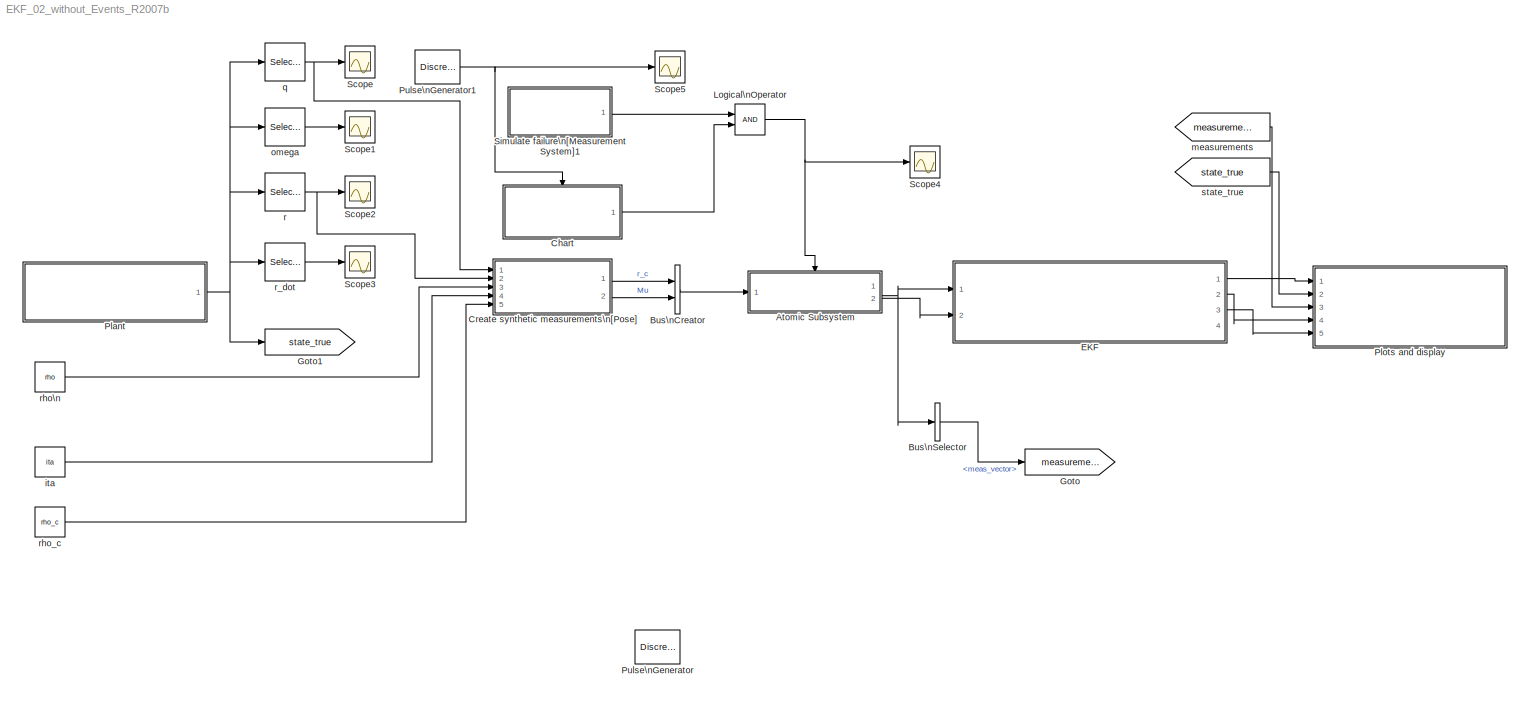
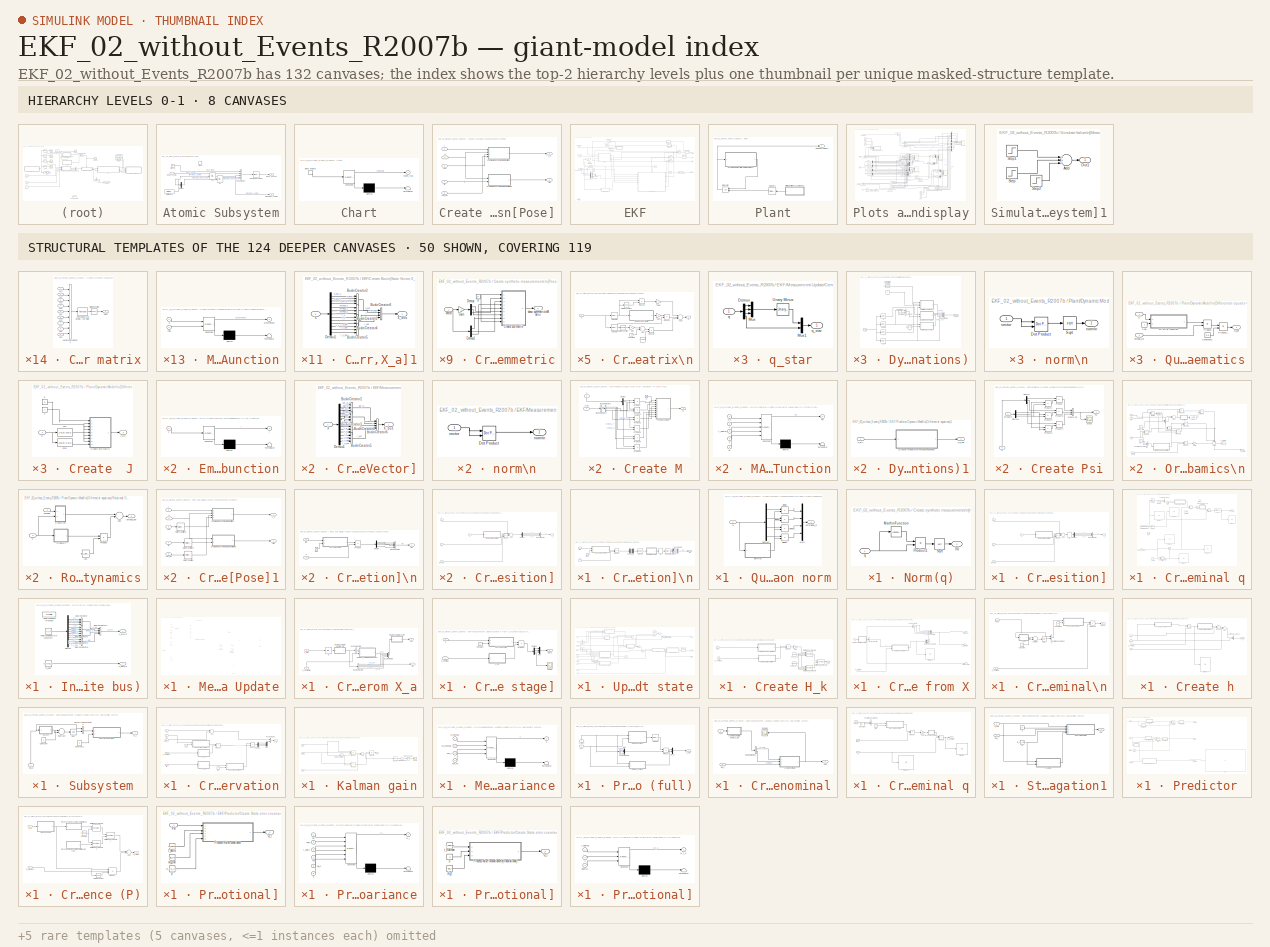
[diagram: thumbnail index - top-2 hierarchy levels (8 canvases) + 50 structural-template representatives of the remaining 124 canvases]
MODEL EKF_02_without_Events_R2007b
KIND model
WORKSPACE source: external: M-Code  (data not in archive)
BLOCK [SubSystem] Atomic Subsystem
  FunctionWithSeparateData = off
  MinAlgLoopOccurrences = off
  Ports = [1, 2, 0, 1]
  RTWSystemCode = Auto
  SystemSampleTime = t_delta
  TreatAsAtomicUnit = on
BLOCK [BusCreator] Atomic Subsystem/Bus\nCreator
  BusObject = meas_packet
  DisplayOption = bar
  Ports = [4, 1]
BLOCK [Demux] Atomic Subsystem/Demux
  DisplayOption = bar
  Outputs = 1
  Ports = [1, 1]
BLOCK [DigitalClock] Atomic Subsystem/Digital Clock
  SampleTime = -1
BLOCK [Ground] Atomic Subsystem/Ground
BLOCK [InitialCondition] Atomic Subsystem/IC1
  Value = -1
BLOCK [InitialCondition] Atomic Subsystem/IC2
  Value = -1
BLOCK [SignalConversion] Atomic Subsystem/Signal\nConversion
  ConversionOutput = Bus copy
BLOCK [TriggerPort] Atomic Subsystem/Trigger
  Ports = []
  StatesWhenEnabling = held
  TriggerType = either
BLOCK [Outport] Atomic Subsystem/meas_packet
  BusObject = meas_packet
  IconDisplay = Port number
  InitialOutput = -1
BLOCK [Inport] Atomic Subsystem/meas_vector
  IconDisplay = Port number
BLOCK [Outport] Atomic Subsystem/timestamp_capture
  IconDisplay = Port number
  InitialOutput = -1
  Port = 2
BLOCK [BusCreator] Bus\nCreator
  DisplayOption = bar
  Inputs = 2
  Ports = [2, 1]
BLOCK [BusSelector] Bus\nSelector
  OutputSignals = meas_vector
  Ports = [1, 1]
BLOCK [SubSystem] Chart
  FunctionWithSeparateData = off
  MaskDescription = Stateflow diagram
  MaskDisplay = plot(sf('Private','sfblk','xIcon'),sf('Private','sfblk','yIcon'));text(0.5,0,sf('Private', 'sfblk', 'tIcon'),'HorizontalAl','Center','VerticalAl','Bottom');
  MaskIconFrame = off
  MaskIconOpaque = off
  MaskIconRotate = none
  MaskIconUnits = autoscale
  MaskSelfModifiable = on
  MaskType = Stateflow
  MinAlgLoopOccurrences = off
  PermitHierarchicalResolution = ExplicitOnly
  Ports = [0, 1, 0, 1]
  RTWSystemCode = Auto
  TreatAsAtomicUnit = on
BLOCK [Demux] Chart/ Demux 
  Outputs = 1
  Ports = [1, 1]
BLOCK [S-Function] Chart/ SFunction 
  EnableBusSupport = on
  FunctionName = sf_sfun
  PortCounts = [1 2]
  Ports = [1, 2]
  Tag = Stateflow S-Function EKF_02_without_Events_R2007b 20
BLOCK [Terminator] Chart/ Terminator 
BLOCK [TriggerPort] Chart/ input events 
  Ports = [0, 1]
  ShowOutputPort = on
BLOCK [Outport] Chart/event_trig
  IconDisplay = Port number
BLOCK [SubSystem] Create synthetic measurements\n[Pose]
  FunctionWithSeparateData = off
  MinAlgLoopOccurrences = off
  Ports = [5, 2]
  RTWSystemCode = Auto
  TreatAsAtomicUnit = on
BLOCK [SubSystem] Create synthetic measurements\n[Pose]/Create Measurements\n[Orientation]\n
  FunctionWithSeparateData = off
  MinAlgLoopOccurrences = off
  Ports = [2, 1]
  RTWSystemCode = Auto
BLOCK [BusCreator] Create synthetic measurements\n[Pose]/Create Measurements\n[Orientation]\n/Bus\nCreator
  DisplayOption = bar
  Ports = [4, 1]
BLOCK [Demux] Create synthetic measurements\n[Pose]/Create Measurements\n[Orientation]\n/Demux
  DisplayOption = bar
  Ports = [1, 4]
BLOCK [Demux] Create synthetic measurements\n[Pose]/Create Measurements\n[Orientation]\n/Demux1
  DisplayOption = bar
  Ports = [1, 4]
BLOCK [InitialCondition] Create synthetic measurements\n[Pose]/Create Measurements\n[Orientation]\n/IC
  Value = zeros(4,1)
BLOCK [SubSystem] Create synthetic measurements\n[Pose]/Create Measurements\n[Orientation]\n/MATLAB Function
  FunctionWithSeparateData = off
  MaskDescription = Embedded MATLAB block
  MaskDisplay = disp('fn_CrossTensor');
  MaskIconFrame = on
  MaskIconOpaque = off
  MaskIconRotate = none
  MaskIconUnits = normalized
  MaskSelfModifiable = on
  MaskType = Stateflow
  MinAlgLoopOccurrences = off
  PermitHierarchicalResolution = ExplicitOnly
  Ports = [2, 1]
  RTWSystemCode = Auto
  TreatAsAtomicUnit = on
BLOCK [Demux] Create synthetic measurements\n[Pose]/Create Measurements\n[Orientation]\n/MATLAB Function/ Demux 
  Outputs = 1
  Ports = [1, 1]
BLOCK [S-Function] Create synthetic measurements\n[Pose]/Create Measurements\n[Orientation]\n/MATLAB Function/ SFunction 
  EnableBusSupport = on
  FunctionName = sf_sfun
  PortCounts = [2 2]
  Ports = [2, 2]
  Tag = Stateflow S-Function EKF_02_without_Events_R2007b 3
BLOCK [Terminator] Create synthetic measurements\n[Pose]/Create Measurements\n[Orientation]\n/MATLAB Function/ Terminator 
BLOCK [Outport] Create synthetic measurements\n[Pose]/Create Measurements\n[Orientation]\n/MATLAB Function/CrossTensor
  IconDisplay = Port number
BLOCK [Inport] Create synthetic measurements\n[Pose]/Create Measurements\n[Orientation]\n/MATLAB Function/flag
  IconDisplay = Port number
  Port = 2
BLOCK [Inport] Create synthetic measurements\n[Pose]/Create Measurements\n[Orientation]\n/MATLAB Function/q
  IconDisplay = Port number
BLOCK [Outport] Create synthetic measurements\n[Pose]/Create Measurements\n[Orientation]\n/Mu
  IconDisplay = Port number
BLOCK [Mux] Create synthetic measurements\n[Pose]/Create Measurements\n[Orientation]\n/Mux
  DisplayOption = bar
  Ports = [4, 1]
BLOCK [Product] Create synthetic measurements\n[Pose]/Create Measurements\n[Orientation]\n/Product
  CollapseMode = All dimensions
  InputSameDT = off
  Multiplication = Matrix(*)
  OutDataTypeMode = Inherit via internal rule
  Ports = [2, 1]
  RndMeth = Floor
  SaturateOnIntegerOverflow = off
BLOCK [SubSystem] Create synthetic measurements\n[Pose]/Create Measurements\n[Orientation]\n/Quaternion norm
  FunctionWithSeparateData = off
  MinAlgLoopOccurrences = off
  Ports = [1, 1]
  RTWSystemCode = Auto
BLOCK [Demux] Create synthetic measurements\n[Pose]/Create Measurements\n[Orientation]\n/Quaternion norm/Demux3
  DisplayOption = bar
  Ports = [1, 4]
BLOCK [Product] Create synthetic measurements\n[Pose]/Create Measurements\n[Orientation]\n/Quaternion norm/Divide
  CollapseMode = All dimensions
  InputSameDT = off
  Inputs = */
  OutDataTypeMode = Inherit via internal rule
  Ports = [2, 1]
  RndMeth = Floor
  SaturateOnIntegerOverflow = off
BLOCK [Product] Create synthetic measurements\n[Pose]/Create Measurements\n[Orientation]\n/Quaternion norm/Divide1
  CollapseMode = All dimensions
  InputSameDT = off
  Inputs = */
  OutDataTypeMode = Inherit via internal rule
  Ports = [2, 1]
  RndMeth = Floor
  SaturateOnIntegerOverflow = off
BLOCK [Product] Create synthetic measurements\n[Pose]/Create Measurements\n[Orientation]\n/Quaternion norm/Divide2
  CollapseMode = All dimensions
  InputSameDT = off
  Inputs = */
  OutDataTypeMode = Inherit via internal rule
  Ports = [2, 1]
  RndMeth = Floor
  SaturateOnIntegerOverflow = off
BLOCK [Product] Create synthetic measurements\n[Pose]/Create Measurements\n[Orientation]\n/Quaternion norm/Divide3
  CollapseMode = All dimensions
  InputSameDT = off
  Inputs = */
  OutDataTypeMode = Inherit via internal rule
  Ports = [2, 1]
  RndMeth = Floor
  SaturateOnIntegerOverflow = off
BLOCK [Mux] Create synthetic measurements\n[Pose]/Create Measurements\n[Orientation]\n/Quaternion norm/Mux1
  DisplayOption = bar
  Ports = [4, 1]
BLOCK [SubSystem] Create synthetic measurements\n[Pose]/Create Measurements\n[Orientation]\n/Quaternion norm/Norm(q)
  FunctionWithSeparateData = off
  MinAlgLoopOccurrences = off
  Ports = [1, 1]
  RTWSystemCode = Auto
BLOCK [Math] Create synthetic measurements\n[Pose]/Create Measurements\n[Orientation]\n/Quaternion norm/Norm(q)/Math\nFunction
  Operator = transpose
  Ports = [1, 1]
BLOCK [Product] Create synthetic measurements\n[Pose]/Create Measurements\n[Orientation]\n/Quaternion norm/Norm(q)/Product1
  CollapseMode = All dimensions
  InputSameDT = off
  Multiplication = Matrix(*)
  OutDataTypeMode = Inherit via internal rule
  Ports = [2, 1]
  RndMeth = Floor
  SaturateOnIntegerOverflow = off
BLOCK [Math] Create synthetic measurements\n[Pose]/Create Measurements\n[Orientation]\n/Quaternion norm/Norm(q)/Sqrt
  Operator = sqrt
  Ports = [1, 1]
BLOCK [Inport] Create synthetic measurements\n[Pose]/Create Measurements\n[Orientation]\n/Quaternion norm/Norm(q)/q
  IconDisplay = Port number
BLOCK [Outport] Create synthetic measurements\n[Pose]/Create Measurements\n[Orientation]\n/Quaternion norm/Norm(q)/|q|
  IconDisplay = Port number
BLOCK [Outport] Create synthetic measurements\n[Pose]/Create Measurements\n[Orientation]\n/Quaternion norm/normalized_q
  IconDisplay = Port number
BLOCK [Inport] Create synthetic measurements\n[Pose]/Create Measurements\n[Orientation]\n/Quaternion norm/q
  IconDisplay = Port number
BLOCK [Selector] Create synthetic measurements\n[Pose]/Create Measurements\n[Orientation]\n/Selector
  IndexOptions = Index vector (dialog)
  Indices = [4 1 2 3]
  InputPortWidth = 4
  OutputSizes = 1
  Ports = [1, 1]
BLOCK [Selector] Create synthetic measurements\n[Pose]/Create Measurements\n[Orientation]\n/Selector1
  IndexOptions = Index vector (dialog)
  Indices = [2 3 4 1]
  InputPortWidth = 4
  OutputSizes = 1
  Ports = [1, 1]
BLOCK [Constant] Create synthetic measurements\n[Pose]/Create Measurements\n[Orientation]\n/flag\n
  Value = 0
BLOCK [Inport] Create synthetic measurements\n[Pose]/Create Measurements\n[Orientation]\n/ita\n
  IconDisplay = Port number
  Port = 2
BLOCK [Inport] Create synthetic measurements\n[Pose]/Create Measurements\n[Orientation]\n/q
  IconDisplay = Port number
BLOCK [SubSystem] Create synthetic measurements\n[Pose]/Create Measurements\n[Position]
  FunctionWithSeparateData = off
  MinAlgLoopOccurrences = off
  Ports = [4, 1]
  RTWSystemCode = Auto
BLOCK [Sum] Create synthetic measurements\n[Pose]/Create Measurements\n[Position]/Add
  CollapseMode = All dimensions
  InputSameDT = off
  Inputs = +++
  OutDataTypeMode = Inherit via internal rule
  Ports = [3, 1]
  SaturateOnIntegerOverflow = off
BLOCK [BusCreator] Create synthetic measurements\n[Pose]/Create Measurements\n[Position]/Bus\nCreator
  DisplayOption = bar
  Inputs = 3
  Ports = [3, 1]
BLOCK [SubSystem] Create synthetic measurements\n[Pose]/Create Measurements\n[Position]/Create Rotation Matrix\n
  FunctionWithSeparateData = off
  MinAlgLoopOccurrences = off
  Ports = [1, 1]
  RTWSystemCode = Auto
BLOCK [Sum] Create synthetic measurements\n[Pose]/Create Measurements\n[Position]/Create Rotation Matrix\n/Add
  CollapseMode = All dimensions
  InputSameDT = off
  OutDataTypeMode = Inherit via internal rule
  Ports = [2, 1]
  SaturateOnIntegerOverflow = off
BLOCK [Sum] Create synthetic measurements\n[Pose]/Create Measurements\n[Position]/Create Rotation Matrix\n/Add5
  CollapseMode = All dimensions
  InputSameDT = off
  Inputs = +++
  OutDataTypeMode = Inherit via internal rule
  Ports = [3, 1]
  SaturateOnIntegerOverflow = off
BLOCK [Constant] Create synthetic measurements\n[Pose]/Create Measurements\n[Position]/Create Rotation Matrix\n/Constant1
  Value = -1
BLOCK [SubSystem] Create synthetic measurements\n[Pose]/Create Measurements\n[Position]/Create Rotation Matrix\n/Create Skew Symmetric
  FunctionWithSeparateData = off
  MinAlgLoopOccurrences = off
  Ports = [1, 1]
  RTWSystemCode = Auto
BLOCK [Constant] Create synthetic measurements\n[Pose]/Create Measurements\n[Position]/Create Rotation Matrix\n/Create Skew Symmetric/0
  Value = 0
BLOCK [SubSystem] Create synthetic measurements\n[Pose]/Create Measurements\n[Position]/Create Rotation Matrix\n/Create Skew Symmetric/Create 3x3 matrix
  FunctionWithSeparateData = off
  MinAlgLoopOccurrences = off
  Ports = [9, 1]
  RTWSystemCode = Auto
BLOCK [Math] Create synthetic measurements\n[Pose]/Create Measurements\n[Position]/Create Rotation Matrix\n/Create Skew Symmetric/Create 3x3 matrix/Math\nFunction
  Operator = transpose
  Ports = [1, 1]
BLOCK [Outport] Create synthetic measurements\n[Pose]/Create Measurements\n[Position]/Create Rotation Matrix\n/Create Skew Symmetric/Create 3x3 matrix/Matrix
  IconDisplay = Port number
BLOCK [Reshape] Create synthetic measurements\n[Pose]/Create Measurements\n[Position]/Create Rotation Matrix\n/Create Skew Symmetric/Create 3x3 matrix/Reshape\n(9) to [3x3]\ncolumn-major
  OutputDimensionality = Customize
  OutputDimensions = [3,3]
BLOCK [Concatenate] Create synthetic measurements\n[Pose]/Create Measurements\n[Position]/Create Rotation Matrix\n/Create Skew Symmetric/Create 3x3 matrix/Vector\nConcatenate
  Mode = Vector
  NumInputs = 9
  Ports = [9, 1]
BLOCK [Inport] Create synthetic measurements\n[Pose]/Create Measurements\n[Position]/Create Rotation Matrix\n/Create Skew Symmetric/Create 3x3 matrix/a11
  IconDisplay = Port number
BLOCK [Inport] Create synthetic measurements\n[Pose]/Create Measurements\n[Position]/Create Rotation Matrix\n/Create Skew Symmetric/Create 3x3 matrix/a12
  IconDisplay = Port number
  Port = 2
BLOCK [Inport] Create synthetic measurements\n[Pose]/Create Measurements\n[Position]/Create Rotation Matrix\n/Create Skew Symmetric/Create 3x3 matrix/a13
  IconDisplay = Port number
  Port = 3
BLOCK [Inport] Create synthetic measurements\n[Pose]/Create Measurements\n[Position]/Create Rotation Matrix\n/Create Skew Symmetric/Create 3x3 matrix/a21
  IconDisplay = Port number
  Port = 4
BLOCK [Inport] Create synthetic measurements\n[Pose]/Create Measurements\n[Position]/Create Rotation Matrix\n/Create Skew Symmetric/Create 3x3 matrix/a22
  IconDisplay = Port number
  Port = 5
BLOCK [Inport] Create synthetic measurements\n[Pose]/Create Measurements\n[Position]/Create Rotation Matrix\n/Create Skew Symmetric/Create 3x3 matrix/a23
  IconDisplay = Port number
  Port = 6
BLOCK [Inport] Create synthetic measurements\n[Pose]/Create Measurements\n[Position]/Create Rotation Matrix\n/Create Skew Symmetric/Create 3x3 matrix/a31
  IconDisplay = Port number
  Port = 7
BLOCK [Inport] Create synthetic measurements\n[Pose]/Create Measurements\n[Position]/Create Rotation Matrix\n/Create Skew Symmetric/Create 3x3 matrix/a32
  IconDisplay = Port number
  Port = 8
BLOCK [Inport] Create synthetic measurements\n[Pose]/Create Measurements\n[Position]/Create Rotation Matrix\n/Create Skew Symmetric/Create 3x3 matrix/a33
  IconDisplay = Port number
  Port = 9
BLOCK [Demux] Create synthetic measurements\n[Pose]/Create Measurements\n[Position]/Create Rotation Matrix\n/Create Skew Symmetric/Demux
  DisplayOption = bar
  Outputs = 3
  Ports = [1, 3]
BLOCK [Demux] Create synthetic measurements\n[Pose]/Create Measurements\n[Position]/Create Rotation Matrix\n/Create Skew Symmetric/Demux1
  DisplayOption = bar
  Outputs = 3
  Ports = [1, 3]
BLOCK [Gain] Create synthetic measurements\n[Pose]/Create Measurements\n[Position]/Create Rotation Matrix\n/Create Skew Symmetric/Gain
  Gain = -1
  OutDataTypeMode = Inherit via internal rule
  ParameterDataTypeMode = Inherit via internal rule
  SaturateOnIntegerOverflow = off
BLOCK [Outport] Create synthetic measurements\n[Pose]/Create Measurements\n[Position]/Create Rotation Matrix\n/Create Skew Symmetric/skew symmetric\nMatrix
  IconDisplay = Port number
BLOCK [Inport] Create synthetic measurements\n[Pose]/Create Measurements\n[Position]/Create Rotation Matrix\n/Create Skew Symmetric/vector
  IconDisplay = Port number
BLOCK [Gain] Create synthetic measurements\n[Pose]/Create Measurements\n[Position]/Create Rotation Matrix\n/Gain
  Gain = 2
  OutDataTypeMode = Inherit via internal rule
  ParameterDataTypeMode = Inherit via internal rule
  SaturateOnIntegerOverflow = off
BLOCK [Gain] Create synthetic measurements\n[Pose]/Create Measurements\n[Position]/Create Rotation Matrix\n/Gain1
  Gain = 2
  OutDataTypeMode = Inherit via internal rule
  ParameterDataTypeMode = Inherit via internal rule
  SaturateOnIntegerOverflow = off
BLOCK [Gain] Create synthetic measurements\n[Pose]/Create Measurements\n[Position]/Create Rotation Matrix\n/Gain2
  Gain = 2
  OutDataTypeMode = Inherit via internal rule
  ParameterDataTypeMode = Inherit via internal rule
  SaturateOnIntegerOverflow = off
BLOCK [Constant] Create synthetic measurements\n[Pose]/Create Measurements\n[Position]/Create Rotation Matrix\n/I
  Value = eye(3,3)
BLOCK [Math] Create synthetic measurements\n[Pose]/Create Measurements\n[Position]/Create Rotation Matrix\n/Math\nFunction
  Operator = square
  Ports = [1, 1]
BLOCK [Math] Create synthetic measurements\n[Pose]/Create Measurements\n[Position]/Create Rotation Matrix\n/Math\nFunction1
  Operator = transpose
  Ports = [1, 1]
BLOCK [Product] Create synthetic measurements\n[Pose]/Create Measurements\n[Position]/Create Rotation Matrix\n/Product1
  CollapseMode = All dimensions
  InputSameDT = off
  OutDataTypeMode = Inherit via internal rule
  Ports = [2, 1]
  RndMeth = Floor
  SaturateOnIntegerOverflow = off
BLOCK [Product] Create synthetic measurements\n[Pose]/Create Measurements\n[Position]/Create Rotation Matrix\n/Product2
  CollapseMode = All dimensions
  InputSameDT = off
  OutDataTypeMode = Inherit via internal rule
  Ports = [2, 1]
  RndMeth = Floor
  SaturateOnIntegerOverflow = off
BLOCK [Product] Create synthetic measurements\n[Pose]/Create Measurements\n[Position]/Create Rotation Matrix\n/Product3
  CollapseMode = All dimensions
  InputSameDT = off
  Multiplication = Matrix(*)
  OutDataTypeMode = Inherit via internal rule
  Ports = [2, 1]
  RndMeth = Floor
  SaturateOnIntegerOverflow = off
BLOCK [Outport] Create synthetic measurements\n[Pose]/Create Measurements\n[Position]/Create Rotation Matrix\n/R
  IconDisplay = Port number
BLOCK [Selector] Create synthetic measurements\n[Pose]/Create Measurements\n[Position]/Create Rotation Matrix\n/Selector2
  IndexOptions = Index vector (dialog),Index vector (dialog)
  Indices = [1 2 3],1
  InputPortWidth = 3
  NumberOfDimensions = 2
  OutputSizes = 1,1
  Ports = [1, 1]
BLOCK [Selector] Create synthetic measurements\n[Pose]/Create Measurements\n[Position]/Create Rotation Matrix\n/Selector3
  IndexOptions = Index vector (dialog),Index vector (dialog)
  Indices = [4],1
  InputPortWidth = 3
  NumberOfDimensions = 2
  OutputSizes = 1,1
  Ports = [1, 1]
BLOCK [Inport] Create synthetic measurements\n[Pose]/Create Measurements\n[Position]/Create Rotation Matrix\n/q
  IconDisplay = Port number
BLOCK [Demux] Create synthetic measurements\n[Pose]/Create Measurements\n[Position]/Demux
  DisplayOption = bar
  Outputs = 3
  Ports = [1, 3]
BLOCK [InitialCondition] Create synthetic measurements\n[Pose]/Create Measurements\n[Position]/IC
  Value = zeros(3,1)
BLOCK [Product] Create synthetic measurements\n[Pose]/Create Measurements\n[Position]/Product
  CollapseMode = All dimensions
  InputSameDT = off
  Multiplication = Matrix(*)
  OutDataTypeMode = Inherit via internal rule
  Ports = [2, 1]
  RndMeth = Floor
  SaturateOnIntegerOverflow = off
BLOCK [Inport] Create synthetic measurements\n[Pose]/Create Measurements\n[Position]/q
  IconDisplay = Port number
  Port = 2
BLOCK [Inport] Create synthetic measurements\n[Pose]/Create Measurements\n[Position]/r
  IconDisplay = Port number
BLOCK [Outport] Create synthetic measurements\n[Pose]/Create Measurements\n[Position]/r_c
  IconDisplay = Port number
BLOCK [Inport] Create synthetic measurements\n[Pose]/Create Measurements\n[Position]/rho
  IconDisplay = Port number
  Port = 3
BLOCK [Inport] Create synthetic measurements\n[Pose]/Create Measurements\n[Position]/rho_c\n
  IconDisplay = Port number
  Port = 4
BLOCK [Outport] Create synthetic measurements\n[Pose]/Mu
  IconDisplay = Port number
  Port = 2
BLOCK [Inport] Create synthetic measurements\n[Pose]/ita
  IconDisplay = Port number
  Port = 4
BLOCK [Inport] Create synthetic measurements\n[Pose]/q
  IconDisplay = Port number
BLOCK [Inport] Create synthetic measurements\n[Pose]/r
  IconDisplay = Port number
  Port = 2
BLOCK [Outport] Create synthetic measurements\n[Pose]/r_c
  IconDisplay = Port number
BLOCK [Inport] Create synthetic measurements\n[Pose]/rho
  IconDisplay = Port number
  Port = 3
BLOCK [Inport] Create synthetic measurements\n[Pose]/rho_c\n
  IconDisplay = Port number
  Port = 5
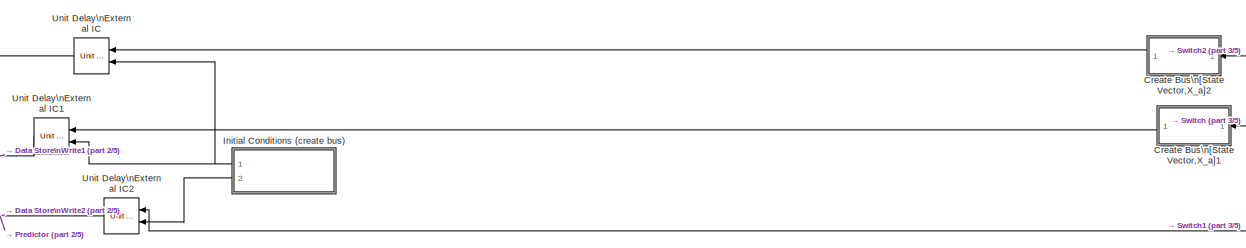
[diagram: EKF - part 1/5, top center region]
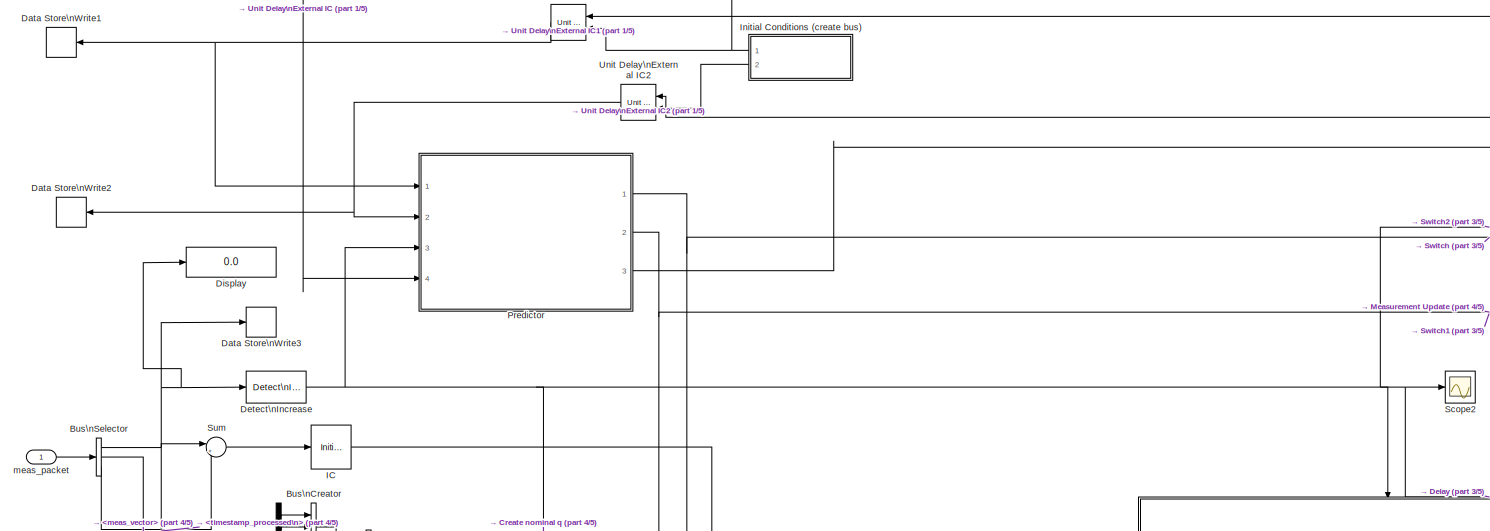
[diagram: EKF - part 2/5, central region]
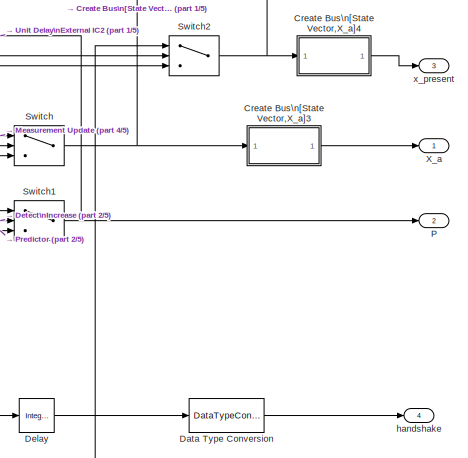
[diagram: EKF - part 3/5, middle right region]
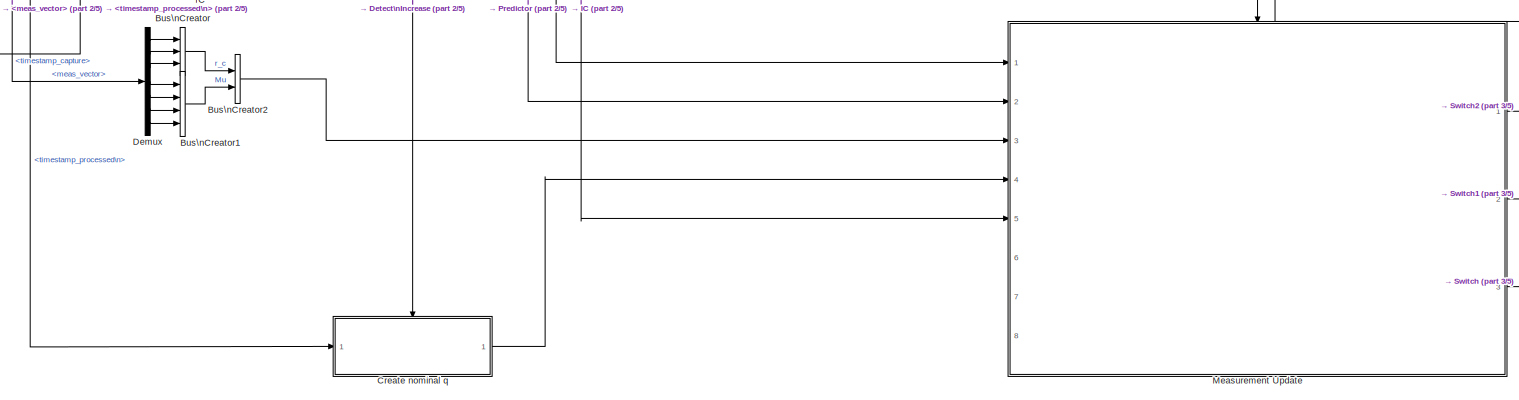
[diagram: EKF - part 4/5, bottom center region]
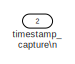
[diagram: EKF - part 5/5, bottom left region]
BLOCK [SubSystem] EKF
  FunctionWithSeparateData = off
  MinAlgLoopOccurrences = off
  Ports = [2, 4]
  RTWSystemCode = Auto
  SystemSampleTime = t_Kalman
  TreatAsAtomicUnit = on
BLOCK [BusCreator] EKF/Bus\nCreator
  DisplayOption = bar
  Inputs = 3
  Ports = [3, 1]
BLOCK [BusCreator] EKF/Bus\nCreator1
  DisplayOption = bar
  Ports = [4, 1]
BLOCK [BusCreator] EKF/Bus\nCreator2
  DisplayOption = bar
  Inputs = 2
  Ports = [2, 1]
BLOCK [BusSelector] EKF/Bus\nSelector
  OutputSignals = timestamp_processed\n,meas_vector,timestamp_capture
  Ports = [1, 3]
BLOCK [SubSystem] EKF/Create Bus\n[State Vector,X_a]1
  FunctionWithSeparateData = off
  MinAlgLoopOccurrences = off
  Ports = [1, 1]
  RTWSystemCode = Auto
BLOCK [BusCreator] EKF/Create Bus\n[State Vector,X_a]1/Bus\nCreator2
  DisplayOption = bar
  Ports = [4, 1]
BLOCK [BusCreator] EKF/Create Bus\n[State Vector,X_a]1/Bus\nCreator3
  DisplayOption = bar
  Inputs = 3
  Ports = [3, 1]
BLOCK [BusCreator] EKF/Create Bus\n[State Vector,X_a]1/Bus\nCreator4
  DisplayOption = bar
  Inputs = 3
  Ports = [3, 1]
BLOCK [BusCreator] EKF/Create Bus\n[State Vector,X_a]1/Bus\nCreator5
  DisplayOption = bar
  Inputs = 3
  Ports = [3, 1]
BLOCK [BusCreator] EKF/Create Bus\n[State Vector,X_a]1/Bus\nCreator6
  DisplayOption = bar
  Ports = [4, 1]
BLOCK [Demux] EKF/Create Bus\n[State Vector,X_a]1/Demux1
  DisplayOption = bar
  Outputs = 13
  Ports = [1, 13]
BLOCK [Inport] EKF/Create Bus\n[State Vector,X_a]1/X
  IconDisplay = Port number
BLOCK [Outport] EKF/Create Bus\n[State Vector,X_a]1/X_bus
  IconDisplay = Port number
BLOCK [SubSystem] EKF/Create Bus\n[State Vector,X_a]2
  FunctionWithSeparateData = off
  MinAlgLoopOccurrences = off
  Ports = [1, 1]
  RTWSystemCode = Auto
BLOCK [BusCreator] EKF/Create Bus\n[State Vector,X_a]2/Bus\nCreator2
  DisplayOption = bar
  Ports = [4, 1]
BLOCK [BusCreator] EKF/Create Bus\n[State Vector,X_a]2/Bus\nCreator3
  DisplayOption = bar
  Inputs = 3
  Ports = [3, 1]
BLOCK [BusCreator] EKF/Create Bus\n[State Vector,X_a]2/Bus\nCreator4
  DisplayOption = bar
  Inputs = 3
  Ports = [3, 1]
BLOCK [BusCreator] EKF/Create Bus\n[State Vector,X_a]2/Bus\nCreator5
  DisplayOption = bar
  Inputs = 3
  Ports = [3, 1]
BLOCK [BusCreator] EKF/Create Bus\n[State Vector,X_a]2/Bus\nCreator6
  DisplayOption = bar
  Ports = [4, 1]
BLOCK [Demux] EKF/Create Bus\n[State Vector,X_a]2/Demux1
  DisplayOption = bar
  Outputs = 13
  Ports = [1, 13]
BLOCK [Inport] EKF/Create Bus\n[State Vector,X_a]2/X
  IconDisplay = Port number
BLOCK [Outport] EKF/Create Bus\n[State Vector,X_a]2/X_bus
  IconDisplay = Port number
BLOCK [SubSystem] EKF/Create Bus\n[State Vector,X_a]3
  FunctionWithSeparateData = off
  MinAlgLoopOccurrences = off
  Ports = [1, 1]
  RTWSystemCode = Auto
BLOCK [BusCreator] EKF/Create Bus\n[State Vector,X_a]3/Bus\nCreator2
  DisplayOption = bar
  Ports = [4, 1]
BLOCK [BusCreator] EKF/Create Bus\n[State Vector,X_a]3/Bus\nCreator3
  DisplayOption = bar
  Inputs = 3
  Ports = [3, 1]
BLOCK [BusCreator] EKF/Create Bus\n[State Vector,X_a]3/Bus\nCreator4
  DisplayOption = bar
  Inputs = 3
  Ports = [3, 1]
BLOCK [BusCreator] EKF/Create Bus\n[State Vector,X_a]3/Bus\nCreator5
  DisplayOption = bar
  Inputs = 3
  Ports = [3, 1]
BLOCK [BusCreator] EKF/Create Bus\n[State Vector,X_a]3/Bus\nCreator6
  DisplayOption = bar
  Ports = [4, 1]
BLOCK [Demux] EKF/Create Bus\n[State Vector,X_a]3/Demux1
  DisplayOption = bar
  Outputs = 13
  Ports = [1, 13]
BLOCK [Inport] EKF/Create Bus\n[State Vector,X_a]3/X
  IconDisplay = Port number
BLOCK [Outport] EKF/Create Bus\n[State Vector,X_a]3/X_bus
  IconDisplay = Port number
BLOCK [SubSystem] EKF/Create Bus\n[State Vector,X_a]4
  FunctionWithSeparateData = off
  MinAlgLoopOccurrences = off
  Ports = [1, 1]
  RTWSystemCode = Auto
BLOCK [BusCreator] EKF/Create Bus\n[State Vector,X_a]4/Bus\nCreator2
  DisplayOption = bar
  Ports = [4, 1]
BLOCK [BusCreator] EKF/Create Bus\n[State Vector,X_a]4/Bus\nCreator3
  DisplayOption = bar
  Inputs = 3
  Ports = [3, 1]
BLOCK [BusCreator] EKF/Create Bus\n[State Vector,X_a]4/Bus\nCreator4
  DisplayOption = bar
  Inputs = 3
  Ports = [3, 1]
BLOCK [BusCreator] EKF/Create Bus\n[State Vector,X_a]4/Bus\nCreator5
  DisplayOption = bar
  Inputs = 3
  Ports = [3, 1]
BLOCK [BusCreator] EKF/Create Bus\n[State Vector,X_a]4/Bus\nCreator6
  DisplayOption = bar
  Ports = [4, 1]
BLOCK [Demux] EKF/Create Bus\n[State Vector,X_a]4/Demux1
  DisplayOption = bar
  Outputs = 13
  Ports = [1, 13]
BLOCK [Inport] EKF/Create Bus\n[State Vector,X_a]4/X
  IconDisplay = Port number
BLOCK [Outport] EKF/Create Bus\n[State Vector,X_a]4/X_bus
  IconDisplay = Port number
BLOCK [SubSystem] EKF/Create nominal q
  FunctionWithSeparateData = off
  MinAlgLoopOccurrences = off
  Ports = [1, 1, 0, 1]
  RTWSystemCode = Auto
  TreatAsAtomicUnit = on
BLOCK [Constant] EKF/Create nominal q/Constant
  Value = [0]
BLOCK [DataStoreRead] EKF/Create nominal q/Data Store\nRead
  DataStoreName = lastUpdate_X_a
  SampleTime = -1
BLOCK [Display] EKF/Create nominal q/Display
  Decimation = 1
  Lockdown = off
  Ports = [1]
BLOCK [Display] EKF/Create nominal q/Display1
  Decimation = 1
  Lockdown = off
  Ports = [1]
BLOCK [Display] EKF/Create nominal q/Display2
  Decimation = 1
  Lockdown = off
  Ports = [1]
BLOCK [Display] EKF/Create nominal q/Display3
  Decimation = 1
  Lockdown = off
  Ports = [1]
BLOCK [Display] EKF/Create nominal q/Display4
  Decimation = 1
  Lockdown = off
  Ports = [1]
BLOCK [Display] EKF/Create nominal q/Display5
  Decimation = 1
  Lockdown = off
  Ports = [1]
BLOCK [SubSystem] EKF/Create nominal q/Embedded\nMATLAB Function
  FunctionWithSeparateData = off
  MaskDescription = Embedded MATLAB block
  MaskDisplay = disp('fcn');
  MaskIconFrame = on
  MaskIconOpaque = off
  MaskIconRotate = none
  MaskIconUnits = autoscale
  MaskSelfModifiable = on
  MaskType = Stateflow
  MinAlgLoopOccurrences = off
  PermitHierarchicalResolution = ExplicitOnly
  Ports = [1, 1]
  RTWSystemCode = Auto
BLOCK [Demux] EKF/Create nominal q/Embedded\nMATLAB Function/ Demux 
  Outputs = 1
  Ports = [1, 1]
BLOCK [S-Function] EKF/Create nominal q/Embedded\nMATLAB Function/ SFunction 
  EnableBusSupport = on
  FunctionName = sf_sfun
  PortCounts = [1 2]
  Ports = [1, 2]
  Tag = Stateflow S-Function EKF_02_without_Events_R2007b 36
BLOCK [Terminator] EKF/Create nominal q/Embedded\nMATLAB Function/ Terminator 
BLOCK [Inport] EKF/Create nominal q/Embedded\nMATLAB Function/u
  IconDisplay = Port number
  OutDataType = sfix(16)
  OutScaling = 2^0
BLOCK [Outport] EKF/Create nominal q/Embedded\nMATLAB Function/y
  IconDisplay = Port number
  OutDataType = sfix(16)
  OutScaling = 2^0
BLOCK [Gain] EKF/Create nominal q/Gain
  Gain = 0.5
  OutDataTypeMode = Inherit via internal rule
  ParameterDataTypeMode = Inherit via internal rule
  SaturateOnIntegerOverflow = off
BLOCK [InitialCondition] EKF/Create nominal q/IC1
  Value = X_a_0(1:4)
BLOCK [SubSystem] EKF/Create nominal q/MATLAB Function
  FunctionWithSeparateData = off
  MaskDescription = Embedded MATLAB block
  MaskDisplay = disp('fn_CrossTensor');
  MaskIconFrame = on
  MaskIconOpaque = off
  MaskIconRotate = none
  MaskIconUnits = normalized
  MaskSelfModifiable = on
  MaskType = Stateflow
  MinAlgLoopOccurrences = off
  PermitHierarchicalResolution = ExplicitOnly
  Ports = [2, 1]
  RTWSystemCode = Auto
  TreatAsAtomicUnit = on
BLOCK [Demux] EKF/Create nominal q/MATLAB Function/ Demux 
  Outputs = 1
  Ports = [1, 1]
BLOCK [S-Function] EKF/Create nominal q/MATLAB Function/ SFunction 
  EnableBusSupport = on
  FunctionName = sf_sfun
  PortCounts = [2 2]
  Ports = [2, 2]
  Tag = Stateflow S-Function EKF_02_without_Events_R2007b 4
BLOCK [Terminator] EKF/Create nominal q/MATLAB Function/ Terminator 
BLOCK [Outport] EKF/Create nominal q/MATLAB Function/CrossTensor
  IconDisplay = Port number
BLOCK [Inport] EKF/Create nominal q/MATLAB Function/flag
  IconDisplay = Port number
  Port = 2
BLOCK [Inport] EKF/Create nominal q/MATLAB Function/q
  IconDisplay = Port number
BLOCK [Product] EKF/Create nominal q/Product
  CollapseMode = All dimensions
  InputSameDT = off
  OutDataTypeMode = Inherit via internal rule
  Ports = [2, 1]
  RndMeth = Floor
  SaturateOnIntegerOverflow = off
BLOCK [Product] EKF/Create nominal q/Product1
  CollapseMode = All dimensions
  InputSameDT = off
  Multiplication = Matrix(*)
  OutDataTypeMode = Inherit via internal rule
  Ports = [2, 1]
  RndMeth = Floor
  SaturateOnIntegerOverflow = off
BLOCK [Selector] EKF/Create nominal q/Selector
  IndexOptions = Index vector (dialog)
  Indices = [1:4]
  InputPortWidth = 13
  OutputSizes = 1
  Ports = [1, 1]
BLOCK [Selector] EKF/Create nominal q/Selector1
  IndexOptions = Index vector (dialog)
  Indices = [5:7]
  InputPortWidth = 13
  OutputSizes = 1
  Ports = [1, 1]
BLOCK [Sum] EKF/Create nominal q/Sum
  CollapseMode = All dimensions
  IconShape = round
  InputSameDT = off
  Inputs = |+-
  OutDataTypeMode = Inherit via internal rule
  Ports = [2, 1]
  SaturateOnIntegerOverflow = off
BLOCK [TriggerPort] EKF/Create nominal q/Trigger
  Ports = []
  StatesWhenEnabling = held
BLOCK [Reference] EKF/Create nominal q/Unit Delay\nExternal IC  REF=simulink/Additional Math\n& Discrete/Additional\nDiscrete/Unit Delay\nExternal IC
  FunctionWithSeparateData = off
  Ports = [2, 1]
  RTWMemSecDataConstants = Inherit from model
  RTWMemSecDataInternal = Inherit from model
  RTWMemSecDataParameters = Inherit from model
  RTWMemSecFuncExecute = Inherit from model
  RTWMemSecFuncInitTerm = Inherit from model
  ShowPortLabels = FromPortIcon
  SourceBlock = simulink/Additional Math\n& Discrete/Additional\nDiscrete/Unit Delay\nExternal IC
  SourceType = Unit Delay External Initial Condition
  SystemSampleTime = -1
  tsamp = -1
BLOCK [Concatenate] EKF/Create nominal q/Vector\nConcatenate
  Mode = Vector
  Ports = [2, 1]
BLOCK [Constant] EKF/Create nominal q/flag
  Value = 0
BLOCK [Constant] EKF/Create nominal q/q(0)
  Value = X_a_0(1:4)
BLOCK [Outport] EKF/Create nominal q/q_nominal
  IconDisplay = Port number
BLOCK [Constant] EKF/Create nominal q/t_begin
  Value = 0
BLOCK [Constant] EKF/Create nominal q/t_delta\n\n
  Value = t_delta
BLOCK [Inport] EKF/Create nominal q/timestamp_meas
  IconDisplay = Port number
BLOCK [DataStoreWrite] EKF/Data Store\nWrite1
  DataStoreName = x_k
  SampleTime = -1
BLOCK [DataStoreWrite] EKF/Data Store\nWrite2
  DataStoreName = P_k
  SampleTime = -1
BLOCK [DataStoreWrite] EKF/Data Store\nWrite3
  DataStoreName = last_update_timestamp
  SampleTime = -1
BLOCK [DataTypeConversion] EKF/Data Type Conversion
  LockScale = on
  OutDataTypeMode = double
  RndMeth = Floor
  SaturateOnIntegerOverflow = off
BLOCK [Reference] EKF/Delay  REF=simulink/Discrete/Integer Delay
  NumDelays = 1
  Ports = [1, 1]
  SourceBlock = simulink/Discrete/Integer Delay
  SourceType = Integer Delay
  samptime = -1
  vinit = 0
BLOCK [Demux] EKF/Demux
  DisplayOption = bar
  Outputs = 7
  Ports = [1, 7]
BLOCK [Reference] EKF/Detect\nIncrease  REF=simulink/Logic and Bit\nOperations/Detect\nIncrease
  FunctionWithSeparateData = off
  Ports = [1, 1]
  RTWMemSecDataConstants = Inherit from model
  RTWMemSecDataInternal = Inherit from model
  RTWMemSecDataParameters = Inherit from model
  RTWMemSecFuncExecute = Inherit from model
  RTWMemSecFuncInitTerm = Inherit from model
  ShowPortLabels = FromPortIcon
  SourceBlock = simulink/Logic and Bit\nOperations/Detect\nIncrease
  SourceType = Detect Increase
  SystemSampleTime = -1
  vinit = -1
BLOCK [Display] EKF/Display
  Decimation = 1
  Lockdown = off
  Ports = [1]
BLOCK [InitialCondition] EKF/IC
  Value = 0
BLOCK [SubSystem] EKF/Initial Conditions (create bus)
  FunctionWithSeparateData = off
  MinAlgLoopOccurrences = off
  Ports = [0, 2]
  RTWSystemCode = Auto
BLOCK [BusCreator] EKF/Initial Conditions (create bus)/Bus\nCreator
  DisplayOption = bar
  Ports = [4, 1]
BLOCK [BusCreator] EKF/Initial Conditions (create bus)/Bus\nCreator1
  DisplayOption = bar
  Inputs = 3
  Ports = [3, 1]
BLOCK [BusCreator] EKF/Initial Conditions (create bus)/Bus\nCreator2
  DisplayOption = bar
  Inputs = 3
  Ports = [3, 1]
BLOCK [BusCreator] EKF/Initial Conditions (create bus)/Bus\nCreator3
  DisplayOption = bar
  Inputs = 3
  Ports = [3, 1]
BLOCK [BusCreator] EKF/Initial Conditions (create bus)/Bus\nCreator4
  DisplayOption = bar
  NonVirtualBus = on
  Ports = [4, 1]
BLOCK [Demux] EKF/Initial Conditions (create bus)/Demux
  DisplayOption = bar
  Outputs = 13
  Ports = [1, 13]
BLOCK [FromFile] EKF/Initial Conditions (create bus)/Initial conditions \n(known)
  FileName = X_a_0_Model_02.mat
BLOCK [Constant] EKF/Initial Conditions (create bus)/Initial conditions\n(null vector)
  Value = [X_a_0]
BLOCK [Constant] EKF/Initial Conditions (create bus)/P_post
  Value = 0.1*eye(12,12)
  VectorParams1D = off
BLOCK [Outport] EKF/Initial Conditions (create bus)/P_post\n
  IconDisplay = Port number
  Port = 2
BLOCK [Outport] EKF/Initial Conditions (create bus)/X_a(0)\n
  IconDisplay = Port number
BLOCK [SubSystem] EKF/Measurement Update
  FunctionWithSeparateData = off
  MinAlgLoopOccurrences = off
  Ports = [8, 3, 1]
  RTWSystemCode = Auto
  TreatAsAtomicUnit = on
BLOCK [SubSystem] EKF/Measurement Update/Create X from X_a
  FunctionWithSeparateData = off
  MinAlgLoopOccurrences = off
  Ports = [2, 2]
  RTWSystemCode = Auto
BLOCK [BusCreator] EKF/Measurement Update/Create X from X_a/Bus\nCreator1
  DisplayOption = bar
  Ports = [4, 1]
BLOCK [BusSelector] EKF/Measurement Update/Create X from X_a/Bus\nSelector3
  OutputSignals = q_est,omega,r,r_dot
  Ports = [1, 4]
BLOCK [BusSelector] EKF/Measurement Update/Create X from X_a/Bus\nSelector5
  OutputSignals = q_est
  Ports = [1, 1]
BLOCK [SubSystem] EKF/Measurement Update/Create X from X_a/Create Bus\n[State Vector,X_a]1
  FunctionWithSeparateData = off
  MinAlgLoopOccurrences = off
  Ports = [1, 1]
  RTWSystemCode = Auto
BLOCK [BusCreator] EKF/Measurement Update/Create X from X_a/Create Bus\n[State Vector,X_a]1/Bus\nCreator2
  DisplayOption = bar
  Ports = [4, 1]
BLOCK [BusCreator] EKF/Measurement Update/Create X from X_a/Create Bus\n[State Vector,X_a]1/Bus\nCreator3
  DisplayOption = bar
  Inputs = 3
  Ports = [3, 1]
BLOCK [BusCreator] EKF/Measurement Update/Create X from X_a/Create Bus\n[State Vector,X_a]1/Bus\nCreator4
  DisplayOption = bar
  Inputs = 3
  Ports = [3, 1]
BLOCK [BusCreator] EKF/Measurement Update/Create X from X_a/Create Bus\n[State Vector,X_a]1/Bus\nCreator5
  DisplayOption = bar
  Inputs = 3
  Ports = [3, 1]
BLOCK [BusCreator] EKF/Measurement Update/Create X from X_a/Create Bus\n[State Vector,X_a]1/Bus\nCreator6
  DisplayOption = bar
  Ports = [4, 1]
BLOCK [Demux] EKF/Measurement Update/Create X from X_a/Create Bus\n[State Vector,X_a]1/Demux1
  DisplayOption = bar
  Outputs = 13
  Ports = [1, 13]
BLOCK [Inport] EKF/Measurement Update/Create X from X_a/Create Bus\n[State Vector,X_a]1/X
  IconDisplay = Port number
BLOCK [Outport] EKF/Measurement Update/Create X from X_a/Create Bus\n[State Vector,X_a]1/X_bus
  IconDisplay = Port number
BLOCK [SubSystem] EKF/Measurement Update/Create X from X_a/Create Bus\n[State Vector]
  FunctionWithSeparateData = off
  MinAlgLoopOccurrences = off
  Ports = [1, 1]
  RTWSystemCode = Auto
BLOCK [BusCreator] EKF/Measurement Update/Create X from X_a/Create Bus\n[State Vector]/Bus\nCreator2
  DisplayOption = bar
  Inputs = 3
  Ports = [3, 1]
BLOCK [BusCreator] EKF/Measurement Update/Create X from X_a/Create Bus\n[State Vector]/Bus\nCreator3
  DisplayOption = bar
  Inputs = 3
  Ports = [3, 1]
BLOCK [BusCreator] EKF/Measurement Update/Create X from X_a/Create Bus\n[State Vector]/Bus\nCreator4
  DisplayOption = bar
  Inputs = 3
  Ports = [3, 1]
BLOCK [BusCreator] EKF/Measurement Update/Create X from X_a/Create Bus\n[State Vector]/Bus\nCreator5
  DisplayOption = bar
  Inputs = 3
  Ports = [3, 1]
BLOCK [BusCreator] EKF/Measurement Update/Create X from X_a/Create Bus\n[State Vector]/Bus\nCreator6
  DisplayOption = bar
  Ports = [4, 1]
BLOCK [Demux] EKF/Measurement Update/Create X from X_a/Create Bus\n[State Vector]/Demux1
  DisplayOption = bar
  Outputs = 12
  Ports = [1, 12]
BLOCK [Inport] EKF/Measurement Update/Create X from X_a/Create Bus\n[State Vector]/X
  IconDisplay = Port number
BLOCK [Outport] EKF/Measurement Update/Create X from X_a/Create Bus\n[State Vector]/X_bus
  IconDisplay = Port number
BLOCK [SubSystem] EKF/Measurement Update/Create X from X_a/Create del_q\n[Intermediate stage]
  FunctionWithSeparateData = off
  MinAlgLoopOccurrences = off
  Ports = [2, 1]
  RTWSystemCode = Auto
BLOCK [Constant] EKF/Measurement Update/Create X from X_a/Create del_q\n[Intermediate stage]/Constant
  Value = 0
BLOCK [Demux] EKF/Measurement Update/Create X from X_a/Create del_q\n[Intermediate stage]/Demux
  DisplayOption = bar
  Ports = [1, 4]
BLOCK [SubSystem] EKF/Measurement Update/Create X from X_a/Create del_q\n[Intermediate stage]/MATLAB Function
  FunctionWithSeparateData = off
  MaskDescription = Embedded MATLAB block
  MaskDisplay = disp('fn_CrossTensor');
  MaskIconFrame = on
  MaskIconOpaque = off
  MaskIconRotate = none
  MaskIconUnits = normalized
  MaskSelfModifiable = on
  MaskType = Stateflow
  MinAlgLoopOccurrences = off
  PermitHierarchicalResolution = ExplicitOnly
  Ports = [2, 1]
  RTWSystemCode = Auto
  TreatAsAtomicUnit = on
BLOCK [Demux] EKF/Measurement Update/Create X from X_a/Create del_q\n[Intermediate stage]/MATLAB Function/ Demux 
  Outputs = 1
  Ports = [1, 1]
BLOCK [S-Function] EKF/Measurement Update/Create X from X_a/Create del_q\n[Intermediate stage]/MATLAB Function/ SFunction 
  EnableBusSupport = on
  FunctionName = sf_sfun
  PortCounts = [2 2]
  Ports = [2, 2]
  Tag = Stateflow S-Function EKF_02_without_Events_R2007b 5
BLOCK [Terminator] EKF/Measurement Update/Create X from X_a/Create del_q\n[Intermediate stage]/MATLAB Function/ Terminator 
BLOCK [Outport] EKF/Measurement Update/Create X from X_a/Create del_q\n[Intermediate stage]/MATLAB Function/CrossTensor
  IconDisplay = Port number
BLOCK [Inport] EKF/Measurement Update/Create X from X_a/Create del_q\n[Intermediate stage]/MATLAB Function/flag
  IconDisplay = Port number
  Port = 2
BLOCK [Inport] EKF/Measurement Update/Create X from X_a/Create del_q\n[Intermediate stage]/MATLAB Function/q
  IconDisplay = Port number
BLOCK [Mux] EKF/Measurement Update/Create X from X_a/Create del_q\n[Intermediate stage]/Mux
  DisplayOption = bar
  Inputs = 3
  Ports = [3, 1]
BLOCK [Product] EKF/Measurement Update/Create X from X_a/Create del_q\n[Intermediate stage]/Product
  CollapseMode = All dimensions
  InputSameDT = off
  Multiplication = Matrix(*)
  OutDataTypeMode = Inherit via internal rule
  Ports = [2, 1]
  RndMeth = Floor
  SaturateOnIntegerOverflow = off
BLOCK [Scope] EKF/Measurement Update/Create X from X_a/Create del_q\n[Intermediate stage]/Scope
  DataFormat = StructureWithTime
  Floating = off
  NumInputPorts = 1
  Ports = [1]
  SaveName = ScopeData6
  YMax = 10
  YMin = -10
BLOCK [Outport] EKF/Measurement Update/Create X from X_a/Create del_q\n[Intermediate stage]/del_q
  IconDisplay = Port number
BLOCK [Inport] EKF/Measurement Update/Create X from X_a/Create del_q\n[Intermediate stage]/q
  IconDisplay = Port number
BLOCK [Inport] EKF/Measurement Update/Create X from X_a/Create del_q\n[Intermediate stage]/q_nominal
  IconDisplay = Port number
  Port = 2
BLOCK [SubSystem] EKF/Measurement Update/Create X from X_a/Create del_q\n[Intermediate stage]/q_star
  FunctionWithSeparateData = off
  MinAlgLoopOccurrences = off
  Ports = [1, 1]
  RTWSystemCode = Auto
BLOCK [Demux] EKF/Measurement Update/Create X from X_a/Create del_q\n[Intermediate stage]/q_star/Demux
  DisplayOption = bar
  Ports = [1, 4]
BLOCK [Mux] EKF/Measurement Update/Create X from X_a/Create del_q\n[Intermediate stage]/q_star/Mux
  DisplayOption = bar
  Inputs = 3
  Ports = [3, 1]
BLOCK [Mux] EKF/Measurement Update/Create X from X_a/Create del_q\n[Intermediate stage]/q_star/Mux1
  DisplayOption = bar
  Inputs = 2
  Ports = [2, 1]
BLOCK [Reference] EKF/Measurement Update/Create X from X_a/Create del_q\n[Intermediate stage]/q_star/Unary Minus  REF=simulink/Math\nOperations/Unary Minus
  DoSatur = off
  Ports = [1, 1]
  SourceBlock = simulink/Math\nOperations/Unary Minus
  SourceType = Unary Minus
BLOCK [Inport] EKF/Measurement Update/Create X from X_a/Create del_q\n[Intermediate stage]/q_star/q
  IconDisplay = Port number
BLOCK [Outport] EKF/Measurement Update/Create X from X_a/Create del_q\n[Intermediate stage]/q_star/q_star
  IconDisplay = Port number
BLOCK [InitialCondition] EKF/Measurement Update/Create X from X_a/IC
  Value = [X_a_0]
BLOCK [Outport] EKF/Measurement Update/Create X from X_a/X(k)
  IconDisplay = Port number
BLOCK [Inport] EKF/Measurement Update/Create X from X_a/X_a(k)
  IconDisplay = Port number
BLOCK [Outport] EKF/Measurement Update/Create X from X_a/q(k)
  IconDisplay = Port number
  Port = 2
BLOCK [Inport] EKF/Measurement Update/Create X from X_a/q_nominal(k)
  IconDisplay = Port number
  Port = 2
BLOCK [DataStoreWrite] EKF/Measurement Update/Data Store\nWrite
  DataStoreName = lastUpdate_X_a
  SampleTime = -1
BLOCK [Display] EKF/Measurement Update/Display
  Decimation = 1
  Lockdown = off
  Ports = [1]
BLOCK [Display] EKF/Measurement Update/Display1
  Decimation = 1
  Lockdown = off
  Ports = [1]
BLOCK [EnablePort] EKF/Measurement Update/Enable
  Ports = [0, 1]
  ShowOutputPort = on
BLOCK [Reference] EKF/Measurement Update/Manual Switch  REF=simulink/Signal\nRouting/Manual Switch
  FunctionWithSeparateData = off
  Ports = [2, 1]
  RTWMemSecDataConstants = Inherit from model
  RTWMemSecDataInternal = Inherit from model
  RTWMemSecDataParameters = Inherit from model
  RTWMemSecFuncExecute = Inherit from model
  RTWMemSecFuncInitTerm = Inherit from model
  ShowPortLabels = FromPortIcon
  SourceBlock = simulink/Signal\nRouting/Manual Switch
  SourceType = Manual Switch
  SystemSampleTime = -1
  action = 0
  sw = 1
  varsize = off
BLOCK [Reference] EKF/Measurement Update/Manual Switch1  REF=simulink/Signal\nRouting/Manual Switch
  FunctionWithSeparateData = off
  Ports = [2, 1]
  RTWMemSecDataConstants = Inherit from model
  RTWMemSecDataInternal = Inherit from model
  RTWMemSecDataParameters = Inherit from model
  RTWMemSecFuncExecute = Inherit from model
  RTWMemSecFuncInitTerm = Inherit from model
  ShowPortLabels = FromPortIcon
  SourceBlock = simulink/Signal\nRouting/Manual Switch
  SourceType = Manual Switch
  SystemSampleTime = -1
  action = 0
  sw = 1
  varsize = off
BLOCK [Inport] EKF/Measurement Update/P_d
  IconDisplay = Port number
  Port = 7
BLOCK [Outport] EKF/Measurement Update/P_post
  IconDisplay = Port number
  InitialOutput = eye(12,12)
  Port = 2
BLOCK [Inport] EKF/Measurement Update/P_pre
  IconDisplay = Port number
  Port = 2
BLOCK [Scope] EKF/Measurement Update/Scope4
  DataFormat = Array
  Floating = off
  NumInputPorts = 1
  Ports = [1]
  SaveName = ScopeData27
  YMax = 1
  YMin = 0
BLOCK [Inport] EKF/Measurement Update/Signal
  IconDisplay = Port number
  Port = 3
BLOCK [Inport] EKF/Measurement Update/U_n_d
  IconDisplay = Port number
  Port = 8
BLOCK [SubSystem] EKF/Measurement Update/Update with K(k) and predict current state
  FunctionWithSeparateData = off
  MinAlgLoopOccurrences = off
  Ports = [10, 3]
  RTWSystemCode = Auto
BLOCK [Sum] EKF/Measurement Update/Update with K(k) and predict current state/Add
  CollapseMode = All dimensions
  InputSameDT = off
  Inputs = +-
  OutDataTypeMode = Inherit via internal rule
  Ports = [2, 1]
  SaturateOnIntegerOverflow = off
BLOCK [Sum] EKF/Measurement Update/Update with K(k) and predict current state/Add1
  CollapseMode = All dimensions
  InputSameDT = off
  OutDataTypeMode = Inherit via internal rule
  Ports = [2, 1]
  SaturateOnIntegerOverflow = off
BLOCK [Sum] EKF/Measurement Update/Update with K(k) and predict current state/Add2
  CollapseMode = All dimensions
  InputSameDT = off
  Inputs = +-
  OutDataTypeMode = Inherit via internal rule
  Ports = [2, 1]
  SaturateOnIntegerOverflow = off
BLOCK [BusSelector] EKF/Measurement Update/Update with K(k) and predict current state/Bus\nSelector
  OutputSignals = r_c,Mu
  Ports = [1, 2]
BLOCK [BusSelector] EKF/Measurement Update/Update with K(k) and predict current state/Bus\nSelector1
  OutputSignals = del_q,r
  Ports = [1, 2]
BLOCK [Inport] EKF/Measurement Update/Update with K(k) and predict current state/Cov_nu
  IconDisplay = Port number
  Port = 8
BLOCK [Inport] EKF/Measurement Update/Update with K(k) and predict current state/Cov_r
  IconDisplay = Port number
  Port = 7
BLOCK [SubSystem] EKF/Measurement Update/Update with K(k) and predict current state/Create Bus\n[State Vector,X_a]3
  FunctionWithSeparateData = off
  MinAlgLoopOccurrences = off
  Ports = [1, 1]
  RTWSystemCode = Auto
BLOCK [BusCreator] EKF/Measurement Update/Update with K(k) and predict current state/Create Bus\n[State Vector,X_a]3/Bus\nCreator2
  DisplayOption = bar
  Ports = [4, 1]
BLOCK [BusCreator] EKF/Measurement Update/Update with K(k) and predict current state/Create Bus\n[State Vector,X_a]3/Bus\nCreator3
  DisplayOption = bar
  Inputs = 3
  Ports = [3, 1]
BLOCK [BusCreator] EKF/Measurement Update/Update with K(k) and predict current state/Create Bus\n[State Vector,X_a]3/Bus\nCreator4
  DisplayOption = bar
  Inputs = 3
  Ports = [3, 1]
BLOCK [BusCreator] EKF/Measurement Update/Update with K(k) and predict current state/Create Bus\n[State Vector,X_a]3/Bus\nCreator5
  DisplayOption = bar
  Inputs = 3
  Ports = [3, 1]
BLOCK [BusCreator] EKF/Measurement Update/Update with K(k) and predict current state/Create Bus\n[State Vector,X_a]3/Bus\nCreator6
  DisplayOption = bar
  Ports = [4, 1]
BLOCK [Demux] EKF/Measurement Update/Update with K(k) and predict current state/Create Bus\n[State Vector,X_a]3/Demux1
  DisplayOption = bar
  Outputs = 13
  Ports = [1, 13]
BLOCK [Inport] EKF/Measurement Update/Update with K(k) and predict current state/Create Bus\n[State Vector,X_a]3/X
  IconDisplay = Port number
BLOCK [Outport] EKF/Measurement Update/Update with K(k) and predict current state/Create Bus\n[State Vector,X_a]3/X_bus
  IconDisplay = Port number
BLOCK [SubSystem] EKF/Measurement Update/Update with K(k) and predict current state/Create H_k
  FunctionWithSeparateData = off
  MinAlgLoopOccurrences = off
  Ports = [2, 1]
  RTWSystemCode = Auto
BLOCK [SubSystem] EKF/Measurement Update/Update with K(k) and predict current state/Create H_k/Create Rotation Matrix\n
  FunctionWithSeparateData = off
  MinAlgLoopOccurrences = off
  Ports = [1, 1]
  RTWSystemCode = Auto
BLOCK [Sum] EKF/Measurement Update/Update with K(k) and predict current state/Create H_k/Create Rotation Matrix\n/Add
  CollapseMode = All dimensions
  InputSameDT = off
  OutDataTypeMode = Inherit via internal rule
  Ports = [2, 1]
  SaturateOnIntegerOverflow = off
BLOCK [Sum] EKF/Measurement Update/Update with K(k) and predict current state/Create H_k/Create Rotation Matrix\n/Add5
  CollapseMode = All dimensions
  InputSameDT = off
  Inputs = +++
  OutDataTypeMode = Inherit via internal rule
  Ports = [3, 1]
  SaturateOnIntegerOverflow = off
BLOCK [Constant] EKF/Measurement Update/Update with K(k) and predict current state/Create H_k/Create Rotation Matrix\n/Constant1
  Value = -1
BLOCK [SubSystem] EKF/Measurement Update/Update with K(k) and predict current state/Create H_k/Create Rotation Matrix\n/Create Skew Symmetric
  FunctionWithSeparateData = off
  MinAlgLoopOccurrences = off
  Ports = [1, 1]
  RTWSystemCode = Auto
BLOCK [Constant] EKF/Measurement Update/Update with K(k) and predict current state/Create H_k/Create Rotation Matrix\n/Create Skew Symmetric/0
  Value = 0
BLOCK [SubSystem] EKF/Measurement Update/Update with K(k) and predict current state/Create H_k/Create Rotation Matrix\n/Create Skew Symmetric/Create 3x3 matrix
  FunctionWithSeparateData = off
  MinAlgLoopOccurrences = off
  Ports = [9, 1]
  RTWSystemCode = Auto
BLOCK [Math] EKF/Measurement Update/Update with K(k) and predict current state/Create H_k/Create Rotation Matrix\n/Create Skew Symmetric/Create 3x3 matrix/Math\nFunction
  Operator = transpose
  Ports = [1, 1]
BLOCK [Outport] EKF/Measurement Update/Update with K(k) and predict current state/Create H_k/Create Rotation Matrix\n/Create Skew Symmetric/Create 3x3 matrix/Matrix
  IconDisplay = Port number
BLOCK [Reshape] EKF/Measurement Update/Update with K(k) and predict current state/Create H_k/Create Rotation Matrix\n/Create Skew Symmetric/Create 3x3 matrix/Reshape\n(9) to [3x3]\ncolumn-major
  OutputDimensionality = Customize
  OutputDimensions = [3,3]
BLOCK [Concatenate] EKF/Measurement Update/Update with K(k) and predict current state/Create H_k/Create Rotation Matrix\n/Create Skew Symmetric/Create 3x3 matrix/Vector\nConcatenate
  Mode = Vector
  NumInputs = 9
  Ports = [9, 1]
BLOCK [Inport] EKF/Measurement Update/Update with K(k) and predict current state/Create H_k/Create Rotation Matrix\n/Create Skew Symmetric/Create 3x3 matrix/a11
  IconDisplay = Port number
BLOCK [Inport] EKF/Measurement Update/Update with K(k) and predict current state/Create H_k/Create Rotation Matrix\n/Create Skew Symmetric/Create 3x3 matrix/a12
  IconDisplay = Port number
  Port = 2
BLOCK [Inport] EKF/Measurement Update/Update with K(k) and predict current state/Create H_k/Create Rotation Matrix\n/Create Skew Symmetric/Create 3x3 matrix/a13
  IconDisplay = Port number
  Port = 3
BLOCK [Inport] EKF/Measurement Update/Update with K(k) and predict current state/Create H_k/Create Rotation Matrix\n/Create Skew Symmetric/Create 3x3 matrix/a21
  IconDisplay = Port number
  Port = 4
BLOCK [Inport] EKF/Measurement Update/Update with K(k) and predict current state/Create H_k/Create Rotation Matrix\n/Create Skew Symmetric/Create 3x3 matrix/a22
  IconDisplay = Port number
  Port = 5
BLOCK [Inport] EKF/Measurement Update/Update with K(k) and predict current state/Create H_k/Create Rotation Matrix\n/Create Skew Symmetric/Create 3x3 matrix/a23
  IconDisplay = Port number
  Port = 6
BLOCK [Inport] EKF/Measurement Update/Update with K(k) and predict current state/Create H_k/Create Rotation Matrix\n/Create Skew Symmetric/Create 3x3 matrix/a31
  IconDisplay = Port number
  Port = 7
BLOCK [Inport] EKF/Measurement Update/Update with K(k) and predict current state/Create H_k/Create Rotation Matrix\n/Create Skew Symmetric/Create 3x3 matrix/a32
  IconDisplay = Port number
  Port = 8
BLOCK [Inport] EKF/Measurement Update/Update with K(k) and predict current state/Create H_k/Create Rotation Matrix\n/Create Skew Symmetric/Create 3x3 matrix/a33
  IconDisplay = Port number
  Port = 9
BLOCK [Demux] EKF/Measurement Update/Update with K(k) and predict current state/Create H_k/Create Rotation Matrix\n/Create Skew Symmetric/Demux
  DisplayOption = bar
  Outputs = 3
  Ports = [1, 3]
BLOCK [Demux] EKF/Measurement Update/Update with K(k) and predict current state/Create H_k/Create Rotation Matrix\n/Create Skew Symmetric/Demux1
  DisplayOption = bar
  Outputs = 3
  Ports = [1, 3]
BLOCK [Gain] EKF/Measurement Update/Update with K(k) and predict current state/Create H_k/Create Rotation Matrix\n/Create Skew Symmetric/Gain
  Gain = -1
  OutDataTypeMode = Inherit via internal rule
  ParameterDataTypeMode = Inherit via internal rule
  SaturateOnIntegerOverflow = off
BLOCK [Outport] EKF/Measurement Update/Update with K(k) and predict current state/Create H_k/Create Rotation Matrix\n/Create Skew Symmetric/skew symmetric\nMatrix
  IconDisplay = Port number
BLOCK [Inport] EKF/Measurement Update/Update with K(k) and predict current state/Create H_k/Create Rotation Matrix\n/Create Skew Symmetric/vector
  IconDisplay = Port number
BLOCK [Gain] EKF/Measurement Update/Update with K(k) and predict current state/Create H_k/Create Rotation Matrix\n/Gain
  Gain = 2
  OutDataTypeMode = Inherit via internal rule
  ParameterDataTypeMode = Inherit via internal rule
  SaturateOnIntegerOverflow = off
BLOCK [Gain] EKF/Measurement Update/Update with K(k) and predict current state/Create H_k/Create Rotation Matrix\n/Gain1
  Gain = 2
  OutDataTypeMode = Inherit via internal rule
  ParameterDataTypeMode = Inherit via internal rule
  SaturateOnIntegerOverflow = off
BLOCK [Gain] EKF/Measurement Update/Update with K(k) and predict current state/Create H_k/Create Rotation Matrix\n/Gain2
  Gain = 2
  OutDataTypeMode = Inherit via internal rule
  ParameterDataTypeMode = Inherit via internal rule
  SaturateOnIntegerOverflow = off
BLOCK [Constant] EKF/Measurement Update/Update with K(k) and predict current state/Create H_k/Create Rotation Matrix\n/I
  Value = eye(3,3)
BLOCK [Math] EKF/Measurement Update/Update with K(k) and predict current state/Create H_k/Create Rotation Matrix\n/Math\nFunction
  Operator = square
  Ports = [1, 1]
BLOCK [Math] EKF/Measurement Update/Update with K(k) and predict current state/Create H_k/Create Rotation Matrix\n/Math\nFunction1
  Operator = transpose
  Ports = [1, 1]
BLOCK [Product] EKF/Measurement Update/Update with K(k) and predict current state/Create H_k/Create Rotation Matrix\n/Product1
  CollapseMode = All dimensions
  InputSameDT = off
  OutDataTypeMode = Inherit via internal rule
  Ports = [2, 1]
  RndMeth = Floor
  SaturateOnIntegerOverflow = off
BLOCK [Product] EKF/Measurement Update/Update with K(k) and predict current state/Create H_k/Create Rotation Matrix\n/Product2
  CollapseMode = All dimensions
  InputSameDT = off
  OutDataTypeMode = Inherit via internal rule
  Ports = [2, 1]
  RndMeth = Floor
  SaturateOnIntegerOverflow = off
BLOCK [Product] EKF/Measurement Update/Update with K(k) and predict current state/Create H_k/Create Rotation Matrix\n/Product3
  CollapseMode = All dimensions
  InputSameDT = off
  Multiplication = Matrix(*)
  OutDataTypeMode = Inherit via internal rule
  Ports = [2, 1]
  RndMeth = Floor
  SaturateOnIntegerOverflow = off
BLOCK [Outport] EKF/Measurement Update/Update with K(k) and predict current state/Create H_k/Create Rotation Matrix\n/R
  IconDisplay = Port number
BLOCK [Selector] EKF/Measurement Update/Update with K(k) and predict current state/Create H_k/Create Rotation Matrix\n/Selector2
  IndexOptions = Index vector (dialog),Index vector (dialog)
  Indices = [1 2 3],1
  InputPortWidth = 3
  NumberOfDimensions = 2
  OutputSizes = 1,1
  Ports = [1, 1]
BLOCK [Selector] EKF/Measurement Update/Update with K(k) and predict current state/Create H_k/Create Rotation Matrix\n/Selector3
  IndexOptions = Index vector (dialog),Index vector (dialog)
  Indices = [4],1
  InputPortWidth = 3
  NumberOfDimensions = 2
  OutputSizes = 1,1
  Ports = [1, 1]
BLOCK [Inport] EKF/Measurement Update/Update with K(k) and predict current state/Create H_k/Create Rotation Matrix\n/q
  IconDisplay = Port number
BLOCK [SubSystem] EKF/Measurement Update/Update with K(k) and predict current state/Create H_k/Create Skew Symmetric
  FunctionWithSeparateData = off
  MinAlgLoopOccurrences = off
  Ports = [1, 1]
  RTWSystemCode = Auto
BLOCK [Constant] EKF/Measurement Update/Update with K(k) and predict current state/Create H_k/Create Skew Symmetric/0
  Value = 0
BLOCK [SubSystem] EKF/Measurement Update/Update with K(k) and predict current state/Create H_k/Create Skew Symmetric/Create 3x3 matrix
  FunctionWithSeparateData = off
  MinAlgLoopOccurrences = off
  Ports = [9, 1]
  RTWSystemCode = Auto
BLOCK [Math] EKF/Measurement Update/Update with K(k) and predict current state/Create H_k/Create Skew Symmetric/Create 3x3 matrix/Math\nFunction
  Operator = transpose
  Ports = [1, 1]
BLOCK [Outport] EKF/Measurement Update/Update with K(k) and predict current state/Create H_k/Create Skew Symmetric/Create 3x3 matrix/Matrix
  IconDisplay = Port number
BLOCK [Reshape] EKF/Measurement Update/Update with K(k) and predict current state/Create H_k/Create Skew Symmetric/Create 3x3 matrix/Reshape\n(9) to [3x3]\ncolumn-major
  OutputDimensionality = Customize
  OutputDimensions = [3,3]
BLOCK [Concatenate] EKF/Measurement Update/Update with K(k) and predict current state/Create H_k/Create Skew Symmetric/Create 3x3 matrix/Vector\nConcatenate
  Mode = Vector
  NumInputs = 9
  Ports = [9, 1]
BLOCK [Inport] EKF/Measurement Update/Update with K(k) and predict current state/Create H_k/Create Skew Symmetric/Create 3x3 matrix/a11
  IconDisplay = Port number
BLOCK [Inport] EKF/Measurement Update/Update with K(k) and predict current state/Create H_k/Create Skew Symmetric/Create 3x3 matrix/a12
  IconDisplay = Port number
  Port = 2
BLOCK [Inport] EKF/Measurement Update/Update with K(k) and predict current state/Create H_k/Create Skew Symmetric/Create 3x3 matrix/a13
  IconDisplay = Port number
  Port = 3
BLOCK [Inport] EKF/Measurement Update/Update with K(k) and predict current state/Create H_k/Create Skew Symmetric/Create 3x3 matrix/a21
  IconDisplay = Port number
  Port = 4
BLOCK [Inport] EKF/Measurement Update/Update with K(k) and predict current state/Create H_k/Create Skew Symmetric/Create 3x3 matrix/a22
  IconDisplay = Port number
  Port = 5
BLOCK [Inport] EKF/Measurement Update/Update with K(k) and predict current state/Create H_k/Create Skew Symmetric/Create 3x3 matrix/a23
  IconDisplay = Port number
  Port = 6
BLOCK [Inport] EKF/Measurement Update/Update with K(k) and predict current state/Create H_k/Create Skew Symmetric/Create 3x3 matrix/a31
  IconDisplay = Port number
  Port = 7
BLOCK [Inport] EKF/Measurement Update/Update with K(k) and predict current state/Create H_k/Create Skew Symmetric/Create 3x3 matrix/a32
  IconDisplay = Port number
  Port = 8
BLOCK [Inport] EKF/Measurement Update/Update with K(k) and predict current state/Create H_k/Create Skew Symmetric/Create 3x3 matrix/a33
  IconDisplay = Port number
  Port = 9
BLOCK [Demux] EKF/Measurement Update/Update with K(k) and predict current state/Create H_k/Create Skew Symmetric/Demux
  DisplayOption = bar
  Outputs = 3
  Ports = [1, 3]
BLOCK [Demux] EKF/Measurement Update/Update with K(k) and predict current state/Create H_k/Create Skew Symmetric/Demux1
  DisplayOption = bar
  Outputs = 3
  Ports = [1, 3]
BLOCK [Gain] EKF/Measurement Update/Update with K(k) and predict current state/Create H_k/Create Skew Symmetric/Gain
  Gain = -1
  OutDataTypeMode = Inherit via internal rule
  ParameterDataTypeMode = Inherit via internal rule
  SaturateOnIntegerOverflow = off
BLOCK [Outport] EKF/Measurement Update/Update with K(k) and predict current state/Create H_k/Create Skew Symmetric/skew symmetric\nMatrix
  IconDisplay = Port number
BLOCK [Inport] EKF/Measurement Update/Update with K(k) and predict current state/Create H_k/Create Skew Symmetric/vector
  IconDisplay = Port number
BLOCK [Gain] EKF/Measurement Update/Update with K(k) and predict current state/Create H_k/Gain
  Gain = -2
  OutDataTypeMode = Inherit via internal rule
  ParameterDataTypeMode = Inherit via internal rule
  SaturateOnIntegerOverflow = off
BLOCK [Outport] EKF/Measurement Update/Update with K(k) and predict current state/Create H_k/H_k
  IconDisplay = Port number
BLOCK [Concatenate] EKF/Measurement Update/Update with K(k) and predict current state/Create H_k/Matrix\nConcatenate
  ConcatenateDimension = 2
  Mode = Multidimensional array
  NumInputs = 4
  Ports = [4, 1]
BLOCK [Concatenate] EKF/Measurement Update/Update with K(k) and predict current state/Create H_k/Matrix\nConcatenate1
  ConcatenateDimension = 2
  Mode = Multidimensional array
  NumInputs = 4
  Ports = [4, 1]
BLOCK [Concatenate] EKF/Measurement Update/Update with K(k) and predict current state/Create H_k/Matrix\nConcatenate2
  Mode = Multidimensional array
  Ports = [2, 1]
BLOCK [Product] EKF/Measurement Update/Update with K(k) and predict current state/Create H_k/Product
  CollapseMode = All dimensions
  InputSameDT = off
  Multiplication = Matrix(*)
  OutDataTypeMode = Inherit via internal rule
  Ports = [2, 1]
  RndMeth = Floor
  SaturateOnIntegerOverflow = off
BLOCK [Constant] EKF/Measurement Update/Update with K(k) and predict current state/Create H_k/eye_3_3
  Value = eye(3,3)
BLOCK [Inport] EKF/Measurement Update/Update with K(k) and predict current state/Create H_k/q_nominal
  IconDisplay = Port number
  Port = 2
BLOCK [Inport] EKF/Measurement Update/Update with K(k) and predict current state/Create H_k/rho
  IconDisplay = Port number
BLOCK [Constant] EKF/Measurement Update/Update with K(k) and predict current state/Create H_k/zeros_3_3
  Value = zeros(3,3)
BLOCK [SubSystem] EKF/Measurement Update/Update with K(k) and predict current state/Create X_a from X
  FunctionWithSeparateData = off
  MinAlgLoopOccurrences = off
  Ports = [2, 3]
  RTWSystemCode = Auto
BLOCK [BusCreator] EKF/Measurement Update/Update with K(k) and predict current state/Create X_a from X/Bus\nCreator2
  DisplayOption = bar
  Ports = [4, 1]
BLOCK [BusCreator] EKF/Measurement Update/Update with K(k) and predict current state/Create X_a from X/Bus\nCreator3
  DisplayOption = bar
  Ports = [4, 1]
BLOCK [BusSelector] EKF/Measurement Update/Update with K(k) and predict current state/Create X_a from X/Bus\nSelector2
  OutputSignals = del_q
  Ports = [1, 1]
BLOCK [BusSelector] EKF/Measurement Update/Update with K(k) and predict current state/Create X_a from X/Bus\nSelector3
  OutputSignals = omega,r,r_dot
  Ports = [1, 3]
BLOCK [SubSystem] EKF/Measurement Update/Update with K(k) and predict current state/Create X_a from X/Create Bus\n[State Vector]1
  FunctionWithSeparateData = off
  MinAlgLoopOccurrences = off
  Ports = [1, 1]
  RTWSystemCode = Auto
BLOCK [BusCreator] EKF/Measurement Update/Update with K(k) and predict current state/Create X_a from X/Create Bus\n[State Vector]1/Bus\nCreator2
  DisplayOption = bar
  Inputs = 3
  Ports = [3, 1]
BLOCK [BusCreator] EKF/Measurement Update/Update with K(k) and predict current state/Create X_a from X/Create Bus\n[State Vector]1/Bus\nCreator3
  DisplayOption = bar
  Inputs = 3
  Ports = [3, 1]
BLOCK [BusCreator] EKF/Measurement Update/Update with K(k) and predict current state/Create X_a from X/Create Bus\n[State Vector]1/Bus\nCreator4
  DisplayOption = bar
  Inputs = 3
  Ports = [3, 1]
BLOCK [BusCreator] EKF/Measurement Update/Update with K(k) and predict current state/Create X_a from X/Create Bus\n[State Vector]1/Bus\nCreator5
  DisplayOption = bar
  Inputs = 3
  Ports = [3, 1]
BLOCK [BusCreator] EKF/Measurement Update/Update with K(k) and predict current state/Create X_a from X/Create Bus\n[State Vector]1/Bus\nCreator6
  DisplayOption = bar
  Ports = [4, 1]
BLOCK [Demux] EKF/Measurement Update/Update with K(k) and predict current state/Create X_a from X/Create Bus\n[State Vector]1/Demux1
  DisplayOption = bar
  Outputs = 12
  Ports = [1, 12]
BLOCK [Inport] EKF/Measurement Update/Update with K(k) and predict current state/Create X_a from X/Create Bus\n[State Vector]1/X
  IconDisplay = Port number
BLOCK [Outport] EKF/Measurement Update/Update with K(k) and predict current state/Create X_a from X/Create Bus\n[State Vector]1/X_bus
  IconDisplay = Port number
BLOCK [SubSystem] EKF/Measurement Update/Update with K(k) and predict current state/Create X_a from X/Create q_nominal\n
  FunctionWithSeparateData = off
  MinAlgLoopOccurrences = off
  Ports = [2, 1]
  RTWSystemCode = Auto
BLOCK [Constant] EKF/Measurement Update/Update with K(k) and predict current state/Create X_a from X/Create q_nominal\n/Constant
BLOCK [Constant] EKF/Measurement Update/Update with K(k) and predict current state/Create X_a from X/Create q_nominal\n/Constant1
  Value = 0
BLOCK [SubSystem] EKF/Measurement Update/Update with K(k) and predict current state/Create X_a from X/Create q_nominal\n/MATLAB Function2
  FunctionWithSeparateData = off
  MaskDescription = Embedded MATLAB block
  MaskDisplay = disp('fn_CrossTensor');
  MaskIconFrame = on
  MaskIconOpaque = off
  MaskIconRotate = none
  MaskIconUnits = normalized
  MaskSelfModifiable = on
  MaskType = Stateflow
  MinAlgLoopOccurrences = off
  PermitHierarchicalResolution = ExplicitOnly
  Ports = [2, 1]
  RTWSystemCode = Auto
  TreatAsAtomicUnit = on
BLOCK [Demux] EKF/Measurement Update/Update with K(k) and predict current state/Create X_a from X/Create q_nominal\n/MATLAB Function2/ Demux 
  Outputs = 1
  Ports = [1, 1]
BLOCK [S-Function] EKF/Measurement Update/Update with K(k) and predict current state/Create X_a from X/Create q_nominal\n/MATLAB Function2/ SFunction 
  EnableBusSupport = on
  FunctionName = sf_sfun
  PortCounts = [2 2]
  Ports = [2, 2]
  Tag = Stateflow S-Function EKF_02_without_Events_R2007b 13
BLOCK [Terminator] EKF/Measurement Update/Update with K(k) and predict current state/Create X_a from X/Create q_nominal\n/MATLAB Function2/ Terminator 
BLOCK [Outport] EKF/Measurement Update/Update with K(k) and predict current state/Create X_a from X/Create q_nominal\n/MATLAB Function2/CrossTensor
  IconDisplay = Port number
BLOCK [Inport] EKF/Measurement Update/Update with K(k) and predict current state/Create X_a from X/Create q_nominal\n/MATLAB Function2/flag
  IconDisplay = Port number
  Port = 2
BLOCK [Inport] EKF/Measurement Update/Update with K(k) and predict current state/Create X_a from X/Create q_nominal\n/MATLAB Function2/q
  IconDisplay = Port number
BLOCK [Product] EKF/Measurement Update/Update with K(k) and predict current state/Create X_a from X/Create q_nominal\n/Product1
  CollapseMode = All dimensions
  InputSameDT = off
  Multiplication = Matrix(*)
  OutDataTypeMode = Inherit via internal rule
  Ports = [2, 1]
  RndMeth = Floor
  SaturateOnIntegerOverflow = off
BLOCK [Math] EKF/Measurement Update/Update with K(k) and predict current state/Create X_a from X/Create q_nominal\n/Sqrt
  Operator = sqrt
  Ports = [1, 1]
BLOCK [Sum] EKF/Measurement Update/Update with K(k) and predict current state/Create X_a from X/Create q_nominal\n/Subtract
  CollapseMode = All dimensions
  InputSameDT = off
  Inputs = +-
  OutDataTypeMode = Inherit via internal rule
  Ports = [2, 1]
  SaturateOnIntegerOverflow = off
BLOCK [Concatenate] EKF/Measurement Update/Update with K(k) and predict current state/Create X_a from X/Create q_nominal\n/Vector\nConcatenate
  Mode = Vector
  Ports = [2, 1]
BLOCK [Inport] EKF/Measurement Update/Update with K(k) and predict current state/Create X_a from X/Create q_nominal\n/del_q
  IconDisplay = Port number
BLOCK [SubSystem] EKF/Measurement Update/Update with K(k) and predict current state/Create X_a from X/Create q_nominal\n/norm\n
  FunctionWithSeparateData = off
  MinAlgLoopOccurrences = off
  Ports = [1, 1]
  RTWSystemCode = Auto
BLOCK [Reference] EKF/Measurement Update/Update with K(k) and predict current state/Create X_a from X/Create q_nominal\n/norm\n/Dot Product  REF=simulink/Math\nOperations/Dot Product
  DoSatur = off
  InputSameDT = on
  LockScale = off
  OutDataType = fixdt(1,16,0)
  OutDataTypeStr = Inherit: Inherit via internal rule
  OutScaling = []
  OutputDataTypeScalingMode = Inherit via internal rule
  Ports = [2, 1]
  RndMeth = Floor
  SourceBlock = simulink/Math\nOperations/Dot Product
  SourceType = Dot Product
BLOCK [Outport] EKF/Measurement Update/Update with K(k) and predict current state/Create X_a from X/Create q_nominal\n/norm\n/norm\n
  IconDisplay = Port number
BLOCK [Inport] EKF/Measurement Update/Update with K(k) and predict current state/Create X_a from X/Create q_nominal\n/norm\n/vector
  IconDisplay = Port number
BLOCK [Outport] EKF/Measurement Update/Update with K(k) and predict current state/Create X_a from X/Create q_nominal\n/q_est
  IconDisplay = Port number
BLOCK [Inport] EKF/Measurement Update/Update with K(k) and predict current state/Create X_a from X/Create q_nominal\n/q_nominal
  IconDisplay = Port number
  Port = 2
BLOCK [Demux] EKF/Measurement Update/Update with K(k) and predict current state/Create X_a from X/Demux
  DisplayOption = bar
  Ports = [1, 4]
BLOCK [Display] EKF/Measurement Update/Update with K(k) and predict current state/Create X_a from X/Display1
  Decimation = 1
  Lockdown = off
  Ports = [1]
BLOCK [Inport] EKF/Measurement Update/Update with K(k) and predict current state/Create X_a from X/X
  IconDisplay = Port number
  Port = 2
BLOCK [Outport] EKF/Measurement Update/Update with K(k) and predict current state/Create X_a from X/X(reduced)\n
  IconDisplay = Port number
  Port = 3
BLOCK [Outport] EKF/Measurement Update/Update with K(k) and predict current state/Create X_a from X/X_a(internal)
  IconDisplay = Port number
  Port = 2
BLOCK [Outport] EKF/Measurement Update/Update with K(k) and predict current state/Create X_a from X/X_a(k+1)
  IconDisplay = Port number
BLOCK [Inport] EKF/Measurement Update/Update with K(k) and predict current state/Create X_a from X/q_nominal
  IconDisplay = Port number
BLOCK [SubSystem] EKF/Measurement Update/Update with K(k) and predict current state/Create h
  FunctionWithSeparateData = off
  MinAlgLoopOccurrences = off
  Ports = [4, 1]
  RTWSystemCode = Auto
BLOCK [Sum] EKF/Measurement Update/Update with K(k) and predict current state/Create h/Add
  CollapseMode = All dimensions
  InputSameDT = off
  OutDataTypeMode = Inherit via internal rule
  Ports = [2, 1]
  SaturateOnIntegerOverflow = off
BLOCK [SubSystem] EKF/Measurement Update/Update with K(k) and predict current state/Create h/Create Rotation Matrix\n
  FunctionWithSeparateData = off
  MinAlgLoopOccurrences = off
  Ports = [1, 1]
  RTWSystemCode = Auto
BLOCK [Sum] EKF/Measurement Update/Update with K(k) and predict current state/Create h/Create Rotation Matrix\n/Add
  CollapseMode = All dimensions
  InputSameDT = off
  OutDataTypeMode = Inherit via internal rule
  Ports = [2, 1]
  SaturateOnIntegerOverflow = off
BLOCK [Sum] EKF/Measurement Update/Update with K(k) and predict current state/Create h/Create Rotation Matrix\n/Add5
  CollapseMode = All dimensions
  InputSameDT = off
  Inputs = +++
  OutDataTypeMode = Inherit via internal rule
  Ports = [3, 1]
  SaturateOnIntegerOverflow = off
BLOCK [Constant] EKF/Measurement Update/Update with K(k) and predict current state/Create h/Create Rotation Matrix\n/Constant1
  Value = -1
BLOCK [SubSystem] EKF/Measurement Update/Update with K(k) and predict current state/Create h/Create Rotation Matrix\n/Create Skew Symmetric
  FunctionWithSeparateData = off
  MinAlgLoopOccurrences = off
  Ports = [1, 1]
  RTWSystemCode = Auto
BLOCK [Constant] EKF/Measurement Update/Update with K(k) and predict current state/Create h/Create Rotation Matrix\n/Create Skew Symmetric/0
  Value = 0
BLOCK [SubSystem] EKF/Measurement Update/Update with K(k) and predict current state/Create h/Create Rotation Matrix\n/Create Skew Symmetric/Create 3x3 matrix
  FunctionWithSeparateData = off
  MinAlgLoopOccurrences = off
  Ports = [9, 1]
  RTWSystemCode = Auto
BLOCK [Math] EKF/Measurement Update/Update with K(k) and predict current state/Create h/Create Rotation Matrix\n/Create Skew Symmetric/Create 3x3 matrix/Math\nFunction
  Operator = transpose
  Ports = [1, 1]
BLOCK [Outport] EKF/Measurement Update/Update with K(k) and predict current state/Create h/Create Rotation Matrix\n/Create Skew Symmetric/Create 3x3 matrix/Matrix
  IconDisplay = Port number
BLOCK [Reshape] EKF/Measurement Update/Update with K(k) and predict current state/Create h/Create Rotation Matrix\n/Create Skew Symmetric/Create 3x3 matrix/Reshape\n(9) to [3x3]\ncolumn-major
  OutputDimensionality = Customize
  OutputDimensions = [3,3]
BLOCK [Concatenate] EKF/Measurement Update/Update with K(k) and predict current state/Create h/Create Rotation Matrix\n/Create Skew Symmetric/Create 3x3 matrix/Vector\nConcatenate
  Mode = Vector
  NumInputs = 9
  Ports = [9, 1]
BLOCK [Inport] EKF/Measurement Update/Update with K(k) and predict current state/Create h/Create Rotation Matrix\n/Create Skew Symmetric/Create 3x3 matrix/a11
  IconDisplay = Port number
BLOCK [Inport] EKF/Measurement Update/Update with K(k) and predict current state/Create h/Create Rotation Matrix\n/Create Skew Symmetric/Create 3x3 matrix/a12
  IconDisplay = Port number
  Port = 2
BLOCK [Inport] EKF/Measurement Update/Update with K(k) and predict current state/Create h/Create Rotation Matrix\n/Create Skew Symmetric/Create 3x3 matrix/a13
  IconDisplay = Port number
  Port = 3
BLOCK [Inport] EKF/Measurement Update/Update with K(k) and predict current state/Create h/Create Rotation Matrix\n/Create Skew Symmetric/Create 3x3 matrix/a21
  IconDisplay = Port number
  Port = 4
BLOCK [Inport] EKF/Measurement Update/Update with K(k) and predict current state/Create h/Create Rotation Matrix\n/Create Skew Symmetric/Create 3x3 matrix/a22
  IconDisplay = Port number
  Port = 5
BLOCK [Inport] EKF/Measurement Update/Update with K(k) and predict current state/Create h/Create Rotation Matrix\n/Create Skew Symmetric/Create 3x3 matrix/a23
  IconDisplay = Port number
  Port = 6
BLOCK [Inport] EKF/Measurement Update/Update with K(k) and predict current state/Create h/Create Rotation Matrix\n/Create Skew Symmetric/Create 3x3 matrix/a31
  IconDisplay = Port number
  Port = 7
BLOCK [Inport] EKF/Measurement Update/Update with K(k) and predict current state/Create h/Create Rotation Matrix\n/Create Skew Symmetric/Create 3x3 matrix/a32
  IconDisplay = Port number
  Port = 8
BLOCK [Inport] EKF/Measurement Update/Update with K(k) and predict current state/Create h/Create Rotation Matrix\n/Create Skew Symmetric/Create 3x3 matrix/a33
  IconDisplay = Port number
  Port = 9
BLOCK [Demux] EKF/Measurement Update/Update with K(k) and predict current state/Create h/Create Rotation Matrix\n/Create Skew Symmetric/Demux
  DisplayOption = bar
  Outputs = 3
  Ports = [1, 3]
BLOCK [Demux] EKF/Measurement Update/Update with K(k) and predict current state/Create h/Create Rotation Matrix\n/Create Skew Symmetric/Demux1
  DisplayOption = bar
  Outputs = 3
  Ports = [1, 3]
BLOCK [Gain] EKF/Measurement Update/Update with K(k) and predict current state/Create h/Create Rotation Matrix\n/Create Skew Symmetric/Gain
  Gain = -1
  OutDataTypeMode = Inherit via internal rule
  ParameterDataTypeMode = Inherit via internal rule
  SaturateOnIntegerOverflow = off
BLOCK [Outport] EKF/Measurement Update/Update with K(k) and predict current state/Create h/Create Rotation Matrix\n/Create Skew Symmetric/skew symmetric\nMatrix
  IconDisplay = Port number
BLOCK [Inport] EKF/Measurement Update/Update with K(k) and predict current state/Create h/Create Rotation Matrix\n/Create Skew Symmetric/vector
  IconDisplay = Port number
BLOCK [Gain] EKF/Measurement Update/Update with K(k) and predict current state/Create h/Create Rotation Matrix\n/Gain
  Gain = 2
  OutDataTypeMode = Inherit via internal rule
  ParameterDataTypeMode = Inherit via internal rule
  SaturateOnIntegerOverflow = off
BLOCK [Gain] EKF/Measurement Update/Update with K(k) and predict current state/Create h/Create Rotation Matrix\n/Gain1
  Gain = 2
  OutDataTypeMode = Inherit via internal rule
  ParameterDataTypeMode = Inherit via internal rule
  SaturateOnIntegerOverflow = off
BLOCK [Gain] EKF/Measurement Update/Update with K(k) and predict current state/Create h/Create Rotation Matrix\n/Gain2
  Gain = 2
  OutDataTypeMode = Inherit via internal rule
  ParameterDataTypeMode = Inherit via internal rule
  SaturateOnIntegerOverflow = off
BLOCK [Constant] EKF/Measurement Update/Update with K(k) and predict current state/Create h/Create Rotation Matrix\n/I
  Value = eye(3,3)
BLOCK [Math] EKF/Measurement Update/Update with K(k) and predict current state/Create h/Create Rotation Matrix\n/Math\nFunction
  Operator = square
  Ports = [1, 1]
BLOCK [Math] EKF/Measurement Update/Update with K(k) and predict current state/Create h/Create Rotation Matrix\n/Math\nFunction1
  Operator = transpose
  Ports = [1, 1]
BLOCK [Product] EKF/Measurement Update/Update with K(k) and predict current state/Create h/Create Rotation Matrix\n/Product1
  CollapseMode = All dimensions
  InputSameDT = off
  OutDataTypeMode = Inherit via internal rule
  Ports = [2, 1]
  RndMeth = Floor
  SaturateOnIntegerOverflow = off
BLOCK [Product] EKF/Measurement Update/Update with K(k) and predict current state/Create h/Create Rotation Matrix\n/Product2
  CollapseMode = All dimensions
  InputSameDT = off
  OutDataTypeMode = Inherit via internal rule
  Ports = [2, 1]
  RndMeth = Floor
  SaturateOnIntegerOverflow = off
BLOCK [Product] EKF/Measurement Update/Update with K(k) and predict current state/Create h/Create Rotation Matrix\n/Product3
  CollapseMode = All dimensions
  InputSameDT = off
  Multiplication = Matrix(*)
  OutDataTypeMode = Inherit via internal rule
  Ports = [2, 1]
  RndMeth = Floor
  SaturateOnIntegerOverflow = off
BLOCK [Outport] EKF/Measurement Update/Update with K(k) and predict current state/Create h/Create Rotation Matrix\n/R
  IconDisplay = Port number
BLOCK [Selector] EKF/Measurement Update/Update with K(k) and predict current state/Create h/Create Rotation Matrix\n/Selector2
  IndexOptions = Index vector (dialog)
  Indices = [1 2 3]
  InputPortWidth = 4
  OutputSizes = 1
  Ports = [1, 1]
BLOCK [Selector] EKF/Measurement Update/Update with K(k) and predict current state/Create h/Create Rotation Matrix\n/Selector3
  IndexOptions = Index vector (dialog)
  Indices = [4]
  InputPortWidth = 4
  OutputSizes = 1
  Ports = [1, 1]
BLOCK [Inport] EKF/Measurement Update/Update with K(k) and predict current state/Create h/Create Rotation Matrix\n/q
  IconDisplay = Port number
BLOCK [Display] EKF/Measurement Update/Update with K(k) and predict current state/Create h/Display
  Decimation = 1
  Lockdown = off
  Ports = [1]
BLOCK [Product] EKF/Measurement Update/Update with K(k) and predict current state/Create h/Product
  CollapseMode = All dimensions
  InputSameDT = off
  Multiplication = Matrix(*)
  OutDataTypeMode = Inherit via internal rule
  Ports = [2, 1]
  RndMeth = Floor
  SaturateOnIntegerOverflow = off
BLOCK [Product] EKF/Measurement Update/Update with K(k) and predict current state/Create h/Product1
  CollapseMode = All dimensions
  InputSameDT = off
  Multiplication = Matrix(*)
  OutDataTypeMode = Inherit via internal rule
  Ports = [2, 1]
  RndMeth = Floor
  SaturateOnIntegerOverflow = off
BLOCK [SubSystem] EKF/Measurement Update/Update with K(k) and predict current state/Create h/Subsystem
  FunctionWithSeparateData = off
  MinAlgLoopOccurrences = off
  Ports = [1, 1]
  RTWSystemCode = Auto
BLOCK [Constant] EKF/Measurement Update/Update with K(k) and predict current state/Create h/Subsystem/Constant
BLOCK [Constant] EKF/Measurement Update/Update with K(k) and predict current state/Create h/Subsystem/Constant1
  Value = 0
BLOCK [SubSystem] EKF/Measurement Update/Update with K(k) and predict current state/Create h/Subsystem/MATLAB Function2
  FunctionWithSeparateData = off
  MaskDescription = Embedded MATLAB block
  MaskDisplay = disp('fn_CrossTensor');
  MaskIconFrame = on
  MaskIconOpaque = off
  MaskIconRotate = none
  MaskIconUnits = normalized
  MaskSelfModifiable = on
  MaskType = Stateflow
  MinAlgLoopOccurrences = off
  PermitHierarchicalResolution = ExplicitOnly
  Ports = [2, 1]
  RTWSystemCode = Auto
  TreatAsAtomicUnit = on
BLOCK [Demux] EKF/Measurement Update/Update with K(k) and predict current state/Create h/Subsystem/MATLAB Function2/ Demux 
  Outputs = 1
  Ports = [1, 1]
BLOCK [S-Function] EKF/Measurement Update/Update with K(k) and predict current state/Create h/Subsystem/MATLAB Function2/ SFunction 
  EnableBusSupport = on
  FunctionName = sf_sfun
  PortCounts = [2 2]
  Ports = [2, 2]
  Tag = Stateflow S-Function EKF_02_without_Events_R2007b 12
BLOCK [Terminator] EKF/Measurement Update/Update with K(k) and predict current state/Create h/Subsystem/MATLAB Function2/ Terminator 
BLOCK [Outport] EKF/Measurement Update/Update with K(k) and predict current state/Create h/Subsystem/MATLAB Function2/CrossTensor
  IconDisplay = Port number
BLOCK [Inport] EKF/Measurement Update/Update with K(k) and predict current state/Create h/Subsystem/MATLAB Function2/flag
  IconDisplay = Port number
  Port = 2
BLOCK [Inport] EKF/Measurement Update/Update with K(k) and predict current state/Create h/Subsystem/MATLAB Function2/q
  IconDisplay = Port number
BLOCK [Math] EKF/Measurement Update/Update with K(k) and predict current state/Create h/Subsystem/Sqrt
  Operator = sqrt
  Ports = [1, 1]
BLOCK [Sum] EKF/Measurement Update/Update with K(k) and predict current state/Create h/Subsystem/Subtract
  CollapseMode = All dimensions
  InputSameDT = off
  Inputs = +-
  OutDataTypeMode = Inherit via internal rule
  Ports = [2, 1]
  SaturateOnIntegerOverflow = off
BLOCK [Concatenate] EKF/Measurement Update/Update with K(k) and predict current state/Create h/Subsystem/Vector\nConcatenate
  Mode = Vector
  Ports = [2, 1]
BLOCK [Inport] EKF/Measurement Update/Update with K(k) and predict current state/Create h/Subsystem/del_q
  IconDisplay = Port number
BLOCK [Outport] EKF/Measurement Update/Update with K(k) and predict current state/Create h/Subsystem/h_1
  IconDisplay = Port number
BLOCK [SubSystem] EKF/Measurement Update/Update with K(k) and predict current state/Create h/Subsystem/norm\n
  FunctionWithSeparateData = off
  MinAlgLoopOccurrences = off
  Ports = [1, 1]
  RTWSystemCode = Auto
BLOCK [Reference] EKF/Measurement Update/Update with K(k) and predict current state/Create h/Subsystem/norm\n/Dot Product  REF=simulink/Math\nOperations/Dot Product
  DoSatur = off
  InputSameDT = on
  LockScale = off
  OutDataType = fixdt(1,16,0)
  OutDataTypeStr = Inherit: Inherit via internal rule
  OutScaling = []
  OutputDataTypeScalingMode = Inherit via internal rule
  Ports = [2, 1]
  RndMeth = Floor
  SourceBlock = simulink/Math\nOperations/Dot Product
  SourceType = Dot Product
BLOCK [Outport] EKF/Measurement Update/Update with K(k) and predict current state/Create h/Subsystem/norm\n/norm\n
  IconDisplay = Port number
BLOCK [Inport] EKF/Measurement Update/Update with K(k) and predict current state/Create h/Subsystem/norm\n/vector
  IconDisplay = Port number
BLOCK [Concatenate] EKF/Measurement Update/Update with K(k) and predict current state/Create h/Vector\nConcatenate1
  Mode = Vector
  Ports = [2, 1]
BLOCK [Inport] EKF/Measurement Update/Update with K(k) and predict current state/Create h/del_q
  IconDisplay = Port number
  Port = 2
BLOCK [Outport] EKF/Measurement Update/Update with K(k) and predict current state/Create h/h_k
  IconDisplay = Port number
BLOCK [Inport] EKF/Measurement Update/Update with K(k) and predict current state/Create h/q_nominal
  IconDisplay = Port number
  Port = 3
BLOCK [Inport] EKF/Measurement Update/Update with K(k) and predict current state/Create h/r
  IconDisplay = Port number
  Port = 4
BLOCK [Inport] EKF/Measurement Update/Update with K(k) and predict current state/Create h/rho
  IconDisplay = Port number
BLOCK [SubSystem] EKF/Measurement Update/Update with K(k) and predict current state/Create observation
  FunctionWithSeparateData = off
  MinAlgLoopOccurrences = off
  Ports = [5, 1]
  RTWSystemCode = Auto
BLOCK [Constant] EKF/Measurement Update/Update with K(k) and predict current state/Create observation/0
  Value = 0
BLOCK [Sum] EKF/Measurement Update/Update with K(k) and predict current state/Create observation/Add
  CollapseMode = All dimensions
  InputSameDT = off
  Inputs = +-
  OutDataTypeMode = Inherit via internal rule
  Ports = [2, 1]
  SaturateOnIntegerOverflow = off
BLOCK [BusCreator] EKF/Measurement Update/Update with K(k) and predict current state/Create observation/Bus\nCreator
  DisplayOption = bar
  Inputs = 2
  Ports = [2, 1]
BLOCK [Demux] EKF/Measurement Update/Update with K(k) and predict current state/Create observation/Demux
  DisplayOption = bar
  Ports = [1, 4]
BLOCK [SubSystem] EKF/Measurement Update/Update with K(k) and predict current state/Create observation/MATLAB Function
  FunctionWithSeparateData = off
  MaskDescription = Embedded MATLAB block
  MaskDisplay = disp('fn_CrossTensor');
  MaskIconFrame = on
  MaskIconOpaque = off
  MaskIconRotate = none
  MaskIconUnits = normalized
  MaskSelfModifiable = on
  MaskType = Stateflow
  MinAlgLoopOccurrences = off
  PermitHierarchicalResolution = ExplicitOnly
  Ports = [2, 1]
  RTWSystemCode = Auto
  TreatAsAtomicUnit = on
BLOCK [Demux] EKF/Measurement Update/Update with K(k) and predict current state/Create observation/MATLAB Function/ Demux 
  Outputs = 1
  Ports = [1, 1]
BLOCK [S-Function] EKF/Measurement Update/Update with K(k) and predict current state/Create observation/MATLAB Function/ SFunction 
  EnableBusSupport = on
  FunctionName = sf_sfun
  PortCounts = [2 2]
  Ports = [2, 2]
  Tag = Stateflow S-Function EKF_02_without_Events_R2007b 9
BLOCK [Terminator] EKF/Measurement Update/Update with K(k) and predict current state/Create observation/MATLAB Function/ Terminator 
BLOCK [Outport] EKF/Measurement Update/Update with K(k) and predict current state/Create observation/MATLAB Function/CrossTensor
  IconDisplay = Port number
BLOCK [Inport] EKF/Measurement Update/Update with K(k) and predict current state/Create observation/MATLAB Function/flag
  IconDisplay = Port number
  Port = 2
BLOCK [Inport] EKF/Measurement Update/Update with K(k) and predict current state/Create observation/MATLAB Function/q
  IconDisplay = Port number
BLOCK [SubSystem] EKF/Measurement Update/Update with K(k) and predict current state/Create observation/MATLAB Function2
  FunctionWithSeparateData = off
  MaskDescription = Embedded MATLAB block
  MaskDisplay = disp('fn_CrossTensor');
  MaskIconFrame = on
  MaskIconOpaque = off
  MaskIconRotate = none
  MaskIconUnits = normalized
  MaskSelfModifiable = on
  MaskType = Stateflow
  MinAlgLoopOccurrences = off
  PermitHierarchicalResolution = ExplicitOnly
  Ports = [2, 1]
  RTWSystemCode = Auto
  TreatAsAtomicUnit = on
BLOCK [Demux] EKF/Measurement Update/Update with K(k) and predict current state/Create observation/MATLAB Function2/ Demux 
  Outputs = 1
  Ports = [1, 1]
BLOCK [S-Function] EKF/Measurement Update/Update with K(k) and predict current state/Create observation/MATLAB Function2/ SFunction 
  EnableBusSupport = on
  FunctionName = sf_sfun
  PortCounts = [2 2]
  Ports = [2, 2]
  Tag = Stateflow S-Function EKF_02_without_Events_R2007b 11
BLOCK [Terminator] EKF/Measurement Update/Update with K(k) and predict current state/Create observation/MATLAB Function2/ Terminator 
BLOCK [Outport] EKF/Measurement Update/Update with K(k) and predict current state/Create observation/MATLAB Function2/CrossTensor
  IconDisplay = Port number
BLOCK [Inport] EKF/Measurement Update/Update with K(k) and predict current state/Create observation/MATLAB Function2/flag
  IconDisplay = Port number
  Port = 2
BLOCK [Inport] EKF/Measurement Update/Update with K(k) and predict current state/Create observation/MATLAB Function2/q
  IconDisplay = Port number
BLOCK [Inport] EKF/Measurement Update/Update with K(k) and predict current state/Create observation/Mu
  IconDisplay = Port number
  Port = 2
BLOCK [Mux] EKF/Measurement Update/Update with K(k) and predict current state/Create observation/Mux
  DisplayOption = bar
  Inputs = 3
  Ports = [3, 1]
BLOCK [Product] EKF/Measurement Update/Update with K(k) and predict current state/Create observation/Product
  CollapseMode = All dimensions
  InputSameDT = off
  Multiplication = Matrix(*)
  OutDataTypeMode = Inherit via internal rule
  Ports = [2, 1]
  RndMeth = Floor
  SaturateOnIntegerOverflow = off
BLOCK [Product] EKF/Measurement Update/Update with K(k) and predict current state/Create observation/Product1
  CollapseMode = All dimensions
  InputSameDT = off
  Multiplication = Matrix(*)
  OutDataTypeMode = Inherit via internal rule
  Ports = [2, 1]
  RndMeth = Floor
  SaturateOnIntegerOverflow = off
BLOCK [Constant] EKF/Measurement Update/Update with K(k) and predict current state/Create observation/flag
  Value = 0
BLOCK [Inport] EKF/Measurement Update/Update with K(k) and predict current state/Create observation/ita
  IconDisplay = Port number
  Port = 5
BLOCK [Inport] EKF/Measurement Update/Update with K(k) and predict current state/Create observation/q_nominal
  IconDisplay = Port number
  Port = 4
BLOCK [SubSystem] EKF/Measurement Update/Update with K(k) and predict current state/Create observation/q_star
  FunctionWithSeparateData = off
  MinAlgLoopOccurrences = off
  Ports = [1, 1]
  RTWSystemCode = Auto
BLOCK [Demux] EKF/Measurement Update/Update with K(k) and predict current state/Create observation/q_star/Demux
  DisplayOption = bar
  Ports = [1, 4]
BLOCK [Mux] EKF/Measurement Update/Update with K(k) and predict current state/Create observation/q_star/Mux
  DisplayOption = bar
  Inputs = 3
  Ports = [3, 1]
BLOCK [Mux] EKF/Measurement Update/Update with K(k) and predict current state/Create observation/q_star/Mux1
  DisplayOption = bar
  Inputs = 2
  Ports = [2, 1]
BLOCK [Reference] EKF/Measurement Update/Update with K(k) and predict current state/Create observation/q_star/Unary Minus  REF=simulink/Math\nOperations/Unary Minus
  DoSatur = off
  Ports = [1, 1]
  SourceBlock = simulink/Math\nOperations/Unary Minus
  SourceType = Unary Minus
BLOCK [Inport] EKF/Measurement Update/Update with K(k) and predict current state/Create observation/q_star/q
  IconDisplay = Port number
BLOCK [Outport] EKF/Measurement Update/Update with K(k) and predict current state/Create observation/q_star/q_star
  IconDisplay = Port number
BLOCK [SubSystem] EKF/Measurement Update/Update with K(k) and predict current state/Create observation/q_star1
  FunctionWithSeparateData = off
  MinAlgLoopOccurrences = off
  Ports = [1, 1]
  RTWSystemCode = Auto
BLOCK [Demux] EKF/Measurement Update/Update with K(k) and predict current state/Create observation/q_star1/Demux
  DisplayOption = bar
  Ports = [1, 4]
BLOCK [Mux] EKF/Measurement Update/Update with K(k) and predict current state/Create observation/q_star1/Mux
  DisplayOption = bar
  Inputs = 3
  Ports = [3, 1]
BLOCK [Mux] EKF/Measurement Update/Update with K(k) and predict current state/Create observation/q_star1/Mux1
  DisplayOption = bar
  Inputs = 2
  Ports = [2, 1]
BLOCK [Reference] EKF/Measurement Update/Update with K(k) and predict current state/Create observation/q_star1/Unary Minus  REF=simulink/Math\nOperations/Unary Minus
  DoSatur = off
  Ports = [1, 1]
  SourceBlock = simulink/Math\nOperations/Unary Minus
  SourceType = Unary Minus
BLOCK [Inport] EKF/Measurement Update/Update with K(k) and predict current state/Create observation/q_star1/q
  IconDisplay = Port number
BLOCK [Outport] EKF/Measurement Update/Update with K(k) and predict current state/Create observation/q_star1/q_star
  IconDisplay = Port number
BLOCK [Inport] EKF/Measurement Update/Update with K(k) and predict current state/Create observation/r_c
  IconDisplay = Port number
BLOCK [Inport] EKF/Measurement Update/Update with K(k) and predict current state/Create observation/rho_c
  IconDisplay = Port number
  Port = 3
BLOCK [Outport] EKF/Measurement Update/Update with K(k) and predict current state/Create observation/z_k
  IconDisplay = Port number
BLOCK [SubSystem] EKF/Measurement Update/Update with K(k) and predict current state/Kalman gain
  FunctionWithSeparateData = off
  MinAlgLoopOccurrences = off
  Ports = [3, 1]
  RTWSystemCode = Auto
BLOCK [Sum] EKF/Measurement Update/Update with K(k) and predict current state/Kalman gain/Add
  CollapseMode = All dimensions
  InputSameDT = off
  OutDataTypeMode = Inherit via internal rule
  Ports = [2, 1]
  SaturateOnIntegerOverflow = off
BLOCK [Inport] EKF/Measurement Update/Update with K(k) and predict current state/Kalman gain/H_k
  IconDisplay = Port number
BLOCK [Outport] EKF/Measurement Update/Update with K(k) and predict current state/Kalman gain/K
  IconDisplay = Port number
BLOCK [Math] EKF/Measurement Update/Update with K(k) and predict current state/Kalman gain/Math\nFunction
  Operator = transpose
  Ports = [1, 1]
BLOCK [Math] EKF/Measurement Update/Update with K(k) and predict current state/Kalman gain/Math\nFunction1
  Operator = log10
  Ports = [1, 1]
BLOCK [Inport] EKF/Measurement Update/Update with K(k) and predict current state/Kalman gain/P_pre
  IconDisplay = Port number
  Port = 2
BLOCK [Product] EKF/Measurement Update/Update with K(k) and predict current state/Kalman gain/Product
  CollapseMode = All dimensions
  InputSameDT = off
  Inputs = 3
  Multiplication = Matrix(*)
  OutDataTypeMode = Inherit via internal rule
  Ports = [3, 1]
  RndMeth = Floor
  SaturateOnIntegerOverflow = off
BLOCK [Product] EKF/Measurement Update/Update with K(k) and predict current state/Kalman gain/Product1
  CollapseMode = All dimensions
  InputSameDT = off
  Inputs = */
  Multiplication = Matrix(*)
  OutDataTypeMode = Inherit via internal rule
  Ports = [2, 1]
  RndMeth = Floor
  SaturateOnIntegerOverflow = off
BLOCK [Product] EKF/Measurement Update/Update with K(k) and predict current state/Kalman gain/Product2
  CollapseMode = All dimensions
  InputSameDT = off
  Multiplication = Matrix(*)
  OutDataTypeMode = Inherit via internal rule
  Ports = [2, 1]
  RndMeth = Floor
  SaturateOnIntegerOverflow = off
BLOCK [Inport] EKF/Measurement Update/Update with K(k) and predict current state/Kalman gain/S_k
  IconDisplay = Port number
  Port = 3
BLOCK [Scope] EKF/Measurement Update/Update with K(k) and predict current state/Kalman gain/Scope
  DataFormat = Array
  Floating = off
  NumInputPorts = 1
  Ports = [1]
  SaveName = ScopeData22
  YMax = -1.41
  YMin = -1.61
BLOCK [Selector] EKF/Measurement Update/Update with K(k) and predict current state/Kalman gain/Selector
  IndexOptions = Index vector (dialog),Index vector (dialog)
  Indices = [1:6],[1:6]
  InputPortWidth = 3
  NumberOfDimensions = 2
  OutputSizes = 1,1
  Ports = [1, 1]
BLOCK [Sum] EKF/Measurement Update/Update with K(k) and predict current state/Kalman gain/Sum of\nElements
  CollapseMode = All dimensions
  InputSameDT = off
  Inputs = +
  OutDataTypeMode = Inherit via internal rule
  Ports = [1, 1]
  SaturateOnIntegerOverflow = off
BLOCK [SubSystem] EKF/Measurement Update/Update with K(k) and predict current state/Measurement noise covariance
  FunctionWithSeparateData = off
  MaskDescription = Embedded MATLAB block
  MaskDisplay = disp('fn_Create_S');
  MaskIconFrame = on
  MaskIconOpaque = off
  MaskIconRotate = none
  MaskIconUnits = normalized
  MaskSelfModifiable = on
  MaskType = Stateflow
  MinAlgLoopOccurrences = off
  PermitHierarchicalResolution = ExplicitOnly
  Ports = [4, 1]
  RTWSystemCode = Auto
  TreatAsAtomicUnit = on
BLOCK [Demux] EKF/Measurement Update/Update with K(k) and predict current state/Measurement noise covariance/ Demux 
  Outputs = 1
  Ports = [1, 1]
BLOCK [S-Function] EKF/Measurement Update/Update with K(k) and predict current state/Measurement noise covariance/ SFunction 
  EnableBusSupport = on
  FunctionName = sf_sfun
  PortCounts = [4 2]
  Ports = [4, 2]
  Tag = Stateflow S-Function EKF_02_without_Events_R2007b 10
BLOCK [Terminator] EKF/Measurement Update/Update with K(k) and predict current state/Measurement noise covariance/ Terminator 
BLOCK [Outport] EKF/Measurement Update/Update with K(k) and predict current state/Measurement noise covariance/S
  IconDisplay = Port number
BLOCK [Inport] EKF/Measurement Update/Update with K(k) and predict current state/Measurement noise covariance/cov_nu
  IconDisplay = Port number
  Port = 4
BLOCK [Inport] EKF/Measurement Update/Update with K(k) and predict current state/Measurement noise covariance/cov_r
  IconDisplay = Port number
  Port = 3
BLOCK [Inport] EKF/Measurement Update/Update with K(k) and predict current state/Measurement noise covariance/ita_nominal
  IconDisplay = Port number
  Port = 2
BLOCK [Inport] EKF/Measurement Update/Update with K(k) and predict current state/Measurement noise covariance/q_nominal
  IconDisplay = Port number
BLOCK [Outport] EKF/Measurement Update/Update with K(k) and predict current state/P_post
  IconDisplay = Port number
BLOCK [Inport] EKF/Measurement Update/Update with K(k) and predict current state/P_pre
  IconDisplay = Port number
  Port = 3
BLOCK [Product] EKF/Measurement Update/Update with K(k) and predict current state/Product
  CollapseMode = All dimensions
  InputSameDT = off
  Multiplication = Matrix(*)
  OutDataTypeMode = Inherit via internal rule
  Ports = [2, 1]
  RndMeth = Floor
  SaturateOnIntegerOverflow = off
BLOCK [Product] EKF/Measurement Update/Update with K(k) and predict current state/Product2
  CollapseMode = All dimensions
  InputSameDT = off
  Multiplication = Matrix(*)
  OutDataTypeMode = Inherit via internal rule
  Ports = [2, 1]
  RndMeth = Floor
  SaturateOnIntegerOverflow = off
BLOCK [Product] EKF/Measurement Update/Update with K(k) and predict current state/Product3
  CollapseMode = All dimensions
  InputSameDT = off
  Multiplication = Matrix(*)
  OutDataTypeMode = Inherit via internal rule
  Ports = [2, 1]
  RndMeth = Floor
  SaturateOnIntegerOverflow = off
BLOCK [SubSystem] EKF/Measurement Update/Update with K(k) and predict current state/Propagate_state (full)
  FunctionWithSeparateData = off
  MinAlgLoopOccurrences = off
  Ports = [2, 1]
  RTWSystemCode = Auto
BLOCK [BusSelector] EKF/Measurement Update/Update with K(k) and predict current state/Propagate_state (full)/Bus\nSelector
  OutputSignals = omega,r,r_dot
  Ports = [1, 3]
BLOCK [SubSystem] EKF/Measurement Update/Update with K(k) and predict current state/Propagate_state (full)/Create q_nominal
  FunctionWithSeparateData = off
  MinAlgLoopOccurrences = off
  Ports = [2, 1]
  RTWSystemCode = Auto
  TreatAsAtomicUnit = on
BLOCK [BusSelector] EKF/Measurement Update/Update with K(k) and predict current state/Propagate_state (full)/Create q_nominal/Bus\nSelector1
  OutputSignals = q_est,omega
  Ports = [1, 2]
BLOCK [SubSystem] EKF/Measurement Update/Update with K(k) and predict current state/Propagate_state (full)/Create q_nominal/Create Bus\n[State Vector,X_a]3
  FunctionWithSeparateData = off
  MinAlgLoopOccurrences = off
  Ports = [1, 1]
  RTWSystemCode = Auto
BLOCK [BusCreator] EKF/Measurement Update/Update with K(k) and predict current state/Propagate_state (full)/Create q_nominal/Create Bus\n[State Vector,X_a]3/Bus\nCreator2
  DisplayOption = bar
  Ports = [4, 1]
BLOCK [BusCreator] EKF/Measurement Update/Update with K(k) and predict current state/Propagate_state (full)/Create q_nominal/Create Bus\n[State Vector,X_a]3/Bus\nCreator3
  DisplayOption = bar
  Inputs = 3
  Ports = [3, 1]
BLOCK [BusCreator] EKF/Measurement Update/Update with K(k) and predict current state/Propagate_state (full)/Create q_nominal/Create Bus\n[State Vector,X_a]3/Bus\nCreator4
  DisplayOption = bar
  Inputs = 3
  Ports = [3, 1]
BLOCK [BusCreator] EKF/Measurement Update/Update with K(k) and predict current state/Propagate_state (full)/Create q_nominal/Create Bus\n[State Vector,X_a]3/Bus\nCreator5
  DisplayOption = bar
  Inputs = 3
  Ports = [3, 1]
BLOCK [BusCreator] EKF/Measurement Update/Update with K(k) and predict current state/Propagate_state (full)/Create q_nominal/Create Bus\n[State Vector,X_a]3/Bus\nCreator6
  DisplayOption = bar
  Ports = [4, 1]
BLOCK [Demux] EKF/Measurement Update/Update with K(k) and predict current state/Propagate_state (full)/Create q_nominal/Create Bus\n[State Vector,X_a]3/Demux1
  DisplayOption = bar
  Outputs = 13
  Ports = [1, 13]
BLOCK [Inport] EKF/Measurement Update/Update with K(k) and predict current state/Propagate_state (full)/Create q_nominal/Create Bus\n[State Vector,X_a]3/X
  IconDisplay = Port number
BLOCK [Outport] EKF/Measurement Update/Update with K(k) and predict current state/Propagate_state (full)/Create q_nominal/Create Bus\n[State Vector,X_a]3/X_bus
  IconDisplay = Port number
BLOCK [SubSystem] EKF/Measurement Update/Update with K(k) and predict current state/Propagate_state (full)/Create q_nominal/Create nominal q
  FunctionWithSeparateData = off
  MinAlgLoopOccurrences = off
  Ports = [3, 1]
  RTWSystemCode = Auto
BLOCK [Constant] EKF/Measurement Update/Update with K(k) and predict current state/Propagate_state (full)/Create q_nominal/Create nominal q/Constant
  Value = [0]
BLOCK [Display] EKF/Measurement Update/Update with K(k) and predict current state/Propagate_state (full)/Create q_nominal/Create nominal q/Display
  Decimation = 1
  Lockdown = off
  Ports = [1]
BLOCK [Display] EKF/Measurement Update/Update with K(k) and predict current state/Propagate_state (full)/Create q_nominal/Create nominal q/Display1
  Decimation = 1
  Lockdown = off
  Ports = [1]
BLOCK [Gain] EKF/Measurement Update/Update with K(k) and predict current state/Propagate_state (full)/Create q_nominal/Create nominal q/Gain
  Gain = 0.5
  OutDataTypeMode = Inherit via internal rule
  ParameterDataTypeMode = Inherit via internal rule
  SaturateOnIntegerOverflow = off
BLOCK [SubSystem] EKF/Measurement Update/Update with K(k) and predict current state/Propagate_state (full)/Create q_nominal/Create nominal q/MATLAB Function
  FunctionWithSeparateData = off
  MaskDescription = Embedded MATLAB block
  MaskDisplay = disp('fn_CrossTensor');
  MaskIconFrame = on
  MaskIconOpaque = off
  MaskIconRotate = none
  MaskIconUnits = normalized
  MaskSelfModifiable = on
  MaskType = Stateflow
  MinAlgLoopOccurrences = off
  PermitHierarchicalResolution = ExplicitOnly
  Ports = [2, 1]
  RTWSystemCode = Auto
  TreatAsAtomicUnit = on
BLOCK [Demux] EKF/Measurement Update/Update with K(k) and predict current state/Propagate_state (full)/Create q_nominal/Create nominal q/MATLAB Function/ Demux 
  Outputs = 1
  Ports = [1, 1]
BLOCK [S-Function] EKF/Measurement Update/Update with K(k) and predict current state/Propagate_state (full)/Create q_nominal/Create nominal q/MATLAB Function/ SFunction 
  EnableBusSupport = on
  FunctionName = sf_sfun
  PortCounts = [2 2]
  Ports = [2, 2]
  Tag = Stateflow S-Function EKF_02_without_Events_R2007b 26
BLOCK [Terminator] EKF/Measurement Update/Update with K(k) and predict current state/Propagate_state (full)/Create q_nominal/Create nominal q/MATLAB Function/ Terminator 
BLOCK [Outport] EKF/Measurement Update/Update with K(k) and predict current state/Propagate_state (full)/Create q_nominal/Create nominal q/MATLAB Function/CrossTensor
  IconDisplay = Port number
BLOCK [Inport] EKF/Measurement Update/Update with K(k) and predict current state/Propagate_state (full)/Create q_nominal/Create nominal q/MATLAB Function/flag
  IconDisplay = Port number
  Port = 2
BLOCK [Inport] EKF/Measurement Update/Update with K(k) and predict current state/Propagate_state (full)/Create q_nominal/Create nominal q/MATLAB Function/q
  IconDisplay = Port number
BLOCK [SubSystem] EKF/Measurement Update/Update with K(k) and predict current state/Propagate_state (full)/Create q_nominal/Create nominal q/MATLAB Function1
  FunctionWithSeparateData = off
  MaskDescription = Embedded MATLAB block
  MaskDisplay = disp('fcn');
  MaskIconFrame = on
  MaskIconOpaque = off
  MaskIconRotate = none
  MaskIconUnits = normalized
  MaskSelfModifiable = on
  MaskType = Stateflow
  MinAlgLoopOccurrences = off
  PermitHierarchicalResolution = ExplicitOnly
  Ports = [1, 1]
  RTWSystemCode = Auto
  TreatAsAtomicUnit = on
BLOCK [Demux] EKF/Measurement Update/Update with K(k) and predict current state/Propagate_state (full)/Create q_nominal/Create nominal q/MATLAB Function1/ Demux 
  Outputs = 1
  Ports = [1, 1]
BLOCK [S-Function] EKF/Measurement Update/Update with K(k) and predict current state/Propagate_state (full)/Create q_nominal/Create nominal q/MATLAB Function1/ SFunction 
  EnableBusSupport = on
  FunctionName = sf_sfun
  PortCounts = [1 2]
  Ports = [1, 2]
  Tag = Stateflow S-Function EKF_02_without_Events_R2007b 27
BLOCK [Terminator] EKF/Measurement Update/Update with K(k) and predict current state/Propagate_state (full)/Create q_nominal/Create nominal q/MATLAB Function1/ Terminator 
BLOCK [Inport] EKF/Measurement Update/Update with K(k) and predict current state/Propagate_state (full)/Create q_nominal/Create nominal q/MATLAB Function1/A
  IconDisplay = Port number
BLOCK [Outport] EKF/Measurement Update/Update with K(k) and predict current state/Propagate_state (full)/Create q_nominal/Create nominal q/MATLAB Function1/exponent_A
  IconDisplay = Port number
BLOCK [Product] EKF/Measurement Update/Update with K(k) and predict current state/Propagate_state (full)/Create q_nominal/Create nominal q/Product
  CollapseMode = All dimensions
  InputSameDT = off
  OutDataTypeMode = Inherit via internal rule
  Ports = [2, 1]
  RndMeth = Floor
  SaturateOnIntegerOverflow = off
BLOCK [Product] EKF/Measurement Update/Update with K(k) and predict current state/Propagate_state (full)/Create q_nominal/Create nominal q/Product1
  CollapseMode = All dimensions
  InputSameDT = off
  Multiplication = Matrix(*)
  OutDataTypeMode = Inherit via internal rule
  Ports = [2, 1]
  RndMeth = Floor
  SaturateOnIntegerOverflow = off
BLOCK [Concatenate] EKF/Measurement Update/Update with K(k) and predict current state/Propagate_state (full)/Create q_nominal/Create nominal q/Vector\nConcatenate
  Mode = Vector
  Ports = [2, 1]
BLOCK [Inport] EKF/Measurement Update/Update with K(k) and predict current state/Propagate_state (full)/Create q_nominal/Create nominal q/del_t
  IconDisplay = Port number
  Port = 3
BLOCK [Constant] EKF/Measurement Update/Update with K(k) and predict current state/Propagate_state (full)/Create q_nominal/Create nominal q/flag
  Value = 0
BLOCK [Inport] EKF/Measurement Update/Update with K(k) and predict current state/Propagate_state (full)/Create q_nominal/Create nominal q/omega
  IconDisplay = Port number
  Port = 2
BLOCK [Inport] EKF/Measurement Update/Update with K(k) and predict current state/Propagate_state (full)/Create q_nominal/Create nominal q/q
  IconDisplay = Port number
BLOCK [Outport] EKF/Measurement Update/Update with K(k) and predict current state/Propagate_state (full)/Create q_nominal/Create nominal q/q_nominal
  IconDisplay = Port number
BLOCK [Outport] EKF/Measurement Update/Update with K(k) and predict current state/Propagate_state (full)/Create q_nominal/Out1
  IconDisplay = Port number
BLOCK [Scope] EKF/Measurement Update/Update with K(k) and predict current state/Propagate_state (full)/Create q_nominal/Scope6
  DataFormat = StructureWithTime
  Floating = off
  LimitDataPoints = off
  NumInputPorts = 1
  Ports = [1]
  SaveName = ScopeData21
  YMax = 10
  YMin = -10
BLOCK [Inport] EKF/Measurement Update/Update with K(k) and predict current state/Propagate_state (full)/Create q_nominal/X_a
  IconDisplay = Port number
BLOCK [Inport] EKF/Measurement Update/Update with K(k) and predict current state/Propagate_state (full)/Create q_nominal/del_t
  IconDisplay = Port number
  Port = 2
BLOCK [Mux] EKF/Measurement Update/Update with K(k) and predict current state/Propagate_state (full)/Mux
  DisplayOption = bar
  Inputs = 3
  Ports = [3, 1]
BLOCK [Mux] EKF/Measurement Update/Update with K(k) and predict current state/Propagate_state (full)/Mux1
  DisplayOption = bar
  Inputs = 2
  Ports = [2, 1]
BLOCK [Product] EKF/Measurement Update/Update with K(k) and predict current state/Propagate_state (full)/Product
  CollapseMode = All dimensions
  InputSameDT = off
  Multiplication = Matrix(*)
  OutDataTypeMode = Inherit via internal rule
  Ports = [2, 1]
  RndMeth = Floor
  SaturateOnIntegerOverflow = off
BLOCK [Selector] EKF/Measurement Update/Update with K(k) and predict current state/Propagate_state (full)/Selector
  IndexOptions = Index vector (dialog),Index vector (dialog)
  Indices = [4:12],[4:12]
  InputPortWidth = 3
  NumberOfDimensions = 2
  OutputSizes = 1,1
  Ports = [1, 1]
BLOCK [SubSystem] EKF/Measurement Update/Update with K(k) and predict current state/Propagate_state (full)/State Propagation1
  FunctionWithSeparateData = off
  MinAlgLoopOccurrences = off
  Ports = [2, 1]
  RTWSystemCode = Auto
BLOCK [SubSystem] EKF/Measurement Update/Update with K(k) and predict current state/Propagate_state (full)/State Propagation1/Create M
  FunctionWithSeparateData = off
  MinAlgLoopOccurrences = off
  Ports = [2, 1]
  RTWSystemCode = Auto
BLOCK [Constant] EKF/Measurement Update/Update with K(k) and predict current state/Propagate_state (full)/State Propagation1/Create M/0
  Value = 0
BLOCK [BusSelector] EKF/Measurement Update/Update with K(k) and predict current state/Propagate_state (full)/State Propagation1/Create M/Bus\nSelector1
  OutputSignals = omega
  Ports = [1, 1]
BLOCK [BusSelector] EKF/Measurement Update/Update with K(k) and predict current state/Propagate_state (full)/State Propagation1/Create M/Bus\nSelector2
  OutputSignals = omega_x,omega_y,omega_z
  Ports = [1, 3]
BLOCK [SubSystem] EKF/Measurement Update/Update with K(k) and predict current state/Propagate_state (full)/State Propagation1/Create M/Create 3x3 matrix
  FunctionWithSeparateData = off
  MinAlgLoopOccurrences = off
  Ports = [9, 1]
  RTWSystemCode = Auto
BLOCK [Math] EKF/Measurement Update/Update with K(k) and predict current state/Propagate_state (full)/State Propagation1/Create M/Create 3x3 matrix/Math\nFunction
  Operator = transpose
  Ports = [1, 1]
BLOCK [Outport] EKF/Measurement Update/Update with K(k) and predict current state/Propagate_state (full)/State Propagation1/Create M/Create 3x3 matrix/Matrix
  IconDisplay = Port number
BLOCK [Reshape] EKF/Measurement Update/Update with K(k) and predict current state/Propagate_state (full)/State Propagation1/Create M/Create 3x3 matrix/Reshape\n(9) to [3x3]\ncolumn-major
  OutputDimensionality = Customize
  OutputDimensions = [3,3]
BLOCK [Concatenate] EKF/Measurement Update/Update with K(k) and predict current state/Propagate_state (full)/State Propagation1/Create M/Create 3x3 matrix/Vector\nConcatenate
  Mode = Vector
  NumInputs = 9
  Ports = [9, 1]
BLOCK [Inport] EKF/Measurement Update/Update with K(k) and predict current state/Propagate_state (full)/State Propagation1/Create M/Create 3x3 matrix/a11
  IconDisplay = Port number
BLOCK [Inport] EKF/Measurement Update/Update with K(k) and predict current state/Propagate_state (full)/State Propagation1/Create M/Create 3x3 matrix/a12
  IconDisplay = Port number
  Port = 2
BLOCK [Inport] EKF/Measurement Update/Update with K(k) and predict current state/Propagate_state (full)/State Propagation1/Create M/Create 3x3 matrix/a13
  IconDisplay = Port number
  Port = 3
BLOCK [Inport] EKF/Measurement Update/Update with K(k) and predict current state/Propagate_state (full)/State Propagation1/Create M/Create 3x3 matrix/a21
  IconDisplay = Port number
  Port = 4
BLOCK [Inport] EKF/Measurement Update/Update with K(k) and predict current state/Propagate_state (full)/State Propagation1/Create M/Create 3x3 matrix/a22
  IconDisplay = Port number
  Port = 5
BLOCK [Inport] EKF/Measurement Update/Update with K(k) and predict current state/Propagate_state (full)/State Propagation1/Create M/Create 3x3 matrix/a23
  IconDisplay = Port number
  Port = 6
BLOCK [Inport] EKF/Measurement Update/Update with K(k) and predict current state/Propagate_state (full)/State Propagation1/Create M/Create 3x3 matrix/a31
  IconDisplay = Port number
  Port = 7
BLOCK [Inport] EKF/Measurement Update/Update with K(k) and predict current state/Propagate_state (full)/State Propagation1/Create M/Create 3x3 matrix/a32
  IconDisplay = Port number
  Port = 8
BLOCK [Inport] EKF/Measurement Update/Update with K(k) and predict current state/Propagate_state (full)/State Propagation1/Create M/Create 3x3 matrix/a33
  IconDisplay = Port number
  Port = 9
BLOCK [Demux] EKF/Measurement Update/Update with K(k) and predict current state/Propagate_state (full)/State Propagation1/Create M/Demux
  DisplayOption = bar
  Outputs = 3
  Ports = [1, 3]
BLOCK [Outport] EKF/Measurement Update/Update with K(k) and predict current state/Propagate_state (full)/State Propagation1/Create M/M
  IconDisplay = Port number
BLOCK [Product] EKF/Measurement Update/Update with K(k) and predict current state/Propagate_state (full)/State Propagation1/Create M/Product
  CollapseMode = All dimensions
  InputSameDT = off
  OutDataTypeMode = Inherit via internal rule
  Ports = [2, 1]
  RndMeth = Floor
  SaturateOnIntegerOverflow = off
BLOCK [Product] EKF/Measurement Update/Update with K(k) and predict current state/Propagate_state (full)/State Propagation1/Create M/Product1
  CollapseMode = All dimensions
  InputSameDT = off
  OutDataTypeMode = Inherit via internal rule
  Ports = [2, 1]
  RndMeth = Floor
  SaturateOnIntegerOverflow = off
BLOCK [Product] EKF/Measurement Update/Update with K(k) and predict current state/Propagate_state (full)/State Propagation1/Create M/Product2
  CollapseMode = All dimensions
  InputSameDT = off
  OutDataTypeMode = Inherit via internal rule
  Ports = [2, 1]
  RndMeth = Floor
  SaturateOnIntegerOverflow = off
BLOCK [Product] EKF/Measurement Update/Update with K(k) and predict current state/Propagate_state (full)/State Propagation1/Create M/Product3
  CollapseMode = All dimensions
  InputSameDT = off
  OutDataTypeMode = Inherit via internal rule
  Ports = [2, 1]
  RndMeth = Floor
  SaturateOnIntegerOverflow = off
BLOCK [Product] EKF/Measurement Update/Update with K(k) and predict current state/Propagate_state (full)/State Propagation1/Create M/Product4
  CollapseMode = All dimensions
  InputSameDT = off
  OutDataTypeMode = Inherit via internal rule
  Ports = [2, 1]
  RndMeth = Floor
  SaturateOnIntegerOverflow = off
BLOCK [Product] EKF/Measurement Update/Update with K(k) and predict current state/Propagate_state (full)/State Propagation1/Create M/Product5
  CollapseMode = All dimensions
  InputSameDT = off
  OutDataTypeMode = Inherit via internal rule
  Ports = [2, 1]
  RndMeth = Floor
  SaturateOnIntegerOverflow = off
BLOCK [Inport] EKF/Measurement Update/Update with K(k) and predict current state/Propagate_state (full)/State Propagation1/Create M/X_a\n
  IconDisplay = Port number
BLOCK [Inport] EKF/Measurement Update/Update with K(k) and predict current state/Propagate_state (full)/State Propagation1/Create M/p
  IconDisplay = Port number
  Port = 2
BLOCK [SubSystem] EKF/Measurement Update/Update with K(k) and predict current state/Propagate_state (full)/State Propagation1/MATLAB Function
  FunctionWithSeparateData = off
  MaskDescription = Embedded MATLAB block
  MaskDisplay = disp('fn_Create_Phi');
  MaskIconFrame = on
  MaskIconOpaque = off
  MaskIconRotate = none
  MaskIconUnits = normalized
  MaskSelfModifiable = on
  MaskType = Stateflow
  MinAlgLoopOccurrences = off
  PermitHierarchicalResolution = ExplicitOnly
  Ports = [5, 1]
  RTWSystemCode = Auto
  TreatAsAtomicUnit = on
BLOCK [Demux] EKF/Measurement Update/Update with K(k) and predict current state/Propagate_state (full)/State Propagation1/MATLAB Function/ Demux 
  Outputs = 1
  Ports = [1, 1]
BLOCK [S-Function] EKF/Measurement Update/Update with K(k) and predict current state/Propagate_state (full)/State Propagation1/MATLAB Function/ SFunction 
  EnableBusSupport = on
  FunctionName = sf_sfun
  PortCounts = [5 2]
  Ports = [5, 2]
  Tag = Stateflow S-Function EKF_02_without_Events_R2007b 32
BLOCK [Terminator] EKF/Measurement Update/Update with K(k) and predict current state/Propagate_state (full)/State Propagation1/MATLAB Function/ Terminator 
BLOCK [Inport] EKF/Measurement Update/Update with K(k) and predict current state/Propagate_state (full)/State Propagation1/MATLAB Function/M
  IconDisplay = Port number
  Port = 5
BLOCK [Outport] EKF/Measurement Update/Update with K(k) and predict current state/Propagate_state (full)/State Propagation1/MATLAB Function/Phi
  IconDisplay = Port number
BLOCK [Inport] EKF/Measurement Update/Update with K(k) and predict current state/Propagate_state (full)/State Propagation1/MATLAB Function/X_a
  IconDisplay = Port number
BLOCK [Inport] EKF/Measurement Update/Update with K(k) and predict current state/Propagate_state (full)/State Propagation1/MATLAB Function/n
  IconDisplay = Port number
  Port = 2
BLOCK [Inport] EKF/Measurement Update/Update with K(k) and predict current state/Propagate_state (full)/State Propagation1/MATLAB Function/p
  IconDisplay = Port number
  Port = 4
BLOCK [Inport] EKF/Measurement Update/Update with K(k) and predict current state/Propagate_state (full)/State Propagation1/MATLAB Function/t_Kalman
  IconDisplay = Port number
  Port = 3
BLOCK [Outport] EKF/Measurement Update/Update with K(k) and predict current state/Propagate_state (full)/State Propagation1/Phi
  IconDisplay = Port number
BLOCK [Inport] EKF/Measurement Update/Update with K(k) and predict current state/Propagate_state (full)/State Propagation1/X_a(t)	
  IconDisplay = Port number
BLOCK [Inport] EKF/Measurement Update/Update with K(k) and predict current state/Propagate_state (full)/State Propagation1/del_t
  IconDisplay = Port number
  Port = 2
BLOCK [Constant] EKF/Measurement Update/Update with K(k) and predict current state/Propagate_state (full)/State Propagation1/n
  Value = n
BLOCK [Constant] EKF/Measurement Update/Update with K(k) and predict current state/Propagate_state (full)/State Propagation1/p
  Value = [p_x;p_y;p_z]
BLOCK [Outport] EKF/Measurement Update/Update with K(k) and predict current state/Propagate_state (full)/X_a(k)
  IconDisplay = Port number
BLOCK [Inport] EKF/Measurement Update/Update with K(k) and predict current state/Propagate_state (full)/X_a(k-n)
  IconDisplay = Port number
BLOCK [Inport] EKF/Measurement Update/Update with K(k) and predict current state/Propagate_state (full)/del_t
  IconDisplay = Port number
  Port = 2
BLOCK [Scope] EKF/Measurement Update/Update with K(k) and predict current state/Scope2
  DataFormat = Array
  Floating = off
  NumInputPorts = 1
  Ports = [1]
  SaveName = ScopeData25
  TimeRange = 0.7667292363365522
  YMax = 0.8378257011772856
  YMin = -0.1633104657202211
BLOCK [SignalSpecification] EKF/Measurement Update/Update with K(k) and predict current state/Signal Specification
  Dimensions = [4,1]
BLOCK [SignalSpecification] EKF/Measurement Update/Update with K(k) and predict current state/Signal Specification1
  Dimensions = [12,12]
BLOCK [Inport] EKF/Measurement Update/Update with K(k) and predict current state/X
  IconDisplay = Port number
  Port = 2
BLOCK [Outport] EKF/Measurement Update/Update with K(k) and predict current state/X_a_current
  IconDisplay = Port number
  Port = 2
BLOCK [Outport] EKF/Measurement Update/Update with K(k) and predict current state/X_a_k_1
  IconDisplay = Port number
  Port = 3
BLOCK [Inport] EKF/Measurement Update/Update with K(k) and predict current state/del_t
  IconDisplay = Port number
  Port = 10
BLOCK [Constant] EKF/Measurement Update/Update with K(k) and predict current state/eye(12,12)
  Value = eye(12,12)
BLOCK [Inport] EKF/Measurement Update/Update with K(k) and predict current state/ita
  IconDisplay = Port number
  Port = 6
BLOCK [Inport] EKF/Measurement Update/Update with K(k) and predict current state/q_nominal
  IconDisplay = Port number
  Port = 9
BLOCK [Inport] EKF/Measurement Update/Update with K(k) and predict current state/rho
  IconDisplay = Port number
BLOCK [Inport] EKF/Measurement Update/Update with K(k) and predict current state/rho_c
  IconDisplay = Port number
  Port = 5
BLOCK [Inport] EKF/Measurement Update/Update with K(k) and predict current state/signal
  IconDisplay = Port number
  Port = 4
BLOCK [Inport] EKF/Measurement Update/X_a
  IconDisplay = Port number
BLOCK [Outport] EKF/Measurement Update/X_a(k+1)
  IconDisplay = Port number
  InitialOutput = -1
  Port = 3
BLOCK [Outport] EKF/Measurement Update/X_a_current
  IconDisplay = Port number
  InitialOutput = -1
BLOCK [Constant] EKF/Measurement Update/cov_nu
  Value = Cov_nu
BLOCK [Constant] EKF/Measurement Update/cov_r
  Value = Cov_r
BLOCK [Inport] EKF/Measurement Update/del_t
  IconDisplay = Port number
  Port = 5
BLOCK [Constant] EKF/Measurement Update/ita\n
  Value = ita
BLOCK [Inport] EKF/Measurement Update/q_nominal\n
  IconDisplay = Port number
  Port = 4
BLOCK [Constant] EKF/Measurement Update/rho\n
  Value = rho
BLOCK [Constant] EKF/Measurement Update/rho_c
  Value = rho_c
BLOCK [Inport] EKF/Measurement Update/x_d
  IconDisplay = Port number
  Port = 6
BLOCK [Outport] EKF/P
  IconDisplay = Port number
  Port = 2
BLOCK [SubSystem] EKF/Predictor
  FunctionWithSeparateData = off
  MinAlgLoopOccurrences = off
  Ports = [4, 3]
  RTWSystemCode = Auto
  SystemSampleTime = t_Kalman
  TreatAsAtomicUnit = on
BLOCK [SubSystem] EKF/Predictor/Create Bus\n[State Vector,X_a]
  FunctionWithSeparateData = off
  MinAlgLoopOccurrences = off
  Ports = [1, 1]
  RTWSystemCode = Auto
BLOCK [BusCreator] EKF/Predictor/Create Bus\n[State Vector,X_a]/Bus\nCreator2
  DisplayOption = bar
  Ports = [4, 1]
BLOCK [BusCreator] EKF/Predictor/Create Bus\n[State Vector,X_a]/Bus\nCreator3
  DisplayOption = bar
  Inputs = 3
  Ports = [3, 1]
BLOCK [BusCreator] EKF/Predictor/Create Bus\n[State Vector,X_a]/Bus\nCreator4
  DisplayOption = bar
  Inputs = 3
  Ports = [3, 1]
BLOCK [BusCreator] EKF/Predictor/Create Bus\n[State Vector,X_a]/Bus\nCreator5
  DisplayOption = bar
  Inputs = 3
  Ports = [3, 1]
BLOCK [BusCreator] EKF/Predictor/Create Bus\n[State Vector,X_a]/Bus\nCreator6
  DisplayOption = bar
  Ports = [4, 1]
BLOCK [Demux] EKF/Predictor/Create Bus\n[State Vector,X_a]/Demux1
  DisplayOption = bar
  Outputs = 13
  Ports = [1, 13]
BLOCK [Inport] EKF/Predictor/Create Bus\n[State Vector,X_a]/X
  IconDisplay = Port number
BLOCK [Outport] EKF/Predictor/Create Bus\n[State Vector,X_a]/X_bus
  IconDisplay = Port number
BLOCK [SubSystem] EKF/Predictor/Create Bus\n[State Vector,X_a]1
  FunctionWithSeparateData = off
  MinAlgLoopOccurrences = off
  Ports = [1, 1]
  RTWSystemCode = Auto
BLOCK [BusCreator] EKF/Predictor/Create Bus\n[State Vector,X_a]1/Bus\nCreator2
  DisplayOption = bar
  Ports = [4, 1]
BLOCK [BusCreator] EKF/Predictor/Create Bus\n[State Vector,X_a]1/Bus\nCreator3
  DisplayOption = bar
  Inputs = 3
  Ports = [3, 1]
BLOCK [BusCreator] EKF/Predictor/Create Bus\n[State Vector,X_a]1/Bus\nCreator4
  DisplayOption = bar
  Inputs = 3
  Ports = [3, 1]
BLOCK [BusCreator] EKF/Predictor/Create Bus\n[State Vector,X_a]1/Bus\nCreator5
  DisplayOption = bar
  Inputs = 3
  Ports = [3, 1]
BLOCK [BusCreator] EKF/Predictor/Create Bus\n[State Vector,X_a]1/Bus\nCreator6
  DisplayOption = bar
  Ports = [4, 1]
BLOCK [Demux] EKF/Predictor/Create Bus\n[State Vector,X_a]1/Demux1
  DisplayOption = bar
  Outputs = 13
  Ports = [1, 13]
BLOCK [Inport] EKF/Predictor/Create Bus\n[State Vector,X_a]1/X
  IconDisplay = Port number
BLOCK [Outport] EKF/Predictor/Create Bus\n[State Vector,X_a]1/X_bus
  IconDisplay = Port number
BLOCK [SubSystem] EKF/Predictor/Create Bus\n[State Vector,X_a]2
  FunctionWithSeparateData = off
  MinAlgLoopOccurrences = off
  Ports = [1, 1]
  RTWSystemCode = Auto
BLOCK [BusCreator] EKF/Predictor/Create Bus\n[State Vector,X_a]2/Bus\nCreator2
  DisplayOption = bar
  Ports = [4, 1]
BLOCK [BusCreator] EKF/Predictor/Create Bus\n[State Vector,X_a]2/Bus\nCreator3
  DisplayOption = bar
  Inputs = 3
  Ports = [3, 1]
BLOCK [BusCreator] EKF/Predictor/Create Bus\n[State Vector,X_a]2/Bus\nCreator4
  DisplayOption = bar
  Inputs = 3
  Ports = [3, 1]
BLOCK [BusCreator] EKF/Predictor/Create Bus\n[State Vector,X_a]2/Bus\nCreator5
  DisplayOption = bar
  Inputs = 3
  Ports = [3, 1]
BLOCK [BusCreator] EKF/Predictor/Create Bus\n[State Vector,X_a]2/Bus\nCreator6
  DisplayOption = bar
  Ports = [4, 1]
BLOCK [Demux] EKF/Predictor/Create Bus\n[State Vector,X_a]2/Demux1
  DisplayOption = bar
  Outputs = 13
  Ports = [1, 13]
BLOCK [Inport] EKF/Predictor/Create Bus\n[State Vector,X_a]2/X
  IconDisplay = Port number
BLOCK [Outport] EKF/Predictor/Create Bus\n[State Vector,X_a]2/X_bus
  IconDisplay = Port number
BLOCK [SubSystem] EKF/Predictor/Create Bus\n[State Vector,X_a]3
  FunctionWithSeparateData = off
  MinAlgLoopOccurrences = off
  Ports = [1, 1]
  RTWSystemCode = Auto
BLOCK [BusCreator] EKF/Predictor/Create Bus\n[State Vector,X_a]3/Bus\nCreator2
  DisplayOption = bar
  Ports = [4, 1]
BLOCK [BusCreator] EKF/Predictor/Create Bus\n[State Vector,X_a]3/Bus\nCreator3
  DisplayOption = bar
  Inputs = 3
  Ports = [3, 1]
BLOCK [BusCreator] EKF/Predictor/Create Bus\n[State Vector,X_a]3/Bus\nCreator4
  DisplayOption = bar
  Inputs = 3
  Ports = [3, 1]
BLOCK [BusCreator] EKF/Predictor/Create Bus\n[State Vector,X_a]3/Bus\nCreator5
  DisplayOption = bar
  Inputs = 3
  Ports = [3, 1]
BLOCK [BusCreator] EKF/Predictor/Create Bus\n[State Vector,X_a]3/Bus\nCreator6
  DisplayOption = bar
  Ports = [4, 1]
BLOCK [Demux] EKF/Predictor/Create Bus\n[State Vector,X_a]3/Demux1
  DisplayOption = bar
  Outputs = 13
  Ports = [1, 13]
BLOCK [Inport] EKF/Predictor/Create Bus\n[State Vector,X_a]3/X
  IconDisplay = Port number
BLOCK [Outport] EKF/Predictor/Create Bus\n[State Vector,X_a]3/X_bus
  IconDisplay = Port number
BLOCK [SubSystem] EKF/Predictor/Create State error covariance (P)
  FunctionWithSeparateData = off
  MinAlgLoopOccurrences = off
  Ports = [2, 1]
  RTWSystemCode = Auto
BLOCK [Sum] EKF/Predictor/Create State error covariance (P)/Add
  CollapseMode = All dimensions
  InputSameDT = off
  OutDataTypeMode = Inherit via internal rule
  Ports = [2, 1]
  SaturateOnIntegerOverflow = off
BLOCK [Math] EKF/Predictor/Create State error covariance (P)/Math\nFunction
  Operator = transpose
  Ports = [1, 1]
BLOCK [Concatenate] EKF/Predictor/Create State error covariance (P)/Matrix\nConcatenate
  ConcatenateDimension = 2
  Mode = Multidimensional array
  Ports = [2, 1]
BLOCK [Concatenate] EKF/Predictor/Create State error covariance (P)/Matrix\nConcatenate1
  Mode = Multidimensional array
  Ports = [2, 1]
BLOCK [Concatenate] EKF/Predictor/Create State error covariance (P)/Matrix\nConcatenate2
  ConcatenateDimension = 2
  Mode = Multidimensional array
  Ports = [2, 1]
BLOCK [Outport] EKF/Predictor/Create State error covariance (P)/P_current
  IconDisplay = Port number
BLOCK [Inport] EKF/Predictor/Create State error covariance (P)/P_previous
  IconDisplay = Port number
  Port = 2
BLOCK [SubSystem] EKF/Predictor/Create State error covariance (P)/Process noise \ncovariance\n[rotational]
  FunctionWithSeparateData = off
  MinAlgLoopOccurrences = off
  Ports = [1, 1]
  RTWSystemCode = Auto
BLOCK [Inport] EKF/Predictor/Create State error covariance (P)/Process noise \ncovariance\n[rotational]/Phi
  IconDisplay = Port number
BLOCK [SubSystem] EKF/Predictor/Create State error covariance (P)/Process noise \ncovariance\n[rotational]/Process Noise covariance
  FunctionWithSeparateData = off
  MaskDescription = Embedded MATLAB block
  MaskDisplay = disp('fn_Create_Q_r');
  MaskIconFrame = on
  MaskIconOpaque = off
  MaskIconRotate = none
  MaskIconUnits = normalized
  MaskSelfModifiable = on
  MaskType = Stateflow
  MinAlgLoopOccurrences = off
  PermitHierarchicalResolution = ExplicitOnly
  Ports = [6, 1]
  RTWSystemCode = Auto
  TreatAsAtomicUnit = on
BLOCK [Demux] EKF/Predictor/Create State error covariance (P)/Process noise \ncovariance\n[rotational]/Process Noise covariance/ Demux 
  Outputs = 1
  Ports = [1, 1]
BLOCK [S-Function] EKF/Predictor/Create State error covariance (P)/Process noise \ncovariance\n[rotational]/Process Noise covariance/ SFunction 
  EnableBusSupport = on
  FunctionName = sf_sfun
  PortCounts = [6 2]
  Ports = [6, 2]
  Tag = Stateflow S-Function EKF_02_without_Events_R2007b 7
BLOCK [Terminator] EKF/Predictor/Create State error covariance (P)/Process noise \ncovariance\n[rotational]/Process Noise covariance/ Terminator 
BLOCK [Inport] EKF/Predictor/Create State error covariance (P)/Process noise \ncovariance\n[rotational]/Process Noise covariance/Phi
  IconDisplay = Port number
BLOCK [Outport] EKF/Predictor/Create State error covariance (P)/Process noise \ncovariance\n[rotational]/Process Noise covariance/Q_r
  IconDisplay = Port number
BLOCK [Inport] EKF/Predictor/Create State error covariance (P)/Process noise \ncovariance\n[rotational]/Process Noise covariance/null_1
  IconDisplay = Port number
  Port = 2
BLOCK [Inport] EKF/Predictor/Create State error covariance (P)/Process noise \ncovariance\n[rotational]/Process Noise covariance/null_2
  IconDisplay = Port number
  Port = 5
BLOCK [Inport] EKF/Predictor/Create State error covariance (P)/Process noise \ncovariance\n[rotational]/Process Noise covariance/p
  IconDisplay = Port number
  Port = 6
BLOCK [Inport] EKF/Predictor/Create State error covariance (P)/Process noise \ncovariance\n[rotational]/Process Noise covariance/t_delta
  IconDisplay = Port number
  Port = 3
BLOCK [Inport] EKF/Predictor/Create State error covariance (P)/Process noise \ncovariance\n[rotational]/Process Noise covariance/tau
  IconDisplay = Port number
  Port = 4
BLOCK [Outport] EKF/Predictor/Create State error covariance (P)/Process noise \ncovariance\n[rotational]/Q_r
  IconDisplay = Port number
BLOCK [Constant] EKF/Predictor/Create State error covariance (P)/Process noise \ncovariance\n[rotational]/p
  Value = [p_x;p_y;p_z]
BLOCK [Constant] EKF/Predictor/Create State error covariance (P)/Process noise \ncovariance\n[rotational]/sig_tau
  Value = sig_tau
BLOCK [Constant] EKF/Predictor/Create State error covariance (P)/Process noise \ncovariance\n[rotational]/t_delta
  Value = t_Kalman
BLOCK [SubSystem] EKF/Predictor/Create State error covariance (P)/Process noise \ncovariance\n[translational]
  FunctionWithSeparateData = off
  MinAlgLoopOccurrences = off
  Ports = [0, 1]
  RTWSystemCode = Auto
BLOCK [SubSystem] EKF/Predictor/Create State error covariance (P)/Process noise \ncovariance\n[translational]/Process noise \ncovariance\n[translational]
  FunctionWithSeparateData = off
  MaskDescription = Embedded MATLAB block
  MaskDisplay = disp('fn_Create_Q_t_k');
  MaskIconFrame = on
  MaskIconOpaque = off
  MaskIconRotate = none
  MaskIconUnits = normalized
  MaskSelfModifiable = on
  MaskType = Stateflow
  MinAlgLoopOccurrences = off
  PermitHierarchicalResolution = ExplicitOnly
  Ports = [3, 1]
  RTWSystemCode = Auto
  TreatAsAtomicUnit = on
BLOCK [Demux] EKF/Predictor/Create State error covariance (P)/Process noise \ncovariance\n[translational]/Process noise \ncovariance\n[translational]/ Demux 
  Outputs = 1
  Ports = [1, 1]
BLOCK [S-Function] EKF/Predictor/Create State error covariance (P)/Process noise \ncovariance\n[translational]/Process noise \ncovariance\n[translational]/ SFunction 
  EnableBusSupport = on
  FunctionName = sf_sfun
  PortCounts = [3 2]
  Ports = [3, 2]
  Tag = Stateflow S-Function EKF_02_without_Events_R2007b 8
BLOCK [Terminator] EKF/Predictor/Create State error covariance (P)/Process noise \ncovariance\n[translational]/Process noise \ncovariance\n[translational]/ Terminator 
BLOCK [Outport] EKF/Predictor/Create State error covariance (P)/Process noise \ncovariance\n[translational]/Process noise \ncovariance\n[translational]/Q_t_k
  IconDisplay = Port number
BLOCK [Inport] EKF/Predictor/Create State error covariance (P)/Process noise \ncovariance\n[translational]/Process noise \ncovariance\n[translational]/n
  IconDisplay = Port number
  Port = 2
BLOCK [Inport] EKF/Predictor/Create State error covariance (P)/Process noise \ncovariance\n[translational]/Process noise \ncovariance\n[translational]/sigma_f
  IconDisplay = Port number
  Port = 3
BLOCK [Inport] EKF/Predictor/Create State error covariance (P)/Process noise \ncovariance\n[translational]/Process noise \ncovariance\n[translational]/t_Kalman
  IconDisplay = Port number
BLOCK [Outport] EKF/Predictor/Create State error covariance (P)/Process noise \ncovariance\n[translational]/Q_t
  IconDisplay = Port number
BLOCK [Constant] EKF/Predictor/Create State error covariance (P)/Process noise \ncovariance\n[translational]/n
  Value = n
BLOCK [Constant] EKF/Predictor/Create State error covariance (P)/Process noise \ncovariance\n[translational]/sig_f
  Value = sig_f
BLOCK [Constant] EKF/Predictor/Create State error covariance (P)/Process noise \ncovariance\n[translational]/t_Kalman
  Value = t_Kalman
BLOCK [Product] EKF/Predictor/Create State error covariance (P)/Product
  CollapseMode = All dimensions
  InputSameDT = off
  Inputs = 3
  Multiplication = Matrix(*)
  OutDataTypeMode = Inherit via internal rule
  Ports = [3, 1]
  RndMeth = Floor
  SaturateOnIntegerOverflow = off
BLOCK [SubSystem] EKF/Predictor/Create State error covariance (P)/State Propagation
  FunctionWithSeparateData = off
  MinAlgLoopOccurrences = off
  Ports = [1, 1]
  RTWSystemCode = Auto
BLOCK [SubSystem] EKF/Predictor/Create State error covariance (P)/State Propagation/Create M
  FunctionWithSeparateData = off
  MinAlgLoopOccurrences = off
  Ports = [2, 1]
  RTWSystemCode = Auto
BLOCK [Constant] EKF/Predictor/Create State error covariance (P)/State Propagation/Create M/0
  Value = 0
BLOCK [BusSelector] EKF/Predictor/Create State error covariance (P)/State Propagation/Create M/Bus\nSelector1
  OutputSignals = omega
  Ports = [1, 1]
BLOCK [BusSelector] EKF/Predictor/Create State error covariance (P)/State Propagation/Create M/Bus\nSelector2
  OutputSignals = omega_x,omega_y,omega_z
  Ports = [1, 3]
BLOCK [SubSystem] EKF/Predictor/Create State error covariance (P)/State Propagation/Create M/Create 3x3 matrix
  FunctionWithSeparateData = off
  MinAlgLoopOccurrences = off
  Ports = [9, 1]
  RTWSystemCode = Auto
BLOCK [Math] EKF/Predictor/Create State error covariance (P)/State Propagation/Create M/Create 3x3 matrix/Math\nFunction
  Operator = transpose
  Ports = [1, 1]
BLOCK [Outport] EKF/Predictor/Create State error covariance (P)/State Propagation/Create M/Create 3x3 matrix/Matrix
  IconDisplay = Port number
BLOCK [Reshape] EKF/Predictor/Create State error covariance (P)/State Propagation/Create M/Create 3x3 matrix/Reshape\n(9) to [3x3]\ncolumn-major
  OutputDimensionality = Customize
  OutputDimensions = [3,3]
BLOCK [Concatenate] EKF/Predictor/Create State error covariance (P)/State Propagation/Create M/Create 3x3 matrix/Vector\nConcatenate
  Mode = Vector
  NumInputs = 9
  Ports = [9, 1]
BLOCK [Inport] EKF/Predictor/Create State error covariance (P)/State Propagation/Create M/Create 3x3 matrix/a11
  IconDisplay = Port number
BLOCK [Inport] EKF/Predictor/Create State error covariance (P)/State Propagation/Create M/Create 3x3 matrix/a12
  IconDisplay = Port number
  Port = 2
BLOCK [Inport] EKF/Predictor/Create State error covariance (P)/State Propagation/Create M/Create 3x3 matrix/a13
  IconDisplay = Port number
  Port = 3
BLOCK [Inport] EKF/Predictor/Create State error covariance (P)/State Propagation/Create M/Create 3x3 matrix/a21
  IconDisplay = Port number
  Port = 4
BLOCK [Inport] EKF/Predictor/Create State error covariance (P)/State Propagation/Create M/Create 3x3 matrix/a22
  IconDisplay = Port number
  Port = 5
BLOCK [Inport] EKF/Predictor/Create State error covariance (P)/State Propagation/Create M/Create 3x3 matrix/a23
  IconDisplay = Port number
  Port = 6
BLOCK [Inport] EKF/Predictor/Create State error covariance (P)/State Propagation/Create M/Create 3x3 matrix/a31
  IconDisplay = Port number
  Port = 7
BLOCK [Inport] EKF/Predictor/Create State error covariance (P)/State Propagation/Create M/Create 3x3 matrix/a32
  IconDisplay = Port number
  Port = 8
BLOCK [Inport] EKF/Predictor/Create State error covariance (P)/State Propagation/Create M/Create 3x3 matrix/a33
  IconDisplay = Port number
  Port = 9
BLOCK [Demux] EKF/Predictor/Create State error covariance (P)/State Propagation/Create M/Demux
  DisplayOption = bar
  Outputs = 3
  Ports = [1, 3]
BLOCK [Outport] EKF/Predictor/Create State error covariance (P)/State Propagation/Create M/M
  IconDisplay = Port number
BLOCK [Product] EKF/Predictor/Create State error covariance (P)/State Propagation/Create M/Product
  CollapseMode = All dimensions
  InputSameDT = off
  OutDataTypeMode = Inherit via internal rule
  Ports = [2, 1]
  RndMeth = Floor
  SaturateOnIntegerOverflow = off
BLOCK [Product] EKF/Predictor/Create State error covariance (P)/State Propagation/Create M/Product1
  CollapseMode = All dimensions
  InputSameDT = off
  OutDataTypeMode = Inherit via internal rule
  Ports = [2, 1]
  RndMeth = Floor
  SaturateOnIntegerOverflow = off
BLOCK [Product] EKF/Predictor/Create State error covariance (P)/State Propagation/Create M/Product2
  CollapseMode = All dimensions
  InputSameDT = off
  OutDataTypeMode = Inherit via internal rule
  Ports = [2, 1]
  RndMeth = Floor
  SaturateOnIntegerOverflow = off
BLOCK [Product] EKF/Predictor/Create State error covariance (P)/State Propagation/Create M/Product3
  CollapseMode = All dimensions
  InputSameDT = off
  OutDataTypeMode = Inherit via internal rule
  Ports = [2, 1]
  RndMeth = Floor
  SaturateOnIntegerOverflow = off
BLOCK [Product] EKF/Predictor/Create State error covariance (P)/State Propagation/Create M/Product4
  CollapseMode = All dimensions
  InputSameDT = off
  OutDataTypeMode = Inherit via internal rule
  Ports = [2, 1]
  RndMeth = Floor
  SaturateOnIntegerOverflow = off
BLOCK [Product] EKF/Predictor/Create State error covariance (P)/State Propagation/Create M/Product5
  CollapseMode = All dimensions
  InputSameDT = off
  OutDataTypeMode = Inherit via internal rule
  Ports = [2, 1]
  RndMeth = Floor
  SaturateOnIntegerOverflow = off
BLOCK [Inport] EKF/Predictor/Create State error covariance (P)/State Propagation/Create M/X_a\n
  IconDisplay = Port number
BLOCK [Inport] EKF/Predictor/Create State error covariance (P)/State Propagation/Create M/p
  IconDisplay = Port number
  Port = 2
BLOCK [SubSystem] EKF/Predictor/Create State error covariance (P)/State Propagation/MATLAB Function
  FunctionWithSeparateData = off
  MaskDescription = Embedded MATLAB block
  MaskDisplay = disp('fn_Create_Phi');
  MaskIconFrame = on
  MaskIconOpaque = off
  MaskIconRotate = none
  MaskIconUnits = normalized
  MaskSelfModifiable = on
  MaskType = Stateflow
  MinAlgLoopOccurrences = off
  PermitHierarchicalResolution = ExplicitOnly
  Ports = [5, 1]
  RTWSystemCode = Auto
  TreatAsAtomicUnit = on
BLOCK [Demux] EKF/Predictor/Create State error covariance (P)/State Propagation/MATLAB Function/ Demux 
  Outputs = 1
  Ports = [1, 1]
BLOCK [S-Function] EKF/Predictor/Create State error covariance (P)/State Propagation/MATLAB Function/ SFunction 
  EnableBusSupport = on
  FunctionName = sf_sfun
  PortCounts = [5 2]
  Ports = [5, 2]
  Tag = Stateflow S-Function EKF_02_without_Events_R2007b 6
BLOCK [Terminator] EKF/Predictor/Create State error covariance (P)/State Propagation/MATLAB Function/ Terminator 
BLOCK [Inport] EKF/Predictor/Create State error covariance (P)/State Propagation/MATLAB Function/M
  IconDisplay = Port number
  Port = 5
BLOCK [Outport] EKF/Predictor/Create State error covariance (P)/State Propagation/MATLAB Function/Phi
  IconDisplay = Port number
BLOCK [Inport] EKF/Predictor/Create State error covariance (P)/State Propagation/MATLAB Function/X_a
  IconDisplay = Port number
BLOCK [Inport] EKF/Predictor/Create State error covariance (P)/State Propagation/MATLAB Function/n
  IconDisplay = Port number
  Port = 2
BLOCK [Inport] EKF/Predictor/Create State error covariance (P)/State Propagation/MATLAB Function/p
  IconDisplay = Port number
  Port = 4
BLOCK [Inport] EKF/Predictor/Create State error covariance (P)/State Propagation/MATLAB Function/t_Kalman
  IconDisplay = Port number
  Port = 3
BLOCK [Outport] EKF/Predictor/Create State error covariance (P)/State Propagation/Phi
  IconDisplay = Port number
BLOCK [Inport] EKF/Predictor/Create State error covariance (P)/State Propagation/X_a(t)	
  IconDisplay = Port number
BLOCK [Constant] EKF/Predictor/Create State error covariance (P)/State Propagation/n
  Value = n
BLOCK [Constant] EKF/Predictor/Create State error covariance (P)/State Propagation/p
  Value = [p_x;p_y;p_z]
BLOCK [Constant] EKF/Predictor/Create State error covariance (P)/State Propagation/t_Kalman\n\n
  Value = t_Kalman
BLOCK [Inport] EKF/Predictor/Create State error covariance (P)/X_a
  IconDisplay = Port number
BLOCK [Constant] EKF/Predictor/Create State error covariance (P)/zeros(6,6)
  Value = zeros(6,6)
BLOCK [Reference] EKF/Predictor/Delay  REF=simulink/Discrete/Integer Delay
  NumDelays = 1
  Ports = [1, 1]
  SourceBlock = simulink/Discrete/Integer Delay
  SourceType = Integer Delay
  samptime = -1
  vinit = 0
BLOCK [DiscreteIntegrator] EKF/Predictor/Discrete-Time\nIntegrator1
  ExternalReset = rising
  ICPrevOutput = DiscIntNeverNeededParam
  ICPrevScaledInput = DiscIntNeverNeededParam
  InitialConditionMode = State only (most efficient)
  InitialConditionSource = external
  IntegratorMethod = Integration: Forward Euler
  Ports = [3, 1]
  SampleTime = -1
BLOCK [DiscreteIntegrator] EKF/Predictor/Discrete-Time\nIntegrator2
  ExternalReset = rising
  ICPrevOutput = DiscIntNeverNeededParam
  ICPrevScaledInput = DiscIntNeverNeededParam
  InitialConditionMode = State only (most efficient)
  InitialConditionSource = external
  IntegratorMethod = Integration: Forward Euler
  Ports = [3, 1]
  SampleTime = -1
BLOCK [Display] EKF/Predictor/Display
  Decimation = 1
  Lockdown = off
  Ports = [1]
BLOCK [SubSystem] EKF/Predictor/Dynamic Model\n(Differential equations)1
  FunctionWithSeparateData = off
  MinAlgLoopOccurrences = off
  Ports = [1, 1]
  RTWSystemCode = Auto
BLOCK [SubSystem] EKF/Predictor/Dynamic Model\n(Differential equations)1/Dynamic Model\n(Differential equations)
  FunctionWithSeparateData = off
  MinAlgLoopOccurrences = off
  Ports = [1, 1]
  RTWSystemCode = Auto
BLOCK [BusCreator] EKF/Predictor/Dynamic Model\n(Differential equations)1/Dynamic Model\n(Differential equations)/Bus\nCreator
  DisplayOption = bar
  Ports = [4, 1]
BLOCK [Constant] EKF/Predictor/Dynamic Model\n(Differential equations)1/Dynamic Model\n(Differential equations)/Constant
  SampleTime = -1
  Value = [0]
BLOCK [SubSystem] EKF/Predictor/Dynamic Model\n(Differential equations)1/Dynamic Model\n(Differential equations)/Orbital Dynamics\n
  FunctionWithSeparateData = off
  MinAlgLoopOccurrences = off
  Ports = [4, 1]
  RTWSystemCode = Auto
BLOCK [Sum] EKF/Predictor/Dynamic Model\n(Differential equations)1/Dynamic Model\n(Differential equations)/Orbital Dynamics\n/Add
  CollapseMode = All dimensions
  InputSameDT = off
  OutDataTypeMode = Inherit via internal rule
  Ports = [2, 1]
  SaturateOnIntegerOverflow = off
BLOCK [SubSystem] EKF/Predictor/Dynamic Model\n(Differential equations)1/Dynamic Model\n(Differential equations)/Orbital Dynamics\n/Create Skew Symmetric
  FunctionWithSeparateData = off
  MinAlgLoopOccurrences = off
  Ports = [1, 1]
  RTWSystemCode = Auto
BLOCK [Constant] EKF/Predictor/Dynamic Model\n(Differential equations)1/Dynamic Model\n(Differential equations)/Orbital Dynamics\n/Create Skew Symmetric/0
  SampleTime = -1
  Value = 0
BLOCK [SubSystem] EKF/Predictor/Dynamic Model\n(Differential equations)1/Dynamic Model\n(Differential equations)/Orbital Dynamics\n/Create Skew Symmetric/Create 3x3 matrix
  FunctionWithSeparateData = off
  MinAlgLoopOccurrences = off
  Ports = [9, 1]
  RTWSystemCode = Auto
BLOCK [Math] EKF/Predictor/Dynamic Model\n(Differential equations)1/Dynamic Model\n(Differential equations)/Orbital Dynamics\n/Create Skew Symmetric/Create 3x3 matrix/Math\nFunction
  Operator = transpose
  Ports = [1, 1]
BLOCK [Outport] EKF/Predictor/Dynamic Model\n(Differential equations)1/Dynamic Model\n(Differential equations)/Orbital Dynamics\n/Create Skew Symmetric/Create 3x3 matrix/Matrix
  IconDisplay = Port number
BLOCK [Reshape] EKF/Predictor/Dynamic Model\n(Differential equations)1/Dynamic Model\n(Differential equations)/Orbital Dynamics\n/Create Skew Symmetric/Create 3x3 matrix/Reshape\n(9) to [3x3]\ncolumn-major
  OutputDimensionality = Customize
  OutputDimensions = [3,3]
BLOCK [Concatenate] EKF/Predictor/Dynamic Model\n(Differential equations)1/Dynamic Model\n(Differential equations)/Orbital Dynamics\n/Create Skew Symmetric/Create 3x3 matrix/Vector\nConcatenate
  Mode = Vector
  NumInputs = 9
  Ports = [9, 1]
BLOCK [Inport] EKF/Predictor/Dynamic Model\n(Differential equations)1/Dynamic Model\n(Differential equations)/Orbital Dynamics\n/Create Skew Symmetric/Create 3x3 matrix/a11
  IconDisplay = Port number
BLOCK [Inport] EKF/Predictor/Dynamic Model\n(Differential equations)1/Dynamic Model\n(Differential equations)/Orbital Dynamics\n/Create Skew Symmetric/Create 3x3 matrix/a12
  IconDisplay = Port number
  Port = 2
BLOCK [Inport] EKF/Predictor/Dynamic Model\n(Differential equations)1/Dynamic Model\n(Differential equations)/Orbital Dynamics\n/Create Skew Symmetric/Create 3x3 matrix/a13
  IconDisplay = Port number
  Port = 3
BLOCK [Inport] EKF/Predictor/Dynamic Model\n(Differential equations)1/Dynamic Model\n(Differential equations)/Orbital Dynamics\n/Create Skew Symmetric/Create 3x3 matrix/a21
  IconDisplay = Port number
  Port = 4
BLOCK [Inport] EKF/Predictor/Dynamic Model\n(Differential equations)1/Dynamic Model\n(Differential equations)/Orbital Dynamics\n/Create Skew Symmetric/Create 3x3 matrix/a22
  IconDisplay = Port number
  Port = 5
BLOCK [Inport] EKF/Predictor/Dynamic Model\n(Differential equations)1/Dynamic Model\n(Differential equations)/Orbital Dynamics\n/Create Skew Symmetric/Create 3x3 matrix/a23
  IconDisplay = Port number
  Port = 6
BLOCK [Inport] EKF/Predictor/Dynamic Model\n(Differential equations)1/Dynamic Model\n(Differential equations)/Orbital Dynamics\n/Create Skew Symmetric/Create 3x3 matrix/a31
  IconDisplay = Port number
  Port = 7
BLOCK [Inport] EKF/Predictor/Dynamic Model\n(Differential equations)1/Dynamic Model\n(Differential equations)/Orbital Dynamics\n/Create Skew Symmetric/Create 3x3 matrix/a32
  IconDisplay = Port number
  Port = 8
BLOCK [Inport] EKF/Predictor/Dynamic Model\n(Differential equations)1/Dynamic Model\n(Differential equations)/Orbital Dynamics\n/Create Skew Symmetric/Create 3x3 matrix/a33
  IconDisplay = Port number
  Port = 9
BLOCK [Demux] EKF/Predictor/Dynamic Model\n(Differential equations)1/Dynamic Model\n(Differential equations)/Orbital Dynamics\n/Create Skew Symmetric/Demux
  DisplayOption = bar
  Outputs = 3
  Ports = [1, 3]
BLOCK [Demux] EKF/Predictor/Dynamic Model\n(Differential equations)1/Dynamic Model\n(Differential equations)/Orbital Dynamics\n/Create Skew Symmetric/Demux1
  DisplayOption = bar
  Outputs = 3
  Ports = [1, 3]
BLOCK [Gain] EKF/Predictor/Dynamic Model\n(Differential equations)1/Dynamic Model\n(Differential equations)/Orbital Dynamics\n/Create Skew Symmetric/Gain
  Gain = -1
  OutDataTypeMode = Inherit via internal rule
  ParameterDataTypeMode = Inherit via internal rule
  SaturateOnIntegerOverflow = off
BLOCK [Outport] EKF/Predictor/Dynamic Model\n(Differential equations)1/Dynamic Model\n(Differential equations)/Orbital Dynamics\n/Create Skew Symmetric/skew symmetric\nMatrix
  IconDisplay = Port number
BLOCK [Inport] EKF/Predictor/Dynamic Model\n(Differential equations)1/Dynamic Model\n(Differential equations)/Orbital Dynamics\n/Create Skew Symmetric/vector
  IconDisplay = Port number
BLOCK [Product] EKF/Predictor/Dynamic Model\n(Differential equations)1/Dynamic Model\n(Differential equations)/Orbital Dynamics\n/Divide
  CollapseMode = All dimensions
  InputSameDT = off
  Inputs = */
  OutDataTypeMode = Inherit via internal rule
  Ports = [2, 1]
  RndMeth = Floor
  SaturateOnIntegerOverflow = off
BLOCK [Product] EKF/Predictor/Dynamic Model\n(Differential equations)1/Dynamic Model\n(Differential equations)/Orbital Dynamics\n/Divide1
  CollapseMode = All dimensions
  InputSameDT = off
  Inputs = */
  OutDataTypeMode = Inherit via internal rule
  Ports = [2, 1]
  RndMeth = Floor
  SaturateOnIntegerOverflow = off
BLOCK [Fcn] EKF/Predictor/Dynamic Model\n(Differential equations)1/Dynamic Model\n(Differential equations)/Orbital Dynamics\n/Fcn
  Expr = u(1)^3
BLOCK [Fcn] EKF/Predictor/Dynamic Model\n(Differential equations)1/Dynamic Model\n(Differential equations)/Orbital Dynamics\n/Fcn1
  Expr = u(1)^(1/3)
BLOCK [Gain] EKF/Predictor/Dynamic Model\n(Differential equations)1/Dynamic Model\n(Differential equations)/Orbital Dynamics\n/Gain
  Gain = -2
  OutDataTypeMode = Inherit via internal rule
  ParameterDataTypeMode = Inherit via internal rule
  SaturateOnIntegerOverflow = off
BLOCK [Inport] EKF/Predictor/Dynamic Model\n(Differential equations)1/Dynamic Model\n(Differential equations)/Orbital Dynamics\n/Mu
  IconDisplay = Port number
  Port = 2
BLOCK [Product] EKF/Predictor/Dynamic Model\n(Differential equations)1/Dynamic Model\n(Differential equations)/Orbital Dynamics\n/Product
  CollapseMode = All dimensions
  InputSameDT = off
  Multiplication = Matrix(*)
  OutDataTypeMode = Inherit via internal rule
  Ports = [2, 1]
  RndMeth = Floor
  SaturateOnIntegerOverflow = off
BLOCK [Product] EKF/Predictor/Dynamic Model\n(Differential equations)1/Dynamic Model\n(Differential equations)/Orbital Dynamics\n/Product1
  CollapseMode = All dimensions
  InputSameDT = off
  Multiplication = Matrix(*)
  OutDataTypeMode = Inherit via internal rule
  Ports = [2, 1]
  RndMeth = Floor
  SaturateOnIntegerOverflow = off
BLOCK [Product] EKF/Predictor/Dynamic Model\n(Differential equations)1/Dynamic Model\n(Differential equations)/Orbital Dynamics\n/Product2
  CollapseMode = All dimensions
  InputSameDT = off
  Multiplication = Matrix(*)
  OutDataTypeMode = Inherit via internal rule
  Ports = [2, 1]
  RndMeth = Floor
  SaturateOnIntegerOverflow = off
BLOCK [Product] EKF/Predictor/Dynamic Model\n(Differential equations)1/Dynamic Model\n(Differential equations)/Orbital Dynamics\n/Product3
  CollapseMode = All dimensions
  InputSameDT = off
  OutDataTypeMode = Inherit via internal rule
  Ports = [2, 1]
  RndMeth = Floor
  SaturateOnIntegerOverflow = off
BLOCK [Product] EKF/Predictor/Dynamic Model\n(Differential equations)1/Dynamic Model\n(Differential equations)/Orbital Dynamics\n/Product4
  CollapseMode = All dimensions
  InputSameDT = off
  OutDataTypeMode = Inherit via internal rule
  Ports = [2, 1]
  RndMeth = Floor
  SaturateOnIntegerOverflow = off
BLOCK [Product] EKF/Predictor/Dynamic Model\n(Differential equations)1/Dynamic Model\n(Differential equations)/Orbital Dynamics\n/Product5
  CollapseMode = All dimensions
  InputSameDT = off
  OutDataTypeMode = Inherit via internal rule
  Ports = [2, 1]
  RndMeth = Floor
  SaturateOnIntegerOverflow = off
BLOCK [Sum] EKF/Predictor/Dynamic Model\n(Differential equations)1/Dynamic Model\n(Differential equations)/Orbital Dynamics\n/Sum
  CollapseMode = All dimensions
  IconShape = round
  InputSameDT = off
  Inputs = +--++
  OutDataTypeMode = Inherit via internal rule
  Ports = [5, 1]
  SaturateOnIntegerOverflow = off
BLOCK [Concatenate] EKF/Predictor/Dynamic Model\n(Differential equations)1/Dynamic Model\n(Differential equations)/Orbital Dynamics\n/Vector\nConcatenate1
  Mode = Vector
  Ports = [2, 1]
BLOCK [Constant] EKF/Predictor/Dynamic Model\n(Differential equations)1/Dynamic Model\n(Differential equations)/Orbital Dynamics\n/\n
  SampleTime = -1
  Value = [0;0]
BLOCK [Constant] EKF/Predictor/Dynamic Model\n(Differential equations)1/Dynamic Model\n(Differential equations)/Orbital Dynamics\n/conc_re\n
  SampleTime = -1
  Value = [0;0]
BLOCK [Inport] EKF/Predictor/Dynamic Model\n(Differential equations)1/Dynamic Model\n(Differential equations)/Orbital Dynamics\n/n
  IconDisplay = Port number
  Port = 3
BLOCK [SubSystem] EKF/Predictor/Dynamic Model\n(Differential equations)1/Dynamic Model\n(Differential equations)/Orbital Dynamics\n/norm\n
  FunctionWithSeparateData = off
  MinAlgLoopOccurrences = off
  Ports = [1, 1]
  RTWSystemCode = Auto
BLOCK [Reference] EKF/Predictor/Dynamic Model\n(Differential equations)1/Dynamic Model\n(Differential equations)/Orbital Dynamics\n/norm\n/Dot Product  REF=simulink/Math\nOperations/Dot Product
  DoSatur = off
  InputSameDT = on
  LockScale = off
  OutDataType = fixdt(1,16,0)
  OutDataTypeStr = Inherit: Inherit via internal rule
  OutScaling = []
  OutputDataTypeScalingMode = Inherit via internal rule
  Ports = [2, 1]
  RndMeth = Floor
  SourceBlock = simulink/Math\nOperations/Dot Product
  SourceType = Dot Product
BLOCK [Math] EKF/Predictor/Dynamic Model\n(Differential equations)1/Dynamic Model\n(Differential equations)/Orbital Dynamics\n/norm\n/Sqrt
  Operator = sqrt
  Ports = [1, 1]
BLOCK [Outport] EKF/Predictor/Dynamic Model\n(Differential equations)1/Dynamic Model\n(Differential equations)/Orbital Dynamics\n/norm\n/norm\n
  IconDisplay = Port number
BLOCK [Inport] EKF/Predictor/Dynamic Model\n(Differential equations)1/Dynamic Model\n(Differential equations)/Orbital Dynamics\n/norm\n/vector
  IconDisplay = Port number
BLOCK [Inport] EKF/Predictor/Dynamic Model\n(Differential equations)1/Dynamic Model\n(Differential equations)/Orbital Dynamics\n/r
  IconDisplay = Port number
BLOCK [Constant] EKF/Predictor/Dynamic Model\n(Differential equations)1/Dynamic Model\n(Differential equations)/Orbital Dynamics\n/r_ddot
  OutDataType = sfix(16)
  OutScaling = 2^0
  Value = zeros(3,1)
BLOCK [Outport] EKF/Predictor/Dynamic Model\n(Differential equations)1/Dynamic Model\n(Differential equations)/Orbital Dynamics\n/r_ddot\n
  IconDisplay = Port number
BLOCK [Inport] EKF/Predictor/Dynamic Model\n(Differential equations)1/Dynamic Model\n(Differential equations)/Orbital Dynamics\n/r_dot\n
  IconDisplay = Port number
  Port = 4
BLOCK [Concatenate] EKF/Predictor/Dynamic Model\n(Differential equations)1/Dynamic Model\n(Differential equations)/Orbital Dynamics\n/re
  Mode = Vector
  Ports = [2, 1]
BLOCK [SubSystem] EKF/Predictor/Dynamic Model\n(Differential equations)1/Dynamic Model\n(Differential equations)/Quaternion Kinematics
  FunctionWithSeparateData = off
  MinAlgLoopOccurrences = off
  Ports = [2, 1]
  RTWSystemCode = Auto
BLOCK [Constant] EKF/Predictor/Dynamic Model\n(Differential equations)1/Dynamic Model\n(Differential equations)/Quaternion Kinematics/Constant2
  SampleTime = -1
  Value = 0.5
BLOCK [SubSystem] EKF/Predictor/Dynamic Model\n(Differential equations)1/Dynamic Model\n(Differential equations)/Quaternion Kinematics/MATLAB Function
  FunctionWithSeparateData = off
  MaskDescription = Embedded MATLAB block
  MaskDisplay = disp('fn_CrossTensor');
  MaskIconFrame = on
  MaskIconOpaque = off
  MaskIconRotate = none
  MaskIconUnits = normalized
  MaskSelfModifiable = on
  MaskType = Stateflow
  MinAlgLoopOccurrences = off
  PermitHierarchicalResolution = ExplicitOnly
  Ports = [2, 1]
  RTWSystemCode = Auto
  TreatAsAtomicUnit = on
BLOCK [Demux] EKF/Predictor/Dynamic Model\n(Differential equations)1/Dynamic Model\n(Differential equations)/Quaternion Kinematics/MATLAB Function/ Demux 
  Outputs = 1
  Ports = [1, 1]
BLOCK [S-Function] EKF/Predictor/Dynamic Model\n(Differential equations)1/Dynamic Model\n(Differential equations)/Quaternion Kinematics/MATLAB Function/ SFunction 
  EnableBusSupport = on
  FunctionName = sf_sfun
  PortCounts = [2 2]
  Ports = [2, 2]
  Tag = Stateflow S-Function EKF_02_without_Events_R2007b 28
BLOCK [Terminator] EKF/Predictor/Dynamic Model\n(Differential equations)1/Dynamic Model\n(Differential equations)/Quaternion Kinematics/MATLAB Function/ Terminator 
BLOCK [Outport] EKF/Predictor/Dynamic Model\n(Differential equations)1/Dynamic Model\n(Differential equations)/Quaternion Kinematics/MATLAB Function/CrossTensor
  IconDisplay = Port number
BLOCK [Inport] EKF/Predictor/Dynamic Model\n(Differential equations)1/Dynamic Model\n(Differential equations)/Quaternion Kinematics/MATLAB Function/flag
  IconDisplay = Port number
  Port = 2
BLOCK [Inport] EKF/Predictor/Dynamic Model\n(Differential equations)1/Dynamic Model\n(Differential equations)/Quaternion Kinematics/MATLAB Function/q
  IconDisplay = Port number
BLOCK [Product] EKF/Predictor/Dynamic Model\n(Differential equations)1/Dynamic Model\n(Differential equations)/Quaternion Kinematics/Product
  CollapseMode = All dimensions
  InputSameDT = off
  Multiplication = Matrix(*)
  OutDataTypeMode = Inherit via internal rule
  Ports = [2, 1]
  RndMeth = Floor
  SaturateOnIntegerOverflow = off
BLOCK [Product] EKF/Predictor/Dynamic Model\n(Differential equations)1/Dynamic Model\n(Differential equations)/Quaternion Kinematics/Product1
  CollapseMode = All dimensions
  InputSameDT = off
  OutDataTypeMode = Inherit via internal rule
  Ports = [2, 1]
  RndMeth = Floor
  SaturateOnIntegerOverflow = off
BLOCK [Constant] EKF/Predictor/Dynamic Model\n(Differential equations)1/Dynamic Model\n(Differential equations)/Quaternion Kinematics/flag
  SampleTime = -1
BLOCK [Inport] EKF/Predictor/Dynamic Model\n(Differential equations)1/Dynamic Model\n(Differential equations)/Quaternion Kinematics/omega_rel
  IconDisplay = Port number
  Port = 2
BLOCK [Inport] EKF/Predictor/Dynamic Model\n(Differential equations)1/Dynamic Model\n(Differential equations)/Quaternion Kinematics/q
  IconDisplay = Port number
BLOCK [Outport] EKF/Predictor/Dynamic Model\n(Differential equations)1/Dynamic Model\n(Differential equations)/Quaternion Kinematics/q_dot
  IconDisplay = Port number
BLOCK [SubSystem] EKF/Predictor/Dynamic Model\n(Differential equations)1/Dynamic Model\n(Differential equations)/Rotational Dynamics
  FunctionWithSeparateData = off
  MinAlgLoopOccurrences = off
  Ports = [2, 1]
  RTWSystemCode = Auto
BLOCK [Sum] EKF/Predictor/Dynamic Model\n(Differential equations)1/Dynamic Model\n(Differential equations)/Rotational Dynamics/Add
  CollapseMode = All dimensions
  InputSameDT = off
  OutDataTypeMode = Inherit via internal rule
  Ports = [2, 1]
  SaturateOnIntegerOverflow = off
BLOCK [SubSystem] EKF/Predictor/Dynamic Model\n(Differential equations)1/Dynamic Model\n(Differential equations)/Rotational Dynamics/Create  J
  FunctionWithSeparateData = off
  MinAlgLoopOccurrences = off
  Ports = [1, 1]
  RTWSystemCode = Auto
BLOCK [Constant] EKF/Predictor/Dynamic Model\n(Differential equations)1/Dynamic Model\n(Differential equations)/Rotational Dynamics/Create  J/0
  SampleTime = -1
  Value = 0
BLOCK [Constant] EKF/Predictor/Dynamic Model\n(Differential equations)1/Dynamic Model\n(Differential equations)/Rotational Dynamics/Create  J/1
  SampleTime = -1
BLOCK [SubSystem] EKF/Predictor/Dynamic Model\n(Differential equations)1/Dynamic Model\n(Differential equations)/Rotational Dynamics/Create  J/Create 3x3 matrix
  FunctionWithSeparateData = off
  MinAlgLoopOccurrences = off
  Ports = [9, 1]
  RTWSystemCode = Auto
BLOCK [Math] EKF/Predictor/Dynamic Model\n(Differential equations)1/Dynamic Model\n(Differential equations)/Rotational Dynamics/Create  J/Create 3x3 matrix/Math\nFunction
  Operator = transpose
  Ports = [1, 1]
BLOCK [Outport] EKF/Predictor/Dynamic Model\n(Differential equations)1/Dynamic Model\n(Differential equations)/Rotational Dynamics/Create  J/Create 3x3 matrix/Matrix
  IconDisplay = Port number
BLOCK [Reshape] EKF/Predictor/Dynamic Model\n(Differential equations)1/Dynamic Model\n(Differential equations)/Rotational Dynamics/Create  J/Create 3x3 matrix/Reshape\n(9) to [3x3]\ncolumn-major
  OutputDimensionality = Customize
  OutputDimensions = [3,3]
BLOCK [Concatenate] EKF/Predictor/Dynamic Model\n(Differential equations)1/Dynamic Model\n(Differential equations)/Rotational Dynamics/Create  J/Create 3x3 matrix/Vector\nConcatenate
  Mode = Vector
  NumInputs = 9
  Ports = [9, 1]
BLOCK [Inport] EKF/Predictor/Dynamic Model\n(Differential equations)1/Dynamic Model\n(Differential equations)/Rotational Dynamics/Create  J/Create 3x3 matrix/a11
  IconDisplay = Port number
BLOCK [Inport] EKF/Predictor/Dynamic Model\n(Differential equations)1/Dynamic Model\n(Differential equations)/Rotational Dynamics/Create  J/Create 3x3 matrix/a12
  IconDisplay = Port number
  Port = 2
BLOCK [Inport] EKF/Predictor/Dynamic Model\n(Differential equations)1/Dynamic Model\n(Differential equations)/Rotational Dynamics/Create  J/Create 3x3 matrix/a13
  IconDisplay = Port number
  Port = 3
BLOCK [Inport] EKF/Predictor/Dynamic Model\n(Differential equations)1/Dynamic Model\n(Differential equations)/Rotational Dynamics/Create  J/Create 3x3 matrix/a21
  IconDisplay = Port number
  Port = 4
BLOCK [Inport] EKF/Predictor/Dynamic Model\n(Differential equations)1/Dynamic Model\n(Differential equations)/Rotational Dynamics/Create  J/Create 3x3 matrix/a22
  IconDisplay = Port number
  Port = 5
BLOCK [Inport] EKF/Predictor/Dynamic Model\n(Differential equations)1/Dynamic Model\n(Differential equations)/Rotational Dynamics/Create  J/Create 3x3 matrix/a23
  IconDisplay = Port number
  Port = 6
BLOCK [Inport] EKF/Predictor/Dynamic Model\n(Differential equations)1/Dynamic Model\n(Differential equations)/Rotational Dynamics/Create  J/Create 3x3 matrix/a31
  IconDisplay = Port number
  Port = 7
BLOCK [Inport] EKF/Predictor/Dynamic Model\n(Differential equations)1/Dynamic Model\n(Differential equations)/Rotational Dynamics/Create  J/Create 3x3 matrix/a32
  IconDisplay = Port number
  Port = 8
BLOCK [Inport] EKF/Predictor/Dynamic Model\n(Differential equations)1/Dynamic Model\n(Differential equations)/Rotational Dynamics/Create  J/Create 3x3 matrix/a33
  IconDisplay = Port number
  Port = 9
BLOCK [Fcn] EKF/Predictor/Dynamic Model\n(Differential equations)1/Dynamic Model\n(Differential equations)/Rotational Dynamics/Create  J/Fcn
  Expr = 1-u(2)/1+u(1)
BLOCK [Fcn] EKF/Predictor/Dynamic Model\n(Differential equations)1/Dynamic Model\n(Differential equations)/Rotational Dynamics/Create  J/Fcn1
  Expr = 1+u(3)/1-u(1)
BLOCK [Outport] EKF/Predictor/Dynamic Model\n(Differential equations)1/Dynamic Model\n(Differential equations)/Rotational Dynamics/Create  J/J_k\n
  IconDisplay = Port number
BLOCK [Inport] EKF/Predictor/Dynamic Model\n(Differential equations)1/Dynamic Model\n(Differential equations)/Rotational Dynamics/Create  J/p
  IconDisplay = Port number
BLOCK [SubSystem] EKF/Predictor/Dynamic Model\n(Differential equations)1/Dynamic Model\n(Differential equations)/Rotational Dynamics/Create Psi
  FunctionWithSeparateData = off
  MinAlgLoopOccurrences = off
  Ports = [2, 1]
  RTWSystemCode = Auto
BLOCK [Concatenate] EKF/Predictor/Dynamic Model\n(Differential equations)1/Dynamic Model\n(Differential equations)/Rotational Dynamics/Create Psi/Create Psi
  Mode = Vector
  NumInputs = 3
  Ports = [3, 1]
BLOCK [Demux] EKF/Predictor/Dynamic Model\n(Differential equations)1/Dynamic Model\n(Differential equations)/Rotational Dynamics/Create Psi/Demux
  DisplayOption = bar
  Outputs = 3
  Ports = [1, 3]
BLOCK [Demux] EKF/Predictor/Dynamic Model\n(Differential equations)1/Dynamic Model\n(Differential equations)/Rotational Dynamics/Create Psi/Demux1
  DisplayOption = bar
  Outputs = 3
  Ports = [1, 3]
BLOCK [Product] EKF/Predictor/Dynamic Model\n(Differential equations)1/Dynamic Model\n(Differential equations)/Rotational Dynamics/Create Psi/Product
  CollapseMode = All dimensions
  InputSameDT = off
  OutDataTypeMode = Inherit via internal rule
  Ports = [2, 1]
  RndMeth = Floor
  SaturateOnIntegerOverflow = off
BLOCK [Product] EKF/Predictor/Dynamic Model\n(Differential equations)1/Dynamic Model\n(Differential equations)/Rotational Dynamics/Create Psi/Product1
  CollapseMode = All dimensions
  InputSameDT = off
  OutDataTypeMode = Inherit via internal rule
  Ports = [2, 1]
  RndMeth = Floor
  SaturateOnIntegerOverflow = off
BLOCK [Product] EKF/Predictor/Dynamic Model\n(Differential equations)1/Dynamic Model\n(Differential equations)/Rotational Dynamics/Create Psi/Product2
  CollapseMode = All dimensions
  InputSameDT = off
  OutDataTypeMode = Inherit via internal rule
  Ports = [2, 1]
  RndMeth = Floor
  SaturateOnIntegerOverflow = off
BLOCK [Product] EKF/Predictor/Dynamic Model\n(Differential equations)1/Dynamic Model\n(Differential equations)/Rotational Dynamics/Create Psi/Product3
  CollapseMode = All dimensions
  InputSameDT = off
  OutDataTypeMode = Inherit via internal rule
  Ports = [2, 1]
  RndMeth = Floor
  SaturateOnIntegerOverflow = off
BLOCK [Product] EKF/Predictor/Dynamic Model\n(Differential equations)1/Dynamic Model\n(Differential equations)/Rotational Dynamics/Create Psi/Product4
  CollapseMode = All dimensions
  InputSameDT = off
  OutDataTypeMode = Inherit via internal rule
  Ports = [2, 1]
  RndMeth = Floor
  SaturateOnIntegerOverflow = off
BLOCK [Product] EKF/Predictor/Dynamic Model\n(Differential equations)1/Dynamic Model\n(Differential equations)/Rotational Dynamics/Create Psi/Product5
  CollapseMode = All dimensions
  InputSameDT = off
  OutDataTypeMode = Inherit via internal rule
  Ports = [2, 1]
  RndMeth = Floor
  SaturateOnIntegerOverflow = off
BLOCK [Outport] EKF/Predictor/Dynamic Model\n(Differential equations)1/Dynamic Model\n(Differential equations)/Rotational Dynamics/Create Psi/Psi
  IconDisplay = Port number
BLOCK [Scope] EKF/Predictor/Dynamic Model\n(Differential equations)1/Dynamic Model\n(Differential equations)/Rotational Dynamics/Create Psi/Scope
  DataFormat = Array
  Floating = off
  NumInputPorts = 1
  Ports = [1]
  SaveName = ScopeData20
  YMax = 10
  YMin = -10
BLOCK [Inport] EKF/Predictor/Dynamic Model\n(Differential equations)1/Dynamic Model\n(Differential equations)/Rotational Dynamics/Create Psi/omega\n
  IconDisplay = Port number
BLOCK [Inport] EKF/Predictor/Dynamic Model\n(Differential equations)1/Dynamic Model\n(Differential equations)/Rotational Dynamics/Create Psi/p
  IconDisplay = Port number
  Port = 2
BLOCK [Product] EKF/Predictor/Dynamic Model\n(Differential equations)1/Dynamic Model\n(Differential equations)/Rotational Dynamics/Product
  CollapseMode = All dimensions
  InputSameDT = off
  Multiplication = Matrix(*)
  OutDataTypeMode = Inherit via internal rule
  Ports = [2, 1]
  RndMeth = Floor
  SaturateOnIntegerOverflow = off
BLOCK [Inport] EKF/Predictor/Dynamic Model\n(Differential equations)1/Dynamic Model\n(Differential equations)/Rotational Dynamics/omega
  IconDisplay = Port number
BLOCK [Outport] EKF/Predictor/Dynamic Model\n(Differential equations)1/Dynamic Model\n(Differential equations)/Rotational Dynamics/omega_dot
  IconDisplay = Port number
BLOCK [Inport] EKF/Predictor/Dynamic Model\n(Differential equations)1/Dynamic Model\n(Differential equations)/Rotational Dynamics/p
  IconDisplay = Port number
  Port = 2
BLOCK [Concatenate] EKF/Predictor/Dynamic Model\n(Differential equations)1/Dynamic Model\n(Differential equations)/Vector\nConcatenate
  Mode = Vector
  Ports = [2, 1]
BLOCK [Inport] EKF/Predictor/Dynamic Model\n(Differential equations)1/Dynamic Model\n(Differential equations)/X_a(t)
  IconDisplay = Port number
BLOCK [Outport] EKF/Predictor/Dynamic Model\n(Differential equations)1/Dynamic Model\n(Differential equations)/X_a(t+1)
  IconDisplay = Port number
BLOCK [Constant] EKF/Predictor/Dynamic Model\n(Differential equations)1/Dynamic Model\n(Differential equations)/n
  SampleTime = -1
  Value = n
BLOCK [Selector] EKF/Predictor/Dynamic Model\n(Differential equations)1/Dynamic Model\n(Differential equations)/omega
  IndexOptions = Index vector (dialog)
  Indices = [5 6 7]
  InputPortWidth = 13
  OutputSizes = 1
  Ports = [1, 1]
BLOCK [Constant] EKF/Predictor/Dynamic Model\n(Differential equations)1/Dynamic Model\n(Differential equations)/p
  SampleTime = -1
  Value = [p_x;p_y;p_z]
BLOCK [Constant] EKF/Predictor/Dynamic Model\n(Differential equations)1/Dynamic Model\n(Differential equations)/parameter_gravitation
  SampleTime = -1
  Value = parameter_gravitation
BLOCK [Selector] EKF/Predictor/Dynamic Model\n(Differential equations)1/Dynamic Model\n(Differential equations)/q
  IndexOptions = Index vector (dialog)
  Indices = [1 2 3 4]
  InputPortWidth = 13
  OutputSizes = 1
  Ports = [1, 1]
BLOCK [Selector] EKF/Predictor/Dynamic Model\n(Differential equations)1/Dynamic Model\n(Differential equations)/r
  IndexOptions = Index vector (dialog)
  Indices = [8 9 10]
  InputPortWidth = 13
  OutputSizes = 1
  Ports = [1, 1]
BLOCK [Selector] EKF/Predictor/Dynamic Model\n(Differential equations)1/Dynamic Model\n(Differential equations)/r_dot
  IndexOptions = Index vector (dialog)
  Indices = [11 12 13]
  InputPortWidth = 13
  OutputSizes = 1
  Ports = [1, 1]
BLOCK [Inport] EKF/Predictor/Dynamic Model\n(Differential equations)1/X_a(t)
  IconDisplay = Port number
BLOCK [Outport] EKF/Predictor/Dynamic Model\n(Differential equations)1/X_a_dot
  IconDisplay = Port number
BLOCK [SubSystem] EKF/Predictor/Dynamic Model\n(Differential equations)2
  FunctionWithSeparateData = off
  MinAlgLoopOccurrences = off
  Ports = [1, 1]
  RTWSystemCode = Auto
BLOCK [SubSystem] EKF/Predictor/Dynamic Model\n(Differential equations)2/Dynamic Model\n(Differential equations)
  FunctionWithSeparateData = off
  MinAlgLoopOccurrences = off
  Ports = [1, 1]
  RTWSystemCode = Auto
BLOCK [BusCreator] EKF/Predictor/Dynamic Model\n(Differential equations)2/Dynamic Model\n(Differential equations)/Bus\nCreator
  DisplayOption = bar
  Ports = [4, 1]
BLOCK [Constant] EKF/Predictor/Dynamic Model\n(Differential equations)2/Dynamic Model\n(Differential equations)/Constant
  SampleTime = -1
  Value = [0]
BLOCK [SubSystem] EKF/Predictor/Dynamic Model\n(Differential equations)2/Dynamic Model\n(Differential equations)/Orbital Dynamics\n
  FunctionWithSeparateData = off
  MinAlgLoopOccurrences = off
  Ports = [4, 1]
  RTWSystemCode = Auto
BLOCK [Sum] EKF/Predictor/Dynamic Model\n(Differential equations)2/Dynamic Model\n(Differential equations)/Orbital Dynamics\n/Add
  CollapseMode = All dimensions
  InputSameDT = off
  OutDataTypeMode = Inherit via internal rule
  Ports = [2, 1]
  SaturateOnIntegerOverflow = off
BLOCK [SubSystem] EKF/Predictor/Dynamic Model\n(Differential equations)2/Dynamic Model\n(Differential equations)/Orbital Dynamics\n/Create Skew Symmetric
  FunctionWithSeparateData = off
  MinAlgLoopOccurrences = off
  Ports = [1, 1]
  RTWSystemCode = Auto
BLOCK [Constant] EKF/Predictor/Dynamic Model\n(Differential equations)2/Dynamic Model\n(Differential equations)/Orbital Dynamics\n/Create Skew Symmetric/0
  SampleTime = -1
  Value = 0
BLOCK [SubSystem] EKF/Predictor/Dynamic Model\n(Differential equations)2/Dynamic Model\n(Differential equations)/Orbital Dynamics\n/Create Skew Symmetric/Create 3x3 matrix
  FunctionWithSeparateData = off
  MinAlgLoopOccurrences = off
  Ports = [9, 1]
  RTWSystemCode = Auto
BLOCK [Math] EKF/Predictor/Dynamic Model\n(Differential equations)2/Dynamic Model\n(Differential equations)/Orbital Dynamics\n/Create Skew Symmetric/Create 3x3 matrix/Math\nFunction
  Operator = transpose
  Ports = [1, 1]
BLOCK [Outport] EKF/Predictor/Dynamic Model\n(Differential equations)2/Dynamic Model\n(Differential equations)/Orbital Dynamics\n/Create Skew Symmetric/Create 3x3 matrix/Matrix
  IconDisplay = Port number
BLOCK [Reshape] EKF/Predictor/Dynamic Model\n(Differential equations)2/Dynamic Model\n(Differential equations)/Orbital Dynamics\n/Create Skew Symmetric/Create 3x3 matrix/Reshape\n(9) to [3x3]\ncolumn-major
  OutputDimensionality = Customize
  OutputDimensions = [3,3]
BLOCK [Concatenate] EKF/Predictor/Dynamic Model\n(Differential equations)2/Dynamic Model\n(Differential equations)/Orbital Dynamics\n/Create Skew Symmetric/Create 3x3 matrix/Vector\nConcatenate
  Mode = Vector
  NumInputs = 9
  Ports = [9, 1]
BLOCK [Inport] EKF/Predictor/Dynamic Model\n(Differential equations)2/Dynamic Model\n(Differential equations)/Orbital Dynamics\n/Create Skew Symmetric/Create 3x3 matrix/a11
  IconDisplay = Port number
BLOCK [Inport] EKF/Predictor/Dynamic Model\n(Differential equations)2/Dynamic Model\n(Differential equations)/Orbital Dynamics\n/Create Skew Symmetric/Create 3x3 matrix/a12
  IconDisplay = Port number
  Port = 2
BLOCK [Inport] EKF/Predictor/Dynamic Model\n(Differential equations)2/Dynamic Model\n(Differential equations)/Orbital Dynamics\n/Create Skew Symmetric/Create 3x3 matrix/a13
  IconDisplay = Port number
  Port = 3
BLOCK [Inport] EKF/Predictor/Dynamic Model\n(Differential equations)2/Dynamic Model\n(Differential equations)/Orbital Dynamics\n/Create Skew Symmetric/Create 3x3 matrix/a21
  IconDisplay = Port number
  Port = 4
BLOCK [Inport] EKF/Predictor/Dynamic Model\n(Differential equations)2/Dynamic Model\n(Differential equations)/Orbital Dynamics\n/Create Skew Symmetric/Create 3x3 matrix/a22
  IconDisplay = Port number
  Port = 5
BLOCK [Inport] EKF/Predictor/Dynamic Model\n(Differential equations)2/Dynamic Model\n(Differential equations)/Orbital Dynamics\n/Create Skew Symmetric/Create 3x3 matrix/a23
  IconDisplay = Port number
  Port = 6
BLOCK [Inport] EKF/Predictor/Dynamic Model\n(Differential equations)2/Dynamic Model\n(Differential equations)/Orbital Dynamics\n/Create Skew Symmetric/Create 3x3 matrix/a31
  IconDisplay = Port number
  Port = 7
BLOCK [Inport] EKF/Predictor/Dynamic Model\n(Differential equations)2/Dynamic Model\n(Differential equations)/Orbital Dynamics\n/Create Skew Symmetric/Create 3x3 matrix/a32
  IconDisplay = Port number
  Port = 8
BLOCK [Inport] EKF/Predictor/Dynamic Model\n(Differential equations)2/Dynamic Model\n(Differential equations)/Orbital Dynamics\n/Create Skew Symmetric/Create 3x3 matrix/a33
  IconDisplay = Port number
  Port = 9
BLOCK [Demux] EKF/Predictor/Dynamic Model\n(Differential equations)2/Dynamic Model\n(Differential equations)/Orbital Dynamics\n/Create Skew Symmetric/Demux
  DisplayOption = bar
  Outputs = 3
  Ports = [1, 3]
BLOCK [Demux] EKF/Predictor/Dynamic Model\n(Differential equations)2/Dynamic Model\n(Differential equations)/Orbital Dynamics\n/Create Skew Symmetric/Demux1
  DisplayOption = bar
  Outputs = 3
  Ports = [1, 3]
BLOCK [Gain] EKF/Predictor/Dynamic Model\n(Differential equations)2/Dynamic Model\n(Differential equations)/Orbital Dynamics\n/Create Skew Symmetric/Gain
  Gain = -1
  OutDataTypeMode = Inherit via internal rule
  ParameterDataTypeMode = Inherit via internal rule
  SaturateOnIntegerOverflow = off
BLOCK [Outport] EKF/Predictor/Dynamic Model\n(Differential equations)2/Dynamic Model\n(Differential equations)/Orbital Dynamics\n/Create Skew Symmetric/skew symmetric\nMatrix
  IconDisplay = Port number
BLOCK [Inport] EKF/Predictor/Dynamic Model\n(Differential equations)2/Dynamic Model\n(Differential equations)/Orbital Dynamics\n/Create Skew Symmetric/vector
  IconDisplay = Port number
BLOCK [Product] EKF/Predictor/Dynamic Model\n(Differential equations)2/Dynamic Model\n(Differential equations)/Orbital Dynamics\n/Divide
  CollapseMode = All dimensions
  InputSameDT = off
  Inputs = */
  OutDataTypeMode = Inherit via internal rule
  Ports = [2, 1]
  RndMeth = Floor
  SaturateOnIntegerOverflow = off
BLOCK [Product] EKF/Predictor/Dynamic Model\n(Differential equations)2/Dynamic Model\n(Differential equations)/Orbital Dynamics\n/Divide1
  CollapseMode = All dimensions
  InputSameDT = off
  Inputs = */
  OutDataTypeMode = Inherit via internal rule
  Ports = [2, 1]
  RndMeth = Floor
  SaturateOnIntegerOverflow = off
BLOCK [Fcn] EKF/Predictor/Dynamic Model\n(Differential equations)2/Dynamic Model\n(Differential equations)/Orbital Dynamics\n/Fcn
  Expr = u(1)^3
BLOCK [Fcn] EKF/Predictor/Dynamic Model\n(Differential equations)2/Dynamic Model\n(Differential equations)/Orbital Dynamics\n/Fcn1
  Expr = u(1)^(1/3)
BLOCK [Gain] EKF/Predictor/Dynamic Model\n(Differential equations)2/Dynamic Model\n(Differential equations)/Orbital Dynamics\n/Gain
  Gain = -2
  OutDataTypeMode = Inherit via internal rule
  ParameterDataTypeMode = Inherit via internal rule
  SaturateOnIntegerOverflow = off
BLOCK [Inport] EKF/Predictor/Dynamic Model\n(Differential equations)2/Dynamic Model\n(Differential equations)/Orbital Dynamics\n/Mu
  IconDisplay = Port number
  Port = 2
BLOCK [Product] EKF/Predictor/Dynamic Model\n(Differential equations)2/Dynamic Model\n(Differential equations)/Orbital Dynamics\n/Product
  CollapseMode = All dimensions
  InputSameDT = off
  Multiplication = Matrix(*)
  OutDataTypeMode = Inherit via internal rule
  Ports = [2, 1]
  RndMeth = Floor
  SaturateOnIntegerOverflow = off
BLOCK [Product] EKF/Predictor/Dynamic Model\n(Differential equations)2/Dynamic Model\n(Differential equations)/Orbital Dynamics\n/Product1
  CollapseMode = All dimensions
  InputSameDT = off
  Multiplication = Matrix(*)
  OutDataTypeMode = Inherit via internal rule
  Ports = [2, 1]
  RndMeth = Floor
  SaturateOnIntegerOverflow = off
BLOCK [Product] EKF/Predictor/Dynamic Model\n(Differential equations)2/Dynamic Model\n(Differential equations)/Orbital Dynamics\n/Product2
  CollapseMode = All dimensions
  InputSameDT = off
  Multiplication = Matrix(*)
  OutDataTypeMode = Inherit via internal rule
  Ports = [2, 1]
  RndMeth = Floor
  SaturateOnIntegerOverflow = off
BLOCK [Product] EKF/Predictor/Dynamic Model\n(Differential equations)2/Dynamic Model\n(Differential equations)/Orbital Dynamics\n/Product3
  CollapseMode = All dimensions
  InputSameDT = off
  OutDataTypeMode = Inherit via internal rule
  Ports = [2, 1]
  RndMeth = Floor
  SaturateOnIntegerOverflow = off
BLOCK [Product] EKF/Predictor/Dynamic Model\n(Differential equations)2/Dynamic Model\n(Differential equations)/Orbital Dynamics\n/Product4
  CollapseMode = All dimensions
  InputSameDT = off
  OutDataTypeMode = Inherit via internal rule
  Ports = [2, 1]
  RndMeth = Floor
  SaturateOnIntegerOverflow = off
BLOCK [Product] EKF/Predictor/Dynamic Model\n(Differential equations)2/Dynamic Model\n(Differential equations)/Orbital Dynamics\n/Product5
  CollapseMode = All dimensions
  InputSameDT = off
  OutDataTypeMode = Inherit via internal rule
  Ports = [2, 1]
  RndMeth = Floor
  SaturateOnIntegerOverflow = off
BLOCK [Sum] EKF/Predictor/Dynamic Model\n(Differential equations)2/Dynamic Model\n(Differential equations)/Orbital Dynamics\n/Sum
  CollapseMode = All dimensions
  IconShape = round
  InputSameDT = off
  Inputs = +--++
  OutDataTypeMode = Inherit via internal rule
  Ports = [5, 1]
  SaturateOnIntegerOverflow = off
BLOCK [Concatenate] EKF/Predictor/Dynamic Model\n(Differential equations)2/Dynamic Model\n(Differential equations)/Orbital Dynamics\n/Vector\nConcatenate1
  Mode = Vector
  Ports = [2, 1]
BLOCK [Constant] EKF/Predictor/Dynamic Model\n(Differential equations)2/Dynamic Model\n(Differential equations)/Orbital Dynamics\n/\n
  SampleTime = -1
  Value = [0;0]
BLOCK [Constant] EKF/Predictor/Dynamic Model\n(Differential equations)2/Dynamic Model\n(Differential equations)/Orbital Dynamics\n/conc_re\n
  SampleTime = -1
  Value = [0;0]
BLOCK [Constant] EKF/Predictor/Dynamic Model\n(Differential equations)2/Dynamic Model\n(Differential equations)/Orbital Dynamics\n/e_force\n
  SampleTime = -1
  Value = [e_force_x;e_force_y;e_force_z]
BLOCK [Inport] EKF/Predictor/Dynamic Model\n(Differential equations)2/Dynamic Model\n(Differential equations)/Orbital Dynamics\n/n
  IconDisplay = Port number
  Port = 3
BLOCK [SubSystem] EKF/Predictor/Dynamic Model\n(Differential equations)2/Dynamic Model\n(Differential equations)/Orbital Dynamics\n/norm\n
  FunctionWithSeparateData = off
  MinAlgLoopOccurrences = off
  Ports = [1, 1]
  RTWSystemCode = Auto
BLOCK [Reference] EKF/Predictor/Dynamic Model\n(Differential equations)2/Dynamic Model\n(Differential equations)/Orbital Dynamics\n/norm\n/Dot Product  REF=simulink/Math\nOperations/Dot Product
  DoSatur = off
  InputSameDT = on
  LockScale = off
  OutDataType = fixdt(1,16,0)
  OutDataTypeStr = Inherit: Inherit via internal rule
  OutScaling = []
  OutputDataTypeScalingMode = Inherit via internal rule
  Ports = [2, 1]
  RndMeth = Floor
  SourceBlock = simulink/Math\nOperations/Dot Product
  SourceType = Dot Product
BLOCK [Math] EKF/Predictor/Dynamic Model\n(Differential equations)2/Dynamic Model\n(Differential equations)/Orbital Dynamics\n/norm\n/Sqrt
  Operator = sqrt
  Ports = [1, 1]
BLOCK [Outport] EKF/Predictor/Dynamic Model\n(Differential equations)2/Dynamic Model\n(Differential equations)/Orbital Dynamics\n/norm\n/norm\n
  IconDisplay = Port number
BLOCK [Inport] EKF/Predictor/Dynamic Model\n(Differential equations)2/Dynamic Model\n(Differential equations)/Orbital Dynamics\n/norm\n/vector
  IconDisplay = Port number
BLOCK [Inport] EKF/Predictor/Dynamic Model\n(Differential equations)2/Dynamic Model\n(Differential equations)/Orbital Dynamics\n/r
  IconDisplay = Port number
BLOCK [Outport] EKF/Predictor/Dynamic Model\n(Differential equations)2/Dynamic Model\n(Differential equations)/Orbital Dynamics\n/r_ddot\n
  IconDisplay = Port number
BLOCK [Inport] EKF/Predictor/Dynamic Model\n(Differential equations)2/Dynamic Model\n(Differential equations)/Orbital Dynamics\n/r_dot\n
  IconDisplay = Port number
  Port = 4
BLOCK [Concatenate] EKF/Predictor/Dynamic Model\n(Differential equations)2/Dynamic Model\n(Differential equations)/Orbital Dynamics\n/re
  Mode = Vector
  Ports = [2, 1]
BLOCK [SubSystem] EKF/Predictor/Dynamic Model\n(Differential equations)2/Dynamic Model\n(Differential equations)/Quaternion Kinematics
  FunctionWithSeparateData = off
  MinAlgLoopOccurrences = off
  Ports = [2, 1]
  RTWSystemCode = Auto
BLOCK [Constant] EKF/Predictor/Dynamic Model\n(Differential equations)2/Dynamic Model\n(Differential equations)/Quaternion Kinematics/Constant2
  SampleTime = -1
  Value = 0.5
BLOCK [SubSystem] EKF/Predictor/Dynamic Model\n(Differential equations)2/Dynamic Model\n(Differential equations)/Quaternion Kinematics/MATLAB Function
  FunctionWithSeparateData = off
  MaskDescription = Embedded MATLAB block
  MaskDisplay = disp('fn_CrossTensor');
  MaskIconFrame = on
  MaskIconOpaque = off
  MaskIconRotate = none
  MaskIconUnits = normalized
  MaskSelfModifiable = on
  MaskType = Stateflow
  MinAlgLoopOccurrences = off
  PermitHierarchicalResolution = ExplicitOnly
  Ports = [2, 1]
  RTWSystemCode = Auto
  TreatAsAtomicUnit = on
BLOCK [Demux] EKF/Predictor/Dynamic Model\n(Differential equations)2/Dynamic Model\n(Differential equations)/Quaternion Kinematics/MATLAB Function/ Demux 
  Outputs = 1
  Ports = [1, 1]
BLOCK [S-Function] EKF/Predictor/Dynamic Model\n(Differential equations)2/Dynamic Model\n(Differential equations)/Quaternion Kinematics/MATLAB Function/ SFunction 
  EnableBusSupport = on
  FunctionName = sf_sfun
  PortCounts = [2 2]
  Ports = [2, 2]
  Tag = Stateflow S-Function EKF_02_without_Events_R2007b 18
BLOCK [Terminator] EKF/Predictor/Dynamic Model\n(Differential equations)2/Dynamic Model\n(Differential equations)/Quaternion Kinematics/MATLAB Function/ Terminator 
BLOCK [Outport] EKF/Predictor/Dynamic Model\n(Differential equations)2/Dynamic Model\n(Differential equations)/Quaternion Kinematics/MATLAB Function/CrossTensor
  IconDisplay = Port number
BLOCK [Inport] EKF/Predictor/Dynamic Model\n(Differential equations)2/Dynamic Model\n(Differential equations)/Quaternion Kinematics/MATLAB Function/flag
  IconDisplay = Port number
  Port = 2
BLOCK [Inport] EKF/Predictor/Dynamic Model\n(Differential equations)2/Dynamic Model\n(Differential equations)/Quaternion Kinematics/MATLAB Function/q
  IconDisplay = Port number
BLOCK [Product] EKF/Predictor/Dynamic Model\n(Differential equations)2/Dynamic Model\n(Differential equations)/Quaternion Kinematics/Product
  CollapseMode = All dimensions
  InputSameDT = off
  Multiplication = Matrix(*)
  OutDataTypeMode = Inherit via internal rule
  Ports = [2, 1]
  RndMeth = Floor
  SaturateOnIntegerOverflow = off
BLOCK [Product] EKF/Predictor/Dynamic Model\n(Differential equations)2/Dynamic Model\n(Differential equations)/Quaternion Kinematics/Product1
  CollapseMode = All dimensions
  InputSameDT = off
  OutDataTypeMode = Inherit via internal rule
  Ports = [2, 1]
  RndMeth = Floor
  SaturateOnIntegerOverflow = off
BLOCK [Constant] EKF/Predictor/Dynamic Model\n(Differential equations)2/Dynamic Model\n(Differential equations)/Quaternion Kinematics/flag
  SampleTime = -1
BLOCK [Inport] EKF/Predictor/Dynamic Model\n(Differential equations)2/Dynamic Model\n(Differential equations)/Quaternion Kinematics/omega_rel
  IconDisplay = Port number
  Port = 2
BLOCK [Inport] EKF/Predictor/Dynamic Model\n(Differential equations)2/Dynamic Model\n(Differential equations)/Quaternion Kinematics/q
  IconDisplay = Port number
BLOCK [Outport] EKF/Predictor/Dynamic Model\n(Differential equations)2/Dynamic Model\n(Differential equations)/Quaternion Kinematics/q_dot
  IconDisplay = Port number
BLOCK [SubSystem] EKF/Predictor/Dynamic Model\n(Differential equations)2/Dynamic Model\n(Differential equations)/Rotational Dynamics
  FunctionWithSeparateData = off
  MinAlgLoopOccurrences = off
  Ports = [2, 1]
  RTWSystemCode = Auto
BLOCK [Sum] EKF/Predictor/Dynamic Model\n(Differential equations)2/Dynamic Model\n(Differential equations)/Rotational Dynamics/Add
  CollapseMode = All dimensions
  InputSameDT = off
  OutDataTypeMode = Inherit via internal rule
  Ports = [2, 1]
  SaturateOnIntegerOverflow = off
BLOCK [SubSystem] EKF/Predictor/Dynamic Model\n(Differential equations)2/Dynamic Model\n(Differential equations)/Rotational Dynamics/Create  J
  FunctionWithSeparateData = off
  MinAlgLoopOccurrences = off
  Ports = [1, 1]
  RTWSystemCode = Auto
BLOCK [Constant] EKF/Predictor/Dynamic Model\n(Differential equations)2/Dynamic Model\n(Differential equations)/Rotational Dynamics/Create  J/0
  SampleTime = -1
  Value = 0
BLOCK [Constant] EKF/Predictor/Dynamic Model\n(Differential equations)2/Dynamic Model\n(Differential equations)/Rotational Dynamics/Create  J/1
  SampleTime = -1
BLOCK [SubSystem] EKF/Predictor/Dynamic Model\n(Differential equations)2/Dynamic Model\n(Differential equations)/Rotational Dynamics/Create  J/Create 3x3 matrix
  FunctionWithSeparateData = off
  MinAlgLoopOccurrences = off
  Ports = [9, 1]
  RTWSystemCode = Auto
BLOCK [Math] EKF/Predictor/Dynamic Model\n(Differential equations)2/Dynamic Model\n(Differential equations)/Rotational Dynamics/Create  J/Create 3x3 matrix/Math\nFunction
  Operator = transpose
  Ports = [1, 1]
BLOCK [Outport] EKF/Predictor/Dynamic Model\n(Differential equations)2/Dynamic Model\n(Differential equations)/Rotational Dynamics/Create  J/Create 3x3 matrix/Matrix
  IconDisplay = Port number
BLOCK [Reshape] EKF/Predictor/Dynamic Model\n(Differential equations)2/Dynamic Model\n(Differential equations)/Rotational Dynamics/Create  J/Create 3x3 matrix/Reshape\n(9) to [3x3]\ncolumn-major
  OutputDimensionality = Customize
  OutputDimensions = [3,3]
BLOCK [Concatenate] EKF/Predictor/Dynamic Model\n(Differential equations)2/Dynamic Model\n(Differential equations)/Rotational Dynamics/Create  J/Create 3x3 matrix/Vector\nConcatenate
  Mode = Vector
  NumInputs = 9
  Ports = [9, 1]
BLOCK [Inport] EKF/Predictor/Dynamic Model\n(Differential equations)2/Dynamic Model\n(Differential equations)/Rotational Dynamics/Create  J/Create 3x3 matrix/a11
  IconDisplay = Port number
BLOCK [Inport] EKF/Predictor/Dynamic Model\n(Differential equations)2/Dynamic Model\n(Differential equations)/Rotational Dynamics/Create  J/Create 3x3 matrix/a12
  IconDisplay = Port number
  Port = 2
BLOCK [Inport] EKF/Predictor/Dynamic Model\n(Differential equations)2/Dynamic Model\n(Differential equations)/Rotational Dynamics/Create  J/Create 3x3 matrix/a13
  IconDisplay = Port number
  Port = 3
BLOCK [Inport] EKF/Predictor/Dynamic Model\n(Differential equations)2/Dynamic Model\n(Differential equations)/Rotational Dynamics/Create  J/Create 3x3 matrix/a21
  IconDisplay = Port number
  Port = 4
BLOCK [Inport] EKF/Predictor/Dynamic Model\n(Differential equations)2/Dynamic Model\n(Differential equations)/Rotational Dynamics/Create  J/Create 3x3 matrix/a22
  IconDisplay = Port number
  Port = 5
BLOCK [Inport] EKF/Predictor/Dynamic Model\n(Differential equations)2/Dynamic Model\n(Differential equations)/Rotational Dynamics/Create  J/Create 3x3 matrix/a23
  IconDisplay = Port number
  Port = 6
BLOCK [Inport] EKF/Predictor/Dynamic Model\n(Differential equations)2/Dynamic Model\n(Differential equations)/Rotational Dynamics/Create  J/Create 3x3 matrix/a31
  IconDisplay = Port number
  Port = 7
BLOCK [Inport] EKF/Predictor/Dynamic Model\n(Differential equations)2/Dynamic Model\n(Differential equations)/Rotational Dynamics/Create  J/Create 3x3 matrix/a32
  IconDisplay = Port number
  Port = 8
BLOCK [Inport] EKF/Predictor/Dynamic Model\n(Differential equations)2/Dynamic Model\n(Differential equations)/Rotational Dynamics/Create  J/Create 3x3 matrix/a33
  IconDisplay = Port number
  Port = 9
BLOCK [Fcn] EKF/Predictor/Dynamic Model\n(Differential equations)2/Dynamic Model\n(Differential equations)/Rotational Dynamics/Create  J/Fcn
  Expr = 1-u(2)/1+u(1)
BLOCK [Fcn] EKF/Predictor/Dynamic Model\n(Differential equations)2/Dynamic Model\n(Differential equations)/Rotational Dynamics/Create  J/Fcn1
  Expr = 1+u(3)/1-u(1)
BLOCK [Outport] EKF/Predictor/Dynamic Model\n(Differential equations)2/Dynamic Model\n(Differential equations)/Rotational Dynamics/Create  J/J_k\n
  IconDisplay = Port number
BLOCK [Inport] EKF/Predictor/Dynamic Model\n(Differential equations)2/Dynamic Model\n(Differential equations)/Rotational Dynamics/Create  J/p
  IconDisplay = Port number
BLOCK [SubSystem] EKF/Predictor/Dynamic Model\n(Differential equations)2/Dynamic Model\n(Differential equations)/Rotational Dynamics/Create Psi
  FunctionWithSeparateData = off
  MinAlgLoopOccurrences = off
  Ports = [2, 1]
  RTWSystemCode = Auto
BLOCK [Concatenate] EKF/Predictor/Dynamic Model\n(Differential equations)2/Dynamic Model\n(Differential equations)/Rotational Dynamics/Create Psi/Create Psi
  Mode = Vector
  NumInputs = 3
  Ports = [3, 1]
BLOCK [Demux] EKF/Predictor/Dynamic Model\n(Differential equations)2/Dynamic Model\n(Differential equations)/Rotational Dynamics/Create Psi/Demux
  DisplayOption = bar
  Outputs = 3
  Ports = [1, 3]
BLOCK [Demux] EKF/Predictor/Dynamic Model\n(Differential equations)2/Dynamic Model\n(Differential equations)/Rotational Dynamics/Create Psi/Demux1
  DisplayOption = bar
  Outputs = 3
  Ports = [1, 3]
BLOCK [Product] EKF/Predictor/Dynamic Model\n(Differential equations)2/Dynamic Model\n(Differential equations)/Rotational Dynamics/Create Psi/Product
  CollapseMode = All dimensions
  InputSameDT = off
  OutDataTypeMode = Inherit via internal rule
  Ports = [2, 1]
  RndMeth = Floor
  SaturateOnIntegerOverflow = off
BLOCK [Product] EKF/Predictor/Dynamic Model\n(Differential equations)2/Dynamic Model\n(Differential equations)/Rotational Dynamics/Create Psi/Product1
  CollapseMode = All dimensions
  InputSameDT = off
  OutDataTypeMode = Inherit via internal rule
  Ports = [2, 1]
  RndMeth = Floor
  SaturateOnIntegerOverflow = off
BLOCK [Product] EKF/Predictor/Dynamic Model\n(Differential equations)2/Dynamic Model\n(Differential equations)/Rotational Dynamics/Create Psi/Product2
  CollapseMode = All dimensions
  InputSameDT = off
  OutDataTypeMode = Inherit via internal rule
  Ports = [2, 1]
  RndMeth = Floor
  SaturateOnIntegerOverflow = off
BLOCK [Product] EKF/Predictor/Dynamic Model\n(Differential equations)2/Dynamic Model\n(Differential equations)/Rotational Dynamics/Create Psi/Product3
  CollapseMode = All dimensions
  InputSameDT = off
  OutDataTypeMode = Inherit via internal rule
  Ports = [2, 1]
  RndMeth = Floor
  SaturateOnIntegerOverflow = off
BLOCK [Product] EKF/Predictor/Dynamic Model\n(Differential equations)2/Dynamic Model\n(Differential equations)/Rotational Dynamics/Create Psi/Product4
  CollapseMode = All dimensions
  InputSameDT = off
  OutDataTypeMode = Inherit via internal rule
  Ports = [2, 1]
  RndMeth = Floor
  SaturateOnIntegerOverflow = off
BLOCK [Product] EKF/Predictor/Dynamic Model\n(Differential equations)2/Dynamic Model\n(Differential equations)/Rotational Dynamics/Create Psi/Product5
  CollapseMode = All dimensions
  InputSameDT = off
  OutDataTypeMode = Inherit via internal rule
  Ports = [2, 1]
  RndMeth = Floor
  SaturateOnIntegerOverflow = off
BLOCK [Outport] EKF/Predictor/Dynamic Model\n(Differential equations)2/Dynamic Model\n(Differential equations)/Rotational Dynamics/Create Psi/Psi
  IconDisplay = Port number
BLOCK [Scope] EKF/Predictor/Dynamic Model\n(Differential equations)2/Dynamic Model\n(Differential equations)/Rotational Dynamics/Create Psi/Scope
  DataFormat = Array
  Floating = off
  NumInputPorts = 1
  Ports = [1]
  SaveName = ScopeData20
  YMax = 10
  YMin = -10
BLOCK [Inport] EKF/Predictor/Dynamic Model\n(Differential equations)2/Dynamic Model\n(Differential equations)/Rotational Dynamics/Create Psi/omega\n
  IconDisplay = Port number
BLOCK [Inport] EKF/Predictor/Dynamic Model\n(Differential equations)2/Dynamic Model\n(Differential equations)/Rotational Dynamics/Create Psi/p
  IconDisplay = Port number
  Port = 2
BLOCK [Product] EKF/Predictor/Dynamic Model\n(Differential equations)2/Dynamic Model\n(Differential equations)/Rotational Dynamics/Product
  CollapseMode = All dimensions
  InputSameDT = off
  Multiplication = Matrix(*)
  OutDataTypeMode = Inherit via internal rule
  Ports = [2, 1]
  RndMeth = Floor
  SaturateOnIntegerOverflow = off
BLOCK [Inport] EKF/Predictor/Dynamic Model\n(Differential equations)2/Dynamic Model\n(Differential equations)/Rotational Dynamics/omega
  IconDisplay = Port number
BLOCK [Outport] EKF/Predictor/Dynamic Model\n(Differential equations)2/Dynamic Model\n(Differential equations)/Rotational Dynamics/omega_dot
  IconDisplay = Port number
BLOCK [Inport] EKF/Predictor/Dynamic Model\n(Differential equations)2/Dynamic Model\n(Differential equations)/Rotational Dynamics/p
  IconDisplay = Port number
  Port = 2
BLOCK [Constant] EKF/Predictor/Dynamic Model\n(Differential equations)2/Dynamic Model\n(Differential equations)/Rotational Dynamics/tau
  SampleTime = -1
  Value = [tau_1;tau_2;tau_3]
BLOCK [Concatenate] EKF/Predictor/Dynamic Model\n(Differential equations)2/Dynamic Model\n(Differential equations)/Vector\nConcatenate
  Mode = Vector
  Ports = [2, 1]
BLOCK [Inport] EKF/Predictor/Dynamic Model\n(Differential equations)2/Dynamic Model\n(Differential equations)/X_a(t)
  IconDisplay = Port number
BLOCK [Outport] EKF/Predictor/Dynamic Model\n(Differential equations)2/Dynamic Model\n(Differential equations)/X_a(t+1)
  IconDisplay = Port number
BLOCK [Constant] EKF/Predictor/Dynamic Model\n(Differential equations)2/Dynamic Model\n(Differential equations)/n
  SampleTime = -1
  Value = n
BLOCK [Selector] EKF/Predictor/Dynamic Model\n(Differential equations)2/Dynamic Model\n(Differential equations)/omega
  IndexOptions = Index vector (dialog),Index vector (dialog)
  Indices = [5 6 7],1
  InputPortWidth = 3
  NumberOfDimensions = 2
  OutputSizes = 1,1
  Ports = [1, 1]
BLOCK [Constant] EKF/Predictor/Dynamic Model\n(Differential equations)2/Dynamic Model\n(Differential equations)/p
  SampleTime = -1
  Value = [p_x;p_y;p_z]
BLOCK [Constant] EKF/Predictor/Dynamic Model\n(Differential equations)2/Dynamic Model\n(Differential equations)/parameter_gravitation
  SampleTime = -1
  Value = parameter_gravitation
BLOCK [Selector] EKF/Predictor/Dynamic Model\n(Differential equations)2/Dynamic Model\n(Differential equations)/q
  IndexOptions = Index vector (dialog),Index vector (dialog)
  Indices = [1 2 3 4],1
  InputPortWidth = 3
  NumberOfDimensions = 2
  OutputSizes = 1,1
  Ports = [1, 1]
BLOCK [Selector] EKF/Predictor/Dynamic Model\n(Differential equations)2/Dynamic Model\n(Differential equations)/r
  IndexOptions = Index vector (dialog),Index vector (dialog)
  Indices = [8 9 10],1
  InputPortWidth = 3
  NumberOfDimensions = 2
  OutputSizes = 1,1
  Ports = [1, 1]
BLOCK [Selector] EKF/Predictor/Dynamic Model\n(Differential equations)2/Dynamic Model\n(Differential equations)/r_dot
  IndexOptions = Index vector (dialog),Index vector (dialog)
  Indices = [11 12 13],1
  InputPortWidth = 3
  NumberOfDimensions = 2
  OutputSizes = 1,1
  Ports = [1, 1]
BLOCK [Inport] EKF/Predictor/Dynamic Model\n(Differential equations)2/X_a(t)
  IconDisplay = Port number
BLOCK [Outport] EKF/Predictor/Dynamic Model\n(Differential equations)2/X_a_dot
  IconDisplay = Port number
BLOCK [Outport] EKF/Predictor/P_current(k+1)
  IconDisplay = Port number
  Port = 2
BLOCK [Inport] EKF/Predictor/P_previous(k)
  IconDisplay = Port number
  Port = 2
BLOCK [Inport] EKF/Predictor/X_a(K)
  IconDisplay = Port number
BLOCK [Outport] EKF/Predictor/X_a(k+1)
  IconDisplay = Port number
BLOCK [Inport] EKF/Predictor/X_a_present
  IconDisplay = Port number
  Port = 4
BLOCK [Outport] EKF/Predictor/X_present
  IconDisplay = Port number
  Port = 3
BLOCK [Inport] EKF/Predictor/trigger
  IconDisplay = Port number
  Port = 3
BLOCK [Scope] EKF/Scope2
  DataFormat = Array
  Floating = off
  NumInputPorts = 1
  Ports = [1]
  SaveName = ScopeData5
  YMax = 0.00254
  YMin = -0.00064
BLOCK [Sum] EKF/Sum
  CollapseMode = All dimensions
  IconShape = round
  InputSameDT = off
  Inputs = |+-
  OutDataTypeMode = Inherit via internal rule
  Ports = [2, 1]
  SaturateOnIntegerOverflow = off
BLOCK [Switch] EKF/Switch
  Criteria = u2 > Threshold
  InputSameDT = off
  SaturateOnIntegerOverflow = off
BLOCK [Switch] EKF/Switch1
  Criteria = u2 > Threshold
  InputSameDT = off
  SaturateOnIntegerOverflow = off
BLOCK [Switch] EKF/Switch2
  Criteria = u2 > Threshold
  InputSameDT = off
  SaturateOnIntegerOverflow = off
BLOCK [Reference] EKF/Unit Delay\nExternal IC  REF=simulink/Additional Math\n& Discrete/Additional\nDiscrete/Unit Delay\nExternal IC
  FunctionWithSeparateData = off
  Ports = [2, 1]
  RTWMemSecDataConstants = Inherit from model
  RTWMemSecDataInternal = Inherit from model
  RTWMemSecDataParameters = Inherit from model
  RTWMemSecFuncExecute = Inherit from model
  RTWMemSecFuncInitTerm = Inherit from model
  ShowPortLabels = FromPortIcon
  SourceBlock = simulink/Additional Math\n& Discrete/Additional\nDiscrete/Unit Delay\nExternal IC
  SourceType = Unit Delay External Initial Condition
  SystemSampleTime = -1
  tsamp = -1
BLOCK [Reference] EKF/Unit Delay\nExternal IC1  REF=simulink/Additional Math\n& Discrete/Additional\nDiscrete/Unit Delay\nExternal IC
  FunctionWithSeparateData = off
  Ports = [2, 1]
  RTWMemSecDataConstants = Inherit from model
  RTWMemSecDataInternal = Inherit from model
  RTWMemSecDataParameters = Inherit from model
  RTWMemSecFuncExecute = Inherit from model
  RTWMemSecFuncInitTerm = Inherit from model
  ShowPortLabels = FromPortIcon
  SourceBlock = simulink/Additional Math\n& Discrete/Additional\nDiscrete/Unit Delay\nExternal IC
  SourceType = Unit Delay External Initial Condition
  SystemSampleTime = -1
  tsamp = -1
BLOCK [Reference] EKF/Unit Delay\nExternal IC2  REF=simulink/Additional Math\n& Discrete/Additional\nDiscrete/Unit Delay\nExternal IC
  FunctionWithSeparateData = off
  Ports = [2, 1]
  RTWMemSecDataConstants = Inherit from model
  RTWMemSecDataInternal = Inherit from model
  RTWMemSecDataParameters = Inherit from model
  RTWMemSecFuncExecute = Inherit from model
  RTWMemSecFuncInitTerm = Inherit from model
  ShowPortLabels = FromPortIcon
  SourceBlock = simulink/Additional Math\n& Discrete/Additional\nDiscrete/Unit Delay\nExternal IC
  SourceType = Unit Delay External Initial Condition
  SystemSampleTime = -1
  tsamp = -1
BLOCK [Outport] EKF/X_a
  IconDisplay = Port number
BLOCK [Outport] EKF/handshake
  IconDisplay = Port number
  Port = 4
BLOCK [Inport] EKF/meas_packet
  IconDisplay = Port number
BLOCK [Inport] EKF/timestamp_capture\n
  IconDisplay = Port number
  Port = 2
BLOCK [Outport] EKF/x_present
  IconDisplay = Port number
  Port = 3
BLOCK [Goto] Goto
  GotoTag = measurement
  TagVisibility = local
BLOCK [Goto] Goto1
  GotoTag = state_true
  TagVisibility = local
BLOCK [Logic] Logical\nOperator
  AllPortsSameDT = off
  OutDataTypeMode = boolean
  Ports = [2, 1]
BLOCK [SubSystem] Plant
  FunctionWithSeparateData = off
  MinAlgLoopOccurrences = off
  Ports = [0, 1]
  RTWSystemCode = Auto
BLOCK [SubSystem] Plant/Dynamic Model\n(Differential equations)
  FunctionWithSeparateData = off
  MinAlgLoopOccurrences = off
  Ports = [1, 1]
  RTWSystemCode = Auto
BLOCK [BusCreator] Plant/Dynamic Model\n(Differential equations)/Bus\nCreator
  DisplayOption = bar
  Ports = [4, 1]
BLOCK [Constant] Plant/Dynamic Model\n(Differential equations)/Constant
  Value = [0]
BLOCK [SubSystem] Plant/Dynamic Model\n(Differential equations)/Orbital Dynamics\n
  FunctionWithSeparateData = off
  MinAlgLoopOccurrences = off
  Ports = [4, 1]
  RTWSystemCode = Auto
BLOCK [Sum] Plant/Dynamic Model\n(Differential equations)/Orbital Dynamics\n/Add
  CollapseMode = All dimensions
  InputSameDT = off
  OutDataTypeMode = Inherit via internal rule
  Ports = [2, 1]
  SaturateOnIntegerOverflow = off
BLOCK [SubSystem] Plant/Dynamic Model\n(Differential equations)/Orbital Dynamics\n/Create Skew Symmetric
  FunctionWithSeparateData = off
  MinAlgLoopOccurrences = off
  Ports = [1, 1]
  RTWSystemCode = Auto
BLOCK [Constant] Plant/Dynamic Model\n(Differential equations)/Orbital Dynamics\n/Create Skew Symmetric/0
  Value = 0
BLOCK [SubSystem] Plant/Dynamic Model\n(Differential equations)/Orbital Dynamics\n/Create Skew Symmetric/Create 3x3 matrix
  FunctionWithSeparateData = off
  MinAlgLoopOccurrences = off
  Ports = [9, 1]
  RTWSystemCode = Auto
BLOCK [Math] Plant/Dynamic Model\n(Differential equations)/Orbital Dynamics\n/Create Skew Symmetric/Create 3x3 matrix/Math\nFunction
  Operator = transpose
  Ports = [1, 1]
BLOCK [Outport] Plant/Dynamic Model\n(Differential equations)/Orbital Dynamics\n/Create Skew Symmetric/Create 3x3 matrix/Matrix
  IconDisplay = Port number
BLOCK [Reshape] Plant/Dynamic Model\n(Differential equations)/Orbital Dynamics\n/Create Skew Symmetric/Create 3x3 matrix/Reshape\n(9) to [3x3]\ncolumn-major
  OutputDimensionality = Customize
  OutputDimensions = [3,3]
BLOCK [Concatenate] Plant/Dynamic Model\n(Differential equations)/Orbital Dynamics\n/Create Skew Symmetric/Create 3x3 matrix/Vector\nConcatenate
  Mode = Vector
  NumInputs = 9
  Ports = [9, 1]
BLOCK [Inport] Plant/Dynamic Model\n(Differential equations)/Orbital Dynamics\n/Create Skew Symmetric/Create 3x3 matrix/a11
  IconDisplay = Port number
BLOCK [Inport] Plant/Dynamic Model\n(Differential equations)/Orbital Dynamics\n/Create Skew Symmetric/Create 3x3 matrix/a12
  IconDisplay = Port number
  Port = 2
BLOCK [Inport] Plant/Dynamic Model\n(Differential equations)/Orbital Dynamics\n/Create Skew Symmetric/Create 3x3 matrix/a13
  IconDisplay = Port number
  Port = 3
BLOCK [Inport] Plant/Dynamic Model\n(Differential equations)/Orbital Dynamics\n/Create Skew Symmetric/Create 3x3 matrix/a21
  IconDisplay = Port number
  Port = 4
BLOCK [Inport] Plant/Dynamic Model\n(Differential equations)/Orbital Dynamics\n/Create Skew Symmetric/Create 3x3 matrix/a22
  IconDisplay = Port number
  Port = 5
BLOCK [Inport] Plant/Dynamic Model\n(Differential equations)/Orbital Dynamics\n/Create Skew Symmetric/Create 3x3 matrix/a23
  IconDisplay = Port number
  Port = 6
BLOCK [Inport] Plant/Dynamic Model\n(Differential equations)/Orbital Dynamics\n/Create Skew Symmetric/Create 3x3 matrix/a31
  IconDisplay = Port number
  Port = 7
BLOCK [Inport] Plant/Dynamic Model\n(Differential equations)/Orbital Dynamics\n/Create Skew Symmetric/Create 3x3 matrix/a32
  IconDisplay = Port number
  Port = 8
BLOCK [Inport] Plant/Dynamic Model\n(Differential equations)/Orbital Dynamics\n/Create Skew Symmetric/Create 3x3 matrix/a33
  IconDisplay = Port number
  Port = 9
BLOCK [Demux] Plant/Dynamic Model\n(Differential equations)/Orbital Dynamics\n/Create Skew Symmetric/Demux
  DisplayOption = bar
  Outputs = 3
  Ports = [1, 3]
BLOCK [Demux] Plant/Dynamic Model\n(Differential equations)/Orbital Dynamics\n/Create Skew Symmetric/Demux1
  DisplayOption = bar
  Outputs = 3
  Ports = [1, 3]
BLOCK [Gain] Plant/Dynamic Model\n(Differential equations)/Orbital Dynamics\n/Create Skew Symmetric/Gain
  Gain = -1
  OutDataTypeMode = Inherit via internal rule
  ParameterDataTypeMode = Inherit via internal rule
  SaturateOnIntegerOverflow = off
BLOCK [Outport] Plant/Dynamic Model\n(Differential equations)/Orbital Dynamics\n/Create Skew Symmetric/skew symmetric\nMatrix
  IconDisplay = Port number
BLOCK [Inport] Plant/Dynamic Model\n(Differential equations)/Orbital Dynamics\n/Create Skew Symmetric/vector
  IconDisplay = Port number
BLOCK [Product] Plant/Dynamic Model\n(Differential equations)/Orbital Dynamics\n/Divide
  CollapseMode = All dimensions
  InputSameDT = off
  Inputs = */
  OutDataTypeMode = Inherit via internal rule
  Ports = [2, 1]
  RndMeth = Floor
  SaturateOnIntegerOverflow = off
BLOCK [Product] Plant/Dynamic Model\n(Differential equations)/Orbital Dynamics\n/Divide1
  CollapseMode = All dimensions
  InputSameDT = off
  Inputs = */
  OutDataTypeMode = Inherit via internal rule
  Ports = [2, 1]
  RndMeth = Floor
  SaturateOnIntegerOverflow = off
BLOCK [Fcn] Plant/Dynamic Model\n(Differential equations)/Orbital Dynamics\n/Fcn
  Expr = u(1)^3
BLOCK [Fcn] Plant/Dynamic Model\n(Differential equations)/Orbital Dynamics\n/Fcn1
  Expr = u(1)^(1/3)
BLOCK [Gain] Plant/Dynamic Model\n(Differential equations)/Orbital Dynamics\n/Gain
  Gain = -2
  OutDataTypeMode = Inherit via internal rule
  ParameterDataTypeMode = Inherit via internal rule
  SaturateOnIntegerOverflow = off
BLOCK [Inport] Plant/Dynamic Model\n(Differential equations)/Orbital Dynamics\n/Mu
  IconDisplay = Port number
  Port = 2
BLOCK [Product] Plant/Dynamic Model\n(Differential equations)/Orbital Dynamics\n/Product
  CollapseMode = All dimensions
  InputSameDT = off
  Multiplication = Matrix(*)
  OutDataTypeMode = Inherit via internal rule
  Ports = [2, 1]
  RndMeth = Floor
  SaturateOnIntegerOverflow = off
BLOCK [Product] Plant/Dynamic Model\n(Differential equations)/Orbital Dynamics\n/Product1
  CollapseMode = All dimensions
  InputSameDT = off
  Multiplication = Matrix(*)
  OutDataTypeMode = Inherit via internal rule
  Ports = [2, 1]
  RndMeth = Floor
  SaturateOnIntegerOverflow = off
BLOCK [Product] Plant/Dynamic Model\n(Differential equations)/Orbital Dynamics\n/Product2
  CollapseMode = All dimensions
  InputSameDT = off
  Multiplication = Matrix(*)
  OutDataTypeMode = Inherit via internal rule
  Ports = [2, 1]
  RndMeth = Floor
  SaturateOnIntegerOverflow = off
BLOCK [Product] Plant/Dynamic Model\n(Differential equations)/Orbital Dynamics\n/Product3
  CollapseMode = All dimensions
  InputSameDT = off
  OutDataTypeMode = Inherit via internal rule
  Ports = [2, 1]
  RndMeth = Floor
  SaturateOnIntegerOverflow = off
BLOCK [Product] Plant/Dynamic Model\n(Differential equations)/Orbital Dynamics\n/Product4
  CollapseMode = All dimensions
  InputSameDT = off
  OutDataTypeMode = Inherit via internal rule
  Ports = [2, 1]
  RndMeth = Floor
  SaturateOnIntegerOverflow = off
BLOCK [Product] Plant/Dynamic Model\n(Differential equations)/Orbital Dynamics\n/Product5
  CollapseMode = All dimensions
  InputSameDT = off
  OutDataTypeMode = Inherit via internal rule
  Ports = [2, 1]
  RndMeth = Floor
  SaturateOnIntegerOverflow = off
BLOCK [Sum] Plant/Dynamic Model\n(Differential equations)/Orbital Dynamics\n/Sum
  CollapseMode = All dimensions
  IconShape = round
  InputSameDT = off
  Inputs = +--++
  OutDataTypeMode = Inherit via internal rule
  Ports = [5, 1]
  SaturateOnIntegerOverflow = off
BLOCK [Concatenate] Plant/Dynamic Model\n(Differential equations)/Orbital Dynamics\n/Vector\nConcatenate1
  Mode = Vector
  Ports = [2, 1]
BLOCK [Constant] Plant/Dynamic Model\n(Differential equations)/Orbital Dynamics\n/\n
  Value = [0;0]
BLOCK [Constant] Plant/Dynamic Model\n(Differential equations)/Orbital Dynamics\n/conc_re\n
  Value = [0;0]
BLOCK [Constant] Plant/Dynamic Model\n(Differential equations)/Orbital Dynamics\n/e_force\n
  Value = [e_force_x;e_force_y;e_force_z]
BLOCK [Inport] Plant/Dynamic Model\n(Differential equations)/Orbital Dynamics\n/n
  IconDisplay = Port number
  Port = 3
BLOCK [SubSystem] Plant/Dynamic Model\n(Differential equations)/Orbital Dynamics\n/norm\n
  FunctionWithSeparateData = off
  MinAlgLoopOccurrences = off
  Ports = [1, 1]
  RTWSystemCode = Auto
BLOCK [Reference] Plant/Dynamic Model\n(Differential equations)/Orbital Dynamics\n/norm\n/Dot Product  REF=simulink/Math\nOperations/Dot Product
  DoSatur = off
  InputSameDT = on
  LockScale = off
  OutDataType = fixdt(1,16,0)
  OutDataTypeStr = Inherit: Inherit via internal rule
  OutScaling = []
  OutputDataTypeScalingMode = Inherit via internal rule
  Ports = [2, 1]
  RndMeth = Floor
  SourceBlock = simulink/Math\nOperations/Dot Product
  SourceType = Dot Product
BLOCK [Math] Plant/Dynamic Model\n(Differential equations)/Orbital Dynamics\n/norm\n/Sqrt
  Operator = sqrt
  Ports = [1, 1]
BLOCK [Outport] Plant/Dynamic Model\n(Differential equations)/Orbital Dynamics\n/norm\n/norm\n
  IconDisplay = Port number
BLOCK [Inport] Plant/Dynamic Model\n(Differential equations)/Orbital Dynamics\n/norm\n/vector
  IconDisplay = Port number
BLOCK [Inport] Plant/Dynamic Model\n(Differential equations)/Orbital Dynamics\n/r
  IconDisplay = Port number
BLOCK [Outport] Plant/Dynamic Model\n(Differential equations)/Orbital Dynamics\n/r_ddot\n
  IconDisplay = Port number
BLOCK [Inport] Plant/Dynamic Model\n(Differential equations)/Orbital Dynamics\n/r_dot\n
  IconDisplay = Port number
  Port = 4
BLOCK [Concatenate] Plant/Dynamic Model\n(Differential equations)/Orbital Dynamics\n/re
  Mode = Vector
  Ports = [2, 1]
BLOCK [SubSystem] Plant/Dynamic Model\n(Differential equations)/Quaternion Kinematics
  FunctionWithSeparateData = off
  MinAlgLoopOccurrences = off
  Ports = [2, 1]
  RTWSystemCode = Auto
BLOCK [Constant] Plant/Dynamic Model\n(Differential equations)/Quaternion Kinematics/Constant2
  Value = 0.5
BLOCK [SubSystem] Plant/Dynamic Model\n(Differential equations)/Quaternion Kinematics/MATLAB Function
  FunctionWithSeparateData = off
  MaskDescription = Embedded MATLAB block
  MaskDisplay = disp('fn_CrossTensor');
  MaskIconFrame = on
  MaskIconOpaque = off
  MaskIconRotate = none
  MaskIconUnits = normalized
  MaskSelfModifiable = on
  MaskType = Stateflow
  MinAlgLoopOccurrences = off
  PermitHierarchicalResolution = ExplicitOnly
  Ports = [2, 1]
  RTWSystemCode = Auto
  TreatAsAtomicUnit = on
BLOCK [Demux] Plant/Dynamic Model\n(Differential equations)/Quaternion Kinematics/MATLAB Function/ Demux 
  Outputs = 1
  Ports = [1, 1]
BLOCK [S-Function] Plant/Dynamic Model\n(Differential equations)/Quaternion Kinematics/MATLAB Function/ SFunction 
  EnableBusSupport = on
  FunctionName = sf_sfun
  PortCounts = [2 2]
  Ports = [2, 2]
  Tag = Stateflow S-Function EKF_02_without_Events_R2007b 2
BLOCK [Terminator] Plant/Dynamic Model\n(Differential equations)/Quaternion Kinematics/MATLAB Function/ Terminator 
BLOCK [Outport] Plant/Dynamic Model\n(Differential equations)/Quaternion Kinematics/MATLAB Function/CrossTensor
  IconDisplay = Port number
BLOCK [Inport] Plant/Dynamic Model\n(Differential equations)/Quaternion Kinematics/MATLAB Function/flag
  IconDisplay = Port number
  Port = 2
BLOCK [Inport] Plant/Dynamic Model\n(Differential equations)/Quaternion Kinematics/MATLAB Function/q
  IconDisplay = Port number
BLOCK [Product] Plant/Dynamic Model\n(Differential equations)/Quaternion Kinematics/Product
  CollapseMode = All dimensions
  InputSameDT = off
  Multiplication = Matrix(*)
  OutDataTypeMode = Inherit via internal rule
  Ports = [2, 1]
  RndMeth = Floor
  SaturateOnIntegerOverflow = off
BLOCK [Product] Plant/Dynamic Model\n(Differential equations)/Quaternion Kinematics/Product1
  CollapseMode = All dimensions
  InputSameDT = off
  OutDataTypeMode = Inherit via internal rule
  Ports = [2, 1]
  RndMeth = Floor
  SaturateOnIntegerOverflow = off
BLOCK [Constant] Plant/Dynamic Model\n(Differential equations)/Quaternion Kinematics/flag
BLOCK [Inport] Plant/Dynamic Model\n(Differential equations)/Quaternion Kinematics/omega_rel
  IconDisplay = Port number
  Port = 2
BLOCK [Inport] Plant/Dynamic Model\n(Differential equations)/Quaternion Kinematics/q
  IconDisplay = Port number
BLOCK [Outport] Plant/Dynamic Model\n(Differential equations)/Quaternion Kinematics/q_dot
  IconDisplay = Port number
BLOCK [SubSystem] Plant/Dynamic Model\n(Differential equations)/Rotational Dynamics
  FunctionWithSeparateData = off
  MinAlgLoopOccurrences = off
  Ports = [2, 1]
  RTWSystemCode = Auto
BLOCK [Sum] Plant/Dynamic Model\n(Differential equations)/Rotational Dynamics/Add
  CollapseMode = All dimensions
  InputSameDT = off
  OutDataTypeMode = Inherit via internal rule
  Ports = [2, 1]
  SaturateOnIntegerOverflow = off
BLOCK [SubSystem] Plant/Dynamic Model\n(Differential equations)/Rotational Dynamics/Create  J
  FunctionWithSeparateData = off
  MinAlgLoopOccurrences = off
  Ports = [1, 1]
  RTWSystemCode = Auto
BLOCK [Constant] Plant/Dynamic Model\n(Differential equations)/Rotational Dynamics/Create  J/0
  Value = 0
BLOCK [Constant] Plant/Dynamic Model\n(Differential equations)/Rotational Dynamics/Create  J/1
BLOCK [SubSystem] Plant/Dynamic Model\n(Differential equations)/Rotational Dynamics/Create  J/Create 3x3 matrix
  FunctionWithSeparateData = off
  MinAlgLoopOccurrences = off
  Ports = [9, 1]
  RTWSystemCode = Auto
BLOCK [Math] Plant/Dynamic Model\n(Differential equations)/Rotational Dynamics/Create  J/Create 3x3 matrix/Math\nFunction
  Operator = transpose
  Ports = [1, 1]
BLOCK [Outport] Plant/Dynamic Model\n(Differential equations)/Rotational Dynamics/Create  J/Create 3x3 matrix/Matrix
  IconDisplay = Port number
BLOCK [Reshape] Plant/Dynamic Model\n(Differential equations)/Rotational Dynamics/Create  J/Create 3x3 matrix/Reshape\n(9) to [3x3]\ncolumn-major
  OutputDimensionality = Customize
  OutputDimensions = [3,3]
BLOCK [Concatenate] Plant/Dynamic Model\n(Differential equations)/Rotational Dynamics/Create  J/Create 3x3 matrix/Vector\nConcatenate
  Mode = Vector
  NumInputs = 9
  Ports = [9, 1]
BLOCK [Inport] Plant/Dynamic Model\n(Differential equations)/Rotational Dynamics/Create  J/Create 3x3 matrix/a11
  IconDisplay = Port number
BLOCK [Inport] Plant/Dynamic Model\n(Differential equations)/Rotational Dynamics/Create  J/Create 3x3 matrix/a12
  IconDisplay = Port number
  Port = 2
BLOCK [Inport] Plant/Dynamic Model\n(Differential equations)/Rotational Dynamics/Create  J/Create 3x3 matrix/a13
  IconDisplay = Port number
  Port = 3
BLOCK [Inport] Plant/Dynamic Model\n(Differential equations)/Rotational Dynamics/Create  J/Create 3x3 matrix/a21
  IconDisplay = Port number
  Port = 4
BLOCK [Inport] Plant/Dynamic Model\n(Differential equations)/Rotational Dynamics/Create  J/Create 3x3 matrix/a22
  IconDisplay = Port number
  Port = 5
BLOCK [Inport] Plant/Dynamic Model\n(Differential equations)/Rotational Dynamics/Create  J/Create 3x3 matrix/a23
  IconDisplay = Port number
  Port = 6
BLOCK [Inport] Plant/Dynamic Model\n(Differential equations)/Rotational Dynamics/Create  J/Create 3x3 matrix/a31
  IconDisplay = Port number
  Port = 7
BLOCK [Inport] Plant/Dynamic Model\n(Differential equations)/Rotational Dynamics/Create  J/Create 3x3 matrix/a32
  IconDisplay = Port number
  Port = 8
BLOCK [Inport] Plant/Dynamic Model\n(Differential equations)/Rotational Dynamics/Create  J/Create 3x3 matrix/a33
  IconDisplay = Port number
  Port = 9
BLOCK [Fcn] Plant/Dynamic Model\n(Differential equations)/Rotational Dynamics/Create  J/Fcn
  Expr = 1-u(2)/1+u(1)
BLOCK [Fcn] Plant/Dynamic Model\n(Differential equations)/Rotational Dynamics/Create  J/Fcn1
  Expr = 1+u(3)/1-u(1)
BLOCK [Outport] Plant/Dynamic Model\n(Differential equations)/Rotational Dynamics/Create  J/J_k\n
  IconDisplay = Port number
BLOCK [Inport] Plant/Dynamic Model\n(Differential equations)/Rotational Dynamics/Create  J/p
  IconDisplay = Port number
BLOCK [SubSystem] Plant/Dynamic Model\n(Differential equations)/Rotational Dynamics/Create Psi
  FunctionWithSeparateData = off
  MinAlgLoopOccurrences = off
  Ports = [2, 1]
  RTWSystemCode = Auto
BLOCK [Concatenate] Plant/Dynamic Model\n(Differential equations)/Rotational Dynamics/Create Psi/Create Psi
  Mode = Vector
  NumInputs = 3
  Ports = [3, 1]
BLOCK [Demux] Plant/Dynamic Model\n(Differential equations)/Rotational Dynamics/Create Psi/Demux
  DisplayOption = bar
  Outputs = 3
  Ports = [1, 3]
BLOCK [Demux] Plant/Dynamic Model\n(Differential equations)/Rotational Dynamics/Create Psi/Demux1
  DisplayOption = bar
  Outputs = 3
  Ports = [1, 3]
BLOCK [Product] Plant/Dynamic Model\n(Differential equations)/Rotational Dynamics/Create Psi/Product
  CollapseMode = All dimensions
  InputSameDT = off
  OutDataTypeMode = Inherit via internal rule
  Ports = [2, 1]
  RndMeth = Floor
  SaturateOnIntegerOverflow = off
BLOCK [Product] Plant/Dynamic Model\n(Differential equations)/Rotational Dynamics/Create Psi/Product1
  CollapseMode = All dimensions
  InputSameDT = off
  OutDataTypeMode = Inherit via internal rule
  Ports = [2, 1]
  RndMeth = Floor
  SaturateOnIntegerOverflow = off
BLOCK [Product] Plant/Dynamic Model\n(Differential equations)/Rotational Dynamics/Create Psi/Product2
  CollapseMode = All dimensions
  InputSameDT = off
  OutDataTypeMode = Inherit via internal rule
  Ports = [2, 1]
  RndMeth = Floor
  SaturateOnIntegerOverflow = off
BLOCK [Product] Plant/Dynamic Model\n(Differential equations)/Rotational Dynamics/Create Psi/Product3
  CollapseMode = All dimensions
  InputSameDT = off
  OutDataTypeMode = Inherit via internal rule
  Ports = [2, 1]
  RndMeth = Floor
  SaturateOnIntegerOverflow = off
BLOCK [Product] Plant/Dynamic Model\n(Differential equations)/Rotational Dynamics/Create Psi/Product4
  CollapseMode = All dimensions
  InputSameDT = off
  OutDataTypeMode = Inherit via internal rule
  Ports = [2, 1]
  RndMeth = Floor
  SaturateOnIntegerOverflow = off
BLOCK [Product] Plant/Dynamic Model\n(Differential equations)/Rotational Dynamics/Create Psi/Product5
  CollapseMode = All dimensions
  InputSameDT = off
  OutDataTypeMode = Inherit via internal rule
  Ports = [2, 1]
  RndMeth = Floor
  SaturateOnIntegerOverflow = off
BLOCK [Outport] Plant/Dynamic Model\n(Differential equations)/Rotational Dynamics/Create Psi/Psi
  IconDisplay = Port number
BLOCK [Inport] Plant/Dynamic Model\n(Differential equations)/Rotational Dynamics/Create Psi/omega\n
  IconDisplay = Port number
BLOCK [Inport] Plant/Dynamic Model\n(Differential equations)/Rotational Dynamics/Create Psi/p
  IconDisplay = Port number
  Port = 2
BLOCK [Product] Plant/Dynamic Model\n(Differential equations)/Rotational Dynamics/Product
  CollapseMode = All dimensions
  InputSameDT = off
  Multiplication = Matrix(*)
  OutDataTypeMode = Inherit via internal rule
  Ports = [2, 1]
  RndMeth = Floor
  SaturateOnIntegerOverflow = off
BLOCK [Inport] Plant/Dynamic Model\n(Differential equations)/Rotational Dynamics/omega
  IconDisplay = Port number
BLOCK [Outport] Plant/Dynamic Model\n(Differential equations)/Rotational Dynamics/omega_dot
  IconDisplay = Port number
BLOCK [Inport] Plant/Dynamic Model\n(Differential equations)/Rotational Dynamics/p
  IconDisplay = Port number
  Port = 2
BLOCK [Constant] Plant/Dynamic Model\n(Differential equations)/Rotational Dynamics/tau
  Value = [tau_1;tau_2;tau_3]
BLOCK [Concatenate] Plant/Dynamic Model\n(Differential equations)/Vector\nConcatenate
  Mode = Vector
  Ports = [2, 1]
BLOCK [Inport] Plant/Dynamic Model\n(Differential equations)/X_a(t)
  IconDisplay = Port number
BLOCK [Outport] Plant/Dynamic Model\n(Differential equations)/X_a(t+1)
  IconDisplay = Port number
BLOCK [Constant] Plant/Dynamic Model\n(Differential equations)/n
  Value = n
BLOCK [Selector] Plant/Dynamic Model\n(Differential equations)/omega
  IndexOptions = Index vector (dialog),Index vector (dialog)
  Indices = [5 6 7],1
  InputPortWidth = 3
  NumberOfDimensions = 2
  OutputSizes = 1,1
  Ports = [1, 1]
BLOCK [Constant] Plant/Dynamic Model\n(Differential equations)/p
  Value = [p_x;p_y;p_z]
BLOCK [Constant] Plant/Dynamic Model\n(Differential equations)/parameter_gravitation
  Value = parameter_gravitation
BLOCK [Selector] Plant/Dynamic Model\n(Differential equations)/q
  IndexOptions = Index vector (dialog),Index vector (dialog)
  Indices = [1 2 3 4],1
  InputPortWidth = 3
  NumberOfDimensions = 2
  OutputSizes = 1,1
  Ports = [1, 1]
BLOCK [Selector] Plant/Dynamic Model\n(Differential equations)/r
  IndexOptions = Index vector (dialog),Index vector (dialog)
  Indices = [8 9 10],1
  InputPortWidth = 3
  NumberOfDimensions = 2
  OutputSizes = 1,1
  Ports = [1, 1]
BLOCK [Selector] Plant/Dynamic Model\n(Differential equations)/r_dot
  IndexOptions = Index vector (dialog),Index vector (dialog)
  Indices = [11 12 13],1
  InputPortWidth = 3
  NumberOfDimensions = 2
  OutputSizes = 1,1
  Ports = [1, 1]
BLOCK [SubSystem] Plant/Initial Conditions (create bus)
  FunctionWithSeparateData = off
  MinAlgLoopOccurrences = off
  Ports = [0, 1]
  RTWSystemCode = Auto
BLOCK [BusCreator] Plant/Initial Conditions (create bus)/Bus\nCreator
  DisplayOption = bar
  Ports = [4, 1]
BLOCK [BusCreator] Plant/Initial Conditions (create bus)/Bus\nCreator1
  DisplayOption = bar
  Inputs = 3
  Ports = [3, 1]
BLOCK [BusCreator] Plant/Initial Conditions (create bus)/Bus\nCreator2
  DisplayOption = bar
  Inputs = 3
  Ports = [3, 1]
BLOCK [BusCreator] Plant/Initial Conditions (create bus)/Bus\nCreator3
  DisplayOption = bar
  Inputs = 3
  Ports = [3, 1]
BLOCK [BusCreator] Plant/Initial Conditions (create bus)/Bus\nCreator4
  DisplayOption = bar
  Ports = [4, 1]
BLOCK [Demux] Plant/Initial Conditions (create bus)/Demux
  DisplayOption = bar
  Outputs = 13
  Ports = [1, 13]
BLOCK [FromFile] Plant/Initial Conditions (create bus)/Initial conditions \n(Dynamic Model)
  FileName = X_a_0_Model_02.mat
  SampleTime = 0
BLOCK [Outport] Plant/Initial Conditions (create bus)/X_a(0)\n
  IconDisplay = Port number
BLOCK [Integrator] Plant/Integrator
  InitialConditionSource = external
  Ports = [2, 1]
BLOCK [Outport] Plant/Model parameters
  IconDisplay = Port number
BLOCK [Selector] Plant/Selector2
  IndexOptions = Index vector (dialog)
  Indices = [1:13]
  InputPortWidth = 13
  OutputSizes = 1
  Ports = [1, 1]
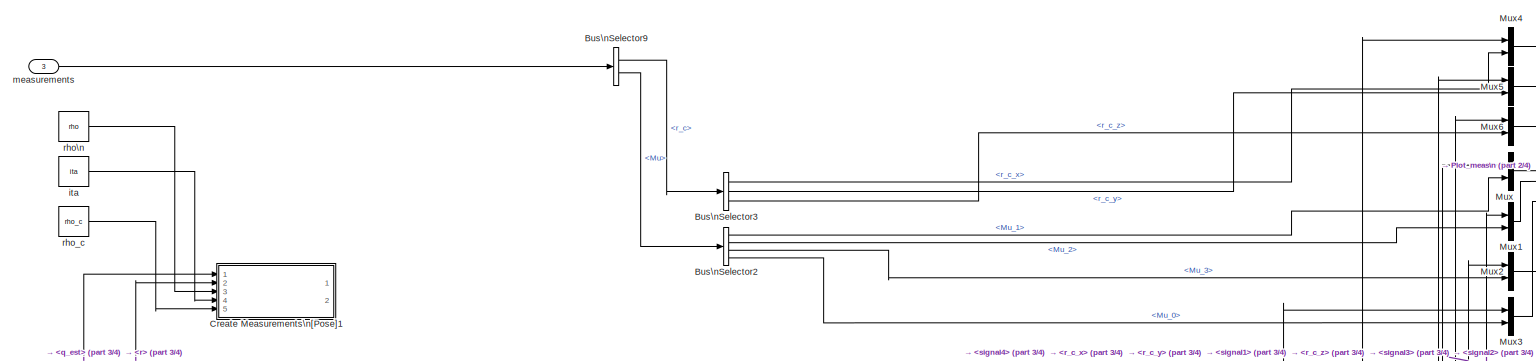
[diagram: Plots and display - part 1/4, full width, top band]
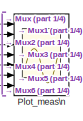
[diagram: Plots and display - part 2/4, top right region]
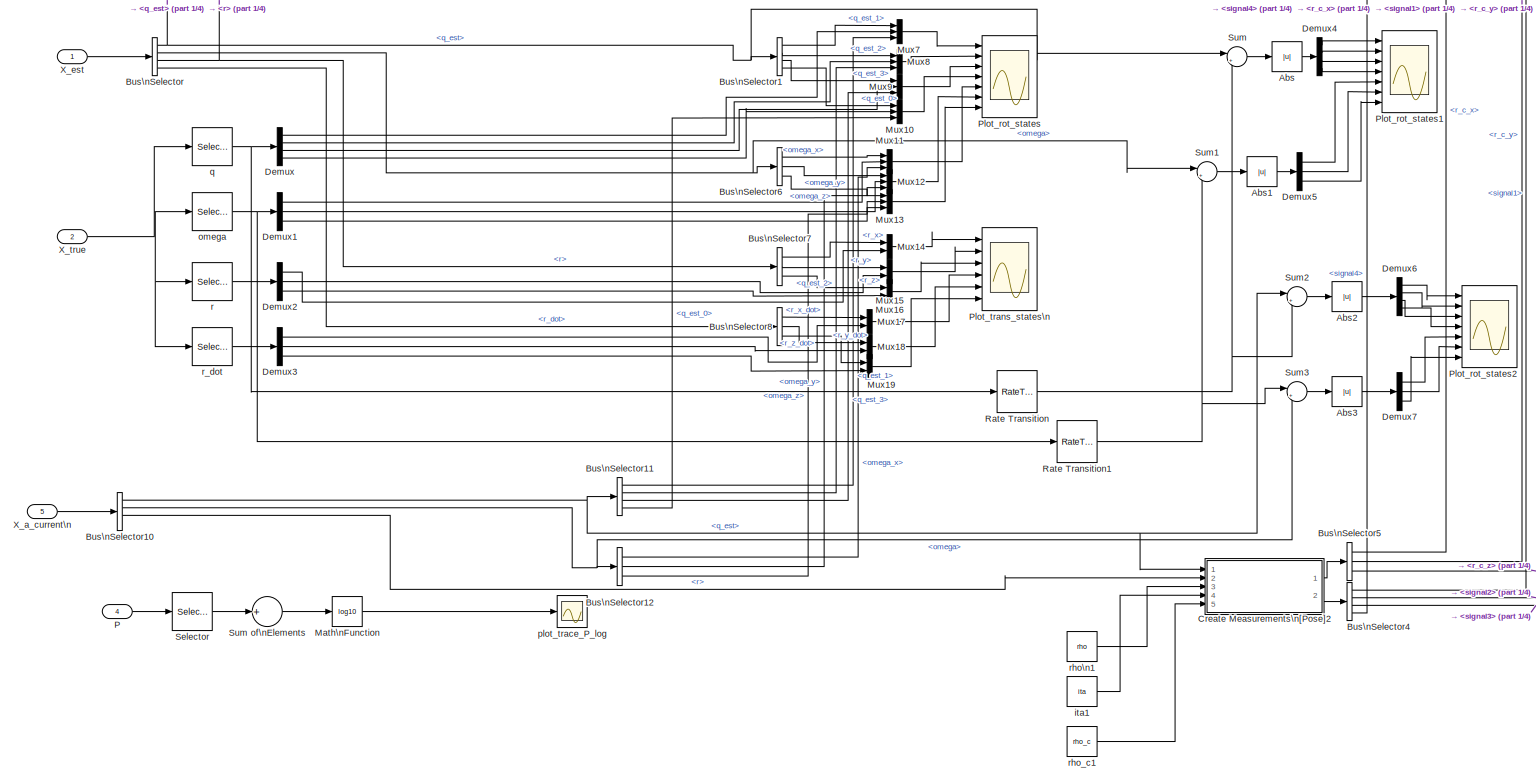
[diagram: Plots and display - part 3/4, full width, middle band]
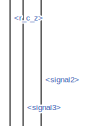
[diagram: Plots and display - part 4/4, middle right region]
BLOCK [SubSystem] Plots and display
  FunctionWithSeparateData = off
  MinAlgLoopOccurrences = off
  Ports = [5]
  RTWSystemCode = Auto
BLOCK [Abs] Plots and display/Abs
  SaturateOnIntegerOverflow = off
BLOCK [Abs] Plots and display/Abs1
  SaturateOnIntegerOverflow = off
BLOCK [Abs] Plots and display/Abs2
  SaturateOnIntegerOverflow = off
BLOCK [Abs] Plots and display/Abs3
  SaturateOnIntegerOverflow = off
BLOCK [BusSelector] Plots and display/Bus\nSelector
  OutputSignals = q_est,omega,r,r_dot
  Ports = [1, 4]
BLOCK [BusSelector] Plots and display/Bus\nSelector1
  OutputSignals = q_est_1,q_est_2,q_est_3,q_est_0
  Ports = [1, 4]
BLOCK [BusSelector] Plots and display/Bus\nSelector10
  OutputSignals = q_est,omega,r,r_dot
  Ports = [1, 4]
BLOCK [BusSelector] Plots and display/Bus\nSelector11
  OutputSignals = q_est_1,q_est_2,q_est_3,q_est_0
  Ports = [1, 4]
BLOCK [BusSelector] Plots and display/Bus\nSelector12
  OutputSignals = omega_x,omega_y,omega_z
  Ports = [1, 3]
BLOCK [BusSelector] Plots and display/Bus\nSelector2
  OutputSignals = Mu_1,Mu_2,Mu_3,Mu_0
  Ports = [1, 4]
BLOCK [BusSelector] Plots and display/Bus\nSelector3
  OutputSignals = r_c_x,r_c_y,r_c_z
  Ports = [1, 3]
BLOCK [BusSelector] Plots and display/Bus\nSelector4
  OutputSignals = signal1,signal2,signal3,signal4
  Ports = [1, 4]
BLOCK [BusSelector] Plots and display/Bus\nSelector5
  OutputSignals = r_c_x,r_c_y,r_c_z
  Ports = [1, 3]
BLOCK [BusSelector] Plots and display/Bus\nSelector6
  OutputSignals = omega_x,omega_y,omega_z
  Ports = [1, 3]
BLOCK [BusSelector] Plots and display/Bus\nSelector7
  OutputSignals = r_x,r_y,r_z
  Ports = [1, 3]
BLOCK [BusSelector] Plots and display/Bus\nSelector8
  OutputSignals = r_x_dot,r_y_dot,r_z_dot
  Ports = [1, 3]
BLOCK [BusSelector] Plots and display/Bus\nSelector9
  OutputSignals = r_c,Mu
  Ports = [1, 2]
BLOCK [SubSystem] Plots and display/Create Measurements\n[Pose]1
  FunctionWithSeparateData = off
  MinAlgLoopOccurrences = off
  Ports = [5, 2]
  RTWSystemCode = Auto
BLOCK [SubSystem] Plots and display/Create Measurements\n[Pose]1/Create Measurements\n[Orientation]\n
  FunctionWithSeparateData = off
  MinAlgLoopOccurrences = off
  Ports = [2, 1]
  RTWSystemCode = Auto
BLOCK [BusCreator] Plots and display/Create Measurements\n[Pose]1/Create Measurements\n[Orientation]\n/Bus\nCreator
  DisplayOption = bar
  Ports = [4, 1]
BLOCK [Demux] Plots and display/Create Measurements\n[Pose]1/Create Measurements\n[Orientation]\n/Demux
  DisplayOption = bar
  Ports = [1, 4]
BLOCK [SubSystem] Plots and display/Create Measurements\n[Pose]1/Create Measurements\n[Orientation]\n/MATLAB Function
  FunctionWithSeparateData = off
  MaskDescription = Embedded MATLAB block
  MaskDisplay = disp('fn_CrossTensor');
  MaskIconFrame = on
  MaskIconOpaque = off
  MaskIconRotate = none
  MaskIconUnits = normalized
  MaskSelfModifiable = on
  MaskType = Stateflow
  MinAlgLoopOccurrences = off
  PermitHierarchicalResolution = ExplicitOnly
  Ports = [2, 1]
  RTWSystemCode = Auto
  TreatAsAtomicUnit = on
BLOCK [Demux] Plots and display/Create Measurements\n[Pose]1/Create Measurements\n[Orientation]\n/MATLAB Function/ Demux 
  Outputs = 1
  Ports = [1, 1]
BLOCK [S-Function] Plots and display/Create Measurements\n[Pose]1/Create Measurements\n[Orientation]\n/MATLAB Function/ SFunction 
  EnableBusSupport = on
  FunctionName = sf_sfun
  PortCounts = [2 2]
  Ports = [2, 2]
  Tag = Stateflow S-Function EKF_02_without_Events_R2007b 15
BLOCK [Terminator] Plots and display/Create Measurements\n[Pose]1/Create Measurements\n[Orientation]\n/MATLAB Function/ Terminator 
BLOCK [Outport] Plots and display/Create Measurements\n[Pose]1/Create Measurements\n[Orientation]\n/MATLAB Function/CrossTensor
  IconDisplay = Port number
BLOCK [Inport] Plots and display/Create Measurements\n[Pose]1/Create Measurements\n[Orientation]\n/MATLAB Function/flag
  IconDisplay = Port number
  Port = 2
BLOCK [Inport] Plots and display/Create Measurements\n[Pose]1/Create Measurements\n[Orientation]\n/MATLAB Function/q
  IconDisplay = Port number
BLOCK [Outport] Plots and display/Create Measurements\n[Pose]1/Create Measurements\n[Orientation]\n/Mu
  IconDisplay = Port number
BLOCK [Product] Plots and display/Create Measurements\n[Pose]1/Create Measurements\n[Orientation]\n/Product
  CollapseMode = All dimensions
  InputSameDT = off
  Multiplication = Matrix(*)
  OutDataTypeMode = Inherit via internal rule
  Ports = [2, 1]
  RndMeth = Floor
  SaturateOnIntegerOverflow = off
BLOCK [Constant] Plots and display/Create Measurements\n[Pose]1/Create Measurements\n[Orientation]\n/flag\n
  Value = 0
BLOCK [Inport] Plots and display/Create Measurements\n[Pose]1/Create Measurements\n[Orientation]\n/ita\n
  IconDisplay = Port number
  Port = 2
BLOCK [Inport] Plots and display/Create Measurements\n[Pose]1/Create Measurements\n[Orientation]\n/q
  IconDisplay = Port number
BLOCK [SubSystem] Plots and display/Create Measurements\n[Pose]1/Create Measurements\n[Position]
  FunctionWithSeparateData = off
  MinAlgLoopOccurrences = off
  Ports = [4, 1]
  RTWSystemCode = Auto
BLOCK [Sum] Plots and display/Create Measurements\n[Pose]1/Create Measurements\n[Position]/Add
  CollapseMode = All dimensions
  InputSameDT = off
  Inputs = +++
  OutDataTypeMode = Inherit via internal rule
  Ports = [3, 1]
  SaturateOnIntegerOverflow = off
BLOCK [BusCreator] Plots and display/Create Measurements\n[Pose]1/Create Measurements\n[Position]/Bus\nCreator
  DisplayOption = bar
  Inputs = 3
  Ports = [3, 1]
BLOCK [SubSystem] Plots and display/Create Measurements\n[Pose]1/Create Measurements\n[Position]/Create Rotation Matrix\n
  FunctionWithSeparateData = off
  MinAlgLoopOccurrences = off
  Ports = [1, 1]
  RTWSystemCode = Auto
BLOCK [Sum] Plots and display/Create Measurements\n[Pose]1/Create Measurements\n[Position]/Create Rotation Matrix\n/Add
  CollapseMode = All dimensions
  InputSameDT = off
  OutDataTypeMode = Inherit via internal rule
  Ports = [2, 1]
  SaturateOnIntegerOverflow = off
BLOCK [Sum] Plots and display/Create Measurements\n[Pose]1/Create Measurements\n[Position]/Create Rotation Matrix\n/Add5
  CollapseMode = All dimensions
  InputSameDT = off
  Inputs = +++
  OutDataTypeMode = Inherit via internal rule
  Ports = [3, 1]
  SaturateOnIntegerOverflow = off
BLOCK [Constant] Plots and display/Create Measurements\n[Pose]1/Create Measurements\n[Position]/Create Rotation Matrix\n/Constant1
  Value = -1
BLOCK [SubSystem] Plots and display/Create Measurements\n[Pose]1/Create Measurements\n[Position]/Create Rotation Matrix\n/Create Skew Symmetric
  FunctionWithSeparateData = off
  MinAlgLoopOccurrences = off
  Ports = [1, 1]
  RTWSystemCode = Auto
BLOCK [Constant] Plots and display/Create Measurements\n[Pose]1/Create Measurements\n[Position]/Create Rotation Matrix\n/Create Skew Symmetric/0
  Value = 0
BLOCK [SubSystem] Plots and display/Create Measurements\n[Pose]1/Create Measurements\n[Position]/Create Rotation Matrix\n/Create Skew Symmetric/Create 3x3 matrix
  FunctionWithSeparateData = off
  MinAlgLoopOccurrences = off
  Ports = [9, 1]
  RTWSystemCode = Auto
BLOCK [Math] Plots and display/Create Measurements\n[Pose]1/Create Measurements\n[Position]/Create Rotation Matrix\n/Create Skew Symmetric/Create 3x3 matrix/Math\nFunction
  Operator = transpose
  Ports = [1, 1]
BLOCK [Outport] Plots and display/Create Measurements\n[Pose]1/Create Measurements\n[Position]/Create Rotation Matrix\n/Create Skew Symmetric/Create 3x3 matrix/Matrix
  IconDisplay = Port number
BLOCK [Reshape] Plots and display/Create Measurements\n[Pose]1/Create Measurements\n[Position]/Create Rotation Matrix\n/Create Skew Symmetric/Create 3x3 matrix/Reshape\n(9) to [3x3]\ncolumn-major
  OutputDimensionality = Customize
  OutputDimensions = [3,3]
BLOCK [Concatenate] Plots and display/Create Measurements\n[Pose]1/Create Measurements\n[Position]/Create Rotation Matrix\n/Create Skew Symmetric/Create 3x3 matrix/Vector\nConcatenate
  Mode = Vector
  NumInputs = 9
  Ports = [9, 1]
BLOCK [Inport] Plots and display/Create Measurements\n[Pose]1/Create Measurements\n[Position]/Create Rotation Matrix\n/Create Skew Symmetric/Create 3x3 matrix/a11
  IconDisplay = Port number
BLOCK [Inport] Plots and display/Create Measurements\n[Pose]1/Create Measurements\n[Position]/Create Rotation Matrix\n/Create Skew Symmetric/Create 3x3 matrix/a12
  IconDisplay = Port number
  Port = 2
BLOCK [Inport] Plots and display/Create Measurements\n[Pose]1/Create Measurements\n[Position]/Create Rotation Matrix\n/Create Skew Symmetric/Create 3x3 matrix/a13
  IconDisplay = Port number
  Port = 3
BLOCK [Inport] Plots and display/Create Measurements\n[Pose]1/Create Measurements\n[Position]/Create Rotation Matrix\n/Create Skew Symmetric/Create 3x3 matrix/a21
  IconDisplay = Port number
  Port = 4
BLOCK [Inport] Plots and display/Create Measurements\n[Pose]1/Create Measurements\n[Position]/Create Rotation Matrix\n/Create Skew Symmetric/Create 3x3 matrix/a22
  IconDisplay = Port number
  Port = 5
BLOCK [Inport] Plots and display/Create Measurements\n[Pose]1/Create Measurements\n[Position]/Create Rotation Matrix\n/Create Skew Symmetric/Create 3x3 matrix/a23
  IconDisplay = Port number
  Port = 6
BLOCK [Inport] Plots and display/Create Measurements\n[Pose]1/Create Measurements\n[Position]/Create Rotation Matrix\n/Create Skew Symmetric/Create 3x3 matrix/a31
  IconDisplay = Port number
  Port = 7
BLOCK [Inport] Plots and display/Create Measurements\n[Pose]1/Create Measurements\n[Position]/Create Rotation Matrix\n/Create Skew Symmetric/Create 3x3 matrix/a32
  IconDisplay = Port number
  Port = 8
BLOCK [Inport] Plots and display/Create Measurements\n[Pose]1/Create Measurements\n[Position]/Create Rotation Matrix\n/Create Skew Symmetric/Create 3x3 matrix/a33
  IconDisplay = Port number
  Port = 9
BLOCK [Demux] Plots and display/Create Measurements\n[Pose]1/Create Measurements\n[Position]/Create Rotation Matrix\n/Create Skew Symmetric/Demux
  DisplayOption = bar
  Outputs = 3
  Ports = [1, 3]
BLOCK [Demux] Plots and display/Create Measurements\n[Pose]1/Create Measurements\n[Position]/Create Rotation Matrix\n/Create Skew Symmetric/Demux1
  DisplayOption = bar
  Outputs = 3
  Ports = [1, 3]
BLOCK [Gain] Plots and display/Create Measurements\n[Pose]1/Create Measurements\n[Position]/Create Rotation Matrix\n/Create Skew Symmetric/Gain
  Gain = -1
  OutDataTypeMode = Inherit via internal rule
  ParameterDataTypeMode = Inherit via internal rule
  SaturateOnIntegerOverflow = off
BLOCK [Outport] Plots and display/Create Measurements\n[Pose]1/Create Measurements\n[Position]/Create Rotation Matrix\n/Create Skew Symmetric/skew symmetric\nMatrix
  IconDisplay = Port number
BLOCK [Inport] Plots and display/Create Measurements\n[Pose]1/Create Measurements\n[Position]/Create Rotation Matrix\n/Create Skew Symmetric/vector
  IconDisplay = Port number
BLOCK [Gain] Plots and display/Create Measurements\n[Pose]1/Create Measurements\n[Position]/Create Rotation Matrix\n/Gain
  Gain = 2
  OutDataTypeMode = Inherit via internal rule
  ParameterDataTypeMode = Inherit via internal rule
  SaturateOnIntegerOverflow = off
BLOCK [Gain] Plots and display/Create Measurements\n[Pose]1/Create Measurements\n[Position]/Create Rotation Matrix\n/Gain1
  Gain = 2
  OutDataTypeMode = Inherit via internal rule
  ParameterDataTypeMode = Inherit via internal rule
  SaturateOnIntegerOverflow = off
BLOCK [Gain] Plots and display/Create Measurements\n[Pose]1/Create Measurements\n[Position]/Create Rotation Matrix\n/Gain2
  Gain = 2
  OutDataTypeMode = Inherit via internal rule
  ParameterDataTypeMode = Inherit via internal rule
  SaturateOnIntegerOverflow = off
BLOCK [Constant] Plots and display/Create Measurements\n[Pose]1/Create Measurements\n[Position]/Create Rotation Matrix\n/I
  Value = eye(3,3)
BLOCK [Math] Plots and display/Create Measurements\n[Pose]1/Create Measurements\n[Position]/Create Rotation Matrix\n/Math\nFunction
  Operator = square
  Ports = [1, 1]
BLOCK [Math] Plots and display/Create Measurements\n[Pose]1/Create Measurements\n[Position]/Create Rotation Matrix\n/Math\nFunction1
  Operator = transpose
  Ports = [1, 1]
BLOCK [Product] Plots and display/Create Measurements\n[Pose]1/Create Measurements\n[Position]/Create Rotation Matrix\n/Product1
  CollapseMode = All dimensions
  InputSameDT = off
  OutDataTypeMode = Inherit via internal rule
  Ports = [2, 1]
  RndMeth = Floor
  SaturateOnIntegerOverflow = off
BLOCK [Product] Plots and display/Create Measurements\n[Pose]1/Create Measurements\n[Position]/Create Rotation Matrix\n/Product2
  CollapseMode = All dimensions
  InputSameDT = off
  OutDataTypeMode = Inherit via internal rule
  Ports = [2, 1]
  RndMeth = Floor
  SaturateOnIntegerOverflow = off
BLOCK [Product] Plots and display/Create Measurements\n[Pose]1/Create Measurements\n[Position]/Create Rotation Matrix\n/Product3
  CollapseMode = All dimensions
  InputSameDT = off
  Multiplication = Matrix(*)
  OutDataTypeMode = Inherit via internal rule
  Ports = [2, 1]
  RndMeth = Floor
  SaturateOnIntegerOverflow = off
BLOCK [Outport] Plots and display/Create Measurements\n[Pose]1/Create Measurements\n[Position]/Create Rotation Matrix\n/R
  IconDisplay = Port number
BLOCK [Selector] Plots and display/Create Measurements\n[Pose]1/Create Measurements\n[Position]/Create Rotation Matrix\n/Selector2
  IndexOptions = Index vector (dialog)
  Indices = [1 2 3]
  InputPortWidth = 4
  OutputSizes = 1
  Ports = [1, 1]
BLOCK [Selector] Plots and display/Create Measurements\n[Pose]1/Create Measurements\n[Position]/Create Rotation Matrix\n/Selector3
  IndexOptions = Index vector (dialog)
  Indices = [4]
  InputPortWidth = 4
  OutputSizes = 1
  Ports = [1, 1]
BLOCK [Inport] Plots and display/Create Measurements\n[Pose]1/Create Measurements\n[Position]/Create Rotation Matrix\n/q
  IconDisplay = Port number
BLOCK [Demux] Plots and display/Create Measurements\n[Pose]1/Create Measurements\n[Position]/Demux
  DisplayOption = bar
  Outputs = 3
  Ports = [1, 3]
BLOCK [Product] Plots and display/Create Measurements\n[Pose]1/Create Measurements\n[Position]/Product
  CollapseMode = All dimensions
  InputSameDT = off
  Multiplication = Matrix(*)
  OutDataTypeMode = Inherit via internal rule
  Ports = [2, 1]
  RndMeth = Floor
  SaturateOnIntegerOverflow = off
BLOCK [Inport] Plots and display/Create Measurements\n[Pose]1/Create Measurements\n[Position]/q
  IconDisplay = Port number
  Port = 2
BLOCK [Inport] Plots and display/Create Measurements\n[Pose]1/Create Measurements\n[Position]/r
  IconDisplay = Port number
BLOCK [Outport] Plots and display/Create Measurements\n[Pose]1/Create Measurements\n[Position]/r_c
  IconDisplay = Port number
BLOCK [Inport] Plots and display/Create Measurements\n[Pose]1/Create Measurements\n[Position]/rho
  IconDisplay = Port number
  Port = 3
BLOCK [Inport] Plots and display/Create Measurements\n[Pose]1/Create Measurements\n[Position]/rho_c\n
  IconDisplay = Port number
  Port = 4
BLOCK [Outport] Plots and display/Create Measurements\n[Pose]1/Mu
  IconDisplay = Port number
  Port = 2
BLOCK [RateTransition] Plots and display/Create Measurements\n[Pose]1/Rate Transition
BLOCK [RateTransition] Plots and display/Create Measurements\n[Pose]1/Rate Transition1
BLOCK [RateTransition] Plots and display/Create Measurements\n[Pose]1/Rate Transition2
BLOCK [Inport] Plots and display/Create Measurements\n[Pose]1/ita
  IconDisplay = Port number
  Port = 4
BLOCK [Inport] Plots and display/Create Measurements\n[Pose]1/q
  IconDisplay = Port number
BLOCK [Inport] Plots and display/Create Measurements\n[Pose]1/r
  IconDisplay = Port number
  Port = 2
BLOCK [Outport] Plots and display/Create Measurements\n[Pose]1/r_c
  IconDisplay = Port number
BLOCK [Inport] Plots and display/Create Measurements\n[Pose]1/rho
  IconDisplay = Port number
  Port = 3
BLOCK [Inport] Plots and display/Create Measurements\n[Pose]1/rho_c\n
  IconDisplay = Port number
  Port = 5
BLOCK [SubSystem] Plots and display/Create Measurements\n[Pose]2
  FunctionWithSeparateData = off
  MinAlgLoopOccurrences = off
  Ports = [5, 2]
  RTWSystemCode = Auto
BLOCK [SubSystem] Plots and display/Create Measurements\n[Pose]2/Create Measurements\n[Orientation]\n
  FunctionWithSeparateData = off
  MinAlgLoopOccurrences = off
  Ports = [2, 1]
  RTWSystemCode = Auto
BLOCK [BusCreator] Plots and display/Create Measurements\n[Pose]2/Create Measurements\n[Orientation]\n/Bus\nCreator
  DisplayOption = bar
  Ports = [4, 1]
BLOCK [Demux] Plots and display/Create Measurements\n[Pose]2/Create Measurements\n[Orientation]\n/Demux
  DisplayOption = bar
  Ports = [1, 4]
BLOCK [SubSystem] Plots and display/Create Measurements\n[Pose]2/Create Measurements\n[Orientation]\n/MATLAB Function
  FunctionWithSeparateData = off
  MaskDescription = Embedded MATLAB block
  MaskDisplay = disp('fn_CrossTensor');
  MaskIconFrame = on
  MaskIconOpaque = off
  MaskIconRotate = none
  MaskIconUnits = normalized
  MaskSelfModifiable = on
  MaskType = Stateflow
  MinAlgLoopOccurrences = off
  PermitHierarchicalResolution = ExplicitOnly
  Ports = [2, 1]
  RTWSystemCode = Auto
  TreatAsAtomicUnit = on
BLOCK [Demux] Plots and display/Create Measurements\n[Pose]2/Create Measurements\n[Orientation]\n/MATLAB Function/ Demux 
  Outputs = 1
  Ports = [1, 1]
BLOCK [S-Function] Plots and display/Create Measurements\n[Pose]2/Create Measurements\n[Orientation]\n/MATLAB Function/ SFunction 
  EnableBusSupport = on
  FunctionName = sf_sfun
  PortCounts = [2 2]
  Ports = [2, 2]
  Tag = Stateflow S-Function EKF_02_without_Events_R2007b 19
BLOCK [Terminator] Plots and display/Create Measurements\n[Pose]2/Create Measurements\n[Orientation]\n/MATLAB Function/ Terminator 
BLOCK [Outport] Plots and display/Create Measurements\n[Pose]2/Create Measurements\n[Orientation]\n/MATLAB Function/CrossTensor
  IconDisplay = Port number
BLOCK [Inport] Plots and display/Create Measurements\n[Pose]2/Create Measurements\n[Orientation]\n/MATLAB Function/flag
  IconDisplay = Port number
  Port = 2
BLOCK [Inport] Plots and display/Create Measurements\n[Pose]2/Create Measurements\n[Orientation]\n/MATLAB Function/q
  IconDisplay = Port number
BLOCK [Outport] Plots and display/Create Measurements\n[Pose]2/Create Measurements\n[Orientation]\n/Mu
  IconDisplay = Port number
BLOCK [Product] Plots and display/Create Measurements\n[Pose]2/Create Measurements\n[Orientation]\n/Product
  CollapseMode = All dimensions
  InputSameDT = off
  Multiplication = Matrix(*)
  OutDataTypeMode = Inherit via internal rule
  Ports = [2, 1]
  RndMeth = Floor
  SaturateOnIntegerOverflow = off
BLOCK [Constant] Plots and display/Create Measurements\n[Pose]2/Create Measurements\n[Orientation]\n/flag\n
  Value = 0
BLOCK [Inport] Plots and display/Create Measurements\n[Pose]2/Create Measurements\n[Orientation]\n/ita\n
  IconDisplay = Port number
  Port = 2
BLOCK [Inport] Plots and display/Create Measurements\n[Pose]2/Create Measurements\n[Orientation]\n/q
  IconDisplay = Port number
BLOCK [SubSystem] Plots and display/Create Measurements\n[Pose]2/Create Measurements\n[Position]
  FunctionWithSeparateData = off
  MinAlgLoopOccurrences = off
  Ports = [4, 1]
  RTWSystemCode = Auto
BLOCK [Sum] Plots and display/Create Measurements\n[Pose]2/Create Measurements\n[Position]/Add
  CollapseMode = All dimensions
  InputSameDT = off
  Inputs = +++
  OutDataTypeMode = Inherit via internal rule
  Ports = [3, 1]
  SaturateOnIntegerOverflow = off
BLOCK [BusCreator] Plots and display/Create Measurements\n[Pose]2/Create Measurements\n[Position]/Bus\nCreator
  DisplayOption = bar
  Inputs = 3
  Ports = [3, 1]
BLOCK [SubSystem] Plots and display/Create Measurements\n[Pose]2/Create Measurements\n[Position]/Create Rotation Matrix\n
  FunctionWithSeparateData = off
  MinAlgLoopOccurrences = off
  Ports = [1, 1]
  RTWSystemCode = Auto
BLOCK [Sum] Plots and display/Create Measurements\n[Pose]2/Create Measurements\n[Position]/Create Rotation Matrix\n/Add
  CollapseMode = All dimensions
  InputSameDT = off
  OutDataTypeMode = Inherit via internal rule
  Ports = [2, 1]
  SaturateOnIntegerOverflow = off
BLOCK [Sum] Plots and display/Create Measurements\n[Pose]2/Create Measurements\n[Position]/Create Rotation Matrix\n/Add5
  CollapseMode = All dimensions
  InputSameDT = off
  Inputs = +++
  OutDataTypeMode = Inherit via internal rule
  Ports = [3, 1]
  SaturateOnIntegerOverflow = off
BLOCK [Constant] Plots and display/Create Measurements\n[Pose]2/Create Measurements\n[Position]/Create Rotation Matrix\n/Constant1
  Value = -1
BLOCK [SubSystem] Plots and display/Create Measurements\n[Pose]2/Create Measurements\n[Position]/Create Rotation Matrix\n/Create Skew Symmetric
  FunctionWithSeparateData = off
  MinAlgLoopOccurrences = off
  Ports = [1, 1]
  RTWSystemCode = Auto
BLOCK [Constant] Plots and display/Create Measurements\n[Pose]2/Create Measurements\n[Position]/Create Rotation Matrix\n/Create Skew Symmetric/0
  Value = 0
BLOCK [SubSystem] Plots and display/Create Measurements\n[Pose]2/Create Measurements\n[Position]/Create Rotation Matrix\n/Create Skew Symmetric/Create 3x3 matrix
  FunctionWithSeparateData = off
  MinAlgLoopOccurrences = off
  Ports = [9, 1]
  RTWSystemCode = Auto
BLOCK [Math] Plots and display/Create Measurements\n[Pose]2/Create Measurements\n[Position]/Create Rotation Matrix\n/Create Skew Symmetric/Create 3x3 matrix/Math\nFunction
  Operator = transpose
  Ports = [1, 1]
BLOCK [Outport] Plots and display/Create Measurements\n[Pose]2/Create Measurements\n[Position]/Create Rotation Matrix\n/Create Skew Symmetric/Create 3x3 matrix/Matrix
  IconDisplay = Port number
BLOCK [Reshape] Plots and display/Create Measurements\n[Pose]2/Create Measurements\n[Position]/Create Rotation Matrix\n/Create Skew Symmetric/Create 3x3 matrix/Reshape\n(9) to [3x3]\ncolumn-major
  OutputDimensionality = Customize
  OutputDimensions = [3,3]
BLOCK [Concatenate] Plots and display/Create Measurements\n[Pose]2/Create Measurements\n[Position]/Create Rotation Matrix\n/Create Skew Symmetric/Create 3x3 matrix/Vector\nConcatenate
  Mode = Vector
  NumInputs = 9
  Ports = [9, 1]
BLOCK [Inport] Plots and display/Create Measurements\n[Pose]2/Create Measurements\n[Position]/Create Rotation Matrix\n/Create Skew Symmetric/Create 3x3 matrix/a11
  IconDisplay = Port number
BLOCK [Inport] Plots and display/Create Measurements\n[Pose]2/Create Measurements\n[Position]/Create Rotation Matrix\n/Create Skew Symmetric/Create 3x3 matrix/a12
  IconDisplay = Port number
  Port = 2
BLOCK [Inport] Plots and display/Create Measurements\n[Pose]2/Create Measurements\n[Position]/Create Rotation Matrix\n/Create Skew Symmetric/Create 3x3 matrix/a13
  IconDisplay = Port number
  Port = 3
BLOCK [Inport] Plots and display/Create Measurements\n[Pose]2/Create Measurements\n[Position]/Create Rotation Matrix\n/Create Skew Symmetric/Create 3x3 matrix/a21
  IconDisplay = Port number
  Port = 4
BLOCK [Inport] Plots and display/Create Measurements\n[Pose]2/Create Measurements\n[Position]/Create Rotation Matrix\n/Create Skew Symmetric/Create 3x3 matrix/a22
  IconDisplay = Port number
  Port = 5
BLOCK [Inport] Plots and display/Create Measurements\n[Pose]2/Create Measurements\n[Position]/Create Rotation Matrix\n/Create Skew Symmetric/Create 3x3 matrix/a23
  IconDisplay = Port number
  Port = 6
BLOCK [Inport] Plots and display/Create Measurements\n[Pose]2/Create Measurements\n[Position]/Create Rotation Matrix\n/Create Skew Symmetric/Create 3x3 matrix/a31
  IconDisplay = Port number
  Port = 7
BLOCK [Inport] Plots and display/Create Measurements\n[Pose]2/Create Measurements\n[Position]/Create Rotation Matrix\n/Create Skew Symmetric/Create 3x3 matrix/a32
  IconDisplay = Port number
  Port = 8
BLOCK [Inport] Plots and display/Create Measurements\n[Pose]2/Create Measurements\n[Position]/Create Rotation Matrix\n/Create Skew Symmetric/Create 3x3 matrix/a33
  IconDisplay = Port number
  Port = 9
BLOCK [Demux] Plots and display/Create Measurements\n[Pose]2/Create Measurements\n[Position]/Create Rotation Matrix\n/Create Skew Symmetric/Demux
  DisplayOption = bar
  Outputs = 3
  Ports = [1, 3]
BLOCK [Demux] Plots and display/Create Measurements\n[Pose]2/Create Measurements\n[Position]/Create Rotation Matrix\n/Create Skew Symmetric/Demux1
  DisplayOption = bar
  Outputs = 3
  Ports = [1, 3]
BLOCK [Gain] Plots and display/Create Measurements\n[Pose]2/Create Measurements\n[Position]/Create Rotation Matrix\n/Create Skew Symmetric/Gain
  Gain = -1
  OutDataTypeMode = Inherit via internal rule
  ParameterDataTypeMode = Inherit via internal rule
  SaturateOnIntegerOverflow = off
BLOCK [Outport] Plots and display/Create Measurements\n[Pose]2/Create Measurements\n[Position]/Create Rotation Matrix\n/Create Skew Symmetric/skew symmetric\nMatrix
  IconDisplay = Port number
BLOCK [Inport] Plots and display/Create Measurements\n[Pose]2/Create Measurements\n[Position]/Create Rotation Matrix\n/Create Skew Symmetric/vector
  IconDisplay = Port number
BLOCK [Gain] Plots and display/Create Measurements\n[Pose]2/Create Measurements\n[Position]/Create Rotation Matrix\n/Gain
  Gain = 2
  OutDataTypeMode = Inherit via internal rule
  ParameterDataTypeMode = Inherit via internal rule
  SaturateOnIntegerOverflow = off
BLOCK [Gain] Plots and display/Create Measurements\n[Pose]2/Create Measurements\n[Position]/Create Rotation Matrix\n/Gain1
  Gain = 2
  OutDataTypeMode = Inherit via internal rule
  ParameterDataTypeMode = Inherit via internal rule
  SaturateOnIntegerOverflow = off
BLOCK [Gain] Plots and display/Create Measurements\n[Pose]2/Create Measurements\n[Position]/Create Rotation Matrix\n/Gain2
  Gain = 2
  OutDataTypeMode = Inherit via internal rule
  ParameterDataTypeMode = Inherit via internal rule
  SaturateOnIntegerOverflow = off
BLOCK [Constant] Plots and display/Create Measurements\n[Pose]2/Create Measurements\n[Position]/Create Rotation Matrix\n/I
  Value = eye(3,3)
BLOCK [Math] Plots and display/Create Measurements\n[Pose]2/Create Measurements\n[Position]/Create Rotation Matrix\n/Math\nFunction
  Operator = square
  Ports = [1, 1]
BLOCK [Math] Plots and display/Create Measurements\n[Pose]2/Create Measurements\n[Position]/Create Rotation Matrix\n/Math\nFunction1
  Operator = transpose
  Ports = [1, 1]
BLOCK [Product] Plots and display/Create Measurements\n[Pose]2/Create Measurements\n[Position]/Create Rotation Matrix\n/Product1
  CollapseMode = All dimensions
  InputSameDT = off
  OutDataTypeMode = Inherit via internal rule
  Ports = [2, 1]
  RndMeth = Floor
  SaturateOnIntegerOverflow = off
BLOCK [Product] Plots and display/Create Measurements\n[Pose]2/Create Measurements\n[Position]/Create Rotation Matrix\n/Product2
  CollapseMode = All dimensions
  InputSameDT = off
  OutDataTypeMode = Inherit via internal rule
  Ports = [2, 1]
  RndMeth = Floor
  SaturateOnIntegerOverflow = off
BLOCK [Product] Plots and display/Create Measurements\n[Pose]2/Create Measurements\n[Position]/Create Rotation Matrix\n/Product3
  CollapseMode = All dimensions
  InputSameDT = off
  Multiplication = Matrix(*)
  OutDataTypeMode = Inherit via internal rule
  Ports = [2, 1]
  RndMeth = Floor
  SaturateOnIntegerOverflow = off
BLOCK [Outport] Plots and display/Create Measurements\n[Pose]2/Create Measurements\n[Position]/Create Rotation Matrix\n/R
  IconDisplay = Port number
BLOCK [Selector] Plots and display/Create Measurements\n[Pose]2/Create Measurements\n[Position]/Create Rotation Matrix\n/Selector2
  IndexOptions = Index vector (dialog)
  Indices = [1 2 3]
  InputPortWidth = 4
  OutputSizes = 1
  Ports = [1, 1]
BLOCK [Selector] Plots and display/Create Measurements\n[Pose]2/Create Measurements\n[Position]/Create Rotation Matrix\n/Selector3
  IndexOptions = Index vector (dialog)
  Indices = [4]
  InputPortWidth = 4
  OutputSizes = 1
  Ports = [1, 1]
BLOCK [Inport] Plots and display/Create Measurements\n[Pose]2/Create Measurements\n[Position]/Create Rotation Matrix\n/q
  IconDisplay = Port number
BLOCK [Demux] Plots and display/Create Measurements\n[Pose]2/Create Measurements\n[Position]/Demux
  DisplayOption = bar
  Outputs = 3
  Ports = [1, 3]
BLOCK [Product] Plots and display/Create Measurements\n[Pose]2/Create Measurements\n[Position]/Product
  CollapseMode = All dimensions
  InputSameDT = off
  Multiplication = Matrix(*)
  OutDataTypeMode = Inherit via internal rule
  Ports = [2, 1]
  RndMeth = Floor
  SaturateOnIntegerOverflow = off
BLOCK [Inport] Plots and display/Create Measurements\n[Pose]2/Create Measurements\n[Position]/q
  IconDisplay = Port number
  Port = 2
BLOCK [Inport] Plots and display/Create Measurements\n[Pose]2/Create Measurements\n[Position]/r
  IconDisplay = Port number
BLOCK [Outport] Plots and display/Create Measurements\n[Pose]2/Create Measurements\n[Position]/r_c
  IconDisplay = Port number
BLOCK [Inport] Plots and display/Create Measurements\n[Pose]2/Create Measurements\n[Position]/rho
  IconDisplay = Port number
  Port = 3
BLOCK [Inport] Plots and display/Create Measurements\n[Pose]2/Create Measurements\n[Position]/rho_c\n
  IconDisplay = Port number
  Port = 4
BLOCK [Outport] Plots and display/Create Measurements\n[Pose]2/Mu
  IconDisplay = Port number
  Port = 2
BLOCK [RateTransition] Plots and display/Create Measurements\n[Pose]2/Rate Transition
BLOCK [RateTransition] Plots and display/Create Measurements\n[Pose]2/Rate Transition1
BLOCK [RateTransition] Plots and display/Create Measurements\n[Pose]2/Rate Transition2
BLOCK [Inport] Plots and display/Create Measurements\n[Pose]2/ita
  IconDisplay = Port number
  Port = 4
BLOCK [Inport] Plots and display/Create Measurements\n[Pose]2/q
  IconDisplay = Port number
BLOCK [Inport] Plots and display/Create Measurements\n[Pose]2/r
  IconDisplay = Port number
  Port = 2
BLOCK [Outport] Plots and display/Create Measurements\n[Pose]2/r_c
  IconDisplay = Port number
BLOCK [Inport] Plots and display/Create Measurements\n[Pose]2/rho
  IconDisplay = Port number
  Port = 3
BLOCK [Inport] Plots and display/Create Measurements\n[Pose]2/rho_c\n
  IconDisplay = Port number
  Port = 5
BLOCK [Demux] Plots and display/Demux
  DisplayOption = bar
  Ports = [1, 4]
BLOCK [Demux] Plots and display/Demux1
  DisplayOption = bar
  Outputs = 3
  Ports = [1, 3]
BLOCK [Demux] Plots and display/Demux2
  DisplayOption = bar
  Outputs = 3
  Ports = [1, 3]
BLOCK [Demux] Plots and display/Demux3
  DisplayOption = bar
  Outputs = 3
  Ports = [1, 3]
BLOCK [Demux] Plots and display/Demux4
  DisplayOption = bar
  Ports = [1, 4]
BLOCK [Demux] Plots and display/Demux5
  DisplayOption = bar
  Outputs = 3
  Ports = [1, 3]
BLOCK [Demux] Plots and display/Demux6
  DisplayOption = bar
  Ports = [1, 4]
BLOCK [Demux] Plots and display/Demux7
  DisplayOption = bar
  Outputs = 3
  Ports = [1, 3]
BLOCK [Math] Plots and display/Math\nFunction
  Operator = log10
  Ports = [1, 1]
BLOCK [Mux] Plots and display/Mux
  DisplayOption = bar
  Inputs = 2
  Ports = [2, 1]
BLOCK [Mux] Plots and display/Mux1
  DisplayOption = bar
  Inputs = 2
  Ports = [2, 1]
BLOCK [Mux] Plots and display/Mux10
  DisplayOption = bar
  Inputs = 3
  Ports = [3, 1]
BLOCK [Mux] Plots and display/Mux11
  DisplayOption = bar
  Inputs = 3
  Ports = [3, 1]
BLOCK [Mux] Plots and display/Mux12
  DisplayOption = bar
  Inputs = 3
  Ports = [3, 1]
BLOCK [Mux] Plots and display/Mux13
  DisplayOption = bar
  Inputs = 3
  Ports = [3, 1]
BLOCK [Mux] Plots and display/Mux14
  DisplayOption = bar
  Inputs = 2
  Ports = [2, 1]
BLOCK [Mux] Plots and display/Mux15
  DisplayOption = bar
  Inputs = 2
  Ports = [2, 1]
BLOCK [Mux] Plots and display/Mux16
  DisplayOption = bar
  Inputs = 2
  Ports = [2, 1]
BLOCK [Mux] Plots and display/Mux17
  DisplayOption = bar
  Inputs = 2
  Ports = [2, 1]
BLOCK [Mux] Plots and display/Mux18
  DisplayOption = bar
  Inputs = 2
  Ports = [2, 1]
BLOCK [Mux] Plots and display/Mux19
  DisplayOption = bar
  Inputs = 2
  Ports = [2, 1]
BLOCK [Mux] Plots and display/Mux2
  DisplayOption = bar
  Inputs = 2
  Ports = [2, 1]
BLOCK [Mux] Plots and display/Mux3
  DisplayOption = bar
  Inputs = 2
  Ports = [2, 1]
BLOCK [Mux] Plots and display/Mux4
  DisplayOption = bar
  Inputs = 2
  Ports = [2, 1]
BLOCK [Mux] Plots and display/Mux5
  DisplayOption = bar
  Inputs = 2
  Ports = [2, 1]
BLOCK [Mux] Plots and display/Mux6
  DisplayOption = bar
  Inputs = 2
  Ports = [2, 1]
BLOCK [Mux] Plots and display/Mux7
  DisplayOption = bar
  Inputs = 3
  Ports = [3, 1]
BLOCK [Mux] Plots and display/Mux8
  DisplayOption = bar
  Inputs = 3
  Ports = [3, 1]
BLOCK [Mux] Plots and display/Mux9
  DisplayOption = bar
  Inputs = 3
  Ports = [3, 1]
BLOCK [Inport] Plots and display/P
  IconDisplay = Port number
  Port = 4
BLOCK [Scope] Plots and display/Plot_meas\n
  DataFormat = StructureWithTime
  Floating = off
  LimitDataPoints = off
  NumInputPorts = 7
  Ports = [7]
  SaveName = ScopeData9
  TimeRange = 200
  YMax = -0.21924~5~5~5~5~5~1.18932
  YMin = -0.38411~-5~-5~-5~-5~-5~-0.89806
BLOCK [Scope] Plots and display/Plot_rot_states
  DataFormat = StructureWithTime
  Floating = off
  LimitDataPoints = off
  NumInputPorts = 7
  Ports = [7]
  SaveName = ScopeData24
  TimeRange = 100
  YMax = 0.75~1~1~1~1~0.4~1
  YMin = -1~-1~-1~-1~-0.2~-0.4~-1
BLOCK [Scope] Plots and display/Plot_rot_states1
  DataFormat = StructureWithTime
  Floating = off
  LimitDataPoints = off
  NumInputPorts = 7
  Ports = [7]
  SaveName = ScopeData14
  TimeRange = 100
  YMax = 1~1~1~1~1~0.4~1
  YMin = -1~-1~-1~-0.75~0~-0.4~-1
  ZoomMode = yonly
BLOCK [Scope] Plots and display/Plot_rot_states2
  DataFormat = StructureWithTime
  Floating = off
  LimitDataPoints = off
  NumInputPorts = 7
  Ports = [7]
  SaveName = ScopeData15
  TimeRange = 100
  YMax = 0.1~0.14~0.175~0.35~0.35~0.25~0.9
  YMin = -3.46945e-18~-3.46945e-18~-1.38778e-17~-2.77556e-17~0.05~1.38778e-17~5.55112e-17
BLOCK [Scope] Plots and display/Plot_trans_states\n
  DataFormat = StructureWithTime
  Floating = off
  LimitDataPoints = off
  NumInputPorts = 6
  Ports = [6]
  SaveName = ScopeData11
  TimeRange = 100
  YMax = 3~1.25~0~0.4~0.15~0.025
  YMin = -0.5~0~-1~-0.05~-0.025~-0.15
BLOCK [RateTransition] Plots and display/Rate Transition
BLOCK [RateTransition] Plots and display/Rate Transition1
BLOCK [Selector] Plots and display/Selector
  IndexOptions = Index vector (dialog),Index vector (dialog)
  Indices = [1:12],[1:12]
  InputPortWidth = 3
  NumberOfDimensions = 2
  OutputSizes = 1,1
  Ports = [1, 1]
BLOCK [Sum] Plots and display/Sum
  CollapseMode = All dimensions
  IconShape = round
  InputSameDT = off
  Inputs = |+-
  OutDataTypeMode = Inherit via internal rule
  Ports = [2, 1]
  SaturateOnIntegerOverflow = off
BLOCK [Sum] Plots and display/Sum of\nElements
  CollapseMode = All dimensions
  InputSameDT = off
  Inputs = +
  OutDataTypeMode = Inherit via internal rule
  Ports = [1, 1]
  SaturateOnIntegerOverflow = off
BLOCK [Sum] Plots and display/Sum1
  CollapseMode = All dimensions
  IconShape = round
  InputSameDT = off
  Inputs = |+-
  OutDataTypeMode = Inherit via internal rule
  Ports = [2, 1]
  SaturateOnIntegerOverflow = off
BLOCK [Sum] Plots and display/Sum2
  CollapseMode = All dimensions
  IconShape = round
  InputSameDT = off
  Inputs = |+-
  OutDataTypeMode = Inherit via internal rule
  Ports = [2, 1]
  SaturateOnIntegerOverflow = off
BLOCK [Sum] Plots and display/Sum3
  CollapseMode = All dimensions
  IconShape = round
  InputSameDT = off
  Inputs = |+-
  OutDataTypeMode = Inherit via internal rule
  Ports = [2, 1]
  SaturateOnIntegerOverflow = off
BLOCK [Inport] Plots and display/X_a_current\n
  IconDisplay = Port number
  Port = 5
BLOCK [Inport] Plots and display/X_est
  IconDisplay = Port number
BLOCK [Inport] Plots and display/X_true
  IconDisplay = Port number
  Port = 2
BLOCK [Constant] Plots and display/ita
  Value = ita
BLOCK [Constant] Plots and display/ita1
  Value = ita
BLOCK [Inport] Plots and display/measurements
  IconDisplay = Port number
  Port = 3
BLOCK [Selector] Plots and display/omega
  IndexOptions = Index vector (dialog),Index vector (dialog)
  Indices = [5 6 7],1
  InputPortWidth = 3
  NumberOfDimensions = 2
  OutputSizes = 1,1
  Ports = [1, 1]
BLOCK [Scope] Plots and display/plot_trace_P_log
  DataFormat = Array
  Floating = off
  LimitDataPoints = off
  NumInputPorts = 1
  Ports = [1]
  SaveName = ScopeData4
  TimeRange = 120
  YMax = -2.50866879562702
  YMin = -2.637825272860399
BLOCK [Selector] Plots and display/q
  IndexOptions = Index vector (dialog),Index vector (dialog)
  Indices = [1 2 3 4],1
  InputPortWidth = 3
  NumberOfDimensions = 2
  OutputSizes = 1,1
  Ports = [1, 1]
BLOCK [Selector] Plots and display/r
  IndexOptions = Index vector (dialog),Index vector (dialog)
  Indices = [8 9 10],1
  InputPortWidth = 3
  NumberOfDimensions = 2
  OutputSizes = 1,1
  Ports = [1, 1]
BLOCK [Selector] Plots and display/r_dot
  IndexOptions = Index vector (dialog),Index vector (dialog)
  Indices = [11 12 13],1
  InputPortWidth = 3
  NumberOfDimensions = 2
  OutputSizes = 1,1
  Ports = [1, 1]
BLOCK [Constant] Plots and display/rho\n
  Value = rho
BLOCK [Constant] Plots and display/rho\n1
  Value = rho
BLOCK [Constant] Plots and display/rho_c
  Value = rho_c
BLOCK [Constant] Plots and display/rho_c1
  Value = rho_c
BLOCK [DiscretePulseGenerator] Pulse\nGenerator
  Period = 0.001
  Ports = [0, 1]
  PulseType = Time based
BLOCK [DiscretePulseGenerator] Pulse\nGenerator1
  Period = t_Kalman/10
  Ports = [0, 1]
  PulseType = Time based
BLOCK [Scope] Scope
  DataFormat = StructureWithTime
  Floating = off
  MaxDataPoints = 100000
  NumInputPorts = 1
  Ports = [1]
  YMax = 1
  YMin = -1
BLOCK [Scope] Scope1
  DataFormat = StructureWithTime
  Floating = off
  LimitDataPoints = off
  NumInputPorts = 1
  Ports = [1]
  SaveName = ScopeData1
  TimeRange = 40
  YMax = 10
  YMin = -10
BLOCK [Scope] Scope2
  DataFormat = StructureWithTime
  Floating = off
  LimitDataPoints = off
  NumInputPorts = 1
  Ports = [1]
  SaveName = ScopeData2
  YMax = 10
  YMin = -10
BLOCK [Scope] Scope3
  DataFormat = StructureWithTime
  Floating = off
  NumInputPorts = 1
  Ports = [1]
  SaveName = ScopeData3
  YMax = 10
  YMin = -10
BLOCK [Scope] Scope4
  DataFormat = StructureWithTime
  Floating = off
  LimitDataPoints = off
  NumInputPorts = 1
  Ports = [1]
  SaveName = ScopeData8
  YMax = 0.20061
  YMin = -0.00242
BLOCK [Scope] Scope5
  DataFormat = StructureWithTime
  Floating = off
  LimitDataPoints = off
  NumInputPorts = 1
  Ports = [1]
  SaveName = ScopeData7
  YMax = 1
  YMin = 0
BLOCK [SubSystem] Simulate failure\n[Measurement System]1
  FunctionWithSeparateData = off
  MinAlgLoopOccurrences = off
  Ports = [0, 1]
  RTWSystemCode = Auto
BLOCK [Sum] Simulate failure\n[Measurement System]1/Add
  CollapseMode = All dimensions
  InputSameDT = off
  Inputs = +++
  OutDataTypeMode = Inherit via internal rule
  Ports = [3, 1]
  SaturateOnIntegerOverflow = off
BLOCK [Outport] Simulate failure\n[Measurement System]1/Out1
  IconDisplay = Port number
BLOCK [Step] Simulate failure\n[Measurement System]1/Step
  Time = 5
BLOCK [Step] Simulate failure\n[Measurement System]1/Step1
  After = -1
  Time = 50
BLOCK [Step] Simulate failure\n[Measurement System]1/Step2
  After = 8
  Time = 60
BLOCK [Constant] ita
  Value = ita
BLOCK [From] measurements
  GotoTag = measurement
  IconDisplay = Tag and signal name
BLOCK [Selector] omega
  IndexOptions = Index vector (dialog),Index vector (dialog)
  Indices = [5 6 7],1
  InputPortWidth = 3
  NumberOfDimensions = 2
  OutputSizes = 1,1
  Ports = [1, 1]
BLOCK [Selector] q
  IndexOptions = Index vector (dialog),Index vector (dialog)
  Indices = [1 2 3 4],1
  InputPortWidth = 3
  NumberOfDimensions = 2
  OutputSizes = 1,1
  Ports = [1, 1]
BLOCK [Selector] r
  IndexOptions = Index vector (dialog),Index vector (dialog)
  Indices = [8 9 10],1
  InputPortWidth = 3
  NumberOfDimensions = 2
  OutputSizes = 1,1
  Ports = [1, 1]
BLOCK [Selector] r_dot
  IndexOptions = Index vector (dialog),Index vector (dialog)
  Indices = [11 12 13],1
  InputPortWidth = 3
  NumberOfDimensions = 2
  OutputSizes = 1,1
  Ports = [1, 1]
BLOCK [Constant] rho\n
  Value = rho
BLOCK [Constant] rho_c
  Value = rho_c
BLOCK [From] state_true
  GotoTag = state_true
  IconDisplay = Tag and signal name
LINE Atomic Subsystem/Bus\nCreator:1 -> Atomic Subsystem/Signal\nConversion:1
LINE Atomic Subsystem/Demux:1 -> Atomic Subsystem/IC2:1
NET Atomic Subsystem/Digital Clock:1 -> Atomic Subsystem/Demux:1, Atomic Subsystem/IC1:1
LINE Atomic Subsystem/Ground:1 -> Atomic Subsystem/Bus\nCreator:1
NET Atomic Subsystem/IC1:1 -> Atomic Subsystem/Bus\nCreator:3, Atomic Subsystem/timestamp_capture:1
LINE Atomic Subsystem/IC2:1 -> Atomic Subsystem/Bus\nCreator:4
LINE Atomic Subsystem/Signal\nConversion:1 -> Atomic Subsystem/meas_packet:1
LINE Atomic Subsystem/meas_vector:1 -> Atomic Subsystem/Bus\nCreator:2
NET Atomic Subsystem:1 -> Bus\nSelector:1, EKF:1
LINE Atomic Subsystem:2 -> EKF:2
LINE Bus\nCreator:1 -> Atomic Subsystem:1
LINE Bus\nSelector:1 -> Goto:1
LINE Chart/ Demux :1 -> Chart/ Terminator :1
LINE Chart/ SFunction :1 -> Chart/ Demux :1
LINE Chart/ SFunction :2 -> Chart/event_trig:1
LINE Chart/ input events :1 -> Chart/ SFunction :1
LINE Chart:1 -> Logical\nOperator:2
LINE Create synthetic measurements\n[Pose]/Create Measurements\n[Orientation]\n/Bus\nCreator:1 -> Create synthetic measurements\n[Pose]/Create Measurements\n[Orientation]\n/Mu:1
LINE Create synthetic measurements\n[Pose]/Create Measurements\n[Orientation]\n/Demux1:1 -> Create synthetic measurements\n[Pose]/Create Measurements\n[Orientation]\n/Bus\nCreator:1
LINE Create synthetic measurements\n[Pose]/Create Measurements\n[Orientation]\n/Demux1:2 -> Create synthetic measurements\n[Pose]/Create Measurements\n[Orientation]\n/Bus\nCreator:2
LINE Create synthetic measurements\n[Pose]/Create Measurements\n[Orientation]\n/Demux1:3 -> Create synthetic measurements\n[Pose]/Create Measurements\n[Orientation]\n/Bus\nCreator:3
LINE Create synthetic measurements\n[Pose]/Create Measurements\n[Orientation]\n/Demux1:4 -> Create synthetic measurements\n[Pose]/Create Measurements\n[Orientation]\n/Bus\nCreator:4
LINE Create synthetic measurements\n[Pose]/Create Measurements\n[Orientation]\n/Demux:1 -> Create synthetic measurements\n[Pose]/Create Measurements\n[Orientation]\n/Mux:1
LINE Create synthetic measurements\n[Pose]/Create Measurements\n[Orientation]\n/Demux:2 -> Create synthetic measurements\n[Pose]/Create Measurements\n[Orientation]\n/Mux:2
LINE Create synthetic measurements\n[Pose]/Create Measurements\n[Orientation]\n/Demux:3 -> Create synthetic measurements\n[Pose]/Create Measurements\n[Orientation]\n/Mux:3
LINE Create synthetic measurements\n[Pose]/Create Measurements\n[Orientation]\n/Demux:4 -> Create synthetic measurements\n[Pose]/Create Measurements\n[Orientation]\n/Mux:4
LINE Create synthetic measurements\n[Pose]/Create Measurements\n[Orientation]\n/IC:1 -> Create synthetic measurements\n[Pose]/Create Measurements\n[Orientation]\n/Selector1:1
LINE Create synthetic measurements\n[Pose]/Create Measurements\n[Orientation]\n/MATLAB Function/ Demux :1 -> Create synthetic measurements\n[Pose]/Create Measurements\n[Orientation]\n/MATLAB Function/ Terminator :1
LINE Create synthetic measurements\n[Pose]/Create Measurements\n[Orientation]\n/MATLAB Function/ SFunction :1 -> Create synthetic measurements\n[Pose]/Create Measurements\n[Orientation]\n/MATLAB Function/ Demux :1
LINE Create synthetic measurements\n[Pose]/Create Measurements\n[Orientation]\n/MATLAB Function/ SFunction :2 -> Create synthetic measurements\n[Pose]/Create Measurements\n[Orientation]\n/MATLAB Function/CrossTensor:1
LINE Create synthetic measurements\n[Pose]/Create Measurements\n[Orientation]\n/MATLAB Function/flag:1 -> Create synthetic measurements\n[Pose]/Create Measurements\n[Orientation]\n/MATLAB Function/ SFunction :2
LINE Create synthetic measurements\n[Pose]/Create Measurements\n[Orientation]\n/MATLAB Function/q:1 -> Create synthetic measurements\n[Pose]/Create Measurements\n[Orientation]\n/MATLAB Function/ SFunction :1
LINE Create synthetic measurements\n[Pose]/Create Measurements\n[Orientation]\n/MATLAB Function:1 -> Create synthetic measurements\n[Pose]/Create Measurements\n[Orientation]\n/Product:1
LINE Create synthetic measurements\n[Pose]/Create Measurements\n[Orientation]\n/Mux:1 -> Create synthetic measurements\n[Pose]/Create Measurements\n[Orientation]\n/Selector:1
LINE Create synthetic measurements\n[Pose]/Create Measurements\n[Orientation]\n/Product:1 -> Create synthetic measurements\n[Pose]/Create Measurements\n[Orientation]\n/Demux:1
LINE Create synthetic measurements\n[Pose]/Create Measurements\n[Orientation]\n/Quaternion norm/Demux3:1 -> Create synthetic measurements\n[Pose]/Create Measurements\n[Orientation]\n/Quaternion norm/Divide:1
LINE Create synthetic measurements\n[Pose]/Create Measurements\n[Orientation]\n/Quaternion norm/Demux3:2 -> Create synthetic measurements\n[Pose]/Create Measurements\n[Orientation]\n/Quaternion norm/Divide1:1
LINE Create synthetic measurements\n[Pose]/Create Measurements\n[Orientation]\n/Quaternion norm/Demux3:3 -> Create synthetic measurements\n[Pose]/Create Measurements\n[Orientation]\n/Quaternion norm/Divide2:1
LINE Create synthetic measurements\n[Pose]/Create Measurements\n[Orientation]\n/Quaternion norm/Demux3:4 -> Create synthetic measurements\n[Pose]/Create Measurements\n[Orientation]\n/Quaternion norm/Divide3:1
LINE Create synthetic measurements\n[Pose]/Create Measurements\n[Orientation]\n/Quaternion norm/Divide1:1 -> Create synthetic measurements\n[Pose]/Create Measurements\n[Orientation]\n/Quaternion norm/Mux1:2
LINE Create synthetic measurements\n[Pose]/Create Measurements\n[Orientation]\n/Quaternion norm/Divide2:1 -> Create synthetic measurements\n[Pose]/Create Measurements\n[Orientation]\n/Quaternion norm/Mux1:3
LINE Create synthetic measurements\n[Pose]/Create Measurements\n[Orientation]\n/Quaternion norm/Divide3:1 -> Create synthetic measurements\n[Pose]/Create Measurements\n[Orientation]\n/Quaternion norm/Mux1:4
LINE Create synthetic measurements\n[Pose]/Create Measurements\n[Orientation]\n/Quaternion norm/Divide:1 -> Create synthetic measurements\n[Pose]/Create Measurements\n[Orientation]\n/Quaternion norm/Mux1:1
LINE Create synthetic measurements\n[Pose]/Create Measurements\n[Orientation]\n/Quaternion norm/Mux1:1 -> Create synthetic measurements\n[Pose]/Create Measurements\n[Orientation]\n/Quaternion norm/normalized_q:1
LINE Create synthetic measurements\n[Pose]/Create Measurements\n[Orientation]\n/Quaternion norm/Norm(q)/Math\nFunction:1 -> Create synthetic measurements\n[Pose]/Create Measurements\n[Orientation]\n/Quaternion norm/Norm(q)/Product1:1
LINE Create synthetic measurements\n[Pose]/Create Measurements\n[Orientation]\n/Quaternion norm/Norm(q)/Product1:1 -> Create synthetic measurements\n[Pose]/Create Measurements\n[Orientation]\n/Quaternion norm/Norm(q)/Sqrt:1
LINE Create synthetic measurements\n[Pose]/Create Measurements\n[Orientation]\n/Quaternion norm/Norm(q)/Sqrt:1 -> Create synthetic measurements\n[Pose]/Create Measurements\n[Orientation]\n/Quaternion norm/Norm(q)/|q|:1
NET Create synthetic measurements\n[Pose]/Create Measurements\n[Orientation]\n/Quaternion norm/Norm(q)/q:1 -> Create synthetic measurements\n[Pose]/Create Measurements\n[Orientation]\n/Quaternion norm/Norm(q)/Math\nFunction:1, Create synthetic measurements\n[Pose]/Create Measurements\n[Orientation]\n/Quaternion norm/Norm(q)/Product1:2
NET Create synthetic measurements\n[Pose]/Create Measurements\n[Orientation]\n/Quaternion norm/Norm(q):1 -> Create synthetic measurements\n[Pose]/Create Measurements\n[Orientation]\n/Quaternion norm/Divide1:2, Create synthetic measurements\n[Pose]/Create Measurements\n[Orientation]\n/Quaternion norm/Divide2:2, Create synthetic measurements\n[Pose]/Create Measurements\n[Orientation]\n/Quaternion norm/Divide3:2, Create synthetic measurements\n[Pose]/Create Measurements\n[Orientation]\n/Quaternion norm/Divide:2
NET Create synthetic measurements\n[Pose]/Create Measurements\n[Orientation]\n/Quaternion norm/q:1 -> Create synthetic measurements\n[Pose]/Create Measurements\n[Orientation]\n/Quaternion norm/Demux3:1, Create synthetic measurements\n[Pose]/Create Measurements\n[Orientation]\n/Quaternion norm/Norm(q):1
LINE Create synthetic measurements\n[Pose]/Create Measurements\n[Orientation]\n/Quaternion norm:1 -> Create synthetic measurements\n[Pose]/Create Measurements\n[Orientation]\n/IC:1
LINE Create synthetic measurements\n[Pose]/Create Measurements\n[Orientation]\n/Selector1:1 -> Create synthetic measurements\n[Pose]/Create Measurements\n[Orientation]\n/Demux1:1
LINE Create synthetic measurements\n[Pose]/Create Measurements\n[Orientation]\n/Selector:1 -> Create synthetic measurements\n[Pose]/Create Measurements\n[Orientation]\n/Quaternion norm:1
LINE Create synthetic measurements\n[Pose]/Create Measurements\n[Orientation]\n/flag\n:1 -> Create synthetic measurements\n[Pose]/Create Measurements\n[Orientation]\n/MATLAB Function:2
LINE Create synthetic measurements\n[Pose]/Create Measurements\n[Orientation]\n/ita\n:1 -> Create synthetic measurements\n[Pose]/Create Measurements\n[Orientation]\n/MATLAB Function:1
LINE Create synthetic measurements\n[Pose]/Create Measurements\n[Orientation]\n/q:1 -> Create synthetic measurements\n[Pose]/Create Measurements\n[Orientation]\n/Product:2
LINE Create synthetic measurements\n[Pose]/Create Measurements\n[Orientation]\n:1 -> Create synthetic measurements\n[Pose]/Mu:1
LINE Create synthetic measurements\n[Pose]/Create Measurements\n[Position]/Add:1 -> Create synthetic measurements\n[Pose]/Create Measurements\n[Position]/IC:1
LINE Create synthetic measurements\n[Pose]/Create Measurements\n[Position]/Bus\nCreator:1 -> Create synthetic measurements\n[Pose]/Create Measurements\n[Position]/r_c:1
LINE Create synthetic measurements\n[Pose]/Create Measurements\n[Position]/Create Rotation Matrix\n/Add5:1 -> Create synthetic measurements\n[Pose]/Create Measurements\n[Position]/Create Rotation Matrix\n/R:1
LINE Create synthetic measurements\n[Pose]/Create Measurements\n[Position]/Create Rotation Matrix\n/Add:1 -> Create synthetic measurements\n[Pose]/Create Measurements\n[Position]/Create Rotation Matrix\n/Product1:1
LINE Create synthetic measurements\n[Pose]/Create Measurements\n[Position]/Create Rotation Matrix\n/Constant1:1 -> Create synthetic measurements\n[Pose]/Create Measurements\n[Position]/Create Rotation Matrix\n/Add:2
NET Create synthetic measurements\n[Pose]/Create Measurements\n[Position]/Create Rotation Matrix\n/Create Skew Symmetric/0:1 -> Create synthetic measurements\n[Pose]/Create Measurements\n[Position]/Create Rotation Matrix\n/Create Skew Symmetric/Create 3x3 matrix:1, Create synthetic measurements\n[Pose]/Create Measurements\n[Position]/Create Rotation Matrix\n/Create Skew Symmetric/Create 3x3 matrix:5, Create synthetic measurements\n[Pose]/Create Measurements\n[Position]/Create Rotation Matrix\n/Create Skew Symmetric/Create 3x3 matrix:9
LINE Create synthetic measurements\n[Pose]/Create Measurements\n[Position]/Create Rotation Matrix\n/Create Skew Symmetric/Create 3x3 matrix/Math\nFunction:1 -> Create synthetic measurements\n[Pose]/Create Measurements\n[Position]/Create Rotation Matrix\n/Create Skew Symmetric/Create 3x3 matrix/Matrix:1
LINE Create synthetic measurements\n[Pose]/Create Measurements\n[Position]/Create Rotation Matrix\n/Create Skew Symmetric/Create 3x3 matrix/Reshape\n(9) to [3x3]\ncolumn-major:1 -> Create synthetic measurements\n[Pose]/Create Measurements\n[Position]/Create Rotation Matrix\n/Create Skew Symmetric/Create 3x3 matrix/Math\nFunction:1
LINE Create synthetic measurements\n[Pose]/Create Measurements\n[Position]/Create Rotation Matrix\n/Create Skew Symmetric/Create 3x3 matrix/Vector\nConcatenate:1 -> Create synthetic measurements\n[Pose]/Create Measurements\n[Position]/Create Rotation Matrix\n/Create Skew Symmetric/Create 3x3 matrix/Reshape\n(9) to [3x3]\ncolumn-major:1
LINE Create synthetic measurements\n[Pose]/Create Measurements\n[Position]/Create Rotation Matrix\n/Create Skew Symmetric/Create 3x3 matrix/a11:1 -> Create synthetic measurements\n[Pose]/Create Measurements\n[Position]/Create Rotation Matrix\n/Create Skew Symmetric/Create 3x3 matrix/Vector\nConcatenate:1
LINE Create synthetic measurements\n[Pose]/Create Measurements\n[Position]/Create Rotation Matrix\n/Create Skew Symmetric/Create 3x3 matrix/a12:1 -> Create synthetic measurements\n[Pose]/Create Measurements\n[Position]/Create Rotation Matrix\n/Create Skew Symmetric/Create 3x3 matrix/Vector\nConcatenate:2
LINE Create synthetic measurements\n[Pose]/Create Measurements\n[Position]/Create Rotation Matrix\n/Create Skew Symmetric/Create 3x3 matrix/a13:1 -> Create synthetic measurements\n[Pose]/Create Measurements\n[Position]/Create Rotation Matrix\n/Create Skew Symmetric/Create 3x3 matrix/Vector\nConcatenate:3
LINE Create synthetic measurements\n[Pose]/Create Measurements\n[Position]/Create Rotation Matrix\n/Create Skew Symmetric/Create 3x3 matrix/a21:1 -> Create synthetic measurements\n[Pose]/Create Measurements\n[Position]/Create Rotation Matrix\n/Create Skew Symmetric/Create 3x3 matrix/Vector\nConcatenate:4
LINE Create synthetic measurements\n[Pose]/Create Measurements\n[Position]/Create Rotation Matrix\n/Create Skew Symmetric/Create 3x3 matrix/a22:1 -> Create synthetic measurements\n[Pose]/Create Measurements\n[Position]/Create Rotation Matrix\n/Create Skew Symmetric/Create 3x3 matrix/Vector\nConcatenate:5
LINE Create synthetic measurements\n[Pose]/Create Measurements\n[Position]/Create Rotation Matrix\n/Create Skew Symmetric/Create 3x3 matrix/a23:1 -> Create synthetic measurements\n[Pose]/Create Measurements\n[Position]/Create Rotation Matrix\n/Create Skew Symmetric/Create 3x3 matrix/Vector\nConcatenate:6
LINE Create synthetic measurements\n[Pose]/Create Measurements\n[Position]/Create Rotation Matrix\n/Create Skew Symmetric/Create 3x3 matrix/a31:1 -> Create synthetic measurements\n[Pose]/Create Measurements\n[Position]/Create Rotation Matrix\n/Create Skew Symmetric/Create 3x3 matrix/Vector\nConcatenate:7
LINE Create synthetic measurements\n[Pose]/Create Measurements\n[Position]/Create Rotation Matrix\n/Create Skew Symmetric/Create 3x3 matrix/a32:1 -> Create synthetic measurements\n[Pose]/Create Measurements\n[Position]/Create Rotation Matrix\n/Create Skew Symmetric/Create 3x3 matrix/Vector\nConcatenate:8
LINE Create synthetic measurements\n[Pose]/Create Measurements\n[Position]/Create Rotation Matrix\n/Create Skew Symmetric/Create 3x3 matrix/a33:1 -> Create synthetic measurements\n[Pose]/Create Measurements\n[Position]/Create Rotation Matrix\n/Create Skew Symmetric/Create 3x3 matrix/Vector\nConcatenate:9
LINE Create synthetic measurements\n[Pose]/Create Measurements\n[Position]/Create Rotation Matrix\n/Create Skew Symmetric/Create 3x3 matrix:1 -> Create synthetic measurements\n[Pose]/Create Measurements\n[Position]/Create Rotation Matrix\n/Create Skew Symmetric/skew symmetric\nMatrix:1
LINE Create synthetic measurements\n[Pose]/Create Measurements\n[Position]/Create Rotation Matrix\n/Create Skew Symmetric/Demux1:1 -> Create synthetic measurements\n[Pose]/Create Measurements\n[Position]/Create Rotation Matrix\n/Create Skew Symmetric/Create 3x3 matrix:8
LINE Create synthetic measurements\n[Pose]/Create Measurements\n[Position]/Create Rotation Matrix\n/Create Skew Symmetric/Demux1:2 -> Create synthetic measurements\n[Pose]/Create Measurements\n[Position]/Create Rotation Matrix\n/Create Skew Symmetric/Create 3x3 matrix:3
LINE Create synthetic measurements\n[Pose]/Create Measurements\n[Position]/Create Rotation Matrix\n/Create Skew Symmetric/Demux1:3 -> Create synthetic measurements\n[Pose]/Create Measurements\n[Position]/Create Rotation Matrix\n/Create Skew Symmetric/Create 3x3 matrix:4
LINE Create synthetic measurements\n[Pose]/Create Measurements\n[Position]/Create Rotation Matrix\n/Create Skew Symmetric/Demux:1 -> Create synthetic measurements\n[Pose]/Create Measurements\n[Position]/Create Rotation Matrix\n/Create Skew Symmetric/Create 3x3 matrix:6
LINE Create synthetic measurements\n[Pose]/Create Measurements\n[Position]/Create Rotation Matrix\n/Create Skew Symmetric/Demux:2 -> Create synthetic measurements\n[Pose]/Create Measurements\n[Position]/Create Rotation Matrix\n/Create Skew Symmetric/Create 3x3 matrix:7
LINE Create synthetic measurements\n[Pose]/Create Measurements\n[Position]/Create Rotation Matrix\n/Create Skew Symmetric/Demux:3 -> Create synthetic measurements\n[Pose]/Create Measurements\n[Position]/Create Rotation Matrix\n/Create Skew Symmetric/Create 3x3 matrix:2
LINE Create synthetic measurements\n[Pose]/Create Measurements\n[Position]/Create Rotation Matrix\n/Create Skew Symmetric/Gain:1 -> Create synthetic measurements\n[Pose]/Create Measurements\n[Position]/Create Rotation Matrix\n/Create Skew Symmetric/Demux:1
NET Create synthetic measurements\n[Pose]/Create Measurements\n[Position]/Create Rotation Matrix\n/Create Skew Symmetric/vector:1 -> Create synthetic measurements\n[Pose]/Create Measurements\n[Position]/Create Rotation Matrix\n/Create Skew Symmetric/Demux1:1, Create synthetic measurements\n[Pose]/Create Measurements\n[Position]/Create Rotation Matrix\n/Create Skew Symmetric/Gain:1
LINE Create synthetic measurements\n[Pose]/Create Measurements\n[Position]/Create Rotation Matrix\n/Create Skew Symmetric:1 -> Create synthetic measurements\n[Pose]/Create Measurements\n[Position]/Create Rotation Matrix\n/Gain1:1
LINE Create synthetic measurements\n[Pose]/Create Measurements\n[Position]/Create Rotation Matrix\n/Gain1:1 -> Create synthetic measurements\n[Pose]/Create Measurements\n[Position]/Create Rotation Matrix\n/Product2:1
LINE Create synthetic measurements\n[Pose]/Create Measurements\n[Position]/Create Rotation Matrix\n/Gain2:1 -> Create synthetic measurements\n[Pose]/Create Measurements\n[Position]/Create Rotation Matrix\n/Add5:1
LINE Create synthetic measurements\n[Pose]/Create Measurements\n[Position]/Create Rotation Matrix\n/Gain:1 -> Create synthetic measurements\n[Pose]/Create Measurements\n[Position]/Create Rotation Matrix\n/Add:1
LINE Create synthetic measurements\n[Pose]/Create Measurements\n[Position]/Create Rotation Matrix\n/I:1 -> Create synthetic measurements\n[Pose]/Create Measurements\n[Position]/Create Rotation Matrix\n/Product1:2
LINE Create synthetic measurements\n[Pose]/Create Measurements\n[Position]/Create Rotation Matrix\n/Math\nFunction1:1 -> Create synthetic measurements\n[Pose]/Create Measurements\n[Position]/Create Rotation Matrix\n/Product3:2
LINE Create synthetic measurements\n[Pose]/Create Measurements\n[Position]/Create Rotation Matrix\n/Math\nFunction:1 -> Create synthetic measurements\n[Pose]/Create Measurements\n[Position]/Create Rotation Matrix\n/Gain:1
LINE Create synthetic measurements\n[Pose]/Create Measurements\n[Position]/Create Rotation Matrix\n/Product1:1 -> Create synthetic measurements\n[Pose]/Create Measurements\n[Position]/Create Rotation Matrix\n/Add5:3
LINE Create synthetic measurements\n[Pose]/Create Measurements\n[Position]/Create Rotation Matrix\n/Product2:1 -> Create synthetic measurements\n[Pose]/Create Measurements\n[Position]/Create Rotation Matrix\n/Add5:2
LINE Create synthetic measurements\n[Pose]/Create Measurements\n[Position]/Create Rotation Matrix\n/Product3:1 -> Create synthetic measurements\n[Pose]/Create Measurements\n[Position]/Create Rotation Matrix\n/Gain2:1
NET Create synthetic measurements\n[Pose]/Create Measurements\n[Position]/Create Rotation Matrix\n/Selector2:1 -> Create synthetic measurements\n[Pose]/Create Measurements\n[Position]/Create Rotation Matrix\n/Create Skew Symmetric:1, Create synthetic measurements\n[Pose]/Create Measurements\n[Position]/Create Rotation Matrix\n/Math\nFunction1:1, Create synthetic measurements\n[Pose]/Create Measurements\n[Position]/Create Rotation Matrix\n/Product3:1
NET Create synthetic measurements\n[Pose]/Create Measurements\n[Position]/Create Rotation Matrix\n/Selector3:1 -> Create synthetic measurements\n[Pose]/Create Measurements\n[Position]/Create Rotation Matrix\n/Math\nFunction:1, Create synthetic measurements\n[Pose]/Create Measurements\n[Position]/Create Rotation Matrix\n/Product2:2
NET Create synthetic measurements\n[Pose]/Create Measurements\n[Position]/Create Rotation Matrix\n/q:1 -> Create synthetic measurements\n[Pose]/Create Measurements\n[Position]/Create Rotation Matrix\n/Selector2:1, Create synthetic measurements\n[Pose]/Create Measurements\n[Position]/Create Rotation Matrix\n/Selector3:1
LINE Create synthetic measurements\n[Pose]/Create Measurements\n[Position]/Create Rotation Matrix\n:1 -> Create synthetic measurements\n[Pose]/Create Measurements\n[Position]/Product:1
LINE Create synthetic measurements\n[Pose]/Create Measurements\n[Position]/Demux:1 -> Create synthetic measurements\n[Pose]/Create Measurements\n[Position]/Bus\nCreator:1
LINE Create synthetic measurements\n[Pose]/Create Measurements\n[Position]/Demux:2 -> Create synthetic measurements\n[Pose]/Create Measurements\n[Position]/Bus\nCreator:2
LINE Create synthetic measurements\n[Pose]/Create Measurements\n[Position]/Demux:3 -> Create synthetic measurements\n[Pose]/Create Measurements\n[Position]/Bus\nCreator:3
LINE Create synthetic measurements\n[Pose]/Create Measurements\n[Position]/IC:1 -> Create synthetic measurements\n[Pose]/Create Measurements\n[Position]/Demux:1
LINE Create synthetic measurements\n[Pose]/Create Measurements\n[Position]/Product:1 -> Create synthetic measurements\n[Pose]/Create Measurements\n[Position]/Add:3
LINE Create synthetic measurements\n[Pose]/Create Measurements\n[Position]/q:1 -> Create synthetic measurements\n[Pose]/Create Measurements\n[Position]/Create Rotation Matrix\n:1
LINE Create synthetic measurements\n[Pose]/Create Measurements\n[Position]/r:1 -> Create synthetic measurements\n[Pose]/Create Measurements\n[Position]/Add:2
LINE Create synthetic measurements\n[Pose]/Create Measurements\n[Position]/rho:1 -> Create synthetic measurements\n[Pose]/Create Measurements\n[Position]/Product:2
LINE Create synthetic measurements\n[Pose]/Create Measurements\n[Position]/rho_c\n:1 -> Create synthetic measurements\n[Pose]/Create Measurements\n[Position]/Add:1
LINE Create synthetic measurements\n[Pose]/Create Measurements\n[Position]:1 -> Create synthetic measurements\n[Pose]/r_c:1
LINE Create synthetic measurements\n[Pose]/ita:1 -> Create synthetic measurements\n[Pose]/Create Measurements\n[Orientation]\n:2
NET Create synthetic measurements\n[Pose]/q:1 -> Create synthetic measurements\n[Pose]/Create Measurements\n[Orientation]\n:1, Create synthetic measurements\n[Pose]/Create Measurements\n[Position]:2
LINE Create synthetic measurements\n[Pose]/r:1 -> Create synthetic measurements\n[Pose]/Create Measurements\n[Position]:1
LINE Create synthetic measurements\n[Pose]/rho:1 -> Create synthetic measurements\n[Pose]/Create Measurements\n[Position]:3
LINE Create synthetic measurements\n[Pose]/rho_c\n:1 -> Create synthetic measurements\n[Pose]/Create Measurements\n[Position]:4
LINE Create synthetic measurements\n[Pose]:1 -> Bus\nCreator:1
LINE Create synthetic measurements\n[Pose]:2 -> Bus\nCreator:2
LINE EKF/Bus\nCreator1:1 -> EKF/Bus\nCreator2:2
LINE EKF/Bus\nCreator2:1 -> EKF/Measurement Update:3
LINE EKF/Bus\nCreator:1 -> EKF/Bus\nCreator2:1
NET EKF/Bus\nSelector:1 -> EKF/Create nominal q:1, EKF/Data Store\nWrite3:1, EKF/Detect\nIncrease:1, EKF/Display:1, EKF/Sum:1
LINE EKF/Bus\nSelector:2 -> EKF/Demux:1
LINE EKF/Bus\nSelector:3 -> EKF/Sum:2
LINE EKF/Create Bus\n[State Vector,X_a]1/Bus\nCreator2:1 -> EKF/Create Bus\n[State Vector,X_a]1/Bus\nCreator6:1
LINE EKF/Create Bus\n[State Vector,X_a]1/Bus\nCreator3:1 -> EKF/Create Bus\n[State Vector,X_a]1/Bus\nCreator6:2
LINE EKF/Create Bus\n[State Vector,X_a]1/Bus\nCreator4:1 -> EKF/Create Bus\n[State Vector,X_a]1/Bus\nCreator6:3
LINE EKF/Create Bus\n[State Vector,X_a]1/Bus\nCreator5:1 -> EKF/Create Bus\n[State Vector,X_a]1/Bus\nCreator6:4
LINE EKF/Create Bus\n[State Vector,X_a]1/Bus\nCreator6:1 -> EKF/Create Bus\n[State Vector,X_a]1/X_bus:1
LINE EKF/Create Bus\n[State Vector,X_a]1/Demux1:1 -> EKF/Create Bus\n[State Vector,X_a]1/Bus\nCreator2:1
LINE EKF/Create Bus\n[State Vector,X_a]1/Demux1:10 -> EKF/Create Bus\n[State Vector,X_a]1/Bus\nCreator4:3
LINE EKF/Create Bus\n[State Vector,X_a]1/Demux1:11 -> EKF/Create Bus\n[State Vector,X_a]1/Bus\nCreator5:1
LINE EKF/Create Bus\n[State Vector,X_a]1/Demux1:12 -> EKF/Create Bus\n[State Vector,X_a]1/Bus\nCreator5:2
LINE EKF/Create Bus\n[State Vector,X_a]1/Demux1:13 -> EKF/Create Bus\n[State Vector,X_a]1/Bus\nCreator5:3
LINE EKF/Create Bus\n[State Vector,X_a]1/Demux1:2 -> EKF/Create Bus\n[State Vector,X_a]1/Bus\nCreator2:2
LINE EKF/Create Bus\n[State Vector,X_a]1/Demux1:3 -> EKF/Create Bus\n[State Vector,X_a]1/Bus\nCreator2:3
LINE EKF/Create Bus\n[State Vector,X_a]1/Demux1:4 -> EKF/Create Bus\n[State Vector,X_a]1/Bus\nCreator2:4
LINE EKF/Create Bus\n[State Vector,X_a]1/Demux1:5 -> EKF/Create Bus\n[State Vector,X_a]1/Bus\nCreator3:1
LINE EKF/Create Bus\n[State Vector,X_a]1/Demux1:6 -> EKF/Create Bus\n[State Vector,X_a]1/Bus\nCreator3:2
LINE EKF/Create Bus\n[State Vector,X_a]1/Demux1:7 -> EKF/Create Bus\n[State Vector,X_a]1/Bus\nCreator3:3
LINE EKF/Create Bus\n[State Vector,X_a]1/Demux1:8 -> EKF/Create Bus\n[State Vector,X_a]1/Bus\nCreator4:1
LINE EKF/Create Bus\n[State Vector,X_a]1/Demux1:9 -> EKF/Create Bus\n[State Vector,X_a]1/Bus\nCreator4:2
LINE EKF/Create Bus\n[State Vector,X_a]1/X:1 -> EKF/Create Bus\n[State Vector,X_a]1/Demux1:1
LINE EKF/Create Bus\n[State Vector,X_a]1:1 -> EKF/Unit Delay\nExternal IC1:1
LINE EKF/Create Bus\n[State Vector,X_a]2/Bus\nCreator2:1 -> EKF/Create Bus\n[State Vector,X_a]2/Bus\nCreator6:1
LINE EKF/Create Bus\n[State Vector,X_a]2/Bus\nCreator3:1 -> EKF/Create Bus\n[State Vector,X_a]2/Bus\nCreator6:2
LINE EKF/Create Bus\n[State Vector,X_a]2/Bus\nCreator4:1 -> EKF/Create Bus\n[State Vector,X_a]2/Bus\nCreator6:3
LINE EKF/Create Bus\n[State Vector,X_a]2/Bus\nCreator5:1 -> EKF/Create Bus\n[State Vector,X_a]2/Bus\nCreator6:4
LINE EKF/Create Bus\n[State Vector,X_a]2/Bus\nCreator6:1 -> EKF/Create Bus\n[State Vector,X_a]2/X_bus:1
LINE EKF/Create Bus\n[State Vector,X_a]2/Demux1:1 -> EKF/Create Bus\n[State Vector,X_a]2/Bus\nCreator2:1
LINE EKF/Create Bus\n[State Vector,X_a]2/Demux1:10 -> EKF/Create Bus\n[State Vector,X_a]2/Bus\nCreator4:3
LINE EKF/Create Bus\n[State Vector,X_a]2/Demux1:11 -> EKF/Create Bus\n[State Vector,X_a]2/Bus\nCreator5:1
LINE EKF/Create Bus\n[State Vector,X_a]2/Demux1:12 -> EKF/Create Bus\n[State Vector,X_a]2/Bus\nCreator5:2
LINE EKF/Create Bus\n[State Vector,X_a]2/Demux1:13 -> EKF/Create Bus\n[State Vector,X_a]2/Bus\nCreator5:3
LINE EKF/Create Bus\n[State Vector,X_a]2/Demux1:2 -> EKF/Create Bus\n[State Vector,X_a]2/Bus\nCreator2:2
LINE EKF/Create Bus\n[State Vector,X_a]2/Demux1:3 -> EKF/Create Bus\n[State Vector,X_a]2/Bus\nCreator2:3
LINE EKF/Create Bus\n[State Vector,X_a]2/Demux1:4 -> EKF/Create Bus\n[State Vector,X_a]2/Bus\nCreator2:4
LINE EKF/Create Bus\n[State Vector,X_a]2/Demux1:5 -> EKF/Create Bus\n[State Vector,X_a]2/Bus\nCreator3:1
LINE EKF/Create Bus\n[State Vector,X_a]2/Demux1:6 -> EKF/Create Bus\n[State Vector,X_a]2/Bus\nCreator3:2
LINE EKF/Create Bus\n[State Vector,X_a]2/Demux1:7 -> EKF/Create Bus\n[State Vector,X_a]2/Bus\nCreator3:3
LINE EKF/Create Bus\n[State Vector,X_a]2/Demux1:8 -> EKF/Create Bus\n[State Vector,X_a]2/Bus\nCreator4:1
LINE EKF/Create Bus\n[State Vector,X_a]2/Demux1:9 -> EKF/Create Bus\n[State Vector,X_a]2/Bus\nCreator4:2
LINE EKF/Create Bus\n[State Vector,X_a]2/X:1 -> EKF/Create Bus\n[State Vector,X_a]2/Demux1:1
LINE EKF/Create Bus\n[State Vector,X_a]2:1 -> EKF/Unit Delay\nExternal IC:1
LINE EKF/Create Bus\n[State Vector,X_a]3/Bus\nCreator2:1 -> EKF/Create Bus\n[State Vector,X_a]3/Bus\nCreator6:1
LINE EKF/Create Bus\n[State Vector,X_a]3/Bus\nCreator3:1 -> EKF/Create Bus\n[State Vector,X_a]3/Bus\nCreator6:2
LINE EKF/Create Bus\n[State Vector,X_a]3/Bus\nCreator4:1 -> EKF/Create Bus\n[State Vector,X_a]3/Bus\nCreator6:3
LINE EKF/Create Bus\n[State Vector,X_a]3/Bus\nCreator5:1 -> EKF/Create Bus\n[State Vector,X_a]3/Bus\nCreator6:4
LINE EKF/Create Bus\n[State Vector,X_a]3/Bus\nCreator6:1 -> EKF/Create Bus\n[State Vector,X_a]3/X_bus:1
LINE EKF/Create Bus\n[State Vector,X_a]3/Demux1:1 -> EKF/Create Bus\n[State Vector,X_a]3/Bus\nCreator2:1
LINE EKF/Create Bus\n[State Vector,X_a]3/Demux1:10 -> EKF/Create Bus\n[State Vector,X_a]3/Bus\nCreator4:3
LINE EKF/Create Bus\n[State Vector,X_a]3/Demux1:11 -> EKF/Create Bus\n[State Vector,X_a]3/Bus\nCreator5:1
LINE EKF/Create Bus\n[State Vector,X_a]3/Demux1:12 -> EKF/Create Bus\n[State Vector,X_a]3/Bus\nCreator5:2
LINE EKF/Create Bus\n[State Vector,X_a]3/Demux1:13 -> EKF/Create Bus\n[State Vector,X_a]3/Bus\nCreator5:3
LINE EKF/Create Bus\n[State Vector,X_a]3/Demux1:2 -> EKF/Create Bus\n[State Vector,X_a]3/Bus\nCreator2:2
LINE EKF/Create Bus\n[State Vector,X_a]3/Demux1:3 -> EKF/Create Bus\n[State Vector,X_a]3/Bus\nCreator2:3
LINE EKF/Create Bus\n[State Vector,X_a]3/Demux1:4 -> EKF/Create Bus\n[State Vector,X_a]3/Bus\nCreator2:4
LINE EKF/Create Bus\n[State Vector,X_a]3/Demux1:5 -> EKF/Create Bus\n[State Vector,X_a]3/Bus\nCreator3:1
LINE EKF/Create Bus\n[State Vector,X_a]3/Demux1:6 -> EKF/Create Bus\n[State Vector,X_a]3/Bus\nCreator3:2
LINE EKF/Create Bus\n[State Vector,X_a]3/Demux1:7 -> EKF/Create Bus\n[State Vector,X_a]3/Bus\nCreator3:3
LINE EKF/Create Bus\n[State Vector,X_a]3/Demux1:8 -> EKF/Create Bus\n[State Vector,X_a]3/Bus\nCreator4:1
LINE EKF/Create Bus\n[State Vector,X_a]3/Demux1:9 -> EKF/Create Bus\n[State Vector,X_a]3/Bus\nCreator4:2
LINE EKF/Create Bus\n[State Vector,X_a]3/X:1 -> EKF/Create Bus\n[State Vector,X_a]3/Demux1:1
LINE EKF/Create Bus\n[State Vector,X_a]3:1 -> EKF/X_a:1
LINE EKF/Create Bus\n[State Vector,X_a]4/Bus\nCreator2:1 -> EKF/Create Bus\n[State Vector,X_a]4/Bus\nCreator6:1
LINE EKF/Create Bus\n[State Vector,X_a]4/Bus\nCreator3:1 -> EKF/Create Bus\n[State Vector,X_a]4/Bus\nCreator6:2
LINE EKF/Create Bus\n[State Vector,X_a]4/Bus\nCreator4:1 -> EKF/Create Bus\n[State Vector,X_a]4/Bus\nCreator6:3
LINE EKF/Create Bus\n[State Vector,X_a]4/Bus\nCreator5:1 -> EKF/Create Bus\n[State Vector,X_a]4/Bus\nCreator6:4
LINE EKF/Create Bus\n[State Vector,X_a]4/Bus\nCreator6:1 -> EKF/Create Bus\n[State Vector,X_a]4/X_bus:1
LINE EKF/Create Bus\n[State Vector,X_a]4/Demux1:1 -> EKF/Create Bus\n[State Vector,X_a]4/Bus\nCreator2:1
LINE EKF/Create Bus\n[State Vector,X_a]4/Demux1:10 -> EKF/Create Bus\n[State Vector,X_a]4/Bus\nCreator4:3
LINE EKF/Create Bus\n[State Vector,X_a]4/Demux1:11 -> EKF/Create Bus\n[State Vector,X_a]4/Bus\nCreator5:1
LINE EKF/Create Bus\n[State Vector,X_a]4/Demux1:12 -> EKF/Create Bus\n[State Vector,X_a]4/Bus\nCreator5:2
LINE EKF/Create Bus\n[State Vector,X_a]4/Demux1:13 -> EKF/Create Bus\n[State Vector,X_a]4/Bus\nCreator5:3
LINE EKF/Create Bus\n[State Vector,X_a]4/Demux1:2 -> EKF/Create Bus\n[State Vector,X_a]4/Bus\nCreator2:2
LINE EKF/Create Bus\n[State Vector,X_a]4/Demux1:3 -> EKF/Create Bus\n[State Vector,X_a]4/Bus\nCreator2:3
LINE EKF/Create Bus\n[State Vector,X_a]4/Demux1:4 -> EKF/Create Bus\n[State Vector,X_a]4/Bus\nCreator2:4
LINE EKF/Create Bus\n[State Vector,X_a]4/Demux1:5 -> EKF/Create Bus\n[State Vector,X_a]4/Bus\nCreator3:1
LINE EKF/Create Bus\n[State Vector,X_a]4/Demux1:6 -> EKF/Create Bus\n[State Vector,X_a]4/Bus\nCreator3:2
LINE EKF/Create Bus\n[State Vector,X_a]4/Demux1:7 -> EKF/Create Bus\n[State Vector,X_a]4/Bus\nCreator3:3
LINE EKF/Create Bus\n[State Vector,X_a]4/Demux1:8 -> EKF/Create Bus\n[State Vector,X_a]4/Bus\nCreator4:1
LINE EKF/Create Bus\n[State Vector,X_a]4/Demux1:9 -> EKF/Create Bus\n[State Vector,X_a]4/Bus\nCreator4:2
LINE EKF/Create Bus\n[State Vector,X_a]4/X:1 -> EKF/Create Bus\n[State Vector,X_a]4/Demux1:1
LINE EKF/Create Bus\n[State Vector,X_a]4:1 -> EKF/x_present:1
LINE EKF/Create nominal q/Constant:1 -> EKF/Create nominal q/Vector\nConcatenate:2
NET EKF/Create nominal q/Data Store\nRead:1 -> EKF/Create nominal q/Display4:1, EKF/Create nominal q/Selector1:1, EKF/Create nominal q/Selector:1
LINE EKF/Create nominal q/Embedded\nMATLAB Function/ Demux :1 -> EKF/Create nominal q/Embedded\nMATLAB Function/ Terminator :1
LINE EKF/Create nominal q/Embedded\nMATLAB Function/ SFunction :1 -> EKF/Create nominal q/Embedded\nMATLAB Function/ Demux :1
LINE EKF/Create nominal q/Embedded\nMATLAB Function/ SFunction :2 -> EKF/Create nominal q/Embedded\nMATLAB Function/y:1
LINE EKF/Create nominal q/Embedded\nMATLAB Function/u:1 -> EKF/Create nominal q/Embedded\nMATLAB Function/ SFunction :1
LINE EKF/Create nominal q/Embedded\nMATLAB Function:1 -> EKF/Create nominal q/Product1:1
LINE EKF/Create nominal q/Gain:1 -> EKF/Create nominal q/Embedded\nMATLAB Function:1
NET EKF/Create nominal q/IC1:1 -> EKF/Create nominal q/Display:1, EKF/Create nominal q/q_nominal:1
LINE EKF/Create nominal q/MATLAB Function/ Demux :1 -> EKF/Create nominal q/MATLAB Function/ Terminator :1
LINE EKF/Create nominal q/MATLAB Function/ SFunction :1 -> EKF/Create nominal q/MATLAB Function/ Demux :1
LINE EKF/Create nominal q/MATLAB Function/ SFunction :2 -> EKF/Create nominal q/MATLAB Function/CrossTensor:1
LINE EKF/Create nominal q/MATLAB Function/flag:1 -> EKF/Create nominal q/MATLAB Function/ SFunction :2
LINE EKF/Create nominal q/MATLAB Function/q:1 -> EKF/Create nominal q/MATLAB Function/ SFunction :1
LINE EKF/Create nominal q/MATLAB Function:1 -> EKF/Create nominal q/Product:1
LINE EKF/Create nominal q/Product1:1 -> EKF/Create nominal q/IC1:1
LINE EKF/Create nominal q/Product:1 -> EKF/Create nominal q/Gain:1
LINE EKF/Create nominal q/Selector1:1 -> EKF/Create nominal q/Vector\nConcatenate:1
NET EKF/Create nominal q/Selector:1 -> EKF/Create nominal q/Display1:1, EKF/Create nominal q/Product1:2
NET EKF/Create nominal q/Sum:1 -> EKF/Create nominal q/Display2:1, EKF/Create nominal q/Product:2
NET EKF/Create nominal q/Unit Delay\nExternal IC:1 -> EKF/Create nominal q/Display5:1, EKF/Create nominal q/Sum:2
LINE EKF/Create nominal q/Vector\nConcatenate:1 -> EKF/Create nominal q/MATLAB Function:1
LINE EKF/Create nominal q/flag:1 -> EKF/Create nominal q/MATLAB Function:2
LINE EKF/Create nominal q/t_begin:1 -> EKF/Create nominal q/Unit Delay\nExternal IC:2
NET EKF/Create nominal q/timestamp_meas:1 -> EKF/Create nominal q/Display3:1, EKF/Create nominal q/Sum:1, EKF/Create nominal q/Unit Delay\nExternal IC:1
LINE EKF/Create nominal q:1 -> EKF/Measurement Update:4
LINE EKF/Data Type Conversion:1 -> EKF/handshake:1
LINE EKF/Delay:1 -> EKF/Data Type Conversion:1
LINE EKF/Demux:1 -> EKF/Bus\nCreator:1
LINE EKF/Demux:2 -> EKF/Bus\nCreator:2
LINE EKF/Demux:3 -> EKF/Bus\nCreator:3
LINE EKF/Demux:4 -> EKF/Bus\nCreator1:1
LINE EKF/Demux:5 -> EKF/Bus\nCreator1:2
LINE EKF/Demux:6 -> EKF/Bus\nCreator1:3
LINE EKF/Demux:7 -> EKF/Bus\nCreator1:4
NET EKF/Detect\nIncrease:1 -> EKF/Create nominal q:trigger, EKF/Delay:1, EKF/Measurement Update:enable, EKF/Predictor:3, EKF/Scope2:1, EKF/Switch1:2, EKF/Switch2:2, EKF/Switch:2
LINE EKF/IC:1 -> EKF/Measurement Update:5
LINE EKF/Initial Conditions (create bus)/Bus\nCreator1:1 -> EKF/Initial Conditions (create bus)/Bus\nCreator4:2
LINE EKF/Initial Conditions (create bus)/Bus\nCreator2:1 -> EKF/Initial Conditions (create bus)/Bus\nCreator4:3
LINE EKF/Initial Conditions (create bus)/Bus\nCreator3:1 -> EKF/Initial Conditions (create bus)/Bus\nCreator4:4
LINE EKF/Initial Conditions (create bus)/Bus\nCreator4:1 -> EKF/Initial Conditions (create bus)/X_a(0)\n:1
LINE EKF/Initial Conditions (create bus)/Bus\nCreator:1 -> EKF/Initial Conditions (create bus)/Bus\nCreator4:1
LINE EKF/Initial Conditions (create bus)/Demux:1 -> EKF/Initial Conditions (create bus)/Bus\nCreator:1
LINE EKF/Initial Conditions (create bus)/Demux:10 -> EKF/Initial Conditions (create bus)/Bus\nCreator2:3
LINE EKF/Initial Conditions (create bus)/Demux:11 -> EKF/Initial Conditions (create bus)/Bus\nCreator3:1
LINE EKF/Initial Conditions (create bus)/Demux:12 -> EKF/Initial Conditions (create bus)/Bus\nCreator3:2
LINE EKF/Initial Conditions (create bus)/Demux:13 -> EKF/Initial Conditions (create bus)/Bus\nCreator3:3
LINE EKF/Initial Conditions (create bus)/Demux:2 -> EKF/Initial Conditions (create bus)/Bus\nCreator:2
LINE EKF/Initial Conditions (create bus)/Demux:3 -> EKF/Initial Conditions (create bus)/Bus\nCreator:3
LINE EKF/Initial Conditions (create bus)/Demux:4 -> EKF/Initial Conditions (create bus)/Bus\nCreator:4
LINE EKF/Initial Conditions (create bus)/Demux:5 -> EKF/Initial Conditions (create bus)/Bus\nCreator1:1
LINE EKF/Initial Conditions (create bus)/Demux:6 -> EKF/Initial Conditions (create bus)/Bus\nCreator1:2
LINE EKF/Initial Conditions (create bus)/Demux:7 -> EKF/Initial Conditions (create bus)/Bus\nCreator1:3
LINE EKF/Initial Conditions (create bus)/Demux:8 -> EKF/Initial Conditions (create bus)/Bus\nCreator2:1
LINE EKF/Initial Conditions (create bus)/Demux:9 -> EKF/Initial Conditions (create bus)/Bus\nCreator2:2
LINE EKF/Initial Conditions (create bus)/Initial conditions\n(null vector):1 -> EKF/Initial Conditions (create bus)/Demux:1
LINE EKF/Initial Conditions (create bus)/P_post:1 -> EKF/Initial Conditions (create bus)/P_post\n:1
NET EKF/Initial Conditions (create bus):1 -> EKF/Unit Delay\nExternal IC1:2, EKF/Unit Delay\nExternal IC:2
LINE EKF/Initial Conditions (create bus):2 -> EKF/Unit Delay\nExternal IC2:2
LINE EKF/Measurement Update/Create X from X_a/Bus\nCreator1:1 -> EKF/Measurement Update/Create X from X_a/Create Bus\n[State Vector]:1
LINE EKF/Measurement Update/Create X from X_a/Bus\nSelector3:1 -> EKF/Measurement Update/Create X from X_a/q(k):1
LINE EKF/Measurement Update/Create X from X_a/Bus\nSelector3:2 -> EKF/Measurement Update/Create X from X_a/Bus\nCreator1:2
LINE EKF/Measurement Update/Create X from X_a/Bus\nSelector3:3 -> EKF/Measurement Update/Create X from X_a/Bus\nCreator1:3
LINE EKF/Measurement Update/Create X from X_a/Bus\nSelector3:4 -> EKF/Measurement Update/Create X from X_a/Bus\nCreator1:4
LINE EKF/Measurement Update/Create X from X_a/Bus\nSelector5:1 -> EKF/Measurement Update/Create X from X_a/Create del_q\n[Intermediate stage]:1
LINE EKF/Measurement Update/Create X from X_a/Create Bus\n[State Vector,X_a]1/Bus\nCreator2:1 -> EKF/Measurement Update/Create X from X_a/Create Bus\n[State Vector,X_a]1/Bus\nCreator6:1
LINE EKF/Measurement Update/Create X from X_a/Create Bus\n[State Vector,X_a]1/Bus\nCreator3:1 -> EKF/Measurement Update/Create X from X_a/Create Bus\n[State Vector,X_a]1/Bus\nCreator6:2
LINE EKF/Measurement Update/Create X from X_a/Create Bus\n[State Vector,X_a]1/Bus\nCreator4:1 -> EKF/Measurement Update/Create X from X_a/Create Bus\n[State Vector,X_a]1/Bus\nCreator6:3
LINE EKF/Measurement Update/Create X from X_a/Create Bus\n[State Vector,X_a]1/Bus\nCreator5:1 -> EKF/Measurement Update/Create X from X_a/Create Bus\n[State Vector,X_a]1/Bus\nCreator6:4
LINE EKF/Measurement Update/Create X from X_a/Create Bus\n[State Vector,X_a]1/Bus\nCreator6:1 -> EKF/Measurement Update/Create X from X_a/Create Bus\n[State Vector,X_a]1/X_bus:1
LINE EKF/Measurement Update/Create X from X_a/Create Bus\n[State Vector,X_a]1/Demux1:1 -> EKF/Measurement Update/Create X from X_a/Create Bus\n[State Vector,X_a]1/Bus\nCreator2:1
LINE EKF/Measurement Update/Create X from X_a/Create Bus\n[State Vector,X_a]1/Demux1:10 -> EKF/Measurement Update/Create X from X_a/Create Bus\n[State Vector,X_a]1/Bus\nCreator4:3
LINE EKF/Measurement Update/Create X from X_a/Create Bus\n[State Vector,X_a]1/Demux1:11 -> EKF/Measurement Update/Create X from X_a/Create Bus\n[State Vector,X_a]1/Bus\nCreator5:1
LINE EKF/Measurement Update/Create X from X_a/Create Bus\n[State Vector,X_a]1/Demux1:12 -> EKF/Measurement Update/Create X from X_a/Create Bus\n[State Vector,X_a]1/Bus\nCreator5:2
LINE EKF/Measurement Update/Create X from X_a/Create Bus\n[State Vector,X_a]1/Demux1:13 -> EKF/Measurement Update/Create X from X_a/Create Bus\n[State Vector,X_a]1/Bus\nCreator5:3
LINE EKF/Measurement Update/Create X from X_a/Create Bus\n[State Vector,X_a]1/Demux1:2 -> EKF/Measurement Update/Create X from X_a/Create Bus\n[State Vector,X_a]1/Bus\nCreator2:2
LINE EKF/Measurement Update/Create X from X_a/Create Bus\n[State Vector,X_a]1/Demux1:3 -> EKF/Measurement Update/Create X from X_a/Create Bus\n[State Vector,X_a]1/Bus\nCreator2:3
LINE EKF/Measurement Update/Create X from X_a/Create Bus\n[State Vector,X_a]1/Demux1:4 -> EKF/Measurement Update/Create X from X_a/Create Bus\n[State Vector,X_a]1/Bus\nCreator2:4
LINE EKF/Measurement Update/Create X from X_a/Create Bus\n[State Vector,X_a]1/Demux1:5 -> EKF/Measurement Update/Create X from X_a/Create Bus\n[State Vector,X_a]1/Bus\nCreator3:1
LINE EKF/Measurement Update/Create X from X_a/Create Bus\n[State Vector,X_a]1/Demux1:6 -> EKF/Measurement Update/Create X from X_a/Create Bus\n[State Vector,X_a]1/Bus\nCreator3:2
LINE EKF/Measurement Update/Create X from X_a/Create Bus\n[State Vector,X_a]1/Demux1:7 -> EKF/Measurement Update/Create X from X_a/Create Bus\n[State Vector,X_a]1/Bus\nCreator3:3
LINE EKF/Measurement Update/Create X from X_a/Create Bus\n[State Vector,X_a]1/Demux1:8 -> EKF/Measurement Update/Create X from X_a/Create Bus\n[State Vector,X_a]1/Bus\nCreator4:1
LINE EKF/Measurement Update/Create X from X_a/Create Bus\n[State Vector,X_a]1/Demux1:9 -> EKF/Measurement Update/Create X from X_a/Create Bus\n[State Vector,X_a]1/Bus\nCreator4:2
LINE EKF/Measurement Update/Create X from X_a/Create Bus\n[State Vector,X_a]1/X:1 -> EKF/Measurement Update/Create X from X_a/Create Bus\n[State Vector,X_a]1/Demux1:1
NET EKF/Measurement Update/Create X from X_a/Create Bus\n[State Vector,X_a]1:1 -> EKF/Measurement Update/Create X from X_a/Bus\nSelector3:1, EKF/Measurement Update/Create X from X_a/Bus\nSelector5:1
LINE EKF/Measurement Update/Create X from X_a/Create Bus\n[State Vector]/Bus\nCreator2:1 -> EKF/Measurement Update/Create X from X_a/Create Bus\n[State Vector]/Bus\nCreator6:1
LINE EKF/Measurement Update/Create X from X_a/Create Bus\n[State Vector]/Bus\nCreator3:1 -> EKF/Measurement Update/Create X from X_a/Create Bus\n[State Vector]/Bus\nCreator6:2
LINE EKF/Measurement Update/Create X from X_a/Create Bus\n[State Vector]/Bus\nCreator4:1 -> EKF/Measurement Update/Create X from X_a/Create Bus\n[State Vector]/Bus\nCreator6:3
LINE EKF/Measurement Update/Create X from X_a/Create Bus\n[State Vector]/Bus\nCreator5:1 -> EKF/Measurement Update/Create X from X_a/Create Bus\n[State Vector]/Bus\nCreator6:4
LINE EKF/Measurement Update/Create X from X_a/Create Bus\n[State Vector]/Bus\nCreator6:1 -> EKF/Measurement Update/Create X from X_a/Create Bus\n[State Vector]/X_bus:1
LINE EKF/Measurement Update/Create X from X_a/Create Bus\n[State Vector]/Demux1:1 -> EKF/Measurement Update/Create X from X_a/Create Bus\n[State Vector]/Bus\nCreator2:1
LINE EKF/Measurement Update/Create X from X_a/Create Bus\n[State Vector]/Demux1:10 -> EKF/Measurement Update/Create X from X_a/Create Bus\n[State Vector]/Bus\nCreator5:1
LINE EKF/Measurement Update/Create X from X_a/Create Bus\n[State Vector]/Demux1:11 -> EKF/Measurement Update/Create X from X_a/Create Bus\n[State Vector]/Bus\nCreator5:2
LINE EKF/Measurement Update/Create X from X_a/Create Bus\n[State Vector]/Demux1:12 -> EKF/Measurement Update/Create X from X_a/Create Bus\n[State Vector]/Bus\nCreator5:3
LINE EKF/Measurement Update/Create X from X_a/Create Bus\n[State Vector]/Demux1:2 -> EKF/Measurement Update/Create X from X_a/Create Bus\n[State Vector]/Bus\nCreator2:2
LINE EKF/Measurement Update/Create X from X_a/Create Bus\n[State Vector]/Demux1:3 -> EKF/Measurement Update/Create X from X_a/Create Bus\n[State Vector]/Bus\nCreator2:3
LINE EKF/Measurement Update/Create X from X_a/Create Bus\n[State Vector]/Demux1:4 -> EKF/Measurement Update/Create X from X_a/Create Bus\n[State Vector]/Bus\nCreator3:1
LINE EKF/Measurement Update/Create X from X_a/Create Bus\n[State Vector]/Demux1:5 -> EKF/Measurement Update/Create X from X_a/Create Bus\n[State Vector]/Bus\nCreator3:2
LINE EKF/Measurement Update/Create X from X_a/Create Bus\n[State Vector]/Demux1:6 -> EKF/Measurement Update/Create X from X_a/Create Bus\n[State Vector]/Bus\nCreator3:3
LINE EKF/Measurement Update/Create X from X_a/Create Bus\n[State Vector]/Demux1:7 -> EKF/Measurement Update/Create X from X_a/Create Bus\n[State Vector]/Bus\nCreator4:1
LINE EKF/Measurement Update/Create X from X_a/Create Bus\n[State Vector]/Demux1:8 -> EKF/Measurement Update/Create X from X_a/Create Bus\n[State Vector]/Bus\nCreator4:2
LINE EKF/Measurement Update/Create X from X_a/Create Bus\n[State Vector]/Demux1:9 -> EKF/Measurement Update/Create X from X_a/Create Bus\n[State Vector]/Bus\nCreator4:3
LINE EKF/Measurement Update/Create X from X_a/Create Bus\n[State Vector]/X:1 -> EKF/Measurement Update/Create X from X_a/Create Bus\n[State Vector]/Demux1:1
LINE EKF/Measurement Update/Create X from X_a/Create Bus\n[State Vector]:1 -> EKF/Measurement Update/Create X from X_a/X(k):1
LINE EKF/Measurement Update/Create X from X_a/Create del_q\n[Intermediate stage]/Constant:1 -> EKF/Measurement Update/Create X from X_a/Create del_q\n[Intermediate stage]/MATLAB Function:2
LINE EKF/Measurement Update/Create X from X_a/Create del_q\n[Intermediate stage]/Demux:1 -> EKF/Measurement Update/Create X from X_a/Create del_q\n[Intermediate stage]/Mux:1
LINE EKF/Measurement Update/Create X from X_a/Create del_q\n[Intermediate stage]/Demux:2 -> EKF/Measurement Update/Create X from X_a/Create del_q\n[Intermediate stage]/Mux:2
LINE EKF/Measurement Update/Create X from X_a/Create del_q\n[Intermediate stage]/Demux:3 -> EKF/Measurement Update/Create X from X_a/Create del_q\n[Intermediate stage]/Mux:3
LINE EKF/Measurement Update/Create X from X_a/Create del_q\n[Intermediate stage]/Demux:4 -> EKF/Measurement Update/Create X from X_a/Create del_q\n[Intermediate stage]/Scope:1
LINE EKF/Measurement Update/Create X from X_a/Create del_q\n[Intermediate stage]/MATLAB Function/ Demux :1 -> EKF/Measurement Update/Create X from X_a/Create del_q\n[Intermediate stage]/MATLAB Function/ Terminator :1
LINE EKF/Measurement Update/Create X from X_a/Create del_q\n[Intermediate stage]/MATLAB Function/ SFunction :1 -> EKF/Measurement Update/Create X from X_a/Create del_q\n[Intermediate stage]/MATLAB Function/ Demux :1
LINE EKF/Measurement Update/Create X from X_a/Create del_q\n[Intermediate stage]/MATLAB Function/ SFunction :2 -> EKF/Measurement Update/Create X from X_a/Create del_q\n[Intermediate stage]/MATLAB Function/CrossTensor:1
LINE EKF/Measurement Update/Create X from X_a/Create del_q\n[Intermediate stage]/MATLAB Function/flag:1 -> EKF/Measurement Update/Create X from X_a/Create del_q\n[Intermediate stage]/MATLAB Function/ SFunction :2
LINE EKF/Measurement Update/Create X from X_a/Create del_q\n[Intermediate stage]/MATLAB Function/q:1 -> EKF/Measurement Update/Create X from X_a/Create del_q\n[Intermediate stage]/MATLAB Function/ SFunction :1
LINE EKF/Measurement Update/Create X from X_a/Create del_q\n[Intermediate stage]/MATLAB Function:1 -> EKF/Measurement Update/Create X from X_a/Create del_q\n[Intermediate stage]/Product:1
LINE EKF/Measurement Update/Create X from X_a/Create del_q\n[Intermediate stage]/Mux:1 -> EKF/Measurement Update/Create X from X_a/Create del_q\n[Intermediate stage]/del_q:1
LINE EKF/Measurement Update/Create X from X_a/Create del_q\n[Intermediate stage]/Product:1 -> EKF/Measurement Update/Create X from X_a/Create del_q\n[Intermediate stage]/Demux:1
LINE EKF/Measurement Update/Create X from X_a/Create del_q\n[Intermediate stage]/q:1 -> EKF/Measurement Update/Create X from X_a/Create del_q\n[Intermediate stage]/MATLAB Function:1
LINE EKF/Measurement Update/Create X from X_a/Create del_q\n[Intermediate stage]/q_nominal:1 -> EKF/Measurement Update/Create X from X_a/Create del_q\n[Intermediate stage]/q_star:1
LINE EKF/Measurement Update/Create X from X_a/Create del_q\n[Intermediate stage]/q_star/Demux:1 -> EKF/Measurement Update/Create X from X_a/Create del_q\n[Intermediate stage]/q_star/Mux:1
LINE EKF/Measurement Update/Create X from X_a/Create del_q\n[Intermediate stage]/q_star/Demux:2 -> EKF/Measurement Update/Create X from X_a/Create del_q\n[Intermediate stage]/q_star/Mux:2
LINE EKF/Measurement Update/Create X from X_a/Create del_q\n[Intermediate stage]/q_star/Demux:3 -> EKF/Measurement Update/Create X from X_a/Create del_q\n[Intermediate stage]/q_star/Mux:3
LINE EKF/Measurement Update/Create X from X_a/Create del_q\n[Intermediate stage]/q_star/Demux:4 -> EKF/Measurement Update/Create X from X_a/Create del_q\n[Intermediate stage]/q_star/Mux1:2
LINE EKF/Measurement Update/Create X from X_a/Create del_q\n[Intermediate stage]/q_star/Mux1:1 -> EKF/Measurement Update/Create X from X_a/Create del_q\n[Intermediate stage]/q_star/q_star:1
LINE EKF/Measurement Update/Create X from X_a/Create del_q\n[Intermediate stage]/q_star/Mux:1 -> EKF/Measurement Update/Create X from X_a/Create del_q\n[Intermediate stage]/q_star/Unary Minus:1
LINE EKF/Measurement Update/Create X from X_a/Create del_q\n[Intermediate stage]/q_star/Unary Minus:1 -> EKF/Measurement Update/Create X from X_a/Create del_q\n[Intermediate stage]/q_star/Mux1:1
LINE EKF/Measurement Update/Create X from X_a/Create del_q\n[Intermediate stage]/q_star/q:1 -> EKF/Measurement Update/Create X from X_a/Create del_q\n[Intermediate stage]/q_star/Demux:1
LINE EKF/Measurement Update/Create X from X_a/Create del_q\n[Intermediate stage]/q_star:1 -> EKF/Measurement Update/Create X from X_a/Create del_q\n[Intermediate stage]/Product:2
LINE EKF/Measurement Update/Create X from X_a/Create del_q\n[Intermediate stage]:1 -> EKF/Measurement Update/Create X from X_a/Bus\nCreator1:1
LINE EKF/Measurement Update/Create X from X_a/IC:1 -> EKF/Measurement Update/Create X from X_a/Create Bus\n[State Vector,X_a]1:1
LINE EKF/Measurement Update/Create X from X_a/X_a(k):1 -> EKF/Measurement Update/Create X from X_a/IC:1
LINE EKF/Measurement Update/Create X from X_a/q_nominal(k):1 -> EKF/Measurement Update/Create X from X_a/Create del_q\n[Intermediate stage]:2
LINE EKF/Measurement Update/Create X from X_a:1 -> EKF/Measurement Update/Update with K(k) and predict current state:2
LINE EKF/Measurement Update/Enable:1 -> EKF/Measurement Update/Scope4:1
NET EKF/Measurement Update/Manual Switch1:1 -> EKF/Measurement Update/Data Store\nWrite:1, EKF/Measurement Update/Display:1, EKF/Measurement Update/X_a(k+1):1
NET EKF/Measurement Update/Manual Switch:1 -> EKF/Measurement Update/Display1:1, EKF/Measurement Update/P_post:1
LINE EKF/Measurement Update/P_pre:1 -> EKF/Measurement Update/Update with K(k) and predict current state:3
LINE EKF/Measurement Update/Signal:1 -> EKF/Measurement Update/Update with K(k) and predict current state:4
LINE EKF/Measurement Update/Update with K(k) and predict current state/Add1:1 -> EKF/Measurement Update/Update with K(k) and predict current state/Create X_a from X:2
LINE EKF/Measurement Update/Update with K(k) and predict current state/Add2:1 -> EKF/Measurement Update/Update with K(k) and predict current state/Product3:1
LINE EKF/Measurement Update/Update with K(k) and predict current state/Add:1 -> EKF/Measurement Update/Update with K(k) and predict current state/Product:2
LINE EKF/Measurement Update/Update with K(k) and predict current state/Bus\nSelector1:1 -> EKF/Measurement Update/Update with K(k) and predict current state/Create h:2
LINE EKF/Measurement Update/Update with K(k) and predict current state/Bus\nSelector1:2 -> EKF/Measurement Update/Update with K(k) and predict current state/Create h:4
LINE EKF/Measurement Update/Update with K(k) and predict current state/Bus\nSelector:1 -> EKF/Measurement Update/Update with K(k) and predict current state/Create observation:1
LINE EKF/Measurement Update/Update with K(k) and predict current state/Bus\nSelector:2 -> EKF/Measurement Update/Update with K(k) and predict current state/Create observation:2
LINE EKF/Measurement Update/Update with K(k) and predict current state/Cov_nu:1 -> EKF/Measurement Update/Update with K(k) and predict current state/Measurement noise covariance:4
LINE EKF/Measurement Update/Update with K(k) and predict current state/Cov_r:1 -> EKF/Measurement Update/Update with K(k) and predict current state/Measurement noise covariance:3
LINE EKF/Measurement Update/Update with K(k) and predict current state/Create Bus\n[State Vector,X_a]3/Bus\nCreator2:1 -> EKF/Measurement Update/Update with K(k) and predict current state/Create Bus\n[State Vector,X_a]3/Bus\nCreator6:1
LINE EKF/Measurement Update/Update with K(k) and predict current state/Create Bus\n[State Vector,X_a]3/Bus\nCreator3:1 -> EKF/Measurement Update/Update with K(k) and predict current state/Create Bus\n[State Vector,X_a]3/Bus\nCreator6:2
LINE EKF/Measurement Update/Update with K(k) and predict current state/Create Bus\n[State Vector,X_a]3/Bus\nCreator4:1 -> EKF/Measurement Update/Update with K(k) and predict current state/Create Bus\n[State Vector,X_a]3/Bus\nCreator6:3
LINE EKF/Measurement Update/Update with K(k) and predict current state/Create Bus\n[State Vector,X_a]3/Bus\nCreator5:1 -> EKF/Measurement Update/Update with K(k) and predict current state/Create Bus\n[State Vector,X_a]3/Bus\nCreator6:4
LINE EKF/Measurement Update/Update with K(k) and predict current state/Create Bus\n[State Vector,X_a]3/Bus\nCreator6:1 -> EKF/Measurement Update/Update with K(k) and predict current state/Create Bus\n[State Vector,X_a]3/X_bus:1
LINE EKF/Measurement Update/Update with K(k) and predict current state/Create Bus\n[State Vector,X_a]3/Demux1:1 -> EKF/Measurement Update/Update with K(k) and predict current state/Create Bus\n[State Vector,X_a]3/Bus\nCreator2:1
LINE EKF/Measurement Update/Update with K(k) and predict current state/Create Bus\n[State Vector,X_a]3/Demux1:10 -> EKF/Measurement Update/Update with K(k) and predict current state/Create Bus\n[State Vector,X_a]3/Bus\nCreator4:3
LINE EKF/Measurement Update/Update with K(k) and predict current state/Create Bus\n[State Vector,X_a]3/Demux1:11 -> EKF/Measurement Update/Update with K(k) and predict current state/Create Bus\n[State Vector,X_a]3/Bus\nCreator5:1
LINE EKF/Measurement Update/Update with K(k) and predict current state/Create Bus\n[State Vector,X_a]3/Demux1:12 -> EKF/Measurement Update/Update with K(k) and predict current state/Create Bus\n[State Vector,X_a]3/Bus\nCreator5:2
LINE EKF/Measurement Update/Update with K(k) and predict current state/Create Bus\n[State Vector,X_a]3/Demux1:13 -> EKF/Measurement Update/Update with K(k) and predict current state/Create Bus\n[State Vector,X_a]3/Bus\nCreator5:3
LINE EKF/Measurement Update/Update with K(k) and predict current state/Create Bus\n[State Vector,X_a]3/Demux1:2 -> EKF/Measurement Update/Update with K(k) and predict current state/Create Bus\n[State Vector,X_a]3/Bus\nCreator2:2
LINE EKF/Measurement Update/Update with K(k) and predict current state/Create Bus\n[State Vector,X_a]3/Demux1:3 -> EKF/Measurement Update/Update with K(k) and predict current state/Create Bus\n[State Vector,X_a]3/Bus\nCreator2:3
LINE EKF/Measurement Update/Update with K(k) and predict current state/Create Bus\n[State Vector,X_a]3/Demux1:4 -> EKF/Measurement Update/Update with K(k) and predict current state/Create Bus\n[State Vector,X_a]3/Bus\nCreator2:4
LINE EKF/Measurement Update/Update with K(k) and predict current state/Create Bus\n[State Vector,X_a]3/Demux1:5 -> EKF/Measurement Update/Update with K(k) and predict current state/Create Bus\n[State Vector,X_a]3/Bus\nCreator3:1
LINE EKF/Measurement Update/Update with K(k) and predict current state/Create Bus\n[State Vector,X_a]3/Demux1:6 -> EKF/Measurement Update/Update with K(k) and predict current state/Create Bus\n[State Vector,X_a]3/Bus\nCreator3:2
LINE EKF/Measurement Update/Update with K(k) and predict current state/Create Bus\n[State Vector,X_a]3/Demux1:7 -> EKF/Measurement Update/Update with K(k) and predict current state/Create Bus\n[State Vector,X_a]3/Bus\nCreator3:3
LINE EKF/Measurement Update/Update with K(k) and predict current state/Create Bus\n[State Vector,X_a]3/Demux1:8 -> EKF/Measurement Update/Update with K(k) and predict current state/Create Bus\n[State Vector,X_a]3/Bus\nCreator4:1
LINE EKF/Measurement Update/Update with K(k) and predict current state/Create Bus\n[State Vector,X_a]3/Demux1:9 -> EKF/Measurement Update/Update with K(k) and predict current state/Create Bus\n[State Vector,X_a]3/Bus\nCreator4:2
LINE EKF/Measurement Update/Update with K(k) and predict current state/Create Bus\n[State Vector,X_a]3/X:1 -> EKF/Measurement Update/Update with K(k) and predict current state/Create Bus\n[State Vector,X_a]3/Demux1:1
LINE EKF/Measurement Update/Update with K(k) and predict current state/Create Bus\n[State Vector,X_a]3:1 -> EKF/Measurement Update/Update with K(k) and predict current state/X_a_current:1
LINE EKF/Measurement Update/Update with K(k) and predict current state/Create H_k/Create Rotation Matrix\n/Add5:1 -> EKF/Measurement Update/Update with K(k) and predict current state/Create H_k/Create Rotation Matrix\n/R:1
LINE EKF/Measurement Update/Update with K(k) and predict current state/Create H_k/Create Rotation Matrix\n/Add:1 -> EKF/Measurement Update/Update with K(k) and predict current state/Create H_k/Create Rotation Matrix\n/Product1:1
LINE EKF/Measurement Update/Update with K(k) and predict current state/Create H_k/Create Rotation Matrix\n/Constant1:1 -> EKF/Measurement Update/Update with K(k) and predict current state/Create H_k/Create Rotation Matrix\n/Add:2
NET EKF/Measurement Update/Update with K(k) and predict current state/Create H_k/Create Rotation Matrix\n/Create Skew Symmetric/0:1 -> EKF/Measurement Update/Update with K(k) and predict current state/Create H_k/Create Rotation Matrix\n/Create Skew Symmetric/Create 3x3 matrix:1, EKF/Measurement Update/Update with K(k) and predict current state/Create H_k/Create Rotation Matrix\n/Create Skew Symmetric/Create 3x3 matrix:5, EKF/Measurement Update/Update with K(k) and predict current state/Create H_k/Create Rotation Matrix\n/Create Skew Symmetric/Create 3x3 matrix:9
LINE EKF/Measurement Update/Update with K(k) and predict current state/Create H_k/Create Rotation Matrix\n/Create Skew Symmetric/Create 3x3 matrix/Math\nFunction:1 -> EKF/Measurement Update/Update with K(k) and predict current state/Create H_k/Create Rotation Matrix\n/Create Skew Symmetric/Create 3x3 matrix/Matrix:1
LINE EKF/Measurement Update/Update with K(k) and predict current state/Create H_k/Create Rotation Matrix\n/Create Skew Symmetric/Create 3x3 matrix/Reshape\n(9) to [3x3]\ncolumn-major:1 -> EKF/Measurement Update/Update with K(k) and predict current state/Create H_k/Create Rotation Matrix\n/Create Skew Symmetric/Create 3x3 matrix/Math\nFunction:1
LINE EKF/Measurement Update/Update with K(k) and predict current state/Create H_k/Create Rotation Matrix\n/Create Skew Symmetric/Create 3x3 matrix/Vector\nConcatenate:1 -> EKF/Measurement Update/Update with K(k) and predict current state/Create H_k/Create Rotation Matrix\n/Create Skew Symmetric/Create 3x3 matrix/Reshape\n(9) to [3x3]\ncolumn-major:1
LINE EKF/Measurement Update/Update with K(k) and predict current state/Create H_k/Create Rotation Matrix\n/Create Skew Symmetric/Create 3x3 matrix/a11:1 -> EKF/Measurement Update/Update with K(k) and predict current state/Create H_k/Create Rotation Matrix\n/Create Skew Symmetric/Create 3x3 matrix/Vector\nConcatenate:1
LINE EKF/Measurement Update/Update with K(k) and predict current state/Create H_k/Create Rotation Matrix\n/Create Skew Symmetric/Create 3x3 matrix/a12:1 -> EKF/Measurement Update/Update with K(k) and predict current state/Create H_k/Create Rotation Matrix\n/Create Skew Symmetric/Create 3x3 matrix/Vector\nConcatenate:2
LINE EKF/Measurement Update/Update with K(k) and predict current state/Create H_k/Create Rotation Matrix\n/Create Skew Symmetric/Create 3x3 matrix/a13:1 -> EKF/Measurement Update/Update with K(k) and predict current state/Create H_k/Create Rotation Matrix\n/Create Skew Symmetric/Create 3x3 matrix/Vector\nConcatenate:3
LINE EKF/Measurement Update/Update with K(k) and predict current state/Create H_k/Create Rotation Matrix\n/Create Skew Symmetric/Create 3x3 matrix/a21:1 -> EKF/Measurement Update/Update with K(k) and predict current state/Create H_k/Create Rotation Matrix\n/Create Skew Symmetric/Create 3x3 matrix/Vector\nConcatenate:4
LINE EKF/Measurement Update/Update with K(k) and predict current state/Create H_k/Create Rotation Matrix\n/Create Skew Symmetric/Create 3x3 matrix/a22:1 -> EKF/Measurement Update/Update with K(k) and predict current state/Create H_k/Create Rotation Matrix\n/Create Skew Symmetric/Create 3x3 matrix/Vector\nConcatenate:5
LINE EKF/Measurement Update/Update with K(k) and predict current state/Create H_k/Create Rotation Matrix\n/Create Skew Symmetric/Create 3x3 matrix/a23:1 -> EKF/Measurement Update/Update with K(k) and predict current state/Create H_k/Create Rotation Matrix\n/Create Skew Symmetric/Create 3x3 matrix/Vector\nConcatenate:6
LINE EKF/Measurement Update/Update with K(k) and predict current state/Create H_k/Create Rotation Matrix\n/Create Skew Symmetric/Create 3x3 matrix/a31:1 -> EKF/Measurement Update/Update with K(k) and predict current state/Create H_k/Create Rotation Matrix\n/Create Skew Symmetric/Create 3x3 matrix/Vector\nConcatenate:7
LINE EKF/Measurement Update/Update with K(k) and predict current state/Create H_k/Create Rotation Matrix\n/Create Skew Symmetric/Create 3x3 matrix/a32:1 -> EKF/Measurement Update/Update with K(k) and predict current state/Create H_k/Create Rotation Matrix\n/Create Skew Symmetric/Create 3x3 matrix/Vector\nConcatenate:8
LINE EKF/Measurement Update/Update with K(k) and predict current state/Create H_k/Create Rotation Matrix\n/Create Skew Symmetric/Create 3x3 matrix/a33:1 -> EKF/Measurement Update/Update with K(k) and predict current state/Create H_k/Create Rotation Matrix\n/Create Skew Symmetric/Create 3x3 matrix/Vector\nConcatenate:9
LINE EKF/Measurement Update/Update with K(k) and predict current state/Create H_k/Create Rotation Matrix\n/Create Skew Symmetric/Create 3x3 matrix:1 -> EKF/Measurement Update/Update with K(k) and predict current state/Create H_k/Create Rotation Matrix\n/Create Skew Symmetric/skew symmetric\nMatrix:1
LINE EKF/Measurement Update/Update with K(k) and predict current state/Create H_k/Create Rotation Matrix\n/Create Skew Symmetric/Demux1:1 -> EKF/Measurement Update/Update with K(k) and predict current state/Create H_k/Create Rotation Matrix\n/Create Skew Symmetric/Create 3x3 matrix:8
LINE EKF/Measurement Update/Update with K(k) and predict current state/Create H_k/Create Rotation Matrix\n/Create Skew Symmetric/Demux1:2 -> EKF/Measurement Update/Update with K(k) and predict current state/Create H_k/Create Rotation Matrix\n/Create Skew Symmetric/Create 3x3 matrix:3
LINE EKF/Measurement Update/Update with K(k) and predict current state/Create H_k/Create Rotation Matrix\n/Create Skew Symmetric/Demux1:3 -> EKF/Measurement Update/Update with K(k) and predict current state/Create H_k/Create Rotation Matrix\n/Create Skew Symmetric/Create 3x3 matrix:4
LINE EKF/Measurement Update/Update with K(k) and predict current state/Create H_k/Create Rotation Matrix\n/Create Skew Symmetric/Demux:1 -> EKF/Measurement Update/Update with K(k) and predict current state/Create H_k/Create Rotation Matrix\n/Create Skew Symmetric/Create 3x3 matrix:6
LINE EKF/Measurement Update/Update with K(k) and predict current state/Create H_k/Create Rotation Matrix\n/Create Skew Symmetric/Demux:2 -> EKF/Measurement Update/Update with K(k) and predict current state/Create H_k/Create Rotation Matrix\n/Create Skew Symmetric/Create 3x3 matrix:7
LINE EKF/Measurement Update/Update with K(k) and predict current state/Create H_k/Create Rotation Matrix\n/Create Skew Symmetric/Demux:3 -> EKF/Measurement Update/Update with K(k) and predict current state/Create H_k/Create Rotation Matrix\n/Create Skew Symmetric/Create 3x3 matrix:2
LINE EKF/Measurement Update/Update with K(k) and predict current state/Create H_k/Create Rotation Matrix\n/Create Skew Symmetric/Gain:1 -> EKF/Measurement Update/Update with K(k) and predict current state/Create H_k/Create Rotation Matrix\n/Create Skew Symmetric/Demux:1
NET EKF/Measurement Update/Update with K(k) and predict current state/Create H_k/Create Rotation Matrix\n/Create Skew Symmetric/vector:1 -> EKF/Measurement Update/Update with K(k) and predict current state/Create H_k/Create Rotation Matrix\n/Create Skew Symmetric/Demux1:1, EKF/Measurement Update/Update with K(k) and predict current state/Create H_k/Create Rotation Matrix\n/Create Skew Symmetric/Gain:1
LINE EKF/Measurement Update/Update with K(k) and predict current state/Create H_k/Create Rotation Matrix\n/Create Skew Symmetric:1 -> EKF/Measurement Update/Update with K(k) and predict current state/Create H_k/Create Rotation Matrix\n/Gain1:1
LINE EKF/Measurement Update/Update with K(k) and predict current state/Create H_k/Create Rotation Matrix\n/Gain1:1 -> EKF/Measurement Update/Update with K(k) and predict current state/Create H_k/Create Rotation Matrix\n/Product2:1
LINE EKF/Measurement Update/Update with K(k) and predict current state/Create H_k/Create Rotation Matrix\n/Gain2:1 -> EKF/Measurement Update/Update with K(k) and predict current state/Create H_k/Create Rotation Matrix\n/Add5:1
LINE EKF/Measurement Update/Update with K(k) and predict current state/Create H_k/Create Rotation Matrix\n/Gain:1 -> EKF/Measurement Update/Update with K(k) and predict current state/Create H_k/Create Rotation Matrix\n/Add:1
LINE EKF/Measurement Update/Update with K(k) and predict current state/Create H_k/Create Rotation Matrix\n/I:1 -> EKF/Measurement Update/Update with K(k) and predict current state/Create H_k/Create Rotation Matrix\n/Product1:2
LINE EKF/Measurement Update/Update with K(k) and predict current state/Create H_k/Create Rotation Matrix\n/Math\nFunction1:1 -> EKF/Measurement Update/Update with K(k) and predict current state/Create H_k/Create Rotation Matrix\n/Product3:2
LINE EKF/Measurement Update/Update with K(k) and predict current state/Create H_k/Create Rotation Matrix\n/Math\nFunction:1 -> EKF/Measurement Update/Update with K(k) and predict current state/Create H_k/Create Rotation Matrix\n/Gain:1
LINE EKF/Measurement Update/Update with K(k) and predict current state/Create H_k/Create Rotation Matrix\n/Product1:1 -> EKF/Measurement Update/Update with K(k) and predict current state/Create H_k/Create Rotation Matrix\n/Add5:3
LINE EKF/Measurement Update/Update with K(k) and predict current state/Create H_k/Create Rotation Matrix\n/Product2:1 -> EKF/Measurement Update/Update with K(k) and predict current state/Create H_k/Create Rotation Matrix\n/Add5:2
LINE EKF/Measurement Update/Update with K(k) and predict current state/Create H_k/Create Rotation Matrix\n/Product3:1 -> EKF/Measurement Update/Update with K(k) and predict current state/Create H_k/Create Rotation Matrix\n/Gain2:1
NET EKF/Measurement Update/Update with K(k) and predict current state/Create H_k/Create Rotation Matrix\n/Selector2:1 -> EKF/Measurement Update/Update with K(k) and predict current state/Create H_k/Create Rotation Matrix\n/Create Skew Symmetric:1, EKF/Measurement Update/Update with K(k) and predict current state/Create H_k/Create Rotation Matrix\n/Math\nFunction1:1, EKF/Measurement Update/Update with K(k) and predict current state/Create H_k/Create Rotation Matrix\n/Product3:1
NET EKF/Measurement Update/Update with K(k) and predict current state/Create H_k/Create Rotation Matrix\n/Selector3:1 -> EKF/Measurement Update/Update with K(k) and predict current state/Create H_k/Create Rotation Matrix\n/Math\nFunction:1, EKF/Measurement Update/Update with K(k) and predict current state/Create H_k/Create Rotation Matrix\n/Product2:2
NET EKF/Measurement Update/Update with K(k) and predict current state/Create H_k/Create Rotation Matrix\n/q:1 -> EKF/Measurement Update/Update with K(k) and predict current state/Create H_k/Create Rotation Matrix\n/Selector2:1, EKF/Measurement Update/Update with K(k) and predict current state/Create H_k/Create Rotation Matrix\n/Selector3:1
LINE EKF/Measurement Update/Update with K(k) and predict current state/Create H_k/Create Rotation Matrix\n:1 -> EKF/Measurement Update/Update with K(k) and predict current state/Create H_k/Product:1
NET EKF/Measurement Update/Update with K(k) and predict current state/Create H_k/Create Skew Symmetric/0:1 -> EKF/Measurement Update/Update with K(k) and predict current state/Create H_k/Create Skew Symmetric/Create 3x3 matrix:1, EKF/Measurement Update/Update with K(k) and predict current state/Create H_k/Create Skew Symmetric/Create 3x3 matrix:5, EKF/Measurement Update/Update with K(k) and predict current state/Create H_k/Create Skew Symmetric/Create 3x3 matrix:9
LINE EKF/Measurement Update/Update with K(k) and predict current state/Create H_k/Create Skew Symmetric/Create 3x3 matrix/Math\nFunction:1 -> EKF/Measurement Update/Update with K(k) and predict current state/Create H_k/Create Skew Symmetric/Create 3x3 matrix/Matrix:1
LINE EKF/Measurement Update/Update with K(k) and predict current state/Create H_k/Create Skew Symmetric/Create 3x3 matrix/Reshape\n(9) to [3x3]\ncolumn-major:1 -> EKF/Measurement Update/Update with K(k) and predict current state/Create H_k/Create Skew Symmetric/Create 3x3 matrix/Math\nFunction:1
LINE EKF/Measurement Update/Update with K(k) and predict current state/Create H_k/Create Skew Symmetric/Create 3x3 matrix/Vector\nConcatenate:1 -> EKF/Measurement Update/Update with K(k) and predict current state/Create H_k/Create Skew Symmetric/Create 3x3 matrix/Reshape\n(9) to [3x3]\ncolumn-major:1
LINE EKF/Measurement Update/Update with K(k) and predict current state/Create H_k/Create Skew Symmetric/Create 3x3 matrix/a11:1 -> EKF/Measurement Update/Update with K(k) and predict current state/Create H_k/Create Skew Symmetric/Create 3x3 matrix/Vector\nConcatenate:1
LINE EKF/Measurement Update/Update with K(k) and predict current state/Create H_k/Create Skew Symmetric/Create 3x3 matrix/a12:1 -> EKF/Measurement Update/Update with K(k) and predict current state/Create H_k/Create Skew Symmetric/Create 3x3 matrix/Vector\nConcatenate:2
LINE EKF/Measurement Update/Update with K(k) and predict current state/Create H_k/Create Skew Symmetric/Create 3x3 matrix/a13:1 -> EKF/Measurement Update/Update with K(k) and predict current state/Create H_k/Create Skew Symmetric/Create 3x3 matrix/Vector\nConcatenate:3
LINE EKF/Measurement Update/Update with K(k) and predict current state/Create H_k/Create Skew Symmetric/Create 3x3 matrix/a21:1 -> EKF/Measurement Update/Update with K(k) and predict current state/Create H_k/Create Skew Symmetric/Create 3x3 matrix/Vector\nConcatenate:4
LINE EKF/Measurement Update/Update with K(k) and predict current state/Create H_k/Create Skew Symmetric/Create 3x3 matrix/a22:1 -> EKF/Measurement Update/Update with K(k) and predict current state/Create H_k/Create Skew Symmetric/Create 3x3 matrix/Vector\nConcatenate:5
LINE EKF/Measurement Update/Update with K(k) and predict current state/Create H_k/Create Skew Symmetric/Create 3x3 matrix/a23:1 -> EKF/Measurement Update/Update with K(k) and predict current state/Create H_k/Create Skew Symmetric/Create 3x3 matrix/Vector\nConcatenate:6
LINE EKF/Measurement Update/Update with K(k) and predict current state/Create H_k/Create Skew Symmetric/Create 3x3 matrix/a31:1 -> EKF/Measurement Update/Update with K(k) and predict current state/Create H_k/Create Skew Symmetric/Create 3x3 matrix/Vector\nConcatenate:7
LINE EKF/Measurement Update/Update with K(k) and predict current state/Create H_k/Create Skew Symmetric/Create 3x3 matrix/a32:1 -> EKF/Measurement Update/Update with K(k) and predict current state/Create H_k/Create Skew Symmetric/Create 3x3 matrix/Vector\nConcatenate:8
LINE EKF/Measurement Update/Update with K(k) and predict current state/Create H_k/Create Skew Symmetric/Create 3x3 matrix/a33:1 -> EKF/Measurement Update/Update with K(k) and predict current state/Create H_k/Create Skew Symmetric/Create 3x3 matrix/Vector\nConcatenate:9
LINE EKF/Measurement Update/Update with K(k) and predict current state/Create H_k/Create Skew Symmetric/Create 3x3 matrix:1 -> EKF/Measurement Update/Update with K(k) and predict current state/Create H_k/Create Skew Symmetric/skew symmetric\nMatrix:1
LINE EKF/Measurement Update/Update with K(k) and predict current state/Create H_k/Create Skew Symmetric/Demux1:1 -> EKF/Measurement Update/Update with K(k) and predict current state/Create H_k/Create Skew Symmetric/Create 3x3 matrix:8
LINE EKF/Measurement Update/Update with K(k) and predict current state/Create H_k/Create Skew Symmetric/Demux1:2 -> EKF/Measurement Update/Update with K(k) and predict current state/Create H_k/Create Skew Symmetric/Create 3x3 matrix:3
LINE EKF/Measurement Update/Update with K(k) and predict current state/Create H_k/Create Skew Symmetric/Demux1:3 -> EKF/Measurement Update/Update with K(k) and predict current state/Create H_k/Create Skew Symmetric/Create 3x3 matrix:4
LINE EKF/Measurement Update/Update with K(k) and predict current state/Create H_k/Create Skew Symmetric/Demux:1 -> EKF/Measurement Update/Update with K(k) and predict current state/Create H_k/Create Skew Symmetric/Create 3x3 matrix:6
LINE EKF/Measurement Update/Update with K(k) and predict current state/Create H_k/Create Skew Symmetric/Demux:2 -> EKF/Measurement Update/Update with K(k) and predict current state/Create H_k/Create Skew Symmetric/Create 3x3 matrix:7
LINE EKF/Measurement Update/Update with K(k) and predict current state/Create H_k/Create Skew Symmetric/Demux:3 -> EKF/Measurement Update/Update with K(k) and predict current state/Create H_k/Create Skew Symmetric/Create 3x3 matrix:2
LINE EKF/Measurement Update/Update with K(k) and predict current state/Create H_k/Create Skew Symmetric/Gain:1 -> EKF/Measurement Update/Update with K(k) and predict current state/Create H_k/Create Skew Symmetric/Demux:1
NET EKF/Measurement Update/Update with K(k) and predict current state/Create H_k/Create Skew Symmetric/vector:1 -> EKF/Measurement Update/Update with K(k) and predict current state/Create H_k/Create Skew Symmetric/Demux1:1, EKF/Measurement Update/Update with K(k) and predict current state/Create H_k/Create Skew Symmetric/Gain:1
LINE EKF/Measurement Update/Update with K(k) and predict current state/Create H_k/Create Skew Symmetric:1 -> EKF/Measurement Update/Update with K(k) and predict current state/Create H_k/Product:2
LINE EKF/Measurement Update/Update with K(k) and predict current state/Create H_k/Gain:1 -> EKF/Measurement Update/Update with K(k) and predict current state/Create H_k/Matrix\nConcatenate:1
LINE EKF/Measurement Update/Update with K(k) and predict current state/Create H_k/Matrix\nConcatenate1:1 -> EKF/Measurement Update/Update with K(k) and predict current state/Create H_k/Matrix\nConcatenate2:2
LINE EKF/Measurement Update/Update with K(k) and predict current state/Create H_k/Matrix\nConcatenate2:1 -> EKF/Measurement Update/Update with K(k) and predict current state/Create H_k/H_k:1
LINE EKF/Measurement Update/Update with K(k) and predict current state/Create H_k/Matrix\nConcatenate:1 -> EKF/Measurement Update/Update with K(k) and predict current state/Create H_k/Matrix\nConcatenate2:1
LINE EKF/Measurement Update/Update with K(k) and predict current state/Create H_k/Product:1 -> EKF/Measurement Update/Update with K(k) and predict current state/Create H_k/Gain:1
NET EKF/Measurement Update/Update with K(k) and predict current state/Create H_k/eye_3_3:1 -> EKF/Measurement Update/Update with K(k) and predict current state/Create H_k/Matrix\nConcatenate1:1, EKF/Measurement Update/Update with K(k) and predict current state/Create H_k/Matrix\nConcatenate:3
LINE EKF/Measurement Update/Update with K(k) and predict current state/Create H_k/q_nominal:1 -> EKF/Measurement Update/Update with K(k) and predict current state/Create H_k/Create Rotation Matrix\n:1
LINE EKF/Measurement Update/Update with K(k) and predict current state/Create H_k/rho:1 -> EKF/Measurement Update/Update with K(k) and predict current state/Create H_k/Create Skew Symmetric:1
NET EKF/Measurement Update/Update with K(k) and predict current state/Create H_k/zeros_3_3:1 -> EKF/Measurement Update/Update with K(k) and predict current state/Create H_k/Matrix\nConcatenate1:2, EKF/Measurement Update/Update with K(k) and predict current state/Create H_k/Matrix\nConcatenate1:3, EKF/Measurement Update/Update with K(k) and predict current state/Create H_k/Matrix\nConcatenate1:4, EKF/Measurement Update/Update with K(k) and predict current state/Create H_k/Matrix\nConcatenate:2, EKF/Measurement Update/Update with K(k) and predict current state/Create H_k/Matrix\nConcatenate:4
NET EKF/Measurement Update/Update with K(k) and predict current state/Create H_k:1 -> EKF/Measurement Update/Update with K(k) and predict current state/Kalman gain:1, EKF/Measurement Update/Update with K(k) and predict current state/Product2:2
NET EKF/Measurement Update/Update with K(k) and predict current state/Create X_a from X/Bus\nCreator2:1 -> EKF/Measurement Update/Update with K(k) and predict current state/Create X_a from X/X_a(internal):1, EKF/Measurement Update/Update with K(k) and predict current state/Create X_a from X/X_a(k+1):1
LINE EKF/Measurement Update/Update with K(k) and predict current state/Create X_a from X/Bus\nCreator3:1 -> EKF/Measurement Update/Update with K(k) and predict current state/Create X_a from X/Bus\nCreator2:1
LINE EKF/Measurement Update/Update with K(k) and predict current state/Create X_a from X/Bus\nSelector2:1 -> EKF/Measurement Update/Update with K(k) and predict current state/Create X_a from X/Create q_nominal\n:1
LINE EKF/Measurement Update/Update with K(k) and predict current state/Create X_a from X/Bus\nSelector3:1 -> EKF/Measurement Update/Update with K(k) and predict current state/Create X_a from X/Bus\nCreator2:2
LINE EKF/Measurement Update/Update with K(k) and predict current state/Create X_a from X/Bus\nSelector3:2 -> EKF/Measurement Update/Update with K(k) and predict current state/Create X_a from X/Bus\nCreator2:3
LINE EKF/Measurement Update/Update with K(k) and predict current state/Create X_a from X/Bus\nSelector3:3 -> EKF/Measurement Update/Update with K(k) and predict current state/Create X_a from X/Bus\nCreator2:4
LINE EKF/Measurement Update/Update with K(k) and predict current state/Create X_a from X/Create Bus\n[State Vector]1/Bus\nCreator2:1 -> EKF/Measurement Update/Update with K(k) and predict current state/Create X_a from X/Create Bus\n[State Vector]1/Bus\nCreator6:1
LINE EKF/Measurement Update/Update with K(k) and predict current state/Create X_a from X/Create Bus\n[State Vector]1/Bus\nCreator3:1 -> EKF/Measurement Update/Update with K(k) and predict current state/Create X_a from X/Create Bus\n[State Vector]1/Bus\nCreator6:2
LINE EKF/Measurement Update/Update with K(k) and predict current state/Create X_a from X/Create Bus\n[State Vector]1/Bus\nCreator4:1 -> EKF/Measurement Update/Update with K(k) and predict current state/Create X_a from X/Create Bus\n[State Vector]1/Bus\nCreator6:3
LINE EKF/Measurement Update/Update with K(k) and predict current state/Create X_a from X/Create Bus\n[State Vector]1/Bus\nCreator5:1 -> EKF/Measurement Update/Update with K(k) and predict current state/Create X_a from X/Create Bus\n[State Vector]1/Bus\nCreator6:4
LINE EKF/Measurement Update/Update with K(k) and predict current state/Create X_a from X/Create Bus\n[State Vector]1/Bus\nCreator6:1 -> EKF/Measurement Update/Update with K(k) and predict current state/Create X_a from X/Create Bus\n[State Vector]1/X_bus:1
LINE EKF/Measurement Update/Update with K(k) and predict current state/Create X_a from X/Create Bus\n[State Vector]1/Demux1:1 -> EKF/Measurement Update/Update with K(k) and predict current state/Create X_a from X/Create Bus\n[State Vector]1/Bus\nCreator2:1
LINE EKF/Measurement Update/Update with K(k) and predict current state/Create X_a from X/Create Bus\n[State Vector]1/Demux1:10 -> EKF/Measurement Update/Update with K(k) and predict current state/Create X_a from X/Create Bus\n[State Vector]1/Bus\nCreator5:1
LINE EKF/Measurement Update/Update with K(k) and predict current state/Create X_a from X/Create Bus\n[State Vector]1/Demux1:11 -> EKF/Measurement Update/Update with K(k) and predict current state/Create X_a from X/Create Bus\n[State Vector]1/Bus\nCreator5:2
LINE EKF/Measurement Update/Update with K(k) and predict current state/Create X_a from X/Create Bus\n[State Vector]1/Demux1:12 -> EKF/Measurement Update/Update with K(k) and predict current state/Create X_a from X/Create Bus\n[State Vector]1/Bus\nCreator5:3
LINE EKF/Measurement Update/Update with K(k) and predict current state/Create X_a from X/Create Bus\n[State Vector]1/Demux1:2 -> EKF/Measurement Update/Update with K(k) and predict current state/Create X_a from X/Create Bus\n[State Vector]1/Bus\nCreator2:2
LINE EKF/Measurement Update/Update with K(k) and predict current state/Create X_a from X/Create Bus\n[State Vector]1/Demux1:3 -> EKF/Measurement Update/Update with K(k) and predict current state/Create X_a from X/Create Bus\n[State Vector]1/Bus\nCreator2:3
LINE EKF/Measurement Update/Update with K(k) and predict current state/Create X_a from X/Create Bus\n[State Vector]1/Demux1:4 -> EKF/Measurement Update/Update with K(k) and predict current state/Create X_a from X/Create Bus\n[State Vector]1/Bus\nCreator3:1
LINE EKF/Measurement Update/Update with K(k) and predict current state/Create X_a from X/Create Bus\n[State Vector]1/Demux1:5 -> EKF/Measurement Update/Update with K(k) and predict current state/Create X_a from X/Create Bus\n[State Vector]1/Bus\nCreator3:2
LINE EKF/Measurement Update/Update with K(k) and predict current state/Create X_a from X/Create Bus\n[State Vector]1/Demux1:6 -> EKF/Measurement Update/Update with K(k) and predict current state/Create X_a from X/Create Bus\n[State Vector]1/Bus\nCreator3:3
LINE EKF/Measurement Update/Update with K(k) and predict current state/Create X_a from X/Create Bus\n[State Vector]1/Demux1:7 -> EKF/Measurement Update/Update with K(k) and predict current state/Create X_a from X/Create Bus\n[State Vector]1/Bus\nCreator4:1
LINE EKF/Measurement Update/Update with K(k) and predict current state/Create X_a from X/Create Bus\n[State Vector]1/Demux1:8 -> EKF/Measurement Update/Update with K(k) and predict current state/Create X_a from X/Create Bus\n[State Vector]1/Bus\nCreator4:2
LINE EKF/Measurement Update/Update with K(k) and predict current state/Create X_a from X/Create Bus\n[State Vector]1/Demux1:9 -> EKF/Measurement Update/Update with K(k) and predict current state/Create X_a from X/Create Bus\n[State Vector]1/Bus\nCreator4:3
LINE EKF/Measurement Update/Update with K(k) and predict current state/Create X_a from X/Create Bus\n[State Vector]1/X:1 -> EKF/Measurement Update/Update with K(k) and predict current state/Create X_a from X/Create Bus\n[State Vector]1/Demux1:1
NET EKF/Measurement Update/Update with K(k) and predict current state/Create X_a from X/Create Bus\n[State Vector]1:1 -> EKF/Measurement Update/Update with K(k) and predict current state/Create X_a from X/Bus\nSelector2:1, EKF/Measurement Update/Update with K(k) and predict current state/Create X_a from X/Bus\nSelector3:1, EKF/Measurement Update/Update with K(k) and predict current state/Create X_a from X/X(reduced)\n:1
LINE EKF/Measurement Update/Update with K(k) and predict current state/Create X_a from X/Create q_nominal\n/Constant1:1 -> EKF/Measurement Update/Update with K(k) and predict current state/Create X_a from X/Create q_nominal\n/MATLAB Function2:2
LINE EKF/Measurement Update/Update with K(k) and predict current state/Create X_a from X/Create q_nominal\n/Constant:1 -> EKF/Measurement Update/Update with K(k) and predict current state/Create X_a from X/Create q_nominal\n/Subtract:1
LINE EKF/Measurement Update/Update with K(k) and predict current state/Create X_a from X/Create q_nominal\n/MATLAB Function2/ Demux :1 -> EKF/Measurement Update/Update with K(k) and predict current state/Create X_a from X/Create q_nominal\n/MATLAB Function2/ Terminator :1
LINE EKF/Measurement Update/Update with K(k) and predict current state/Create X_a from X/Create q_nominal\n/MATLAB Function2/ SFunction :1 -> EKF/Measurement Update/Update with K(k) and predict current state/Create X_a from X/Create q_nominal\n/MATLAB Function2/ Demux :1
LINE EKF/Measurement Update/Update with K(k) and predict current state/Create X_a from X/Create q_nominal\n/MATLAB Function2/ SFunction :2 -> EKF/Measurement Update/Update with K(k) and predict current state/Create X_a from X/Create q_nominal\n/MATLAB Function2/CrossTensor:1
LINE EKF/Measurement Update/Update with K(k) and predict current state/Create X_a from X/Create q_nominal\n/MATLAB Function2/flag:1 -> EKF/Measurement Update/Update with K(k) and predict current state/Create X_a from X/Create q_nominal\n/MATLAB Function2/ SFunction :2
LINE EKF/Measurement Update/Update with K(k) and predict current state/Create X_a from X/Create q_nominal\n/MATLAB Function2/q:1 -> EKF/Measurement Update/Update with K(k) and predict current state/Create X_a from X/Create q_nominal\n/MATLAB Function2/ SFunction :1
LINE EKF/Measurement Update/Update with K(k) and predict current state/Create X_a from X/Create q_nominal\n/MATLAB Function2:1 -> EKF/Measurement Update/Update with K(k) and predict current state/Create X_a from X/Create q_nominal\n/Product1:1
LINE EKF/Measurement Update/Update with K(k) and predict current state/Create X_a from X/Create q_nominal\n/Product1:1 -> EKF/Measurement Update/Update with K(k) and predict current state/Create X_a from X/Create q_nominal\n/q_est:1
LINE EKF/Measurement Update/Update with K(k) and predict current state/Create X_a from X/Create q_nominal\n/Sqrt:1 -> EKF/Measurement Update/Update with K(k) and predict current state/Create X_a from X/Create q_nominal\n/Vector\nConcatenate:2
LINE EKF/Measurement Update/Update with K(k) and predict current state/Create X_a from X/Create q_nominal\n/Subtract:1 -> EKF/Measurement Update/Update with K(k) and predict current state/Create X_a from X/Create q_nominal\n/Sqrt:1
LINE EKF/Measurement Update/Update with K(k) and predict current state/Create X_a from X/Create q_nominal\n/Vector\nConcatenate:1 -> EKF/Measurement Update/Update with K(k) and predict current state/Create X_a from X/Create q_nominal\n/MATLAB Function2:1
NET EKF/Measurement Update/Update with K(k) and predict current state/Create X_a from X/Create q_nominal\n/del_q:1 -> EKF/Measurement Update/Update with K(k) and predict current state/Create X_a from X/Create q_nominal\n/Vector\nConcatenate:1, EKF/Measurement Update/Update with K(k) and predict current state/Create X_a from X/Create q_nominal\n/norm\n:1
LINE EKF/Measurement Update/Update with K(k) and predict current state/Create X_a from X/Create q_nominal\n/norm\n/Dot Product:1 -> EKF/Measurement Update/Update with K(k) and predict current state/Create X_a from X/Create q_nominal\n/norm\n/norm\n:1
NET EKF/Measurement Update/Update with K(k) and predict current state/Create X_a from X/Create q_nominal\n/norm\n/vector:1 -> EKF/Measurement Update/Update with K(k) and predict current state/Create X_a from X/Create q_nominal\n/norm\n/Dot Product:1, EKF/Measurement Update/Update with K(k) and predict current state/Create X_a from X/Create q_nominal\n/norm\n/Dot Product:2
LINE EKF/Measurement Update/Update with K(k) and predict current state/Create X_a from X/Create q_nominal\n/norm\n:1 -> EKF/Measurement Update/Update with K(k) and predict current state/Create X_a from X/Create q_nominal\n/Subtract:2
LINE EKF/Measurement Update/Update with K(k) and predict current state/Create X_a from X/Create q_nominal\n/q_nominal:1 -> EKF/Measurement Update/Update with K(k) and predict current state/Create X_a from X/Create q_nominal\n/Product1:2
NET EKF/Measurement Update/Update with K(k) and predict current state/Create X_a from X/Create q_nominal\n:1 -> EKF/Measurement Update/Update with K(k) and predict current state/Create X_a from X/Demux:1, EKF/Measurement Update/Update with K(k) and predict current state/Create X_a from X/Display1:1
LINE EKF/Measurement Update/Update with K(k) and predict current state/Create X_a from X/Demux:1 -> EKF/Measurement Update/Update with K(k) and predict current state/Create X_a from X/Bus\nCreator3:1
LINE EKF/Measurement Update/Update with K(k) and predict current state/Create X_a from X/Demux:2 -> EKF/Measurement Update/Update with K(k) and predict current state/Create X_a from X/Bus\nCreator3:2
LINE EKF/Measurement Update/Update with K(k) and predict current state/Create X_a from X/Demux:3 -> EKF/Measurement Update/Update with K(k) and predict current state/Create X_a from X/Bus\nCreator3:3
LINE EKF/Measurement Update/Update with K(k) and predict current state/Create X_a from X/Demux:4 -> EKF/Measurement Update/Update with K(k) and predict current state/Create X_a from X/Bus\nCreator3:4
LINE EKF/Measurement Update/Update with K(k) and predict current state/Create X_a from X/X:1 -> EKF/Measurement Update/Update with K(k) and predict current state/Create X_a from X/Create Bus\n[State Vector]1:1
LINE EKF/Measurement Update/Update with K(k) and predict current state/Create X_a from X/q_nominal:1 -> EKF/Measurement Update/Update with K(k) and predict current state/Create X_a from X/Create q_nominal\n:2
NET EKF/Measurement Update/Update with K(k) and predict current state/Create X_a from X:1 -> EKF/Measurement Update/Update with K(k) and predict current state/Propagate_state (full):1, EKF/Measurement Update/Update with K(k) and predict current state/X_a_k_1:1
LINE EKF/Measurement Update/Update with K(k) and predict current state/Create h/Add:1 -> EKF/Measurement Update/Update with K(k) and predict current state/Create h/Vector\nConcatenate1:1
LINE EKF/Measurement Update/Update with K(k) and predict current state/Create h/Create Rotation Matrix\n/Add5:1 -> EKF/Measurement Update/Update with K(k) and predict current state/Create h/Create Rotation Matrix\n/R:1
LINE EKF/Measurement Update/Update with K(k) and predict current state/Create h/Create Rotation Matrix\n/Add:1 -> EKF/Measurement Update/Update with K(k) and predict current state/Create h/Create Rotation Matrix\n/Product1:1
LINE EKF/Measurement Update/Update with K(k) and predict current state/Create h/Create Rotation Matrix\n/Constant1:1 -> EKF/Measurement Update/Update with K(k) and predict current state/Create h/Create Rotation Matrix\n/Add:2
NET EKF/Measurement Update/Update with K(k) and predict current state/Create h/Create Rotation Matrix\n/Create Skew Symmetric/0:1 -> EKF/Measurement Update/Update with K(k) and predict current state/Create h/Create Rotation Matrix\n/Create Skew Symmetric/Create 3x3 matrix:1, EKF/Measurement Update/Update with K(k) and predict current state/Create h/Create Rotation Matrix\n/Create Skew Symmetric/Create 3x3 matrix:5, EKF/Measurement Update/Update with K(k) and predict current state/Create h/Create Rotation Matrix\n/Create Skew Symmetric/Create 3x3 matrix:9
LINE EKF/Measurement Update/Update with K(k) and predict current state/Create h/Create Rotation Matrix\n/Create Skew Symmetric/Create 3x3 matrix/Math\nFunction:1 -> EKF/Measurement Update/Update with K(k) and predict current state/Create h/Create Rotation Matrix\n/Create Skew Symmetric/Create 3x3 matrix/Matrix:1
LINE EKF/Measurement Update/Update with K(k) and predict current state/Create h/Create Rotation Matrix\n/Create Skew Symmetric/Create 3x3 matrix/Reshape\n(9) to [3x3]\ncolumn-major:1 -> EKF/Measurement Update/Update with K(k) and predict current state/Create h/Create Rotation Matrix\n/Create Skew Symmetric/Create 3x3 matrix/Math\nFunction:1
LINE EKF/Measurement Update/Update with K(k) and predict current state/Create h/Create Rotation Matrix\n/Create Skew Symmetric/Create 3x3 matrix/Vector\nConcatenate:1 -> EKF/Measurement Update/Update with K(k) and predict current state/Create h/Create Rotation Matrix\n/Create Skew Symmetric/Create 3x3 matrix/Reshape\n(9) to [3x3]\ncolumn-major:1
LINE EKF/Measurement Update/Update with K(k) and predict current state/Create h/Create Rotation Matrix\n/Create Skew Symmetric/Create 3x3 matrix/a11:1 -> EKF/Measurement Update/Update with K(k) and predict current state/Create h/Create Rotation Matrix\n/Create Skew Symmetric/Create 3x3 matrix/Vector\nConcatenate:1
LINE EKF/Measurement Update/Update with K(k) and predict current state/Create h/Create Rotation Matrix\n/Create Skew Symmetric/Create 3x3 matrix/a12:1 -> EKF/Measurement Update/Update with K(k) and predict current state/Create h/Create Rotation Matrix\n/Create Skew Symmetric/Create 3x3 matrix/Vector\nConcatenate:2
LINE EKF/Measurement Update/Update with K(k) and predict current state/Create h/Create Rotation Matrix\n/Create Skew Symmetric/Create 3x3 matrix/a13:1 -> EKF/Measurement Update/Update with K(k) and predict current state/Create h/Create Rotation Matrix\n/Create Skew Symmetric/Create 3x3 matrix/Vector\nConcatenate:3
LINE EKF/Measurement Update/Update with K(k) and predict current state/Create h/Create Rotation Matrix\n/Create Skew Symmetric/Create 3x3 matrix/a21:1 -> EKF/Measurement Update/Update with K(k) and predict current state/Create h/Create Rotation Matrix\n/Create Skew Symmetric/Create 3x3 matrix/Vector\nConcatenate:4
LINE EKF/Measurement Update/Update with K(k) and predict current state/Create h/Create Rotation Matrix\n/Create Skew Symmetric/Create 3x3 matrix/a22:1 -> EKF/Measurement Update/Update with K(k) and predict current state/Create h/Create Rotation Matrix\n/Create Skew Symmetric/Create 3x3 matrix/Vector\nConcatenate:5
LINE EKF/Measurement Update/Update with K(k) and predict current state/Create h/Create Rotation Matrix\n/Create Skew Symmetric/Create 3x3 matrix/a23:1 -> EKF/Measurement Update/Update with K(k) and predict current state/Create h/Create Rotation Matrix\n/Create Skew Symmetric/Create 3x3 matrix/Vector\nConcatenate:6
LINE EKF/Measurement Update/Update with K(k) and predict current state/Create h/Create Rotation Matrix\n/Create Skew Symmetric/Create 3x3 matrix/a31:1 -> EKF/Measurement Update/Update with K(k) and predict current state/Create h/Create Rotation Matrix\n/Create Skew Symmetric/Create 3x3 matrix/Vector\nConcatenate:7
LINE EKF/Measurement Update/Update with K(k) and predict current state/Create h/Create Rotation Matrix\n/Create Skew Symmetric/Create 3x3 matrix/a32:1 -> EKF/Measurement Update/Update with K(k) and predict current state/Create h/Create Rotation Matrix\n/Create Skew Symmetric/Create 3x3 matrix/Vector\nConcatenate:8
LINE EKF/Measurement Update/Update with K(k) and predict current state/Create h/Create Rotation Matrix\n/Create Skew Symmetric/Create 3x3 matrix/a33:1 -> EKF/Measurement Update/Update with K(k) and predict current state/Create h/Create Rotation Matrix\n/Create Skew Symmetric/Create 3x3 matrix/Vector\nConcatenate:9
LINE EKF/Measurement Update/Update with K(k) and predict current state/Create h/Create Rotation Matrix\n/Create Skew Symmetric/Create 3x3 matrix:1 -> EKF/Measurement Update/Update with K(k) and predict current state/Create h/Create Rotation Matrix\n/Create Skew Symmetric/skew symmetric\nMatrix:1
LINE EKF/Measurement Update/Update with K(k) and predict current state/Create h/Create Rotation Matrix\n/Create Skew Symmetric/Demux1:1 -> EKF/Measurement Update/Update with K(k) and predict current state/Create h/Create Rotation Matrix\n/Create Skew Symmetric/Create 3x3 matrix:8
LINE EKF/Measurement Update/Update with K(k) and predict current state/Create h/Create Rotation Matrix\n/Create Skew Symmetric/Demux1:2 -> EKF/Measurement Update/Update with K(k) and predict current state/Create h/Create Rotation Matrix\n/Create Skew Symmetric/Create 3x3 matrix:3
LINE EKF/Measurement Update/Update with K(k) and predict current state/Create h/Create Rotation Matrix\n/Create Skew Symmetric/Demux1:3 -> EKF/Measurement Update/Update with K(k) and predict current state/Create h/Create Rotation Matrix\n/Create Skew Symmetric/Create 3x3 matrix:4
LINE EKF/Measurement Update/Update with K(k) and predict current state/Create h/Create Rotation Matrix\n/Create Skew Symmetric/Demux:1 -> EKF/Measurement Update/Update with K(k) and predict current state/Create h/Create Rotation Matrix\n/Create Skew Symmetric/Create 3x3 matrix:6
LINE EKF/Measurement Update/Update with K(k) and predict current state/Create h/Create Rotation Matrix\n/Create Skew Symmetric/Demux:2 -> EKF/Measurement Update/Update with K(k) and predict current state/Create h/Create Rotation Matrix\n/Create Skew Symmetric/Create 3x3 matrix:7
LINE EKF/Measurement Update/Update with K(k) and predict current state/Create h/Create Rotation Matrix\n/Create Skew Symmetric/Demux:3 -> EKF/Measurement Update/Update with K(k) and predict current state/Create h/Create Rotation Matrix\n/Create Skew Symmetric/Create 3x3 matrix:2
LINE EKF/Measurement Update/Update with K(k) and predict current state/Create h/Create Rotation Matrix\n/Create Skew Symmetric/Gain:1 -> EKF/Measurement Update/Update with K(k) and predict current state/Create h/Create Rotation Matrix\n/Create Skew Symmetric/Demux:1
NET EKF/Measurement Update/Update with K(k) and predict current state/Create h/Create Rotation Matrix\n/Create Skew Symmetric/vector:1 -> EKF/Measurement Update/Update with K(k) and predict current state/Create h/Create Rotation Matrix\n/Create Skew Symmetric/Demux1:1, EKF/Measurement Update/Update with K(k) and predict current state/Create h/Create Rotation Matrix\n/Create Skew Symmetric/Gain:1
LINE EKF/Measurement Update/Update with K(k) and predict current state/Create h/Create Rotation Matrix\n/Create Skew Symmetric:1 -> EKF/Measurement Update/Update with K(k) and predict current state/Create h/Create Rotation Matrix\n/Gain1:1
LINE EKF/Measurement Update/Update with K(k) and predict current state/Create h/Create Rotation Matrix\n/Gain1:1 -> EKF/Measurement Update/Update with K(k) and predict current state/Create h/Create Rotation Matrix\n/Product2:1
LINE EKF/Measurement Update/Update with K(k) and predict current state/Create h/Create Rotation Matrix\n/Gain2:1 -> EKF/Measurement Update/Update with K(k) and predict current state/Create h/Create Rotation Matrix\n/Add5:1
LINE EKF/Measurement Update/Update with K(k) and predict current state/Create h/Create Rotation Matrix\n/Gain:1 -> EKF/Measurement Update/Update with K(k) and predict current state/Create h/Create Rotation Matrix\n/Add:1
LINE EKF/Measurement Update/Update with K(k) and predict current state/Create h/Create Rotation Matrix\n/I:1 -> EKF/Measurement Update/Update with K(k) and predict current state/Create h/Create Rotation Matrix\n/Product1:2
LINE EKF/Measurement Update/Update with K(k) and predict current state/Create h/Create Rotation Matrix\n/Math\nFunction1:1 -> EKF/Measurement Update/Update with K(k) and predict current state/Create h/Create Rotation Matrix\n/Product3:2
LINE EKF/Measurement Update/Update with K(k) and predict current state/Create h/Create Rotation Matrix\n/Math\nFunction:1 -> EKF/Measurement Update/Update with K(k) and predict current state/Create h/Create Rotation Matrix\n/Gain:1
LINE EKF/Measurement Update/Update with K(k) and predict current state/Create h/Create Rotation Matrix\n/Product1:1 -> EKF/Measurement Update/Update with K(k) and predict current state/Create h/Create Rotation Matrix\n/Add5:3
LINE EKF/Measurement Update/Update with K(k) and predict current state/Create h/Create Rotation Matrix\n/Product2:1 -> EKF/Measurement Update/Update with K(k) and predict current state/Create h/Create Rotation Matrix\n/Add5:2
LINE EKF/Measurement Update/Update with K(k) and predict current state/Create h/Create Rotation Matrix\n/Product3:1 -> EKF/Measurement Update/Update with K(k) and predict current state/Create h/Create Rotation Matrix\n/Gain2:1
NET EKF/Measurement Update/Update with K(k) and predict current state/Create h/Create Rotation Matrix\n/Selector2:1 -> EKF/Measurement Update/Update with K(k) and predict current state/Create h/Create Rotation Matrix\n/Create Skew Symmetric:1, EKF/Measurement Update/Update with K(k) and predict current state/Create h/Create Rotation Matrix\n/Math\nFunction1:1, EKF/Measurement Update/Update with K(k) and predict current state/Create h/Create Rotation Matrix\n/Product3:1
NET EKF/Measurement Update/Update with K(k) and predict current state/Create h/Create Rotation Matrix\n/Selector3:1 -> EKF/Measurement Update/Update with K(k) and predict current state/Create h/Create Rotation Matrix\n/Math\nFunction:1, EKF/Measurement Update/Update with K(k) and predict current state/Create h/Create Rotation Matrix\n/Product2:2
NET EKF/Measurement Update/Update with K(k) and predict current state/Create h/Create Rotation Matrix\n/q:1 -> EKF/Measurement Update/Update with K(k) and predict current state/Create h/Create Rotation Matrix\n/Selector2:1, EKF/Measurement Update/Update with K(k) and predict current state/Create h/Create Rotation Matrix\n/Selector3:1
LINE EKF/Measurement Update/Update with K(k) and predict current state/Create h/Create Rotation Matrix\n:1 -> EKF/Measurement Update/Update with K(k) and predict current state/Create h/Product1:1
LINE EKF/Measurement Update/Update with K(k) and predict current state/Create h/Product1:1 -> EKF/Measurement Update/Update with K(k) and predict current state/Create h/Add:1
NET EKF/Measurement Update/Update with K(k) and predict current state/Create h/Product:1 -> EKF/Measurement Update/Update with K(k) and predict current state/Create h/Create Rotation Matrix\n:1, EKF/Measurement Update/Update with K(k) and predict current state/Create h/Display:1
LINE EKF/Measurement Update/Update with K(k) and predict current state/Create h/Subsystem/Constant1:1 -> EKF/Measurement Update/Update with K(k) and predict current state/Create h/Subsystem/MATLAB Function2:2
LINE EKF/Measurement Update/Update with K(k) and predict current state/Create h/Subsystem/Constant:1 -> EKF/Measurement Update/Update with K(k) and predict current state/Create h/Subsystem/Subtract:1
LINE EKF/Measurement Update/Update with K(k) and predict current state/Create h/Subsystem/MATLAB Function2/ Demux :1 -> EKF/Measurement Update/Update with K(k) and predict current state/Create h/Subsystem/MATLAB Function2/ Terminator :1
LINE EKF/Measurement Update/Update with K(k) and predict current state/Create h/Subsystem/MATLAB Function2/ SFunction :1 -> EKF/Measurement Update/Update with K(k) and predict current state/Create h/Subsystem/MATLAB Function2/ Demux :1
LINE EKF/Measurement Update/Update with K(k) and predict current state/Create h/Subsystem/MATLAB Function2/ SFunction :2 -> EKF/Measurement Update/Update with K(k) and predict current state/Create h/Subsystem/MATLAB Function2/CrossTensor:1
LINE EKF/Measurement Update/Update with K(k) and predict current state/Create h/Subsystem/MATLAB Function2/flag:1 -> EKF/Measurement Update/Update with K(k) and predict current state/Create h/Subsystem/MATLAB Function2/ SFunction :2
LINE EKF/Measurement Update/Update with K(k) and predict current state/Create h/Subsystem/MATLAB Function2/q:1 -> EKF/Measurement Update/Update with K(k) and predict current state/Create h/Subsystem/MATLAB Function2/ SFunction :1
LINE EKF/Measurement Update/Update with K(k) and predict current state/Create h/Subsystem/MATLAB Function2:1 -> EKF/Measurement Update/Update with K(k) and predict current state/Create h/Subsystem/h_1:1
LINE EKF/Measurement Update/Update with K(k) and predict current state/Create h/Subsystem/Sqrt:1 -> EKF/Measurement Update/Update with K(k) and predict current state/Create h/Subsystem/Vector\nConcatenate:2
LINE EKF/Measurement Update/Update with K(k) and predict current state/Create h/Subsystem/Subtract:1 -> EKF/Measurement Update/Update with K(k) and predict current state/Create h/Subsystem/Sqrt:1
LINE EKF/Measurement Update/Update with K(k) and predict current state/Create h/Subsystem/Vector\nConcatenate:1 -> EKF/Measurement Update/Update with K(k) and predict current state/Create h/Subsystem/MATLAB Function2:1
NET EKF/Measurement Update/Update with K(k) and predict current state/Create h/Subsystem/del_q:1 -> EKF/Measurement Update/Update with K(k) and predict current state/Create h/Subsystem/Vector\nConcatenate:1, EKF/Measurement Update/Update with K(k) and predict current state/Create h/Subsystem/norm\n:1
LINE EKF/Measurement Update/Update with K(k) and predict current state/Create h/Subsystem/norm\n/Dot Product:1 -> EKF/Measurement Update/Update with K(k) and predict current state/Create h/Subsystem/norm\n/norm\n:1
NET EKF/Measurement Update/Update with K(k) and predict current state/Create h/Subsystem/norm\n/vector:1 -> EKF/Measurement Update/Update with K(k) and predict current state/Create h/Subsystem/norm\n/Dot Product:1, EKF/Measurement Update/Update with K(k) and predict current state/Create h/Subsystem/norm\n/Dot Product:2
LINE EKF/Measurement Update/Update with K(k) and predict current state/Create h/Subsystem/norm\n:1 -> EKF/Measurement Update/Update with K(k) and predict current state/Create h/Subsystem/Subtract:2
LINE EKF/Measurement Update/Update with K(k) and predict current state/Create h/Subsystem:1 -> EKF/Measurement Update/Update with K(k) and predict current state/Create h/Product:1
LINE EKF/Measurement Update/Update with K(k) and predict current state/Create h/Vector\nConcatenate1:1 -> EKF/Measurement Update/Update with K(k) and predict current state/Create h/h_k:1
NET EKF/Measurement Update/Update with K(k) and predict current state/Create h/del_q:1 -> EKF/Measurement Update/Update with K(k) and predict current state/Create h/Subsystem:1, EKF/Measurement Update/Update with K(k) and predict current state/Create h/Vector\nConcatenate1:2
LINE EKF/Measurement Update/Update with K(k) and predict current state/Create h/q_nominal:1 -> EKF/Measurement Update/Update with K(k) and predict current state/Create h/Product:2
LINE EKF/Measurement Update/Update with K(k) and predict current state/Create h/r:1 -> EKF/Measurement Update/Update with K(k) and predict current state/Create h/Add:2
LINE EKF/Measurement Update/Update with K(k) and predict current state/Create h/rho:1 -> EKF/Measurement Update/Update with K(k) and predict current state/Create h/Product1:2
LINE EKF/Measurement Update/Update with K(k) and predict current state/Create h:1 -> EKF/Measurement Update/Update with K(k) and predict current state/Add:2
LINE EKF/Measurement Update/Update with K(k) and predict current state/Create observation/0:1 -> EKF/Measurement Update/Update with K(k) and predict current state/Create observation/MATLAB Function:2
LINE EKF/Measurement Update/Update with K(k) and predict current state/Create observation/Add:1 -> EKF/Measurement Update/Update with K(k) and predict current state/Create observation/Bus\nCreator:1
LINE EKF/Measurement Update/Update with K(k) and predict current state/Create observation/Bus\nCreator:1 -> EKF/Measurement Update/Update with K(k) and predict current state/Create observation/z_k:1
LINE EKF/Measurement Update/Update with K(k) and predict current state/Create observation/Demux:1 -> EKF/Measurement Update/Update with K(k) and predict current state/Create observation/Mux:1
LINE EKF/Measurement Update/Update with K(k) and predict current state/Create observation/Demux:2 -> EKF/Measurement Update/Update with K(k) and predict current state/Create observation/Mux:2
LINE EKF/Measurement Update/Update with K(k) and predict current state/Create observation/Demux:3 -> EKF/Measurement Update/Update with K(k) and predict current state/Create observation/Mux:3
LINE EKF/Measurement Update/Update with K(k) and predict current state/Create observation/MATLAB Function/ Demux :1 -> EKF/Measurement Update/Update with K(k) and predict current state/Create observation/MATLAB Function/ Terminator :1
LINE EKF/Measurement Update/Update with K(k) and predict current state/Create observation/MATLAB Function/ SFunction :1 -> EKF/Measurement Update/Update with K(k) and predict current state/Create observation/MATLAB Function/ Demux :1
LINE EKF/Measurement Update/Update with K(k) and predict current state/Create observation/MATLAB Function/ SFunction :2 -> EKF/Measurement Update/Update with K(k) and predict current state/Create observation/MATLAB Function/CrossTensor:1
LINE EKF/Measurement Update/Update with K(k) and predict current state/Create observation/MATLAB Function/flag:1 -> EKF/Measurement Update/Update with K(k) and predict current state/Create observation/MATLAB Function/ SFunction :2
LINE EKF/Measurement Update/Update with K(k) and predict current state/Create observation/MATLAB Function/q:1 -> EKF/Measurement Update/Update with K(k) and predict current state/Create observation/MATLAB Function/ SFunction :1
LINE EKF/Measurement Update/Update with K(k) and predict current state/Create observation/MATLAB Function2/ Demux :1 -> EKF/Measurement Update/Update with K(k) and predict current state/Create observation/MATLAB Function2/ Terminator :1
LINE EKF/Measurement Update/Update with K(k) and predict current state/Create observation/MATLAB Function2/ SFunction :1 -> EKF/Measurement Update/Update with K(k) and predict current state/Create observation/MATLAB Function2/ Demux :1
LINE EKF/Measurement Update/Update with K(k) and predict current state/Create observation/MATLAB Function2/ SFunction :2 -> EKF/Measurement Update/Update with K(k) and predict current state/Create observation/MATLAB Function2/CrossTensor:1
LINE EKF/Measurement Update/Update with K(k) and predict current state/Create observation/MATLAB Function2/flag:1 -> EKF/Measurement Update/Update with K(k) and predict current state/Create observation/MATLAB Function2/ SFunction :2
LINE EKF/Measurement Update/Update with K(k) and predict current state/Create observation/MATLAB Function2/q:1 -> EKF/Measurement Update/Update with K(k) and predict current state/Create observation/MATLAB Function2/ SFunction :1
LINE EKF/Measurement Update/Update with K(k) and predict current state/Create observation/MATLAB Function2:1 -> EKF/Measurement Update/Update with K(k) and predict current state/Create observation/Product1:1
LINE EKF/Measurement Update/Update with K(k) and predict current state/Create observation/MATLAB Function:1 -> EKF/Measurement Update/Update with K(k) and predict current state/Create observation/Product:1
LINE EKF/Measurement Update/Update with K(k) and predict current state/Create observation/Mu:1 -> EKF/Measurement Update/Update with K(k) and predict current state/Create observation/MATLAB Function:1
LINE EKF/Measurement Update/Update with K(k) and predict current state/Create observation/Mux:1 -> EKF/Measurement Update/Update with K(k) and predict current state/Create observation/Bus\nCreator:2
LINE EKF/Measurement Update/Update with K(k) and predict current state/Create observation/Product1:1 -> EKF/Measurement Update/Update with K(k) and predict current state/Create observation/Demux:1
LINE EKF/Measurement Update/Update with K(k) and predict current state/Create observation/Product:1 -> EKF/Measurement Update/Update with K(k) and predict current state/Create observation/Product1:2
LINE EKF/Measurement Update/Update with K(k) and predict current state/Create observation/flag:1 -> EKF/Measurement Update/Update with K(k) and predict current state/Create observation/MATLAB Function2:2
LINE EKF/Measurement Update/Update with K(k) and predict current state/Create observation/ita:1 -> EKF/Measurement Update/Update with K(k) and predict current state/Create observation/q_star1:1
LINE EKF/Measurement Update/Update with K(k) and predict current state/Create observation/q_nominal:1 -> EKF/Measurement Update/Update with K(k) and predict current state/Create observation/q_star:1
LINE EKF/Measurement Update/Update with K(k) and predict current state/Create observation/q_star/Demux:1 -> EKF/Measurement Update/Update with K(k) and predict current state/Create observation/q_star/Mux:1
LINE EKF/Measurement Update/Update with K(k) and predict current state/Create observation/q_star/Demux:2 -> EKF/Measurement Update/Update with K(k) and predict current state/Create observation/q_star/Mux:2
LINE EKF/Measurement Update/Update with K(k) and predict current state/Create observation/q_star/Demux:3 -> EKF/Measurement Update/Update with K(k) and predict current state/Create observation/q_star/Mux:3
LINE EKF/Measurement Update/Update with K(k) and predict current state/Create observation/q_star/Demux:4 -> EKF/Measurement Update/Update with K(k) and predict current state/Create observation/q_star/Mux1:2
LINE EKF/Measurement Update/Update with K(k) and predict current state/Create observation/q_star/Mux1:1 -> EKF/Measurement Update/Update with K(k) and predict current state/Create observation/q_star/q_star:1
LINE EKF/Measurement Update/Update with K(k) and predict current state/Create observation/q_star/Mux:1 -> EKF/Measurement Update/Update with K(k) and predict current state/Create observation/q_star/Unary Minus:1
LINE EKF/Measurement Update/Update with K(k) and predict current state/Create observation/q_star/Unary Minus:1 -> EKF/Measurement Update/Update with K(k) and predict current state/Create observation/q_star/Mux1:1
LINE EKF/Measurement Update/Update with K(k) and predict current state/Create observation/q_star/q:1 -> EKF/Measurement Update/Update with K(k) and predict current state/Create observation/q_star/Demux:1
LINE EKF/Measurement Update/Update with K(k) and predict current state/Create observation/q_star1/Demux:1 -> EKF/Measurement Update/Update with K(k) and predict current state/Create observation/q_star1/Mux:1
LINE EKF/Measurement Update/Update with K(k) and predict current state/Create observation/q_star1/Demux:2 -> EKF/Measurement Update/Update with K(k) and predict current state/Create observation/q_star1/Mux:2
LINE EKF/Measurement Update/Update with K(k) and predict current state/Create observation/q_star1/Demux:3 -> EKF/Measurement Update/Update with K(k) and predict current state/Create observation/q_star1/Mux:3
LINE EKF/Measurement Update/Update with K(k) and predict current state/Create observation/q_star1/Demux:4 -> EKF/Measurement Update/Update with K(k) and predict current state/Create observation/q_star1/Mux1:2
LINE EKF/Measurement Update/Update with K(k) and predict current state/Create observation/q_star1/Mux1:1 -> EKF/Measurement Update/Update with K(k) and predict current state/Create observation/q_star1/q_star:1
LINE EKF/Measurement Update/Update with K(k) and predict current state/Create observation/q_star1/Mux:1 -> EKF/Measurement Update/Update with K(k) and predict current state/Create observation/q_star1/Unary Minus:1
LINE EKF/Measurement Update/Update with K(k) and predict current state/Create observation/q_star1/Unary Minus:1 -> EKF/Measurement Update/Update with K(k) and predict current state/Create observation/q_star1/Mux1:1
LINE EKF/Measurement Update/Update with K(k) and predict current state/Create observation/q_star1/q:1 -> EKF/Measurement Update/Update with K(k) and predict current state/Create observation/q_star1/Demux:1
LINE EKF/Measurement Update/Update with K(k) and predict current state/Create observation/q_star1:1 -> EKF/Measurement Update/Update with K(k) and predict current state/Create observation/MATLAB Function2:1
LINE EKF/Measurement Update/Update with K(k) and predict current state/Create observation/q_star:1 -> EKF/Measurement Update/Update with K(k) and predict current state/Create observation/Product:2
LINE EKF/Measurement Update/Update with K(k) and predict current state/Create observation/r_c:1 -> EKF/Measurement Update/Update with K(k) and predict current state/Create observation/Add:1
LINE EKF/Measurement Update/Update with K(k) and predict current state/Create observation/rho_c:1 -> EKF/Measurement Update/Update with K(k) and predict current state/Create observation/Add:2
NET EKF/Measurement Update/Update with K(k) and predict current state/Create observation:1 -> EKF/Measurement Update/Update with K(k) and predict current state/Add:1, EKF/Measurement Update/Update with K(k) and predict current state/Scope2:1
NET EKF/Measurement Update/Update with K(k) and predict current state/Kalman gain/Add:1 -> EKF/Measurement Update/Update with K(k) and predict current state/Kalman gain/Product1:2, EKF/Measurement Update/Update with K(k) and predict current state/Kalman gain/Selector:1
NET EKF/Measurement Update/Update with K(k) and predict current state/Kalman gain/H_k:1 -> EKF/Measurement Update/Update with K(k) and predict current state/Kalman gain/Math\nFunction:1, EKF/Measurement Update/Update with K(k) and predict current state/Kalman gain/Product:1
LINE EKF/Measurement Update/Update with K(k) and predict current state/Kalman gain/Math\nFunction1:1 -> EKF/Measurement Update/Update with K(k) and predict current state/Kalman gain/Scope:1
NET EKF/Measurement Update/Update with K(k) and predict current state/Kalman gain/Math\nFunction:1 -> EKF/Measurement Update/Update with K(k) and predict current state/Kalman gain/Product2:2, EKF/Measurement Update/Update with K(k) and predict current state/Kalman gain/Product:3
NET EKF/Measurement Update/Update with K(k) and predict current state/Kalman gain/P_pre:1 -> EKF/Measurement Update/Update with K(k) and predict current state/Kalman gain/Product2:1, EKF/Measurement Update/Update with K(k) and predict current state/Kalman gain/Product:2
LINE EKF/Measurement Update/Update with K(k) and predict current state/Kalman gain/Product1:1 -> EKF/Measurement Update/Update with K(k) and predict current state/Kalman gain/K:1
LINE EKF/Measurement Update/Update with K(k) and predict current state/Kalman gain/Product2:1 -> EKF/Measurement Update/Update with K(k) and predict current state/Kalman gain/Product1:1
LINE EKF/Measurement Update/Update with K(k) and predict current state/Kalman gain/Product:1 -> EKF/Measurement Update/Update with K(k) and predict current state/Kalman gain/Add:1
LINE EKF/Measurement Update/Update with K(k) and predict current state/Kalman gain/S_k:1 -> EKF/Measurement Update/Update with K(k) and predict current state/Kalman gain/Add:2
LINE EKF/Measurement Update/Update with K(k) and predict current state/Kalman gain/Selector:1 -> EKF/Measurement Update/Update with K(k) and predict current state/Kalman gain/Sum of\nElements:1
LINE EKF/Measurement Update/Update with K(k) and predict current state/Kalman gain/Sum of\nElements:1 -> EKF/Measurement Update/Update with K(k) and predict current state/Kalman gain/Math\nFunction1:1
NET EKF/Measurement Update/Update with K(k) and predict current state/Kalman gain:1 -> EKF/Measurement Update/Update with K(k) and predict current state/Product2:1, EKF/Measurement Update/Update with K(k) and predict current state/Product:1
LINE EKF/Measurement Update/Update with K(k) and predict current state/Measurement noise covariance/ Demux :1 -> EKF/Measurement Update/Update with K(k) and predict current state/Measurement noise covariance/ Terminator :1
LINE EKF/Measurement Update/Update with K(k) and predict current state/Measurement noise covariance/ SFunction :1 -> EKF/Measurement Update/Update with K(k) and predict current state/Measurement noise covariance/ Demux :1
LINE EKF/Measurement Update/Update with K(k) and predict current state/Measurement noise covariance/ SFunction :2 -> EKF/Measurement Update/Update with K(k) and predict current state/Measurement noise covariance/S:1
LINE EKF/Measurement Update/Update with K(k) and predict current state/Measurement noise covariance/cov_nu:1 -> EKF/Measurement Update/Update with K(k) and predict current state/Measurement noise covariance/ SFunction :4
LINE EKF/Measurement Update/Update with K(k) and predict current state/Measurement noise covariance/cov_r:1 -> EKF/Measurement Update/Update with K(k) and predict current state/Measurement noise covariance/ SFunction :3
LINE EKF/Measurement Update/Update with K(k) and predict current state/Measurement noise covariance/ita_nominal:1 -> EKF/Measurement Update/Update with K(k) and predict current state/Measurement noise covariance/ SFunction :2
LINE EKF/Measurement Update/Update with K(k) and predict current state/Measurement noise covariance/q_nominal:1 -> EKF/Measurement Update/Update with K(k) and predict current state/Measurement noise covariance/ SFunction :1
LINE EKF/Measurement Update/Update with K(k) and predict current state/Measurement noise covariance:1 -> EKF/Measurement Update/Update with K(k) and predict current state/Kalman gain:3
NET EKF/Measurement Update/Update with K(k) and predict current state/P_pre:1 -> EKF/Measurement Update/Update with K(k) and predict current state/Kalman gain:2, EKF/Measurement Update/Update with K(k) and predict current state/Product3:2
LINE EKF/Measurement Update/Update with K(k) and predict current state/Product2:1 -> EKF/Measurement Update/Update with K(k) and predict current state/Add2:2
LINE EKF/Measurement Update/Update with K(k) and predict current state/Product3:1 -> EKF/Measurement Update/Update with K(k) and predict current state/Signal Specification1:1
LINE EKF/Measurement Update/Update with K(k) and predict current state/Product:1 -> EKF/Measurement Update/Update with K(k) and predict current state/Add1:2
LINE EKF/Measurement Update/Update with K(k) and predict current state/Propagate_state (full)/Bus\nSelector:1 -> EKF/Measurement Update/Update with K(k) and predict current state/Propagate_state (full)/Mux:1
LINE EKF/Measurement Update/Update with K(k) and predict current state/Propagate_state (full)/Bus\nSelector:2 -> EKF/Measurement Update/Update with K(k) and predict current state/Propagate_state (full)/Mux:2
LINE EKF/Measurement Update/Update with K(k) and predict current state/Propagate_state (full)/Bus\nSelector:3 -> EKF/Measurement Update/Update with K(k) and predict current state/Propagate_state (full)/Mux:3
LINE EKF/Measurement Update/Update with K(k) and predict current state/Propagate_state (full)/Create q_nominal/Bus\nSelector1:1 -> EKF/Measurement Update/Update with K(k) and predict current state/Propagate_state (full)/Create q_nominal/Create nominal q:1
LINE EKF/Measurement Update/Update with K(k) and predict current state/Propagate_state (full)/Create q_nominal/Bus\nSelector1:2 -> EKF/Measurement Update/Update with K(k) and predict current state/Propagate_state (full)/Create q_nominal/Create nominal q:2
LINE EKF/Measurement Update/Update with K(k) and predict current state/Propagate_state (full)/Create q_nominal/Create Bus\n[State Vector,X_a]3/Bus\nCreator2:1 -> EKF/Measurement Update/Update with K(k) and predict current state/Propagate_state (full)/Create q_nominal/Create Bus\n[State Vector,X_a]3/Bus\nCreator6:1
LINE EKF/Measurement Update/Update with K(k) and predict current state/Propagate_state (full)/Create q_nominal/Create Bus\n[State Vector,X_a]3/Bus\nCreator3:1 -> EKF/Measurement Update/Update with K(k) and predict current state/Propagate_state (full)/Create q_nominal/Create Bus\n[State Vector,X_a]3/Bus\nCreator6:2
LINE EKF/Measurement Update/Update with K(k) and predict current state/Propagate_state (full)/Create q_nominal/Create Bus\n[State Vector,X_a]3/Bus\nCreator4:1 -> EKF/Measurement Update/Update with K(k) and predict current state/Propagate_state (full)/Create q_nominal/Create Bus\n[State Vector,X_a]3/Bus\nCreator6:3
LINE EKF/Measurement Update/Update with K(k) and predict current state/Propagate_state (full)/Create q_nominal/Create Bus\n[State Vector,X_a]3/Bus\nCreator5:1 -> EKF/Measurement Update/Update with K(k) and predict current state/Propagate_state (full)/Create q_nominal/Create Bus\n[State Vector,X_a]3/Bus\nCreator6:4
LINE EKF/Measurement Update/Update with K(k) and predict current state/Propagate_state (full)/Create q_nominal/Create Bus\n[State Vector,X_a]3/Bus\nCreator6:1 -> EKF/Measurement Update/Update with K(k) and predict current state/Propagate_state (full)/Create q_nominal/Create Bus\n[State Vector,X_a]3/X_bus:1
LINE EKF/Measurement Update/Update with K(k) and predict current state/Propagate_state (full)/Create q_nominal/Create Bus\n[State Vector,X_a]3/Demux1:1 -> EKF/Measurement Update/Update with K(k) and predict current state/Propagate_state (full)/Create q_nominal/Create Bus\n[State Vector,X_a]3/Bus\nCreator2:1
LINE EKF/Measurement Update/Update with K(k) and predict current state/Propagate_state (full)/Create q_nominal/Create Bus\n[State Vector,X_a]3/Demux1:10 -> EKF/Measurement Update/Update with K(k) and predict current state/Propagate_state (full)/Create q_nominal/Create Bus\n[State Vector,X_a]3/Bus\nCreator4:3
LINE EKF/Measurement Update/Update with K(k) and predict current state/Propagate_state (full)/Create q_nominal/Create Bus\n[State Vector,X_a]3/Demux1:11 -> EKF/Measurement Update/Update with K(k) and predict current state/Propagate_state (full)/Create q_nominal/Create Bus\n[State Vector,X_a]3/Bus\nCreator5:1
LINE EKF/Measurement Update/Update with K(k) and predict current state/Propagate_state (full)/Create q_nominal/Create Bus\n[State Vector,X_a]3/Demux1:12 -> EKF/Measurement Update/Update with K(k) and predict current state/Propagate_state (full)/Create q_nominal/Create Bus\n[State Vector,X_a]3/Bus\nCreator5:2
LINE EKF/Measurement Update/Update with K(k) and predict current state/Propagate_state (full)/Create q_nominal/Create Bus\n[State Vector,X_a]3/Demux1:13 -> EKF/Measurement Update/Update with K(k) and predict current state/Propagate_state (full)/Create q_nominal/Create Bus\n[State Vector,X_a]3/Bus\nCreator5:3
LINE EKF/Measurement Update/Update with K(k) and predict current state/Propagate_state (full)/Create q_nominal/Create Bus\n[State Vector,X_a]3/Demux1:2 -> EKF/Measurement Update/Update with K(k) and predict current state/Propagate_state (full)/Create q_nominal/Create Bus\n[State Vector,X_a]3/Bus\nCreator2:2
LINE EKF/Measurement Update/Update with K(k) and predict current state/Propagate_state (full)/Create q_nominal/Create Bus\n[State Vector,X_a]3/Demux1:3 -> EKF/Measurement Update/Update with K(k) and predict current state/Propagate_state (full)/Create q_nominal/Create Bus\n[State Vector,X_a]3/Bus\nCreator2:3
LINE EKF/Measurement Update/Update with K(k) and predict current state/Propagate_state (full)/Create q_nominal/Create Bus\n[State Vector,X_a]3/Demux1:4 -> EKF/Measurement Update/Update with K(k) and predict current state/Propagate_state (full)/Create q_nominal/Create Bus\n[State Vector,X_a]3/Bus\nCreator2:4
LINE EKF/Measurement Update/Update with K(k) and predict current state/Propagate_state (full)/Create q_nominal/Create Bus\n[State Vector,X_a]3/Demux1:5 -> EKF/Measurement Update/Update with K(k) and predict current state/Propagate_state (full)/Create q_nominal/Create Bus\n[State Vector,X_a]3/Bus\nCreator3:1
LINE EKF/Measurement Update/Update with K(k) and predict current state/Propagate_state (full)/Create q_nominal/Create Bus\n[State Vector,X_a]3/Demux1:6 -> EKF/Measurement Update/Update with K(k) and predict current state/Propagate_state (full)/Create q_nominal/Create Bus\n[State Vector,X_a]3/Bus\nCreator3:2
LINE EKF/Measurement Update/Update with K(k) and predict current state/Propagate_state (full)/Create q_nominal/Create Bus\n[State Vector,X_a]3/Demux1:7 -> EKF/Measurement Update/Update with K(k) and predict current state/Propagate_state (full)/Create q_nominal/Create Bus\n[State Vector,X_a]3/Bus\nCreator3:3
LINE EKF/Measurement Update/Update with K(k) and predict current state/Propagate_state (full)/Create q_nominal/Create Bus\n[State Vector,X_a]3/Demux1:8 -> EKF/Measurement Update/Update with K(k) and predict current state/Propagate_state (full)/Create q_nominal/Create Bus\n[State Vector,X_a]3/Bus\nCreator4:1
LINE EKF/Measurement Update/Update with K(k) and predict current state/Propagate_state (full)/Create q_nominal/Create Bus\n[State Vector,X_a]3/Demux1:9 -> EKF/Measurement Update/Update with K(k) and predict current state/Propagate_state (full)/Create q_nominal/Create Bus\n[State Vector,X_a]3/Bus\nCreator4:2
LINE EKF/Measurement Update/Update with K(k) and predict current state/Propagate_state (full)/Create q_nominal/Create Bus\n[State Vector,X_a]3/X:1 -> EKF/Measurement Update/Update with K(k) and predict current state/Propagate_state (full)/Create q_nominal/Create Bus\n[State Vector,X_a]3/Demux1:1
LINE EKF/Measurement Update/Update with K(k) and predict current state/Propagate_state (full)/Create q_nominal/Create Bus\n[State Vector,X_a]3:1 -> EKF/Measurement Update/Update with K(k) and predict current state/Propagate_state (full)/Create q_nominal/Bus\nSelector1:1
LINE EKF/Measurement Update/Update with K(k) and predict current state/Propagate_state (full)/Create q_nominal/Create nominal q/Constant:1 -> EKF/Measurement Update/Update with K(k) and predict current state/Propagate_state (full)/Create q_nominal/Create nominal q/Vector\nConcatenate:2
LINE EKF/Measurement Update/Update with K(k) and predict current state/Propagate_state (full)/Create q_nominal/Create nominal q/Gain:1 -> EKF/Measurement Update/Update with K(k) and predict current state/Propagate_state (full)/Create q_nominal/Create nominal q/MATLAB Function1:1
LINE EKF/Measurement Update/Update with K(k) and predict current state/Propagate_state (full)/Create q_nominal/Create nominal q/MATLAB Function/ Demux :1 -> EKF/Measurement Update/Update with K(k) and predict current state/Propagate_state (full)/Create q_nominal/Create nominal q/MATLAB Function/ Terminator :1
LINE EKF/Measurement Update/Update with K(k) and predict current state/Propagate_state (full)/Create q_nominal/Create nominal q/MATLAB Function/ SFunction :1 -> EKF/Measurement Update/Update with K(k) and predict current state/Propagate_state (full)/Create q_nominal/Create nominal q/MATLAB Function/ Demux :1
LINE EKF/Measurement Update/Update with K(k) and predict current state/Propagate_state (full)/Create q_nominal/Create nominal q/MATLAB Function/ SFunction :2 -> EKF/Measurement Update/Update with K(k) and predict current state/Propagate_state (full)/Create q_nominal/Create nominal q/MATLAB Function/CrossTensor:1
LINE EKF/Measurement Update/Update with K(k) and predict current state/Propagate_state (full)/Create q_nominal/Create nominal q/MATLAB Function/flag:1 -> EKF/Measurement Update/Update with K(k) and predict current state/Propagate_state (full)/Create q_nominal/Create nominal q/MATLAB Function/ SFunction :2
LINE EKF/Measurement Update/Update with K(k) and predict current state/Propagate_state (full)/Create q_nominal/Create nominal q/MATLAB Function/q:1 -> EKF/Measurement Update/Update with K(k) and predict current state/Propagate_state (full)/Create q_nominal/Create nominal q/MATLAB Function/ SFunction :1
LINE EKF/Measurement Update/Update with K(k) and predict current state/Propagate_state (full)/Create q_nominal/Create nominal q/MATLAB Function1/ Demux :1 -> EKF/Measurement Update/Update with K(k) and predict current state/Propagate_state (full)/Create q_nominal/Create nominal q/MATLAB Function1/ Terminator :1
LINE EKF/Measurement Update/Update with K(k) and predict current state/Propagate_state (full)/Create q_nominal/Create nominal q/MATLAB Function1/ SFunction :1 -> EKF/Measurement Update/Update with K(k) and predict current state/Propagate_state (full)/Create q_nominal/Create nominal q/MATLAB Function1/ Demux :1
LINE EKF/Measurement Update/Update with K(k) and predict current state/Propagate_state (full)/Create q_nominal/Create nominal q/MATLAB Function1/ SFunction :2 -> EKF/Measurement Update/Update with K(k) and predict current state/Propagate_state (full)/Create q_nominal/Create nominal q/MATLAB Function1/exponent_A:1
LINE EKF/Measurement Update/Update with K(k) and predict current state/Propagate_state (full)/Create q_nominal/Create nominal q/MATLAB Function1/A:1 -> EKF/Measurement Update/Update with K(k) and predict current state/Propagate_state (full)/Create q_nominal/Create nominal q/MATLAB Function1/ SFunction :1
LINE EKF/Measurement Update/Update with K(k) and predict current state/Propagate_state (full)/Create q_nominal/Create nominal q/MATLAB Function1:1 -> EKF/Measurement Update/Update with K(k) and predict current state/Propagate_state (full)/Create q_nominal/Create nominal q/Product1:1
LINE EKF/Measurement Update/Update with K(k) and predict current state/Propagate_state (full)/Create q_nominal/Create nominal q/MATLAB Function:1 -> EKF/Measurement Update/Update with K(k) and predict current state/Propagate_state (full)/Create q_nominal/Create nominal q/Product:1
NET EKF/Measurement Update/Update with K(k) and predict current state/Propagate_state (full)/Create q_nominal/Create nominal q/Product1:1 -> EKF/Measurement Update/Update with K(k) and predict current state/Propagate_state (full)/Create q_nominal/Create nominal q/Display:1, EKF/Measurement Update/Update with K(k) and predict current state/Propagate_state (full)/Create q_nominal/Create nominal q/q_nominal:1
LINE EKF/Measurement Update/Update with K(k) and predict current state/Propagate_state (full)/Create q_nominal/Create nominal q/Product:1 -> EKF/Measurement Update/Update with K(k) and predict current state/Propagate_state (full)/Create q_nominal/Create nominal q/Gain:1
LINE EKF/Measurement Update/Update with K(k) and predict current state/Propagate_state (full)/Create q_nominal/Create nominal q/Vector\nConcatenate:1 -> EKF/Measurement Update/Update with K(k) and predict current state/Propagate_state (full)/Create q_nominal/Create nominal q/MATLAB Function:1
LINE EKF/Measurement Update/Update with K(k) and predict current state/Propagate_state (full)/Create q_nominal/Create nominal q/del_t:1 -> EKF/Measurement Update/Update with K(k) and predict current state/Propagate_state (full)/Create q_nominal/Create nominal q/Product:2
LINE EKF/Measurement Update/Update with K(k) and predict current state/Propagate_state (full)/Create q_nominal/Create nominal q/flag:1 -> EKF/Measurement Update/Update with K(k) and predict current state/Propagate_state (full)/Create q_nominal/Create nominal q/MATLAB Function:2
LINE EKF/Measurement Update/Update with K(k) and predict current state/Propagate_state (full)/Create q_nominal/Create nominal q/omega:1 -> EKF/Measurement Update/Update with K(k) and predict current state/Propagate_state (full)/Create q_nominal/Create nominal q/Vector\nConcatenate:1
NET EKF/Measurement Update/Update with K(k) and predict current state/Propagate_state (full)/Create q_nominal/Create nominal q/q:1 -> EKF/Measurement Update/Update with K(k) and predict current state/Propagate_state (full)/Create q_nominal/Create nominal q/Display1:1, EKF/Measurement Update/Update with K(k) and predict current state/Propagate_state (full)/Create q_nominal/Create nominal q/Product1:2
NET EKF/Measurement Update/Update with K(k) and predict current state/Propagate_state (full)/Create q_nominal/Create nominal q:1 -> EKF/Measurement Update/Update with K(k) and predict current state/Propagate_state (full)/Create q_nominal/Out1:1, EKF/Measurement Update/Update with K(k) and predict current state/Propagate_state (full)/Create q_nominal/Scope6:1
LINE EKF/Measurement Update/Update with K(k) and predict current state/Propagate_state (full)/Create q_nominal/X_a:1 -> EKF/Measurement Update/Update with K(k) and predict current state/Propagate_state (full)/Create q_nominal/Create Bus\n[State Vector,X_a]3:1
LINE EKF/Measurement Update/Update with K(k) and predict current state/Propagate_state (full)/Create q_nominal/del_t:1 -> EKF/Measurement Update/Update with K(k) and predict current state/Propagate_state (full)/Create q_nominal/Create nominal q:3
LINE EKF/Measurement Update/Update with K(k) and predict current state/Propagate_state (full)/Create q_nominal:1 -> EKF/Measurement Update/Update with K(k) and predict current state/Propagate_state (full)/Mux1:1
LINE EKF/Measurement Update/Update with K(k) and predict current state/Propagate_state (full)/Mux1:1 -> EKF/Measurement Update/Update with K(k) and predict current state/Propagate_state (full)/X_a(k):1
LINE EKF/Measurement Update/Update with K(k) and predict current state/Propagate_state (full)/Mux:1 -> EKF/Measurement Update/Update with K(k) and predict current state/Propagate_state (full)/Product:2
LINE EKF/Measurement Update/Update with K(k) and predict current state/Propagate_state (full)/Product:1 -> EKF/Measurement Update/Update with K(k) and predict current state/Propagate_state (full)/Mux1:2
LINE EKF/Measurement Update/Update with K(k) and predict current state/Propagate_state (full)/Selector:1 -> EKF/Measurement Update/Update with K(k) and predict current state/Propagate_state (full)/Product:1
NET EKF/Measurement Update/Update with K(k) and predict current state/Propagate_state (full)/State Propagation1/Create M/0:1 -> EKF/Measurement Update/Update with K(k) and predict current state/Propagate_state (full)/State Propagation1/Create M/Create 3x3 matrix:1, EKF/Measurement Update/Update with K(k) and predict current state/Propagate_state (full)/State Propagation1/Create M/Create 3x3 matrix:5, EKF/Measurement Update/Update with K(k) and predict current state/Propagate_state (full)/State Propagation1/Create M/Create 3x3 matrix:9
LINE EKF/Measurement Update/Update with K(k) and predict current state/Propagate_state (full)/State Propagation1/Create M/Bus\nSelector1:1 -> EKF/Measurement Update/Update with K(k) and predict current state/Propagate_state (full)/State Propagation1/Create M/Bus\nSelector2:1
NET EKF/Measurement Update/Update with K(k) and predict current state/Propagate_state (full)/State Propagation1/Create M/Bus\nSelector2:1 -> EKF/Measurement Update/Update with K(k) and predict current state/Propagate_state (full)/State Propagation1/Create M/Product3:2, EKF/Measurement Update/Update with K(k) and predict current state/Propagate_state (full)/State Propagation1/Create M/Product5:2
NET EKF/Measurement Update/Update with K(k) and predict current state/Propagate_state (full)/State Propagation1/Create M/Bus\nSelector2:2 -> EKF/Measurement Update/Update with K(k) and predict current state/Propagate_state (full)/State Propagation1/Create M/Product1:2, EKF/Measurement Update/Update with K(k) and predict current state/Propagate_state (full)/State Propagation1/Create M/Product4:2
NET EKF/Measurement Update/Update with K(k) and predict current state/Propagate_state (full)/State Propagation1/Create M/Bus\nSelector2:3 -> EKF/Measurement Update/Update with K(k) and predict current state/Propagate_state (full)/State Propagation1/Create M/Product2:2, EKF/Measurement Update/Update with K(k) and predict current state/Propagate_state (full)/State Propagation1/Create M/Product:2
LINE EKF/Measurement Update/Update with K(k) and predict current state/Propagate_state (full)/State Propagation1/Create M/Create 3x3 matrix/Math\nFunction:1 -> EKF/Measurement Update/Update with K(k) and predict current state/Propagate_state (full)/State Propagation1/Create M/Create 3x3 matrix/Matrix:1
LINE EKF/Measurement Update/Update with K(k) and predict current state/Propagate_state (full)/State Propagation1/Create M/Create 3x3 matrix/Reshape\n(9) to [3x3]\ncolumn-major:1 -> EKF/Measurement Update/Update with K(k) and predict current state/Propagate_state (full)/State Propagation1/Create M/Create 3x3 matrix/Math\nFunction:1
LINE EKF/Measurement Update/Update with K(k) and predict current state/Propagate_state (full)/State Propagation1/Create M/Create 3x3 matrix/Vector\nConcatenate:1 -> EKF/Measurement Update/Update with K(k) and predict current state/Propagate_state (full)/State Propagation1/Create M/Create 3x3 matrix/Reshape\n(9) to [3x3]\ncolumn-major:1
LINE EKF/Measurement Update/Update with K(k) and predict current state/Propagate_state (full)/State Propagation1/Create M/Create 3x3 matrix/a11:1 -> EKF/Measurement Update/Update with K(k) and predict current state/Propagate_state (full)/State Propagation1/Create M/Create 3x3 matrix/Vector\nConcatenate:1
LINE EKF/Measurement Update/Update with K(k) and predict current state/Propagate_state (full)/State Propagation1/Create M/Create 3x3 matrix/a12:1 -> EKF/Measurement Update/Update with K(k) and predict current state/Propagate_state (full)/State Propagation1/Create M/Create 3x3 matrix/Vector\nConcatenate:2
LINE EKF/Measurement Update/Update with K(k) and predict current state/Propagate_state (full)/State Propagation1/Create M/Create 3x3 matrix/a13:1 -> EKF/Measurement Update/Update with K(k) and predict current state/Propagate_state (full)/State Propagation1/Create M/Create 3x3 matrix/Vector\nConcatenate:3
LINE EKF/Measurement Update/Update with K(k) and predict current state/Propagate_state (full)/State Propagation1/Create M/Create 3x3 matrix/a21:1 -> EKF/Measurement Update/Update with K(k) and predict current state/Propagate_state (full)/State Propagation1/Create M/Create 3x3 matrix/Vector\nConcatenate:4
LINE EKF/Measurement Update/Update with K(k) and predict current state/Propagate_state (full)/State Propagation1/Create M/Create 3x3 matrix/a22:1 -> EKF/Measurement Update/Update with K(k) and predict current state/Propagate_state (full)/State Propagation1/Create M/Create 3x3 matrix/Vector\nConcatenate:5
LINE EKF/Measurement Update/Update with K(k) and predict current state/Propagate_state (full)/State Propagation1/Create M/Create 3x3 matrix/a23:1 -> EKF/Measurement Update/Update with K(k) and predict current state/Propagate_state (full)/State Propagation1/Create M/Create 3x3 matrix/Vector\nConcatenate:6
LINE EKF/Measurement Update/Update with K(k) and predict current state/Propagate_state (full)/State Propagation1/Create M/Create 3x3 matrix/a31:1 -> EKF/Measurement Update/Update with K(k) and predict current state/Propagate_state (full)/State Propagation1/Create M/Create 3x3 matrix/Vector\nConcatenate:7
LINE EKF/Measurement Update/Update with K(k) and predict current state/Propagate_state (full)/State Propagation1/Create M/Create 3x3 matrix/a32:1 -> EKF/Measurement Update/Update with K(k) and predict current state/Propagate_state (full)/State Propagation1/Create M/Create 3x3 matrix/Vector\nConcatenate:8
LINE EKF/Measurement Update/Update with K(k) and predict current state/Propagate_state (full)/State Propagation1/Create M/Create 3x3 matrix/a33:1 -> EKF/Measurement Update/Update with K(k) and predict current state/Propagate_state (full)/State Propagation1/Create M/Create 3x3 matrix/Vector\nConcatenate:9
LINE EKF/Measurement Update/Update with K(k) and predict current state/Propagate_state (full)/State Propagation1/Create M/Create 3x3 matrix:1 -> EKF/Measurement Update/Update with K(k) and predict current state/Propagate_state (full)/State Propagation1/Create M/M:1
NET EKF/Measurement Update/Update with K(k) and predict current state/Propagate_state (full)/State Propagation1/Create M/Demux:1 -> EKF/Measurement Update/Update with K(k) and predict current state/Propagate_state (full)/State Propagation1/Create M/Product1:1, EKF/Measurement Update/Update with K(k) and predict current state/Propagate_state (full)/State Propagation1/Create M/Product:1
NET EKF/Measurement Update/Update with K(k) and predict current state/Propagate_state (full)/State Propagation1/Create M/Demux:2 -> EKF/Measurement Update/Update with K(k) and predict current state/Propagate_state (full)/State Propagation1/Create M/Product2:1, EKF/Measurement Update/Update with K(k) and predict current state/Propagate_state (full)/State Propagation1/Create M/Product3:1
NET EKF/Measurement Update/Update with K(k) and predict current state/Propagate_state (full)/State Propagation1/Create M/Demux:3 -> EKF/Measurement Update/Update with K(k) and predict current state/Propagate_state (full)/State Propagation1/Create M/Product4:1, EKF/Measurement Update/Update with K(k) and predict current state/Propagate_state (full)/State Propagation1/Create M/Product5:1
LINE EKF/Measurement Update/Update with K(k) and predict current state/Propagate_state (full)/State Propagation1/Create M/Product1:1 -> EKF/Measurement Update/Update with K(k) and predict current state/Propagate_state (full)/State Propagation1/Create M/Create 3x3 matrix:3
LINE EKF/Measurement Update/Update with K(k) and predict current state/Propagate_state (full)/State Propagation1/Create M/Product2:1 -> EKF/Measurement Update/Update with K(k) and predict current state/Propagate_state (full)/State Propagation1/Create M/Create 3x3 matrix:4
LINE EKF/Measurement Update/Update with K(k) and predict current state/Propagate_state (full)/State Propagation1/Create M/Product3:1 -> EKF/Measurement Update/Update with K(k) and predict current state/Propagate_state (full)/State Propagation1/Create M/Create 3x3 matrix:6
LINE EKF/Measurement Update/Update with K(k) and predict current state/Propagate_state (full)/State Propagation1/Create M/Product4:1 -> EKF/Measurement Update/Update with K(k) and predict current state/Propagate_state (full)/State Propagation1/Create M/Create 3x3 matrix:7
LINE EKF/Measurement Update/Update with K(k) and predict current state/Propagate_state (full)/State Propagation1/Create M/Product5:1 -> EKF/Measurement Update/Update with K(k) and predict current state/Propagate_state (full)/State Propagation1/Create M/Create 3x3 matrix:8
LINE EKF/Measurement Update/Update with K(k) and predict current state/Propagate_state (full)/State Propagation1/Create M/Product:1 -> EKF/Measurement Update/Update with K(k) and predict current state/Propagate_state (full)/State Propagation1/Create M/Create 3x3 matrix:2
LINE EKF/Measurement Update/Update with K(k) and predict current state/Propagate_state (full)/State Propagation1/Create M/X_a\n:1 -> EKF/Measurement Update/Update with K(k) and predict current state/Propagate_state (full)/State Propagation1/Create M/Bus\nSelector1:1
LINE EKF/Measurement Update/Update with K(k) and predict current state/Propagate_state (full)/State Propagation1/Create M/p:1 -> EKF/Measurement Update/Update with K(k) and predict current state/Propagate_state (full)/State Propagation1/Create M/Demux:1
LINE EKF/Measurement Update/Update with K(k) and predict current state/Propagate_state (full)/State Propagation1/Create M:1 -> EKF/Measurement Update/Update with K(k) and predict current state/Propagate_state (full)/State Propagation1/MATLAB Function:5
LINE EKF/Measurement Update/Update with K(k) and predict current state/Propagate_state (full)/State Propagation1/MATLAB Function/ Demux :1 -> EKF/Measurement Update/Update with K(k) and predict current state/Propagate_state (full)/State Propagation1/MATLAB Function/ Terminator :1
LINE EKF/Measurement Update/Update with K(k) and predict current state/Propagate_state (full)/State Propagation1/MATLAB Function/ SFunction :1 -> EKF/Measurement Update/Update with K(k) and predict current state/Propagate_state (full)/State Propagation1/MATLAB Function/ Demux :1
LINE EKF/Measurement Update/Update with K(k) and predict current state/Propagate_state (full)/State Propagation1/MATLAB Function/ SFunction :2 -> EKF/Measurement Update/Update with K(k) and predict current state/Propagate_state (full)/State Propagation1/MATLAB Function/Phi:1
LINE EKF/Measurement Update/Update with K(k) and predict current state/Propagate_state (full)/State Propagation1/MATLAB Function/M:1 -> EKF/Measurement Update/Update with K(k) and predict current state/Propagate_state (full)/State Propagation1/MATLAB Function/ SFunction :5
LINE EKF/Measurement Update/Update with K(k) and predict current state/Propagate_state (full)/State Propagation1/MATLAB Function/X_a:1 -> EKF/Measurement Update/Update with K(k) and predict current state/Propagate_state (full)/State Propagation1/MATLAB Function/ SFunction :1
LINE EKF/Measurement Update/Update with K(k) and predict current state/Propagate_state (full)/State Propagation1/MATLAB Function/n:1 -> EKF/Measurement Update/Update with K(k) and predict current state/Propagate_state (full)/State Propagation1/MATLAB Function/ SFunction :2
LINE EKF/Measurement Update/Update with K(k) and predict current state/Propagate_state (full)/State Propagation1/MATLAB Function/p:1 -> EKF/Measurement Update/Update with K(k) and predict current state/Propagate_state (full)/State Propagation1/MATLAB Function/ SFunction :4
LINE EKF/Measurement Update/Update with K(k) and predict current state/Propagate_state (full)/State Propagation1/MATLAB Function/t_Kalman:1 -> EKF/Measurement Update/Update with K(k) and predict current state/Propagate_state (full)/State Propagation1/MATLAB Function/ SFunction :3
LINE EKF/Measurement Update/Update with K(k) and predict current state/Propagate_state (full)/State Propagation1/MATLAB Function:1 -> EKF/Measurement Update/Update with K(k) and predict current state/Propagate_state (full)/State Propagation1/Phi:1
NET EKF/Measurement Update/Update with K(k) and predict current state/Propagate_state (full)/State Propagation1/X_a(t)	:1 -> EKF/Measurement Update/Update with K(k) and predict current state/Propagate_state (full)/State Propagation1/Create M:1, EKF/Measurement Update/Update with K(k) and predict current state/Propagate_state (full)/State Propagation1/MATLAB Function:1
LINE EKF/Measurement Update/Update with K(k) and predict current state/Propagate_state (full)/State Propagation1/del_t:1 -> EKF/Measurement Update/Update with K(k) and predict current state/Propagate_state (full)/State Propagation1/MATLAB Function:3
LINE EKF/Measurement Update/Update with K(k) and predict current state/Propagate_state (full)/State Propagation1/n:1 -> EKF/Measurement Update/Update with K(k) and predict current state/Propagate_state (full)/State Propagation1/MATLAB Function:2
NET EKF/Measurement Update/Update with K(k) and predict current state/Propagate_state (full)/State Propagation1/p:1 -> EKF/Measurement Update/Update with K(k) and predict current state/Propagate_state (full)/State Propagation1/Create M:2, EKF/Measurement Update/Update with K(k) and predict current state/Propagate_state (full)/State Propagation1/MATLAB Function:4
LINE EKF/Measurement Update/Update with K(k) and predict current state/Propagate_state (full)/State Propagation1:1 -> EKF/Measurement Update/Update with K(k) and predict current state/Propagate_state (full)/Selector:1
NET EKF/Measurement Update/Update with K(k) and predict current state/Propagate_state (full)/X_a(k-n):1 -> EKF/Measurement Update/Update with K(k) and predict current state/Propagate_state (full)/Bus\nSelector:1, EKF/Measurement Update/Update with K(k) and predict current state/Propagate_state (full)/Create q_nominal:1, EKF/Measurement Update/Update with K(k) and predict current state/Propagate_state (full)/State Propagation1:1
NET EKF/Measurement Update/Update with K(k) and predict current state/Propagate_state (full)/del_t:1 -> EKF/Measurement Update/Update with K(k) and predict current state/Propagate_state (full)/Create q_nominal:2, EKF/Measurement Update/Update with K(k) and predict current state/Propagate_state (full)/State Propagation1:2
LINE EKF/Measurement Update/Update with K(k) and predict current state/Propagate_state (full):1 -> EKF/Measurement Update/Update with K(k) and predict current state/Create Bus\n[State Vector,X_a]3:1
LINE EKF/Measurement Update/Update with K(k) and predict current state/Signal Specification1:1 -> EKF/Measurement Update/Update with K(k) and predict current state/P_post:1
NET EKF/Measurement Update/Update with K(k) and predict current state/Signal Specification:1 -> EKF/Measurement Update/Update with K(k) and predict current state/Create X_a from X:1, EKF/Measurement Update/Update with K(k) and predict current state/Measurement noise covariance:1
NET EKF/Measurement Update/Update with K(k) and predict current state/X:1 -> EKF/Measurement Update/Update with K(k) and predict current state/Add1:1, EKF/Measurement Update/Update with K(k) and predict current state/Bus\nSelector1:1
LINE EKF/Measurement Update/Update with K(k) and predict current state/del_t:1 -> EKF/Measurement Update/Update with K(k) and predict current state/Propagate_state (full):2
LINE EKF/Measurement Update/Update with K(k) and predict current state/eye(12,12):1 -> EKF/Measurement Update/Update with K(k) and predict current state/Add2:1
NET EKF/Measurement Update/Update with K(k) and predict current state/ita:1 -> EKF/Measurement Update/Update with K(k) and predict current state/Create observation:5, EKF/Measurement Update/Update with K(k) and predict current state/Measurement noise covariance:2
NET EKF/Measurement Update/Update with K(k) and predict current state/q_nominal:1 -> EKF/Measurement Update/Update with K(k) and predict current state/Create H_k:2, EKF/Measurement Update/Update with K(k) and predict current state/Create h:3, EKF/Measurement Update/Update with K(k) and predict current state/Create observation:4, EKF/Measurement Update/Update with K(k) and predict current state/Signal Specification:1
NET EKF/Measurement Update/Update with K(k) and predict current state/rho:1 -> EKF/Measurement Update/Update with K(k) and predict current state/Create H_k:1, EKF/Measurement Update/Update with K(k) and predict current state/Create h:1
LINE EKF/Measurement Update/Update with K(k) and predict current state/rho_c:1 -> EKF/Measurement Update/Update with K(k) and predict current state/Create observation:3
LINE EKF/Measurement Update/Update with K(k) and predict current state/signal:1 -> EKF/Measurement Update/Update with K(k) and predict current state/Bus\nSelector:1
LINE EKF/Measurement Update/Update with K(k) and predict current state:1 -> EKF/Measurement Update/Manual Switch:1
LINE EKF/Measurement Update/Update with K(k) and predict current state:2 -> EKF/Measurement Update/X_a_current:1
LINE EKF/Measurement Update/Update with K(k) and predict current state:3 -> EKF/Measurement Update/Manual Switch1:1
LINE EKF/Measurement Update/X_a:1 -> EKF/Measurement Update/Create X from X_a:1
LINE EKF/Measurement Update/cov_nu:1 -> EKF/Measurement Update/Update with K(k) and predict current state:8
LINE EKF/Measurement Update/cov_r:1 -> EKF/Measurement Update/Update with K(k) and predict current state:7
LINE EKF/Measurement Update/del_t:1 -> EKF/Measurement Update/Update with K(k) and predict current state:10
LINE EKF/Measurement Update/ita\n:1 -> EKF/Measurement Update/Update with K(k) and predict current state:6
NET EKF/Measurement Update/q_nominal\n:1 -> EKF/Measurement Update/Create X from X_a:2, EKF/Measurement Update/Update with K(k) and predict current state:9
LINE EKF/Measurement Update/rho\n:1 -> EKF/Measurement Update/Update with K(k) and predict current state:1
LINE EKF/Measurement Update/rho_c:1 -> EKF/Measurement Update/Update with K(k) and predict current state:5
LINE EKF/Measurement Update:1 -> EKF/Switch2:1
LINE EKF/Measurement Update:2 -> EKF/Switch1:1
LINE EKF/Measurement Update:3 -> EKF/Switch:1
LINE EKF/Predictor/Create Bus\n[State Vector,X_a]/Bus\nCreator2:1 -> EKF/Predictor/Create Bus\n[State Vector,X_a]/Bus\nCreator6:1
LINE EKF/Predictor/Create Bus\n[State Vector,X_a]/Bus\nCreator3:1 -> EKF/Predictor/Create Bus\n[State Vector,X_a]/Bus\nCreator6:2
LINE EKF/Predictor/Create Bus\n[State Vector,X_a]/Bus\nCreator4:1 -> EKF/Predictor/Create Bus\n[State Vector,X_a]/Bus\nCreator6:3
LINE EKF/Predictor/Create Bus\n[State Vector,X_a]/Bus\nCreator5:1 -> EKF/Predictor/Create Bus\n[State Vector,X_a]/Bus\nCreator6:4
LINE EKF/Predictor/Create Bus\n[State Vector,X_a]/Bus\nCreator6:1 -> EKF/Predictor/Create Bus\n[State Vector,X_a]/X_bus:1
LINE EKF/Predictor/Create Bus\n[State Vector,X_a]/Demux1:1 -> EKF/Predictor/Create Bus\n[State Vector,X_a]/Bus\nCreator2:1
LINE EKF/Predictor/Create Bus\n[State Vector,X_a]/Demux1:10 -> EKF/Predictor/Create Bus\n[State Vector,X_a]/Bus\nCreator4:3
LINE EKF/Predictor/Create Bus\n[State Vector,X_a]/Demux1:11 -> EKF/Predictor/Create Bus\n[State Vector,X_a]/Bus\nCreator5:1
LINE EKF/Predictor/Create Bus\n[State Vector,X_a]/Demux1:12 -> EKF/Predictor/Create Bus\n[State Vector,X_a]/Bus\nCreator5:2
LINE EKF/Predictor/Create Bus\n[State Vector,X_a]/Demux1:13 -> EKF/Predictor/Create Bus\n[State Vector,X_a]/Bus\nCreator5:3
LINE EKF/Predictor/Create Bus\n[State Vector,X_a]/Demux1:2 -> EKF/Predictor/Create Bus\n[State Vector,X_a]/Bus\nCreator2:2
LINE EKF/Predictor/Create Bus\n[State Vector,X_a]/Demux1:3 -> EKF/Predictor/Create Bus\n[State Vector,X_a]/Bus\nCreator2:3
LINE EKF/Predictor/Create Bus\n[State Vector,X_a]/Demux1:4 -> EKF/Predictor/Create Bus\n[State Vector,X_a]/Bus\nCreator2:4
LINE EKF/Predictor/Create Bus\n[State Vector,X_a]/Demux1:5 -> EKF/Predictor/Create Bus\n[State Vector,X_a]/Bus\nCreator3:1
LINE EKF/Predictor/Create Bus\n[State Vector,X_a]/Demux1:6 -> EKF/Predictor/Create Bus\n[State Vector,X_a]/Bus\nCreator3:2
LINE EKF/Predictor/Create Bus\n[State Vector,X_a]/Demux1:7 -> EKF/Predictor/Create Bus\n[State Vector,X_a]/Bus\nCreator3:3
LINE EKF/Predictor/Create Bus\n[State Vector,X_a]/Demux1:8 -> EKF/Predictor/Create Bus\n[State Vector,X_a]/Bus\nCreator4:1
LINE EKF/Predictor/Create Bus\n[State Vector,X_a]/Demux1:9 -> EKF/Predictor/Create Bus\n[State Vector,X_a]/Bus\nCreator4:2
LINE EKF/Predictor/Create Bus\n[State Vector,X_a]/X:1 -> EKF/Predictor/Create Bus\n[State Vector,X_a]/Demux1:1
LINE EKF/Predictor/Create Bus\n[State Vector,X_a]1/Bus\nCreator2:1 -> EKF/Predictor/Create Bus\n[State Vector,X_a]1/Bus\nCreator6:1
LINE EKF/Predictor/Create Bus\n[State Vector,X_a]1/Bus\nCreator3:1 -> EKF/Predictor/Create Bus\n[State Vector,X_a]1/Bus\nCreator6:2
LINE EKF/Predictor/Create Bus\n[State Vector,X_a]1/Bus\nCreator4:1 -> EKF/Predictor/Create Bus\n[State Vector,X_a]1/Bus\nCreator6:3
LINE EKF/Predictor/Create Bus\n[State Vector,X_a]1/Bus\nCreator5:1 -> EKF/Predictor/Create Bus\n[State Vector,X_a]1/Bus\nCreator6:4
LINE EKF/Predictor/Create Bus\n[State Vector,X_a]1/Bus\nCreator6:1 -> EKF/Predictor/Create Bus\n[State Vector,X_a]1/X_bus:1
LINE EKF/Predictor/Create Bus\n[State Vector,X_a]1/Demux1:1 -> EKF/Predictor/Create Bus\n[State Vector,X_a]1/Bus\nCreator2:1
LINE EKF/Predictor/Create Bus\n[State Vector,X_a]1/Demux1:10 -> EKF/Predictor/Create Bus\n[State Vector,X_a]1/Bus\nCreator4:3
LINE EKF/Predictor/Create Bus\n[State Vector,X_a]1/Demux1:11 -> EKF/Predictor/Create Bus\n[State Vector,X_a]1/Bus\nCreator5:1
LINE EKF/Predictor/Create Bus\n[State Vector,X_a]1/Demux1:12 -> EKF/Predictor/Create Bus\n[State Vector,X_a]1/Bus\nCreator5:2
LINE EKF/Predictor/Create Bus\n[State Vector,X_a]1/Demux1:13 -> EKF/Predictor/Create Bus\n[State Vector,X_a]1/Bus\nCreator5:3
LINE EKF/Predictor/Create Bus\n[State Vector,X_a]1/Demux1:2 -> EKF/Predictor/Create Bus\n[State Vector,X_a]1/Bus\nCreator2:2
LINE EKF/Predictor/Create Bus\n[State Vector,X_a]1/Demux1:3 -> EKF/Predictor/Create Bus\n[State Vector,X_a]1/Bus\nCreator2:3
LINE EKF/Predictor/Create Bus\n[State Vector,X_a]1/Demux1:4 -> EKF/Predictor/Create Bus\n[State Vector,X_a]1/Bus\nCreator2:4
LINE EKF/Predictor/Create Bus\n[State Vector,X_a]1/Demux1:5 -> EKF/Predictor/Create Bus\n[State Vector,X_a]1/Bus\nCreator3:1
LINE EKF/Predictor/Create Bus\n[State Vector,X_a]1/Demux1:6 -> EKF/Predictor/Create Bus\n[State Vector,X_a]1/Bus\nCreator3:2
LINE EKF/Predictor/Create Bus\n[State Vector,X_a]1/Demux1:7 -> EKF/Predictor/Create Bus\n[State Vector,X_a]1/Bus\nCreator3:3
LINE EKF/Predictor/Create Bus\n[State Vector,X_a]1/Demux1:8 -> EKF/Predictor/Create Bus\n[State Vector,X_a]1/Bus\nCreator4:1
LINE EKF/Predictor/Create Bus\n[State Vector,X_a]1/Demux1:9 -> EKF/Predictor/Create Bus\n[State Vector,X_a]1/Bus\nCreator4:2
LINE EKF/Predictor/Create Bus\n[State Vector,X_a]1/X:1 -> EKF/Predictor/Create Bus\n[State Vector,X_a]1/Demux1:1
NET EKF/Predictor/Create Bus\n[State Vector,X_a]1:1 -> EKF/Predictor/Create State error covariance (P):1, EKF/Predictor/Discrete-Time\nIntegrator2:3
LINE EKF/Predictor/Create Bus\n[State Vector,X_a]2/Bus\nCreator2:1 -> EKF/Predictor/Create Bus\n[State Vector,X_a]2/Bus\nCreator6:1
LINE EKF/Predictor/Create Bus\n[State Vector,X_a]2/Bus\nCreator3:1 -> EKF/Predictor/Create Bus\n[State Vector,X_a]2/Bus\nCreator6:2
LINE EKF/Predictor/Create Bus\n[State Vector,X_a]2/Bus\nCreator4:1 -> EKF/Predictor/Create Bus\n[State Vector,X_a]2/Bus\nCreator6:3
LINE EKF/Predictor/Create Bus\n[State Vector,X_a]2/Bus\nCreator5:1 -> EKF/Predictor/Create Bus\n[State Vector,X_a]2/Bus\nCreator6:4
LINE EKF/Predictor/Create Bus\n[State Vector,X_a]2/Bus\nCreator6:1 -> EKF/Predictor/Create Bus\n[State Vector,X_a]2/X_bus:1
LINE EKF/Predictor/Create Bus\n[State Vector,X_a]2/Demux1:1 -> EKF/Predictor/Create Bus\n[State Vector,X_a]2/Bus\nCreator2:1
LINE EKF/Predictor/Create Bus\n[State Vector,X_a]2/Demux1:10 -> EKF/Predictor/Create Bus\n[State Vector,X_a]2/Bus\nCreator4:3
LINE EKF/Predictor/Create Bus\n[State Vector,X_a]2/Demux1:11 -> EKF/Predictor/Create Bus\n[State Vector,X_a]2/Bus\nCreator5:1
LINE EKF/Predictor/Create Bus\n[State Vector,X_a]2/Demux1:12 -> EKF/Predictor/Create Bus\n[State Vector,X_a]2/Bus\nCreator5:2
LINE EKF/Predictor/Create Bus\n[State Vector,X_a]2/Demux1:13 -> EKF/Predictor/Create Bus\n[State Vector,X_a]2/Bus\nCreator5:3
LINE EKF/Predictor/Create Bus\n[State Vector,X_a]2/Demux1:2 -> EKF/Predictor/Create Bus\n[State Vector,X_a]2/Bus\nCreator2:2
LINE EKF/Predictor/Create Bus\n[State Vector,X_a]2/Demux1:3 -> EKF/Predictor/Create Bus\n[State Vector,X_a]2/Bus\nCreator2:3
LINE EKF/Predictor/Create Bus\n[State Vector,X_a]2/Demux1:4 -> EKF/Predictor/Create Bus\n[State Vector,X_a]2/Bus\nCreator2:4
LINE EKF/Predictor/Create Bus\n[State Vector,X_a]2/Demux1:5 -> EKF/Predictor/Create Bus\n[State Vector,X_a]2/Bus\nCreator3:1
LINE EKF/Predictor/Create Bus\n[State Vector,X_a]2/Demux1:6 -> EKF/Predictor/Create Bus\n[State Vector,X_a]2/Bus\nCreator3:2
LINE EKF/Predictor/Create Bus\n[State Vector,X_a]2/Demux1:7 -> EKF/Predictor/Create Bus\n[State Vector,X_a]2/Bus\nCreator3:3
LINE EKF/Predictor/Create Bus\n[State Vector,X_a]2/Demux1:8 -> EKF/Predictor/Create Bus\n[State Vector,X_a]2/Bus\nCreator4:1
LINE EKF/Predictor/Create Bus\n[State Vector,X_a]2/Demux1:9 -> EKF/Predictor/Create Bus\n[State Vector,X_a]2/Bus\nCreator4:2
LINE EKF/Predictor/Create Bus\n[State Vector,X_a]2/X:1 -> EKF/Predictor/Create Bus\n[State Vector,X_a]2/Demux1:1
LINE EKF/Predictor/Create Bus\n[State Vector,X_a]2:1 -> EKF/Predictor/X_present:1
LINE EKF/Predictor/Create Bus\n[State Vector,X_a]3/Bus\nCreator2:1 -> EKF/Predictor/Create Bus\n[State Vector,X_a]3/Bus\nCreator6:1
LINE EKF/Predictor/Create Bus\n[State Vector,X_a]3/Bus\nCreator3:1 -> EKF/Predictor/Create Bus\n[State Vector,X_a]3/Bus\nCreator6:2
LINE EKF/Predictor/Create Bus\n[State Vector,X_a]3/Bus\nCreator4:1 -> EKF/Predictor/Create Bus\n[State Vector,X_a]3/Bus\nCreator6:3
LINE EKF/Predictor/Create Bus\n[State Vector,X_a]3/Bus\nCreator5:1 -> EKF/Predictor/Create Bus\n[State Vector,X_a]3/Bus\nCreator6:4
LINE EKF/Predictor/Create Bus\n[State Vector,X_a]3/Bus\nCreator6:1 -> EKF/Predictor/Create Bus\n[State Vector,X_a]3/X_bus:1
LINE EKF/Predictor/Create Bus\n[State Vector,X_a]3/Demux1:1 -> EKF/Predictor/Create Bus\n[State Vector,X_a]3/Bus\nCreator2:1
LINE EKF/Predictor/Create Bus\n[State Vector,X_a]3/Demux1:10 -> EKF/Predictor/Create Bus\n[State Vector,X_a]3/Bus\nCreator4:3
LINE EKF/Predictor/Create Bus\n[State Vector,X_a]3/Demux1:11 -> EKF/Predictor/Create Bus\n[State Vector,X_a]3/Bus\nCreator5:1
LINE EKF/Predictor/Create Bus\n[State Vector,X_a]3/Demux1:12 -> EKF/Predictor/Create Bus\n[State Vector,X_a]3/Bus\nCreator5:2
LINE EKF/Predictor/Create Bus\n[State Vector,X_a]3/Demux1:13 -> EKF/Predictor/Create Bus\n[State Vector,X_a]3/Bus\nCreator5:3
LINE EKF/Predictor/Create Bus\n[State Vector,X_a]3/Demux1:2 -> EKF/Predictor/Create Bus\n[State Vector,X_a]3/Bus\nCreator2:2
LINE EKF/Predictor/Create Bus\n[State Vector,X_a]3/Demux1:3 -> EKF/Predictor/Create Bus\n[State Vector,X_a]3/Bus\nCreator2:3
LINE EKF/Predictor/Create Bus\n[State Vector,X_a]3/Demux1:4 -> EKF/Predictor/Create Bus\n[State Vector,X_a]3/Bus\nCreator2:4
LINE EKF/Predictor/Create Bus\n[State Vector,X_a]3/Demux1:5 -> EKF/Predictor/Create Bus\n[State Vector,X_a]3/Bus\nCreator3:1
LINE EKF/Predictor/Create Bus\n[State Vector,X_a]3/Demux1:6 -> EKF/Predictor/Create Bus\n[State Vector,X_a]3/Bus\nCreator3:2
LINE EKF/Predictor/Create Bus\n[State Vector,X_a]3/Demux1:7 -> EKF/Predictor/Create Bus\n[State Vector,X_a]3/Bus\nCreator3:3
LINE EKF/Predictor/Create Bus\n[State Vector,X_a]3/Demux1:8 -> EKF/Predictor/Create Bus\n[State Vector,X_a]3/Bus\nCreator4:1
LINE EKF/Predictor/Create Bus\n[State Vector,X_a]3/Demux1:9 -> EKF/Predictor/Create Bus\n[State Vector,X_a]3/Bus\nCreator4:2
LINE EKF/Predictor/Create Bus\n[State Vector,X_a]3/X:1 -> EKF/Predictor/Create Bus\n[State Vector,X_a]3/Demux1:1
LINE EKF/Predictor/Create Bus\n[State Vector,X_a]3:1 -> EKF/Predictor/Discrete-Time\nIntegrator1:3
LINE EKF/Predictor/Create Bus\n[State Vector,X_a]:1 -> EKF/Predictor/X_a(k+1):1
LINE EKF/Predictor/Create State error covariance (P)/Add:1 -> EKF/Predictor/Create State error covariance (P)/P_current:1
LINE EKF/Predictor/Create State error covariance (P)/Math\nFunction:1 -> EKF/Predictor/Create State error covariance (P)/Product:3
LINE EKF/Predictor/Create State error covariance (P)/Matrix\nConcatenate1:1 -> EKF/Predictor/Create State error covariance (P)/Add:1
LINE EKF/Predictor/Create State error covariance (P)/Matrix\nConcatenate2:1 -> EKF/Predictor/Create State error covariance (P)/Matrix\nConcatenate1:2
LINE EKF/Predictor/Create State error covariance (P)/Matrix\nConcatenate:1 -> EKF/Predictor/Create State error covariance (P)/Matrix\nConcatenate1:1
LINE EKF/Predictor/Create State error covariance (P)/P_previous:1 -> EKF/Predictor/Create State error covariance (P)/Product:2
LINE EKF/Predictor/Create State error covariance (P)/Process noise \ncovariance\n[rotational]/Phi:1 -> EKF/Predictor/Create State error covariance (P)/Process noise \ncovariance\n[rotational]/Process Noise covariance:1
LINE EKF/Predictor/Create State error covariance (P)/Process noise \ncovariance\n[rotational]/Process Noise covariance/ Demux :1 -> EKF/Predictor/Create State error covariance (P)/Process noise \ncovariance\n[rotational]/Process Noise covariance/ Terminator :1
LINE EKF/Predictor/Create State error covariance (P)/Process noise \ncovariance\n[rotational]/Process Noise covariance/ SFunction :1 -> EKF/Predictor/Create State error covariance (P)/Process noise \ncovariance\n[rotational]/Process Noise covariance/ Demux :1
LINE EKF/Predictor/Create State error covariance (P)/Process noise \ncovariance\n[rotational]/Process Noise covariance/ SFunction :2 -> EKF/Predictor/Create State error covariance (P)/Process noise \ncovariance\n[rotational]/Process Noise covariance/Q_r:1
LINE EKF/Predictor/Create State error covariance (P)/Process noise \ncovariance\n[rotational]/Process Noise covariance/Phi:1 -> EKF/Predictor/Create State error covariance (P)/Process noise \ncovariance\n[rotational]/Process Noise covariance/ SFunction :1
LINE EKF/Predictor/Create State error covariance (P)/Process noise \ncovariance\n[rotational]/Process Noise covariance/null_1:1 -> EKF/Predictor/Create State error covariance (P)/Process noise \ncovariance\n[rotational]/Process Noise covariance/ SFunction :2
LINE EKF/Predictor/Create State error covariance (P)/Process noise \ncovariance\n[rotational]/Process Noise covariance/null_2:1 -> EKF/Predictor/Create State error covariance (P)/Process noise \ncovariance\n[rotational]/Process Noise covariance/ SFunction :5
LINE EKF/Predictor/Create State error covariance (P)/Process noise \ncovariance\n[rotational]/Process Noise covariance/p:1 -> EKF/Predictor/Create State error covariance (P)/Process noise \ncovariance\n[rotational]/Process Noise covariance/ SFunction :6
LINE EKF/Predictor/Create State error covariance (P)/Process noise \ncovariance\n[rotational]/Process Noise covariance/t_delta:1 -> EKF/Predictor/Create State error covariance (P)/Process noise \ncovariance\n[rotational]/Process Noise covariance/ SFunction :3
LINE EKF/Predictor/Create State error covariance (P)/Process noise \ncovariance\n[rotational]/Process Noise covariance/tau:1 -> EKF/Predictor/Create State error covariance (P)/Process noise \ncovariance\n[rotational]/Process Noise covariance/ SFunction :4
LINE EKF/Predictor/Create State error covariance (P)/Process noise \ncovariance\n[rotational]/Process Noise covariance:1 -> EKF/Predictor/Create State error covariance (P)/Process noise \ncovariance\n[rotational]/Q_r:1
LINE EKF/Predictor/Create State error covariance (P)/Process noise \ncovariance\n[rotational]/p:1 -> EKF/Predictor/Create State error covariance (P)/Process noise \ncovariance\n[rotational]/Process Noise covariance:6
LINE EKF/Predictor/Create State error covariance (P)/Process noise \ncovariance\n[rotational]/sig_tau:1 -> EKF/Predictor/Create State error covariance (P)/Process noise \ncovariance\n[rotational]/Process Noise covariance:4
LINE EKF/Predictor/Create State error covariance (P)/Process noise \ncovariance\n[rotational]/t_delta:1 -> EKF/Predictor/Create State error covariance (P)/Process noise \ncovariance\n[rotational]/Process Noise covariance:3
LINE EKF/Predictor/Create State error covariance (P)/Process noise \ncovariance\n[rotational]:1 -> EKF/Predictor/Create State error covariance (P)/Matrix\nConcatenate:1
LINE EKF/Predictor/Create State error covariance (P)/Process noise \ncovariance\n[translational]/Process noise \ncovariance\n[translational]/ Demux :1 -> EKF/Predictor/Create State error covariance (P)/Process noise \ncovariance\n[translational]/Process noise \ncovariance\n[translational]/ Terminator :1
LINE EKF/Predictor/Create State error covariance (P)/Process noise \ncovariance\n[translational]/Process noise \ncovariance\n[translational]/ SFunction :1 -> EKF/Predictor/Create State error covariance (P)/Process noise \ncovariance\n[translational]/Process noise \ncovariance\n[translational]/ Demux :1
LINE EKF/Predictor/Create State error covariance (P)/Process noise \ncovariance\n[translational]/Process noise \ncovariance\n[translational]/ SFunction :2 -> EKF/Predictor/Create State error covariance (P)/Process noise \ncovariance\n[translational]/Process noise \ncovariance\n[translational]/Q_t_k:1
LINE EKF/Predictor/Create State error covariance (P)/Process noise \ncovariance\n[translational]/Process noise \ncovariance\n[translational]/n:1 -> EKF/Predictor/Create State error covariance (P)/Process noise \ncovariance\n[translational]/Process noise \ncovariance\n[translational]/ SFunction :2
LINE EKF/Predictor/Create State error covariance (P)/Process noise \ncovariance\n[translational]/Process noise \ncovariance\n[translational]/sigma_f:1 -> EKF/Predictor/Create State error covariance (P)/Process noise \ncovariance\n[translational]/Process noise \ncovariance\n[translational]/ SFunction :3
LINE EKF/Predictor/Create State error covariance (P)/Process noise \ncovariance\n[translational]/Process noise \ncovariance\n[translational]/t_Kalman:1 -> EKF/Predictor/Create State error covariance (P)/Process noise \ncovariance\n[translational]/Process noise \ncovariance\n[translational]/ SFunction :1
LINE EKF/Predictor/Create State error covariance (P)/Process noise \ncovariance\n[translational]/Process noise \ncovariance\n[translational]:1 -> EKF/Predictor/Create State error covariance (P)/Process noise \ncovariance\n[translational]/Q_t:1
LINE EKF/Predictor/Create State error covariance (P)/Process noise \ncovariance\n[translational]/n:1 -> EKF/Predictor/Create State error covariance (P)/Process noise \ncovariance\n[translational]/Process noise \ncovariance\n[translational]:2
LINE EKF/Predictor/Create State error covariance (P)/Process noise \ncovariance\n[translational]/sig_f:1 -> EKF/Predictor/Create State error covariance (P)/Process noise \ncovariance\n[translational]/Process noise \ncovariance\n[translational]:3
LINE EKF/Predictor/Create State error covariance (P)/Process noise \ncovariance\n[translational]/t_Kalman:1 -> EKF/Predictor/Create State error covariance (P)/Process noise \ncovariance\n[translational]/Process noise \ncovariance\n[translational]:1
LINE EKF/Predictor/Create State error covariance (P)/Process noise \ncovariance\n[translational]:1 -> EKF/Predictor/Create State error covariance (P)/Matrix\nConcatenate2:2
LINE EKF/Predictor/Create State error covariance (P)/Product:1 -> EKF/Predictor/Create State error covariance (P)/Add:2
NET EKF/Predictor/Create State error covariance (P)/State Propagation/Create M/0:1 -> EKF/Predictor/Create State error covariance (P)/State Propagation/Create M/Create 3x3 matrix:1, EKF/Predictor/Create State error covariance (P)/State Propagation/Create M/Create 3x3 matrix:5, EKF/Predictor/Create State error covariance (P)/State Propagation/Create M/Create 3x3 matrix:9
LINE EKF/Predictor/Create State error covariance (P)/State Propagation/Create M/Bus\nSelector1:1 -> EKF/Predictor/Create State error covariance (P)/State Propagation/Create M/Bus\nSelector2:1
NET EKF/Predictor/Create State error covariance (P)/State Propagation/Create M/Bus\nSelector2:1 -> EKF/Predictor/Create State error covariance (P)/State Propagation/Create M/Product3:2, EKF/Predictor/Create State error covariance (P)/State Propagation/Create M/Product5:2
NET EKF/Predictor/Create State error covariance (P)/State Propagation/Create M/Bus\nSelector2:2 -> EKF/Predictor/Create State error covariance (P)/State Propagation/Create M/Product1:2, EKF/Predictor/Create State error covariance (P)/State Propagation/Create M/Product4:2
NET EKF/Predictor/Create State error covariance (P)/State Propagation/Create M/Bus\nSelector2:3 -> EKF/Predictor/Create State error covariance (P)/State Propagation/Create M/Product2:2, EKF/Predictor/Create State error covariance (P)/State Propagation/Create M/Product:2
LINE EKF/Predictor/Create State error covariance (P)/State Propagation/Create M/Create 3x3 matrix/Math\nFunction:1 -> EKF/Predictor/Create State error covariance (P)/State Propagation/Create M/Create 3x3 matrix/Matrix:1
LINE EKF/Predictor/Create State error covariance (P)/State Propagation/Create M/Create 3x3 matrix/Reshape\n(9) to [3x3]\ncolumn-major:1 -> EKF/Predictor/Create State error covariance (P)/State Propagation/Create M/Create 3x3 matrix/Math\nFunction:1
LINE EKF/Predictor/Create State error covariance (P)/State Propagation/Create M/Create 3x3 matrix/Vector\nConcatenate:1 -> EKF/Predictor/Create State error covariance (P)/State Propagation/Create M/Create 3x3 matrix/Reshape\n(9) to [3x3]\ncolumn-major:1
LINE EKF/Predictor/Create State error covariance (P)/State Propagation/Create M/Create 3x3 matrix/a11:1 -> EKF/Predictor/Create State error covariance (P)/State Propagation/Create M/Create 3x3 matrix/Vector\nConcatenate:1
LINE EKF/Predictor/Create State error covariance (P)/State Propagation/Create M/Create 3x3 matrix/a12:1 -> EKF/Predictor/Create State error covariance (P)/State Propagation/Create M/Create 3x3 matrix/Vector\nConcatenate:2
LINE EKF/Predictor/Create State error covariance (P)/State Propagation/Create M/Create 3x3 matrix/a13:1 -> EKF/Predictor/Create State error covariance (P)/State Propagation/Create M/Create 3x3 matrix/Vector\nConcatenate:3
LINE EKF/Predictor/Create State error covariance (P)/State Propagation/Create M/Create 3x3 matrix/a21:1 -> EKF/Predictor/Create State error covariance (P)/State Propagation/Create M/Create 3x3 matrix/Vector\nConcatenate:4
LINE EKF/Predictor/Create State error covariance (P)/State Propagation/Create M/Create 3x3 matrix/a22:1 -> EKF/Predictor/Create State error covariance (P)/State Propagation/Create M/Create 3x3 matrix/Vector\nConcatenate:5
LINE EKF/Predictor/Create State error covariance (P)/State Propagation/Create M/Create 3x3 matrix/a23:1 -> EKF/Predictor/Create State error covariance (P)/State Propagation/Create M/Create 3x3 matrix/Vector\nConcatenate:6
LINE EKF/Predictor/Create State error covariance (P)/State Propagation/Create M/Create 3x3 matrix/a31:1 -> EKF/Predictor/Create State error covariance (P)/State Propagation/Create M/Create 3x3 matrix/Vector\nConcatenate:7
LINE EKF/Predictor/Create State error covariance (P)/State Propagation/Create M/Create 3x3 matrix/a32:1 -> EKF/Predictor/Create State error covariance (P)/State Propagation/Create M/Create 3x3 matrix/Vector\nConcatenate:8
LINE EKF/Predictor/Create State error covariance (P)/State Propagation/Create M/Create 3x3 matrix/a33:1 -> EKF/Predictor/Create State error covariance (P)/State Propagation/Create M/Create 3x3 matrix/Vector\nConcatenate:9
LINE EKF/Predictor/Create State error covariance (P)/State Propagation/Create M/Create 3x3 matrix:1 -> EKF/Predictor/Create State error covariance (P)/State Propagation/Create M/M:1
NET EKF/Predictor/Create State error covariance (P)/State Propagation/Create M/Demux:1 -> EKF/Predictor/Create State error covariance (P)/State Propagation/Create M/Product1:1, EKF/Predictor/Create State error covariance (P)/State Propagation/Create M/Product:1
NET EKF/Predictor/Create State error covariance (P)/State Propagation/Create M/Demux:2 -> EKF/Predictor/Create State error covariance (P)/State Propagation/Create M/Product2:1, EKF/Predictor/Create State error covariance (P)/State Propagation/Create M/Product3:1
NET EKF/Predictor/Create State error covariance (P)/State Propagation/Create M/Demux:3 -> EKF/Predictor/Create State error covariance (P)/State Propagation/Create M/Product4:1, EKF/Predictor/Create State error covariance (P)/State Propagation/Create M/Product5:1
LINE EKF/Predictor/Create State error covariance (P)/State Propagation/Create M/Product1:1 -> EKF/Predictor/Create State error covariance (P)/State Propagation/Create M/Create 3x3 matrix:3
LINE EKF/Predictor/Create State error covariance (P)/State Propagation/Create M/Product2:1 -> EKF/Predictor/Create State error covariance (P)/State Propagation/Create M/Create 3x3 matrix:4
LINE EKF/Predictor/Create State error covariance (P)/State Propagation/Create M/Product3:1 -> EKF/Predictor/Create State error covariance (P)/State Propagation/Create M/Create 3x3 matrix:6
LINE EKF/Predictor/Create State error covariance (P)/State Propagation/Create M/Product4:1 -> EKF/Predictor/Create State error covariance (P)/State Propagation/Create M/Create 3x3 matrix:7
LINE EKF/Predictor/Create State error covariance (P)/State Propagation/Create M/Product5:1 -> EKF/Predictor/Create State error covariance (P)/State Propagation/Create M/Create 3x3 matrix:8
LINE EKF/Predictor/Create State error covariance (P)/State Propagation/Create M/Product:1 -> EKF/Predictor/Create State error covariance (P)/State Propagation/Create M/Create 3x3 matrix:2
LINE EKF/Predictor/Create State error covariance (P)/State Propagation/Create M/X_a\n:1 -> EKF/Predictor/Create State error covariance (P)/State Propagation/Create M/Bus\nSelector1:1
LINE EKF/Predictor/Create State error covariance (P)/State Propagation/Create M/p:1 -> EKF/Predictor/Create State error covariance (P)/State Propagation/Create M/Demux:1
LINE EKF/Predictor/Create State error covariance (P)/State Propagation/Create M:1 -> EKF/Predictor/Create State error covariance (P)/State Propagation/MATLAB Function:5
LINE EKF/Predictor/Create State error covariance (P)/State Propagation/MATLAB Function/ Demux :1 -> EKF/Predictor/Create State error covariance (P)/State Propagation/MATLAB Function/ Terminator :1
LINE EKF/Predictor/Create State error covariance (P)/State Propagation/MATLAB Function/ SFunction :1 -> EKF/Predictor/Create State error covariance (P)/State Propagation/MATLAB Function/ Demux :1
LINE EKF/Predictor/Create State error covariance (P)/State Propagation/MATLAB Function/ SFunction :2 -> EKF/Predictor/Create State error covariance (P)/State Propagation/MATLAB Function/Phi:1
LINE EKF/Predictor/Create State error covariance (P)/State Propagation/MATLAB Function/M:1 -> EKF/Predictor/Create State error covariance (P)/State Propagation/MATLAB Function/ SFunction :5
LINE EKF/Predictor/Create State error covariance (P)/State Propagation/MATLAB Function/X_a:1 -> EKF/Predictor/Create State error covariance (P)/State Propagation/MATLAB Function/ SFunction :1
LINE EKF/Predictor/Create State error covariance (P)/State Propagation/MATLAB Function/n:1 -> EKF/Predictor/Create State error covariance (P)/State Propagation/MATLAB Function/ SFunction :2
LINE EKF/Predictor/Create State error covariance (P)/State Propagation/MATLAB Function/p:1 -> EKF/Predictor/Create State error covariance (P)/State Propagation/MATLAB Function/ SFunction :4
LINE EKF/Predictor/Create State error covariance (P)/State Propagation/MATLAB Function/t_Kalman:1 -> EKF/Predictor/Create State error covariance (P)/State Propagation/MATLAB Function/ SFunction :3
LINE EKF/Predictor/Create State error covariance (P)/State Propagation/MATLAB Function:1 -> EKF/Predictor/Create State error covariance (P)/State Propagation/Phi:1
NET EKF/Predictor/Create State error covariance (P)/State Propagation/X_a(t)	:1 -> EKF/Predictor/Create State error covariance (P)/State Propagation/Create M:1, EKF/Predictor/Create State error covariance (P)/State Propagation/MATLAB Function:1
LINE EKF/Predictor/Create State error covariance (P)/State Propagation/n:1 -> EKF/Predictor/Create State error covariance (P)/State Propagation/MATLAB Function:2
NET EKF/Predictor/Create State error covariance (P)/State Propagation/p:1 -> EKF/Predictor/Create State error covariance (P)/State Propagation/Create M:2, EKF/Predictor/Create State error covariance (P)/State Propagation/MATLAB Function:4
LINE EKF/Predictor/Create State error covariance (P)/State Propagation/t_Kalman\n\n:1 -> EKF/Predictor/Create State error covariance (P)/State Propagation/MATLAB Function:3
NET EKF/Predictor/Create State error covariance (P)/State Propagation:1 -> EKF/Predictor/Create State error covariance (P)/Math\nFunction:1, EKF/Predictor/Create State error covariance (P)/Process noise \ncovariance\n[rotational]:1, EKF/Predictor/Create State error covariance (P)/Product:1
LINE EKF/Predictor/Create State error covariance (P)/X_a:1 -> EKF/Predictor/Create State error covariance (P)/State Propagation:1
NET EKF/Predictor/Create State error covariance (P)/zeros(6,6):1 -> EKF/Predictor/Create State error covariance (P)/Matrix\nConcatenate2:1, EKF/Predictor/Create State error covariance (P)/Matrix\nConcatenate:2
NET EKF/Predictor/Create State error covariance (P):1 -> EKF/Predictor/Display:1, EKF/Predictor/P_current(k+1):1
NET EKF/Predictor/Delay:1 -> EKF/Predictor/Discrete-Time\nIntegrator1:2, EKF/Predictor/Discrete-Time\nIntegrator2:2
LINE EKF/Predictor/Discrete-Time\nIntegrator1:1 -> EKF/Predictor/Create Bus\n[State Vector,X_a]2:1
LINE EKF/Predictor/Discrete-Time\nIntegrator2:1 -> EKF/Predictor/Create Bus\n[State Vector,X_a]:1
LINE EKF/Predictor/Dynamic Model\n(Differential equations)1/Dynamic Model\n(Differential equations)/Bus\nCreator:1 -> EKF/Predictor/Dynamic Model\n(Differential equations)1/Dynamic Model\n(Differential equations)/X_a(t+1):1
LINE EKF/Predictor/Dynamic Model\n(Differential equations)1/Dynamic Model\n(Differential equations)/Constant:1 -> EKF/Predictor/Dynamic Model\n(Differential equations)1/Dynamic Model\n(Differential equations)/Vector\nConcatenate:2
NET EKF/Predictor/Dynamic Model\n(Differential equations)1/Dynamic Model\n(Differential equations)/Orbital Dynamics\n/Add:1 -> EKF/Predictor/Dynamic Model\n(Differential equations)1/Dynamic Model\n(Differential equations)/Orbital Dynamics\n/Product5:2, EKF/Predictor/Dynamic Model\n(Differential equations)1/Dynamic Model\n(Differential equations)/Orbital Dynamics\n/norm\n:1
NET EKF/Predictor/Dynamic Model\n(Differential equations)1/Dynamic Model\n(Differential equations)/Orbital Dynamics\n/Create Skew Symmetric/0:1 -> EKF/Predictor/Dynamic Model\n(Differential equations)1/Dynamic Model\n(Differential equations)/Orbital Dynamics\n/Create Skew Symmetric/Create 3x3 matrix:1, EKF/Predictor/Dynamic Model\n(Differential equations)1/Dynamic Model\n(Differential equations)/Orbital Dynamics\n/Create Skew Symmetric/Create 3x3 matrix:5, EKF/Predictor/Dynamic Model\n(Differential equations)1/Dynamic Model\n(Differential equations)/Orbital Dynamics\n/Create Skew Symmetric/Create 3x3 matrix:9
LINE EKF/Predictor/Dynamic Model\n(Differential equations)1/Dynamic Model\n(Differential equations)/Orbital Dynamics\n/Create Skew Symmetric/Create 3x3 matrix/Math\nFunction:1 -> EKF/Predictor/Dynamic Model\n(Differential equations)1/Dynamic Model\n(Differential equations)/Orbital Dynamics\n/Create Skew Symmetric/Create 3x3 matrix/Matrix:1
LINE EKF/Predictor/Dynamic Model\n(Differential equations)1/Dynamic Model\n(Differential equations)/Orbital Dynamics\n/Create Skew Symmetric/Create 3x3 matrix/Reshape\n(9) to [3x3]\ncolumn-major:1 -> EKF/Predictor/Dynamic Model\n(Differential equations)1/Dynamic Model\n(Differential equations)/Orbital Dynamics\n/Create Skew Symmetric/Create 3x3 matrix/Math\nFunction:1
LINE EKF/Predictor/Dynamic Model\n(Differential equations)1/Dynamic Model\n(Differential equations)/Orbital Dynamics\n/Create Skew Symmetric/Create 3x3 matrix/Vector\nConcatenate:1 -> EKF/Predictor/Dynamic Model\n(Differential equations)1/Dynamic Model\n(Differential equations)/Orbital Dynamics\n/Create Skew Symmetric/Create 3x3 matrix/Reshape\n(9) to [3x3]\ncolumn-major:1
LINE EKF/Predictor/Dynamic Model\n(Differential equations)1/Dynamic Model\n(Differential equations)/Orbital Dynamics\n/Create Skew Symmetric/Create 3x3 matrix/a11:1 -> EKF/Predictor/Dynamic Model\n(Differential equations)1/Dynamic Model\n(Differential equations)/Orbital Dynamics\n/Create Skew Symmetric/Create 3x3 matrix/Vector\nConcatenate:1
LINE EKF/Predictor/Dynamic Model\n(Differential equations)1/Dynamic Model\n(Differential equations)/Orbital Dynamics\n/Create Skew Symmetric/Create 3x3 matrix/a12:1 -> EKF/Predictor/Dynamic Model\n(Differential equations)1/Dynamic Model\n(Differential equations)/Orbital Dynamics\n/Create Skew Symmetric/Create 3x3 matrix/Vector\nConcatenate:2
LINE EKF/Predictor/Dynamic Model\n(Differential equations)1/Dynamic Model\n(Differential equations)/Orbital Dynamics\n/Create Skew Symmetric/Create 3x3 matrix/a13:1 -> EKF/Predictor/Dynamic Model\n(Differential equations)1/Dynamic Model\n(Differential equations)/Orbital Dynamics\n/Create Skew Symmetric/Create 3x3 matrix/Vector\nConcatenate:3
LINE EKF/Predictor/Dynamic Model\n(Differential equations)1/Dynamic Model\n(Differential equations)/Orbital Dynamics\n/Create Skew Symmetric/Create 3x3 matrix/a21:1 -> EKF/Predictor/Dynamic Model\n(Differential equations)1/Dynamic Model\n(Differential equations)/Orbital Dynamics\n/Create Skew Symmetric/Create 3x3 matrix/Vector\nConcatenate:4
LINE EKF/Predictor/Dynamic Model\n(Differential equations)1/Dynamic Model\n(Differential equations)/Orbital Dynamics\n/Create Skew Symmetric/Create 3x3 matrix/a22:1 -> EKF/Predictor/Dynamic Model\n(Differential equations)1/Dynamic Model\n(Differential equations)/Orbital Dynamics\n/Create Skew Symmetric/Create 3x3 matrix/Vector\nConcatenate:5
LINE EKF/Predictor/Dynamic Model\n(Differential equations)1/Dynamic Model\n(Differential equations)/Orbital Dynamics\n/Create Skew Symmetric/Create 3x3 matrix/a23:1 -> EKF/Predictor/Dynamic Model\n(Differential equations)1/Dynamic Model\n(Differential equations)/Orbital Dynamics\n/Create Skew Symmetric/Create 3x3 matrix/Vector\nConcatenate:6
LINE EKF/Predictor/Dynamic Model\n(Differential equations)1/Dynamic Model\n(Differential equations)/Orbital Dynamics\n/Create Skew Symmetric/Create 3x3 matrix/a31:1 -> EKF/Predictor/Dynamic Model\n(Differential equations)1/Dynamic Model\n(Differential equations)/Orbital Dynamics\n/Create Skew Symmetric/Create 3x3 matrix/Vector\nConcatenate:7
LINE EKF/Predictor/Dynamic Model\n(Differential equations)1/Dynamic Model\n(Differential equations)/Orbital Dynamics\n/Create Skew Symmetric/Create 3x3 matrix/a32:1 -> EKF/Predictor/Dynamic Model\n(Differential equations)1/Dynamic Model\n(Differential equations)/Orbital Dynamics\n/Create Skew Symmetric/Create 3x3 matrix/Vector\nConcatenate:8
LINE EKF/Predictor/Dynamic Model\n(Differential equations)1/Dynamic Model\n(Differential equations)/Orbital Dynamics\n/Create Skew Symmetric/Create 3x3 matrix/a33:1 -> EKF/Predictor/Dynamic Model\n(Differential equations)1/Dynamic Model\n(Differential equations)/Orbital Dynamics\n/Create Skew Symmetric/Create 3x3 matrix/Vector\nConcatenate:9
LINE EKF/Predictor/Dynamic Model\n(Differential equations)1/Dynamic Model\n(Differential equations)/Orbital Dynamics\n/Create Skew Symmetric/Create 3x3 matrix:1 -> EKF/Predictor/Dynamic Model\n(Differential equations)1/Dynamic Model\n(Differential equations)/Orbital Dynamics\n/Create Skew Symmetric/skew symmetric\nMatrix:1
LINE EKF/Predictor/Dynamic Model\n(Differential equations)1/Dynamic Model\n(Differential equations)/Orbital Dynamics\n/Create Skew Symmetric/Demux1:1 -> EKF/Predictor/Dynamic Model\n(Differential equations)1/Dynamic Model\n(Differential equations)/Orbital Dynamics\n/Create Skew Symmetric/Create 3x3 matrix:8
LINE EKF/Predictor/Dynamic Model\n(Differential equations)1/Dynamic Model\n(Differential equations)/Orbital Dynamics\n/Create Skew Symmetric/Demux1:2 -> EKF/Predictor/Dynamic Model\n(Differential equations)1/Dynamic Model\n(Differential equations)/Orbital Dynamics\n/Create Skew Symmetric/Create 3x3 matrix:3
LINE EKF/Predictor/Dynamic Model\n(Differential equations)1/Dynamic Model\n(Differential equations)/Orbital Dynamics\n/Create Skew Symmetric/Demux1:3 -> EKF/Predictor/Dynamic Model\n(Differential equations)1/Dynamic Model\n(Differential equations)/Orbital Dynamics\n/Create Skew Symmetric/Create 3x3 matrix:4
LINE EKF/Predictor/Dynamic Model\n(Differential equations)1/Dynamic Model\n(Differential equations)/Orbital Dynamics\n/Create Skew Symmetric/Demux:1 -> EKF/Predictor/Dynamic Model\n(Differential equations)1/Dynamic Model\n(Differential equations)/Orbital Dynamics\n/Create Skew Symmetric/Create 3x3 matrix:6
LINE EKF/Predictor/Dynamic Model\n(Differential equations)1/Dynamic Model\n(Differential equations)/Orbital Dynamics\n/Create Skew Symmetric/Demux:2 -> EKF/Predictor/Dynamic Model\n(Differential equations)1/Dynamic Model\n(Differential equations)/Orbital Dynamics\n/Create Skew Symmetric/Create 3x3 matrix:7
LINE EKF/Predictor/Dynamic Model\n(Differential equations)1/Dynamic Model\n(Differential equations)/Orbital Dynamics\n/Create Skew Symmetric/Demux:3 -> EKF/Predictor/Dynamic Model\n(Differential equations)1/Dynamic Model\n(Differential equations)/Orbital Dynamics\n/Create Skew Symmetric/Create 3x3 matrix:2
LINE EKF/Predictor/Dynamic Model\n(Differential equations)1/Dynamic Model\n(Differential equations)/Orbital Dynamics\n/Create Skew Symmetric/Gain:1 -> EKF/Predictor/Dynamic Model\n(Differential equations)1/Dynamic Model\n(Differential equations)/Orbital Dynamics\n/Create Skew Symmetric/Demux:1
NET EKF/Predictor/Dynamic Model\n(Differential equations)1/Dynamic Model\n(Differential equations)/Orbital Dynamics\n/Create Skew Symmetric/vector:1 -> EKF/Predictor/Dynamic Model\n(Differential equations)1/Dynamic Model\n(Differential equations)/Orbital Dynamics\n/Create Skew Symmetric/Demux1:1, EKF/Predictor/Dynamic Model\n(Differential equations)1/Dynamic Model\n(Differential equations)/Orbital Dynamics\n/Create Skew Symmetric/Gain:1
NET EKF/Predictor/Dynamic Model\n(Differential equations)1/Dynamic Model\n(Differential equations)/Orbital Dynamics\n/Create Skew Symmetric:1 -> EKF/Predictor/Dynamic Model\n(Differential equations)1/Dynamic Model\n(Differential equations)/Orbital Dynamics\n/Product1:1, EKF/Predictor/Dynamic Model\n(Differential equations)1/Dynamic Model\n(Differential equations)/Orbital Dynamics\n/Product2:1, EKF/Predictor/Dynamic Model\n(Differential equations)1/Dynamic Model\n(Differential equations)/Orbital Dynamics\n/Product:1
LINE EKF/Predictor/Dynamic Model\n(Differential equations)1/Dynamic Model\n(Differential equations)/Orbital Dynamics\n/Divide1:1 -> EKF/Predictor/Dynamic Model\n(Differential equations)1/Dynamic Model\n(Differential equations)/Orbital Dynamics\n/Sum:3
LINE EKF/Predictor/Dynamic Model\n(Differential equations)1/Dynamic Model\n(Differential equations)/Orbital Dynamics\n/Divide:1 -> EKF/Predictor/Dynamic Model\n(Differential equations)1/Dynamic Model\n(Differential equations)/Orbital Dynamics\n/Fcn1:1
LINE EKF/Predictor/Dynamic Model\n(Differential equations)1/Dynamic Model\n(Differential equations)/Orbital Dynamics\n/Fcn1:1 -> EKF/Predictor/Dynamic Model\n(Differential equations)1/Dynamic Model\n(Differential equations)/Orbital Dynamics\n/re:1
LINE EKF/Predictor/Dynamic Model\n(Differential equations)1/Dynamic Model\n(Differential equations)/Orbital Dynamics\n/Fcn:1 -> EKF/Predictor/Dynamic Model\n(Differential equations)1/Dynamic Model\n(Differential equations)/Orbital Dynamics\n/Divide1:2
LINE EKF/Predictor/Dynamic Model\n(Differential equations)1/Dynamic Model\n(Differential equations)/Orbital Dynamics\n/Gain:1 -> EKF/Predictor/Dynamic Model\n(Differential equations)1/Dynamic Model\n(Differential equations)/Orbital Dynamics\n/Sum:1
NET EKF/Predictor/Dynamic Model\n(Differential equations)1/Dynamic Model\n(Differential equations)/Orbital Dynamics\n/Mu:1 -> EKF/Predictor/Dynamic Model\n(Differential equations)1/Dynamic Model\n(Differential equations)/Orbital Dynamics\n/Divide:1, EKF/Predictor/Dynamic Model\n(Differential equations)1/Dynamic Model\n(Differential equations)/Orbital Dynamics\n/Product5:1
LINE EKF/Predictor/Dynamic Model\n(Differential equations)1/Dynamic Model\n(Differential equations)/Orbital Dynamics\n/Product1:1 -> EKF/Predictor/Dynamic Model\n(Differential equations)1/Dynamic Model\n(Differential equations)/Orbital Dynamics\n/Product2:2
LINE EKF/Predictor/Dynamic Model\n(Differential equations)1/Dynamic Model\n(Differential equations)/Orbital Dynamics\n/Product2:1 -> EKF/Predictor/Dynamic Model\n(Differential equations)1/Dynamic Model\n(Differential equations)/Orbital Dynamics\n/Sum:2
NET EKF/Predictor/Dynamic Model\n(Differential equations)1/Dynamic Model\n(Differential equations)/Orbital Dynamics\n/Product3:1 -> EKF/Predictor/Dynamic Model\n(Differential equations)1/Dynamic Model\n(Differential equations)/Orbital Dynamics\n/Divide:2, EKF/Predictor/Dynamic Model\n(Differential equations)1/Dynamic Model\n(Differential equations)/Orbital Dynamics\n/Product4:2
LINE EKF/Predictor/Dynamic Model\n(Differential equations)1/Dynamic Model\n(Differential equations)/Orbital Dynamics\n/Product4:1 -> EKF/Predictor/Dynamic Model\n(Differential equations)1/Dynamic Model\n(Differential equations)/Orbital Dynamics\n/Sum:4
LINE EKF/Predictor/Dynamic Model\n(Differential equations)1/Dynamic Model\n(Differential equations)/Orbital Dynamics\n/Product5:1 -> EKF/Predictor/Dynamic Model\n(Differential equations)1/Dynamic Model\n(Differential equations)/Orbital Dynamics\n/Divide1:1
LINE EKF/Predictor/Dynamic Model\n(Differential equations)1/Dynamic Model\n(Differential equations)/Orbital Dynamics\n/Product:1 -> EKF/Predictor/Dynamic Model\n(Differential equations)1/Dynamic Model\n(Differential equations)/Orbital Dynamics\n/Gain:1
LINE EKF/Predictor/Dynamic Model\n(Differential equations)1/Dynamic Model\n(Differential equations)/Orbital Dynamics\n/Vector\nConcatenate1:1 -> EKF/Predictor/Dynamic Model\n(Differential equations)1/Dynamic Model\n(Differential equations)/Orbital Dynamics\n/Create Skew Symmetric:1
LINE EKF/Predictor/Dynamic Model\n(Differential equations)1/Dynamic Model\n(Differential equations)/Orbital Dynamics\n/\n:1 -> EKF/Predictor/Dynamic Model\n(Differential equations)1/Dynamic Model\n(Differential equations)/Orbital Dynamics\n/Vector\nConcatenate1:1
LINE EKF/Predictor/Dynamic Model\n(Differential equations)1/Dynamic Model\n(Differential equations)/Orbital Dynamics\n/conc_re\n:1 -> EKF/Predictor/Dynamic Model\n(Differential equations)1/Dynamic Model\n(Differential equations)/Orbital Dynamics\n/re:2
NET EKF/Predictor/Dynamic Model\n(Differential equations)1/Dynamic Model\n(Differential equations)/Orbital Dynamics\n/n:1 -> EKF/Predictor/Dynamic Model\n(Differential equations)1/Dynamic Model\n(Differential equations)/Orbital Dynamics\n/Product3:1, EKF/Predictor/Dynamic Model\n(Differential equations)1/Dynamic Model\n(Differential equations)/Orbital Dynamics\n/Product3:2, EKF/Predictor/Dynamic Model\n(Differential equations)1/Dynamic Model\n(Differential equations)/Orbital Dynamics\n/Vector\nConcatenate1:2
LINE EKF/Predictor/Dynamic Model\n(Differential equations)1/Dynamic Model\n(Differential equations)/Orbital Dynamics\n/norm\n/Dot Product:1 -> EKF/Predictor/Dynamic Model\n(Differential equations)1/Dynamic Model\n(Differential equations)/Orbital Dynamics\n/norm\n/Sqrt:1
LINE EKF/Predictor/Dynamic Model\n(Differential equations)1/Dynamic Model\n(Differential equations)/Orbital Dynamics\n/norm\n/Sqrt:1 -> EKF/Predictor/Dynamic Model\n(Differential equations)1/Dynamic Model\n(Differential equations)/Orbital Dynamics\n/norm\n/norm\n:1
NET EKF/Predictor/Dynamic Model\n(Differential equations)1/Dynamic Model\n(Differential equations)/Orbital Dynamics\n/norm\n/vector:1 -> EKF/Predictor/Dynamic Model\n(Differential equations)1/Dynamic Model\n(Differential equations)/Orbital Dynamics\n/norm\n/Dot Product:1, EKF/Predictor/Dynamic Model\n(Differential equations)1/Dynamic Model\n(Differential equations)/Orbital Dynamics\n/norm\n/Dot Product:2
LINE EKF/Predictor/Dynamic Model\n(Differential equations)1/Dynamic Model\n(Differential equations)/Orbital Dynamics\n/norm\n:1 -> EKF/Predictor/Dynamic Model\n(Differential equations)1/Dynamic Model\n(Differential equations)/Orbital Dynamics\n/Fcn:1
NET EKF/Predictor/Dynamic Model\n(Differential equations)1/Dynamic Model\n(Differential equations)/Orbital Dynamics\n/r:1 -> EKF/Predictor/Dynamic Model\n(Differential equations)1/Dynamic Model\n(Differential equations)/Orbital Dynamics\n/Add:1, EKF/Predictor/Dynamic Model\n(Differential equations)1/Dynamic Model\n(Differential equations)/Orbital Dynamics\n/Product1:2
LINE EKF/Predictor/Dynamic Model\n(Differential equations)1/Dynamic Model\n(Differential equations)/Orbital Dynamics\n/r_ddot:1 -> EKF/Predictor/Dynamic Model\n(Differential equations)1/Dynamic Model\n(Differential equations)/Orbital Dynamics\n/r_ddot\n:1
LINE EKF/Predictor/Dynamic Model\n(Differential equations)1/Dynamic Model\n(Differential equations)/Orbital Dynamics\n/r_dot\n:1 -> EKF/Predictor/Dynamic Model\n(Differential equations)1/Dynamic Model\n(Differential equations)/Orbital Dynamics\n/Product:2
NET EKF/Predictor/Dynamic Model\n(Differential equations)1/Dynamic Model\n(Differential equations)/Orbital Dynamics\n/re:1 -> EKF/Predictor/Dynamic Model\n(Differential equations)1/Dynamic Model\n(Differential equations)/Orbital Dynamics\n/Add:2, EKF/Predictor/Dynamic Model\n(Differential equations)1/Dynamic Model\n(Differential equations)/Orbital Dynamics\n/Product4:1
LINE EKF/Predictor/Dynamic Model\n(Differential equations)1/Dynamic Model\n(Differential equations)/Orbital Dynamics\n:1 -> EKF/Predictor/Dynamic Model\n(Differential equations)1/Dynamic Model\n(Differential equations)/Bus\nCreator:4
LINE EKF/Predictor/Dynamic Model\n(Differential equations)1/Dynamic Model\n(Differential equations)/Quaternion Kinematics/Constant2:1 -> EKF/Predictor/Dynamic Model\n(Differential equations)1/Dynamic Model\n(Differential equations)/Quaternion Kinematics/Product1:2
LINE EKF/Predictor/Dynamic Model\n(Differential equations)1/Dynamic Model\n(Differential equations)/Quaternion Kinematics/MATLAB Function/ Demux :1 -> EKF/Predictor/Dynamic Model\n(Differential equations)1/Dynamic Model\n(Differential equations)/Quaternion Kinematics/MATLAB Function/ Terminator :1
LINE EKF/Predictor/Dynamic Model\n(Differential equations)1/Dynamic Model\n(Differential equations)/Quaternion Kinematics/MATLAB Function/ SFunction :1 -> EKF/Predictor/Dynamic Model\n(Differential equations)1/Dynamic Model\n(Differential equations)/Quaternion Kinematics/MATLAB Function/ Demux :1
LINE EKF/Predictor/Dynamic Model\n(Differential equations)1/Dynamic Model\n(Differential equations)/Quaternion Kinematics/MATLAB Function/ SFunction :2 -> EKF/Predictor/Dynamic Model\n(Differential equations)1/Dynamic Model\n(Differential equations)/Quaternion Kinematics/MATLAB Function/CrossTensor:1
LINE EKF/Predictor/Dynamic Model\n(Differential equations)1/Dynamic Model\n(Differential equations)/Quaternion Kinematics/MATLAB Function/flag:1 -> EKF/Predictor/Dynamic Model\n(Differential equations)1/Dynamic Model\n(Differential equations)/Quaternion Kinematics/MATLAB Function/ SFunction :2
LINE EKF/Predictor/Dynamic Model\n(Differential equations)1/Dynamic Model\n(Differential equations)/Quaternion Kinematics/MATLAB Function/q:1 -> EKF/Predictor/Dynamic Model\n(Differential equations)1/Dynamic Model\n(Differential equations)/Quaternion Kinematics/MATLAB Function/ SFunction :1
LINE EKF/Predictor/Dynamic Model\n(Differential equations)1/Dynamic Model\n(Differential equations)/Quaternion Kinematics/MATLAB Function:1 -> EKF/Predictor/Dynamic Model\n(Differential equations)1/Dynamic Model\n(Differential equations)/Quaternion Kinematics/Product:1
LINE EKF/Predictor/Dynamic Model\n(Differential equations)1/Dynamic Model\n(Differential equations)/Quaternion Kinematics/Product1:1 -> EKF/Predictor/Dynamic Model\n(Differential equations)1/Dynamic Model\n(Differential equations)/Quaternion Kinematics/q_dot:1
LINE EKF/Predictor/Dynamic Model\n(Differential equations)1/Dynamic Model\n(Differential equations)/Quaternion Kinematics/Product:1 -> EKF/Predictor/Dynamic Model\n(Differential equations)1/Dynamic Model\n(Differential equations)/Quaternion Kinematics/Product1:1
LINE EKF/Predictor/Dynamic Model\n(Differential equations)1/Dynamic Model\n(Differential equations)/Quaternion Kinematics/flag:1 -> EKF/Predictor/Dynamic Model\n(Differential equations)1/Dynamic Model\n(Differential equations)/Quaternion Kinematics/MATLAB Function:2
LINE EKF/Predictor/Dynamic Model\n(Differential equations)1/Dynamic Model\n(Differential equations)/Quaternion Kinematics/omega_rel:1 -> EKF/Predictor/Dynamic Model\n(Differential equations)1/Dynamic Model\n(Differential equations)/Quaternion Kinematics/Product:2
LINE EKF/Predictor/Dynamic Model\n(Differential equations)1/Dynamic Model\n(Differential equations)/Quaternion Kinematics/q:1 -> EKF/Predictor/Dynamic Model\n(Differential equations)1/Dynamic Model\n(Differential equations)/Quaternion Kinematics/MATLAB Function:1
LINE EKF/Predictor/Dynamic Model\n(Differential equations)1/Dynamic Model\n(Differential equations)/Quaternion Kinematics:1 -> EKF/Predictor/Dynamic Model\n(Differential equations)1/Dynamic Model\n(Differential equations)/Bus\nCreator:1
LINE EKF/Predictor/Dynamic Model\n(Differential equations)1/Dynamic Model\n(Differential equations)/Rotational Dynamics/Add:1 -> EKF/Predictor/Dynamic Model\n(Differential equations)1/Dynamic Model\n(Differential equations)/Rotational Dynamics/omega_dot:1
NET EKF/Predictor/Dynamic Model\n(Differential equations)1/Dynamic Model\n(Differential equations)/Rotational Dynamics/Create  J/0:1 -> EKF/Predictor/Dynamic Model\n(Differential equations)1/Dynamic Model\n(Differential equations)/Rotational Dynamics/Create  J/Create 3x3 matrix:2, EKF/Predictor/Dynamic Model\n(Differential equations)1/Dynamic Model\n(Differential equations)/Rotational Dynamics/Create  J/Create 3x3 matrix:3, EKF/Predictor/Dynamic Model\n(Differential equations)1/Dynamic Model\n(Differential equations)/Rotational Dynamics/Create  J/Create 3x3 matrix:4, EKF/Predictor/Dynamic Model\n(Differential equations)1/Dynamic Model\n(Differential equations)/Rotational Dynamics/Create  J/Create 3x3 matrix:6, EKF/Predictor/Dynamic Model\n(Differential equations)1/Dynamic Model\n(Differential equations)/Rotational Dynamics/Create  J/Create 3x3 matrix:7, EKF/Predictor/Dynamic Model\n(Differential equations)1/Dynamic Model\n(Differential equations)/Rotational Dynamics/Create  J/Create 3x3 matrix:8
LINE EKF/Predictor/Dynamic Model\n(Differential equations)1/Dynamic Model\n(Differential equations)/Rotational Dynamics/Create  J/1:1 -> EKF/Predictor/Dynamic Model\n(Differential equations)1/Dynamic Model\n(Differential equations)/Rotational Dynamics/Create  J/Create 3x3 matrix:1
LINE EKF/Predictor/Dynamic Model\n(Differential equations)1/Dynamic Model\n(Differential equations)/Rotational Dynamics/Create  J/Create 3x3 matrix/Math\nFunction:1 -> EKF/Predictor/Dynamic Model\n(Differential equations)1/Dynamic Model\n(Differential equations)/Rotational Dynamics/Create  J/Create 3x3 matrix/Matrix:1
LINE EKF/Predictor/Dynamic Model\n(Differential equations)1/Dynamic Model\n(Differential equations)/Rotational Dynamics/Create  J/Create 3x3 matrix/Reshape\n(9) to [3x3]\ncolumn-major:1 -> EKF/Predictor/Dynamic Model\n(Differential equations)1/Dynamic Model\n(Differential equations)/Rotational Dynamics/Create  J/Create 3x3 matrix/Math\nFunction:1
LINE EKF/Predictor/Dynamic Model\n(Differential equations)1/Dynamic Model\n(Differential equations)/Rotational Dynamics/Create  J/Create 3x3 matrix/Vector\nConcatenate:1 -> EKF/Predictor/Dynamic Model\n(Differential equations)1/Dynamic Model\n(Differential equations)/Rotational Dynamics/Create  J/Create 3x3 matrix/Reshape\n(9) to [3x3]\ncolumn-major:1
LINE EKF/Predictor/Dynamic Model\n(Differential equations)1/Dynamic Model\n(Differential equations)/Rotational Dynamics/Create  J/Create 3x3 matrix/a11:1 -> EKF/Predictor/Dynamic Model\n(Differential equations)1/Dynamic Model\n(Differential equations)/Rotational Dynamics/Create  J/Create 3x3 matrix/Vector\nConcatenate:1
LINE EKF/Predictor/Dynamic Model\n(Differential equations)1/Dynamic Model\n(Differential equations)/Rotational Dynamics/Create  J/Create 3x3 matrix/a12:1 -> EKF/Predictor/Dynamic Model\n(Differential equations)1/Dynamic Model\n(Differential equations)/Rotational Dynamics/Create  J/Create 3x3 matrix/Vector\nConcatenate:2
LINE EKF/Predictor/Dynamic Model\n(Differential equations)1/Dynamic Model\n(Differential equations)/Rotational Dynamics/Create  J/Create 3x3 matrix/a13:1 -> EKF/Predictor/Dynamic Model\n(Differential equations)1/Dynamic Model\n(Differential equations)/Rotational Dynamics/Create  J/Create 3x3 matrix/Vector\nConcatenate:3
LINE EKF/Predictor/Dynamic Model\n(Differential equations)1/Dynamic Model\n(Differential equations)/Rotational Dynamics/Create  J/Create 3x3 matrix/a21:1 -> EKF/Predictor/Dynamic Model\n(Differential equations)1/Dynamic Model\n(Differential equations)/Rotational Dynamics/Create  J/Create 3x3 matrix/Vector\nConcatenate:4
LINE EKF/Predictor/Dynamic Model\n(Differential equations)1/Dynamic Model\n(Differential equations)/Rotational Dynamics/Create  J/Create 3x3 matrix/a22:1 -> EKF/Predictor/Dynamic Model\n(Differential equations)1/Dynamic Model\n(Differential equations)/Rotational Dynamics/Create  J/Create 3x3 matrix/Vector\nConcatenate:5
LINE EKF/Predictor/Dynamic Model\n(Differential equations)1/Dynamic Model\n(Differential equations)/Rotational Dynamics/Create  J/Create 3x3 matrix/a23:1 -> EKF/Predictor/Dynamic Model\n(Differential equations)1/Dynamic Model\n(Differential equations)/Rotational Dynamics/Create  J/Create 3x3 matrix/Vector\nConcatenate:6
LINE EKF/Predictor/Dynamic Model\n(Differential equations)1/Dynamic Model\n(Differential equations)/Rotational Dynamics/Create  J/Create 3x3 matrix/a31:1 -> EKF/Predictor/Dynamic Model\n(Differential equations)1/Dynamic Model\n(Differential equations)/Rotational Dynamics/Create  J/Create 3x3 matrix/Vector\nConcatenate:7
LINE EKF/Predictor/Dynamic Model\n(Differential equations)1/Dynamic Model\n(Differential equations)/Rotational Dynamics/Create  J/Create 3x3 matrix/a32:1 -> EKF/Predictor/Dynamic Model\n(Differential equations)1/Dynamic Model\n(Differential equations)/Rotational Dynamics/Create  J/Create 3x3 matrix/Vector\nConcatenate:8
LINE EKF/Predictor/Dynamic Model\n(Differential equations)1/Dynamic Model\n(Differential equations)/Rotational Dynamics/Create  J/Create 3x3 matrix/a33:1 -> EKF/Predictor/Dynamic Model\n(Differential equations)1/Dynamic Model\n(Differential equations)/Rotational Dynamics/Create  J/Create 3x3 matrix/Vector\nConcatenate:9
LINE EKF/Predictor/Dynamic Model\n(Differential equations)1/Dynamic Model\n(Differential equations)/Rotational Dynamics/Create  J/Create 3x3 matrix:1 -> EKF/Predictor/Dynamic Model\n(Differential equations)1/Dynamic Model\n(Differential equations)/Rotational Dynamics/Create  J/J_k\n:1
LINE EKF/Predictor/Dynamic Model\n(Differential equations)1/Dynamic Model\n(Differential equations)/Rotational Dynamics/Create  J/Fcn1:1 -> EKF/Predictor/Dynamic Model\n(Differential equations)1/Dynamic Model\n(Differential equations)/Rotational Dynamics/Create  J/Create 3x3 matrix:9
LINE EKF/Predictor/Dynamic Model\n(Differential equations)1/Dynamic Model\n(Differential equations)/Rotational Dynamics/Create  J/Fcn:1 -> EKF/Predictor/Dynamic Model\n(Differential equations)1/Dynamic Model\n(Differential equations)/Rotational Dynamics/Create  J/Create 3x3 matrix:5
NET EKF/Predictor/Dynamic Model\n(Differential equations)1/Dynamic Model\n(Differential equations)/Rotational Dynamics/Create  J/p:1 -> EKF/Predictor/Dynamic Model\n(Differential equations)1/Dynamic Model\n(Differential equations)/Rotational Dynamics/Create  J/Fcn1:1, EKF/Predictor/Dynamic Model\n(Differential equations)1/Dynamic Model\n(Differential equations)/Rotational Dynamics/Create  J/Fcn:1
NET EKF/Predictor/Dynamic Model\n(Differential equations)1/Dynamic Model\n(Differential equations)/Rotational Dynamics/Create Psi/Create Psi:1 -> EKF/Predictor/Dynamic Model\n(Differential equations)1/Dynamic Model\n(Differential equations)/Rotational Dynamics/Create Psi/Psi:1, EKF/Predictor/Dynamic Model\n(Differential equations)1/Dynamic Model\n(Differential equations)/Rotational Dynamics/Create Psi/Scope:1
NET EKF/Predictor/Dynamic Model\n(Differential equations)1/Dynamic Model\n(Differential equations)/Rotational Dynamics/Create Psi/Demux1:1 -> EKF/Predictor/Dynamic Model\n(Differential equations)1/Dynamic Model\n(Differential equations)/Rotational Dynamics/Create Psi/Product3:1, EKF/Predictor/Dynamic Model\n(Differential equations)1/Dynamic Model\n(Differential equations)/Rotational Dynamics/Create Psi/Product5:2
NET EKF/Predictor/Dynamic Model\n(Differential equations)1/Dynamic Model\n(Differential equations)/Rotational Dynamics/Create Psi/Demux1:2 -> EKF/Predictor/Dynamic Model\n(Differential equations)1/Dynamic Model\n(Differential equations)/Rotational Dynamics/Create Psi/Product1:1, EKF/Predictor/Dynamic Model\n(Differential equations)1/Dynamic Model\n(Differential equations)/Rotational Dynamics/Create Psi/Product5:1
NET EKF/Predictor/Dynamic Model\n(Differential equations)1/Dynamic Model\n(Differential equations)/Rotational Dynamics/Create Psi/Demux1:3 -> EKF/Predictor/Dynamic Model\n(Differential equations)1/Dynamic Model\n(Differential equations)/Rotational Dynamics/Create Psi/Product1:2, EKF/Predictor/Dynamic Model\n(Differential equations)1/Dynamic Model\n(Differential equations)/Rotational Dynamics/Create Psi/Product3:2
LINE EKF/Predictor/Dynamic Model\n(Differential equations)1/Dynamic Model\n(Differential equations)/Rotational Dynamics/Create Psi/Demux:1 -> EKF/Predictor/Dynamic Model\n(Differential equations)1/Dynamic Model\n(Differential equations)/Rotational Dynamics/Create Psi/Product:1
LINE EKF/Predictor/Dynamic Model\n(Differential equations)1/Dynamic Model\n(Differential equations)/Rotational Dynamics/Create Psi/Demux:2 -> EKF/Predictor/Dynamic Model\n(Differential equations)1/Dynamic Model\n(Differential equations)/Rotational Dynamics/Create Psi/Product2:1
LINE EKF/Predictor/Dynamic Model\n(Differential equations)1/Dynamic Model\n(Differential equations)/Rotational Dynamics/Create Psi/Demux:3 -> EKF/Predictor/Dynamic Model\n(Differential equations)1/Dynamic Model\n(Differential equations)/Rotational Dynamics/Create Psi/Product4:1
LINE EKF/Predictor/Dynamic Model\n(Differential equations)1/Dynamic Model\n(Differential equations)/Rotational Dynamics/Create Psi/Product1:1 -> EKF/Predictor/Dynamic Model\n(Differential equations)1/Dynamic Model\n(Differential equations)/Rotational Dynamics/Create Psi/Product:2
LINE EKF/Predictor/Dynamic Model\n(Differential equations)1/Dynamic Model\n(Differential equations)/Rotational Dynamics/Create Psi/Product2:1 -> EKF/Predictor/Dynamic Model\n(Differential equations)1/Dynamic Model\n(Differential equations)/Rotational Dynamics/Create Psi/Create Psi:2
LINE EKF/Predictor/Dynamic Model\n(Differential equations)1/Dynamic Model\n(Differential equations)/Rotational Dynamics/Create Psi/Product3:1 -> EKF/Predictor/Dynamic Model\n(Differential equations)1/Dynamic Model\n(Differential equations)/Rotational Dynamics/Create Psi/Product2:2
LINE EKF/Predictor/Dynamic Model\n(Differential equations)1/Dynamic Model\n(Differential equations)/Rotational Dynamics/Create Psi/Product4:1 -> EKF/Predictor/Dynamic Model\n(Differential equations)1/Dynamic Model\n(Differential equations)/Rotational Dynamics/Create Psi/Create Psi:3
LINE EKF/Predictor/Dynamic Model\n(Differential equations)1/Dynamic Model\n(Differential equations)/Rotational Dynamics/Create Psi/Product5:1 -> EKF/Predictor/Dynamic Model\n(Differential equations)1/Dynamic Model\n(Differential equations)/Rotational Dynamics/Create Psi/Product4:2
LINE EKF/Predictor/Dynamic Model\n(Differential equations)1/Dynamic Model\n(Differential equations)/Rotational Dynamics/Create Psi/Product:1 -> EKF/Predictor/Dynamic Model\n(Differential equations)1/Dynamic Model\n(Differential equations)/Rotational Dynamics/Create Psi/Create Psi:1
LINE EKF/Predictor/Dynamic Model\n(Differential equations)1/Dynamic Model\n(Differential equations)/Rotational Dynamics/Create Psi/omega\n:1 -> EKF/Predictor/Dynamic Model\n(Differential equations)1/Dynamic Model\n(Differential equations)/Rotational Dynamics/Create Psi/Demux1:1
LINE EKF/Predictor/Dynamic Model\n(Differential equations)1/Dynamic Model\n(Differential equations)/Rotational Dynamics/Create Psi/p:1 -> EKF/Predictor/Dynamic Model\n(Differential equations)1/Dynamic Model\n(Differential equations)/Rotational Dynamics/Create Psi/Demux:1
LINE EKF/Predictor/Dynamic Model\n(Differential equations)1/Dynamic Model\n(Differential equations)/Rotational Dynamics/Create Psi:1 -> EKF/Predictor/Dynamic Model\n(Differential equations)1/Dynamic Model\n(Differential equations)/Rotational Dynamics/Add:1
LINE EKF/Predictor/Dynamic Model\n(Differential equations)1/Dynamic Model\n(Differential equations)/Rotational Dynamics/omega:1 -> EKF/Predictor/Dynamic Model\n(Differential equations)1/Dynamic Model\n(Differential equations)/Rotational Dynamics/Create Psi:1
NET EKF/Predictor/Dynamic Model\n(Differential equations)1/Dynamic Model\n(Differential equations)/Rotational Dynamics/p:1 -> EKF/Predictor/Dynamic Model\n(Differential equations)1/Dynamic Model\n(Differential equations)/Rotational Dynamics/Create  J:1, EKF/Predictor/Dynamic Model\n(Differential equations)1/Dynamic Model\n(Differential equations)/Rotational Dynamics/Create Psi:2
LINE EKF/Predictor/Dynamic Model\n(Differential equations)1/Dynamic Model\n(Differential equations)/Rotational Dynamics:1 -> EKF/Predictor/Dynamic Model\n(Differential equations)1/Dynamic Model\n(Differential equations)/Bus\nCreator:2
LINE EKF/Predictor/Dynamic Model\n(Differential equations)1/Dynamic Model\n(Differential equations)/Vector\nConcatenate:1 -> EKF/Predictor/Dynamic Model\n(Differential equations)1/Dynamic Model\n(Differential equations)/Quaternion Kinematics:2
NET EKF/Predictor/Dynamic Model\n(Differential equations)1/Dynamic Model\n(Differential equations)/X_a(t):1 -> EKF/Predictor/Dynamic Model\n(Differential equations)1/Dynamic Model\n(Differential equations)/omega:1, EKF/Predictor/Dynamic Model\n(Differential equations)1/Dynamic Model\n(Differential equations)/q:1, EKF/Predictor/Dynamic Model\n(Differential equations)1/Dynamic Model\n(Differential equations)/r:1, EKF/Predictor/Dynamic Model\n(Differential equations)1/Dynamic Model\n(Differential equations)/r_dot:1
LINE EKF/Predictor/Dynamic Model\n(Differential equations)1/Dynamic Model\n(Differential equations)/n:1 -> EKF/Predictor/Dynamic Model\n(Differential equations)1/Dynamic Model\n(Differential equations)/Orbital Dynamics\n:3
NET EKF/Predictor/Dynamic Model\n(Differential equations)1/Dynamic Model\n(Differential equations)/omega:1 -> EKF/Predictor/Dynamic Model\n(Differential equations)1/Dynamic Model\n(Differential equations)/Rotational Dynamics:1, EKF/Predictor/Dynamic Model\n(Differential equations)1/Dynamic Model\n(Differential equations)/Vector\nConcatenate:1
LINE EKF/Predictor/Dynamic Model\n(Differential equations)1/Dynamic Model\n(Differential equations)/p:1 -> EKF/Predictor/Dynamic Model\n(Differential equations)1/Dynamic Model\n(Differential equations)/Rotational Dynamics:2
LINE EKF/Predictor/Dynamic Model\n(Differential equations)1/Dynamic Model\n(Differential equations)/parameter_gravitation:1 -> EKF/Predictor/Dynamic Model\n(Differential equations)1/Dynamic Model\n(Differential equations)/Orbital Dynamics\n:2
LINE EKF/Predictor/Dynamic Model\n(Differential equations)1/Dynamic Model\n(Differential equations)/q:1 -> EKF/Predictor/Dynamic Model\n(Differential equations)1/Dynamic Model\n(Differential equations)/Quaternion Kinematics:1
LINE EKF/Predictor/Dynamic Model\n(Differential equations)1/Dynamic Model\n(Differential equations)/r:1 -> EKF/Predictor/Dynamic Model\n(Differential equations)1/Dynamic Model\n(Differential equations)/Orbital Dynamics\n:1
NET EKF/Predictor/Dynamic Model\n(Differential equations)1/Dynamic Model\n(Differential equations)/r_dot:1 -> EKF/Predictor/Dynamic Model\n(Differential equations)1/Dynamic Model\n(Differential equations)/Bus\nCreator:3, EKF/Predictor/Dynamic Model\n(Differential equations)1/Dynamic Model\n(Differential equations)/Orbital Dynamics\n:4
LINE EKF/Predictor/Dynamic Model\n(Differential equations)1/Dynamic Model\n(Differential equations):1 -> EKF/Predictor/Dynamic Model\n(Differential equations)1/X_a_dot:1
LINE EKF/Predictor/Dynamic Model\n(Differential equations)1/X_a(t):1 -> EKF/Predictor/Dynamic Model\n(Differential equations)1/Dynamic Model\n(Differential equations):1
LINE EKF/Predictor/Dynamic Model\n(Differential equations)1:1 -> EKF/Predictor/Discrete-Time\nIntegrator1:1
LINE EKF/Predictor/Dynamic Model\n(Differential equations)2/Dynamic Model\n(Differential equations)/Bus\nCreator:1 -> EKF/Predictor/Dynamic Model\n(Differential equations)2/Dynamic Model\n(Differential equations)/X_a(t+1):1
LINE EKF/Predictor/Dynamic Model\n(Differential equations)2/Dynamic Model\n(Differential equations)/Constant:1 -> EKF/Predictor/Dynamic Model\n(Differential equations)2/Dynamic Model\n(Differential equations)/Vector\nConcatenate:2
NET EKF/Predictor/Dynamic Model\n(Differential equations)2/Dynamic Model\n(Differential equations)/Orbital Dynamics\n/Add:1 -> EKF/Predictor/Dynamic Model\n(Differential equations)2/Dynamic Model\n(Differential equations)/Orbital Dynamics\n/Product5:2, EKF/Predictor/Dynamic Model\n(Differential equations)2/Dynamic Model\n(Differential equations)/Orbital Dynamics\n/norm\n:1
NET EKF/Predictor/Dynamic Model\n(Differential equations)2/Dynamic Model\n(Differential equations)/Orbital Dynamics\n/Create Skew Symmetric/0:1 -> EKF/Predictor/Dynamic Model\n(Differential equations)2/Dynamic Model\n(Differential equations)/Orbital Dynamics\n/Create Skew Symmetric/Create 3x3 matrix:1, EKF/Predictor/Dynamic Model\n(Differential equations)2/Dynamic Model\n(Differential equations)/Orbital Dynamics\n/Create Skew Symmetric/Create 3x3 matrix:5, EKF/Predictor/Dynamic Model\n(Differential equations)2/Dynamic Model\n(Differential equations)/Orbital Dynamics\n/Create Skew Symmetric/Create 3x3 matrix:9
LINE EKF/Predictor/Dynamic Model\n(Differential equations)2/Dynamic Model\n(Differential equations)/Orbital Dynamics\n/Create Skew Symmetric/Create 3x3 matrix/Math\nFunction:1 -> EKF/Predictor/Dynamic Model\n(Differential equations)2/Dynamic Model\n(Differential equations)/Orbital Dynamics\n/Create Skew Symmetric/Create 3x3 matrix/Matrix:1
LINE EKF/Predictor/Dynamic Model\n(Differential equations)2/Dynamic Model\n(Differential equations)/Orbital Dynamics\n/Create Skew Symmetric/Create 3x3 matrix/Reshape\n(9) to [3x3]\ncolumn-major:1 -> EKF/Predictor/Dynamic Model\n(Differential equations)2/Dynamic Model\n(Differential equations)/Orbital Dynamics\n/Create Skew Symmetric/Create 3x3 matrix/Math\nFunction:1
LINE EKF/Predictor/Dynamic Model\n(Differential equations)2/Dynamic Model\n(Differential equations)/Orbital Dynamics\n/Create Skew Symmetric/Create 3x3 matrix/Vector\nConcatenate:1 -> EKF/Predictor/Dynamic Model\n(Differential equations)2/Dynamic Model\n(Differential equations)/Orbital Dynamics\n/Create Skew Symmetric/Create 3x3 matrix/Reshape\n(9) to [3x3]\ncolumn-major:1
LINE EKF/Predictor/Dynamic Model\n(Differential equations)2/Dynamic Model\n(Differential equations)/Orbital Dynamics\n/Create Skew Symmetric/Create 3x3 matrix/a11:1 -> EKF/Predictor/Dynamic Model\n(Differential equations)2/Dynamic Model\n(Differential equations)/Orbital Dynamics\n/Create Skew Symmetric/Create 3x3 matrix/Vector\nConcatenate:1
LINE EKF/Predictor/Dynamic Model\n(Differential equations)2/Dynamic Model\n(Differential equations)/Orbital Dynamics\n/Create Skew Symmetric/Create 3x3 matrix/a12:1 -> EKF/Predictor/Dynamic Model\n(Differential equations)2/Dynamic Model\n(Differential equations)/Orbital Dynamics\n/Create Skew Symmetric/Create 3x3 matrix/Vector\nConcatenate:2
LINE EKF/Predictor/Dynamic Model\n(Differential equations)2/Dynamic Model\n(Differential equations)/Orbital Dynamics\n/Create Skew Symmetric/Create 3x3 matrix/a13:1 -> EKF/Predictor/Dynamic Model\n(Differential equations)2/Dynamic Model\n(Differential equations)/Orbital Dynamics\n/Create Skew Symmetric/Create 3x3 matrix/Vector\nConcatenate:3
LINE EKF/Predictor/Dynamic Model\n(Differential equations)2/Dynamic Model\n(Differential equations)/Orbital Dynamics\n/Create Skew Symmetric/Create 3x3 matrix/a21:1 -> EKF/Predictor/Dynamic Model\n(Differential equations)2/Dynamic Model\n(Differential equations)/Orbital Dynamics\n/Create Skew Symmetric/Create 3x3 matrix/Vector\nConcatenate:4
LINE EKF/Predictor/Dynamic Model\n(Differential equations)2/Dynamic Model\n(Differential equations)/Orbital Dynamics\n/Create Skew Symmetric/Create 3x3 matrix/a22:1 -> EKF/Predictor/Dynamic Model\n(Differential equations)2/Dynamic Model\n(Differential equations)/Orbital Dynamics\n/Create Skew Symmetric/Create 3x3 matrix/Vector\nConcatenate:5
LINE EKF/Predictor/Dynamic Model\n(Differential equations)2/Dynamic Model\n(Differential equations)/Orbital Dynamics\n/Create Skew Symmetric/Create 3x3 matrix/a23:1 -> EKF/Predictor/Dynamic Model\n(Differential equations)2/Dynamic Model\n(Differential equations)/Orbital Dynamics\n/Create Skew Symmetric/Create 3x3 matrix/Vector\nConcatenate:6
LINE EKF/Predictor/Dynamic Model\n(Differential equations)2/Dynamic Model\n(Differential equations)/Orbital Dynamics\n/Create Skew Symmetric/Create 3x3 matrix/a31:1 -> EKF/Predictor/Dynamic Model\n(Differential equations)2/Dynamic Model\n(Differential equations)/Orbital Dynamics\n/Create Skew Symmetric/Create 3x3 matrix/Vector\nConcatenate:7
LINE EKF/Predictor/Dynamic Model\n(Differential equations)2/Dynamic Model\n(Differential equations)/Orbital Dynamics\n/Create Skew Symmetric/Create 3x3 matrix/a32:1 -> EKF/Predictor/Dynamic Model\n(Differential equations)2/Dynamic Model\n(Differential equations)/Orbital Dynamics\n/Create Skew Symmetric/Create 3x3 matrix/Vector\nConcatenate:8
LINE EKF/Predictor/Dynamic Model\n(Differential equations)2/Dynamic Model\n(Differential equations)/Orbital Dynamics\n/Create Skew Symmetric/Create 3x3 matrix/a33:1 -> EKF/Predictor/Dynamic Model\n(Differential equations)2/Dynamic Model\n(Differential equations)/Orbital Dynamics\n/Create Skew Symmetric/Create 3x3 matrix/Vector\nConcatenate:9
LINE EKF/Predictor/Dynamic Model\n(Differential equations)2/Dynamic Model\n(Differential equations)/Orbital Dynamics\n/Create Skew Symmetric/Create 3x3 matrix:1 -> EKF/Predictor/Dynamic Model\n(Differential equations)2/Dynamic Model\n(Differential equations)/Orbital Dynamics\n/Create Skew Symmetric/skew symmetric\nMatrix:1
LINE EKF/Predictor/Dynamic Model\n(Differential equations)2/Dynamic Model\n(Differential equations)/Orbital Dynamics\n/Create Skew Symmetric/Demux1:1 -> EKF/Predictor/Dynamic Model\n(Differential equations)2/Dynamic Model\n(Differential equations)/Orbital Dynamics\n/Create Skew Symmetric/Create 3x3 matrix:8
LINE EKF/Predictor/Dynamic Model\n(Differential equations)2/Dynamic Model\n(Differential equations)/Orbital Dynamics\n/Create Skew Symmetric/Demux1:2 -> EKF/Predictor/Dynamic Model\n(Differential equations)2/Dynamic Model\n(Differential equations)/Orbital Dynamics\n/Create Skew Symmetric/Create 3x3 matrix:3
LINE EKF/Predictor/Dynamic Model\n(Differential equations)2/Dynamic Model\n(Differential equations)/Orbital Dynamics\n/Create Skew Symmetric/Demux1:3 -> EKF/Predictor/Dynamic Model\n(Differential equations)2/Dynamic Model\n(Differential equations)/Orbital Dynamics\n/Create Skew Symmetric/Create 3x3 matrix:4
LINE EKF/Predictor/Dynamic Model\n(Differential equations)2/Dynamic Model\n(Differential equations)/Orbital Dynamics\n/Create Skew Symmetric/Demux:1 -> EKF/Predictor/Dynamic Model\n(Differential equations)2/Dynamic Model\n(Differential equations)/Orbital Dynamics\n/Create Skew Symmetric/Create 3x3 matrix:6
LINE EKF/Predictor/Dynamic Model\n(Differential equations)2/Dynamic Model\n(Differential equations)/Orbital Dynamics\n/Create Skew Symmetric/Demux:2 -> EKF/Predictor/Dynamic Model\n(Differential equations)2/Dynamic Model\n(Differential equations)/Orbital Dynamics\n/Create Skew Symmetric/Create 3x3 matrix:7
LINE EKF/Predictor/Dynamic Model\n(Differential equations)2/Dynamic Model\n(Differential equations)/Orbital Dynamics\n/Create Skew Symmetric/Demux:3 -> EKF/Predictor/Dynamic Model\n(Differential equations)2/Dynamic Model\n(Differential equations)/Orbital Dynamics\n/Create Skew Symmetric/Create 3x3 matrix:2
LINE EKF/Predictor/Dynamic Model\n(Differential equations)2/Dynamic Model\n(Differential equations)/Orbital Dynamics\n/Create Skew Symmetric/Gain:1 -> EKF/Predictor/Dynamic Model\n(Differential equations)2/Dynamic Model\n(Differential equations)/Orbital Dynamics\n/Create Skew Symmetric/Demux:1
NET EKF/Predictor/Dynamic Model\n(Differential equations)2/Dynamic Model\n(Differential equations)/Orbital Dynamics\n/Create Skew Symmetric/vector:1 -> EKF/Predictor/Dynamic Model\n(Differential equations)2/Dynamic Model\n(Differential equations)/Orbital Dynamics\n/Create Skew Symmetric/Demux1:1, EKF/Predictor/Dynamic Model\n(Differential equations)2/Dynamic Model\n(Differential equations)/Orbital Dynamics\n/Create Skew Symmetric/Gain:1
NET EKF/Predictor/Dynamic Model\n(Differential equations)2/Dynamic Model\n(Differential equations)/Orbital Dynamics\n/Create Skew Symmetric:1 -> EKF/Predictor/Dynamic Model\n(Differential equations)2/Dynamic Model\n(Differential equations)/Orbital Dynamics\n/Product1:1, EKF/Predictor/Dynamic Model\n(Differential equations)2/Dynamic Model\n(Differential equations)/Orbital Dynamics\n/Product2:1, EKF/Predictor/Dynamic Model\n(Differential equations)2/Dynamic Model\n(Differential equations)/Orbital Dynamics\n/Product:1
LINE EKF/Predictor/Dynamic Model\n(Differential equations)2/Dynamic Model\n(Differential equations)/Orbital Dynamics\n/Divide1:1 -> EKF/Predictor/Dynamic Model\n(Differential equations)2/Dynamic Model\n(Differential equations)/Orbital Dynamics\n/Sum:3
LINE EKF/Predictor/Dynamic Model\n(Differential equations)2/Dynamic Model\n(Differential equations)/Orbital Dynamics\n/Divide:1 -> EKF/Predictor/Dynamic Model\n(Differential equations)2/Dynamic Model\n(Differential equations)/Orbital Dynamics\n/Fcn1:1
LINE EKF/Predictor/Dynamic Model\n(Differential equations)2/Dynamic Model\n(Differential equations)/Orbital Dynamics\n/Fcn1:1 -> EKF/Predictor/Dynamic Model\n(Differential equations)2/Dynamic Model\n(Differential equations)/Orbital Dynamics\n/re:1
LINE EKF/Predictor/Dynamic Model\n(Differential equations)2/Dynamic Model\n(Differential equations)/Orbital Dynamics\n/Fcn:1 -> EKF/Predictor/Dynamic Model\n(Differential equations)2/Dynamic Model\n(Differential equations)/Orbital Dynamics\n/Divide1:2
LINE EKF/Predictor/Dynamic Model\n(Differential equations)2/Dynamic Model\n(Differential equations)/Orbital Dynamics\n/Gain:1 -> EKF/Predictor/Dynamic Model\n(Differential equations)2/Dynamic Model\n(Differential equations)/Orbital Dynamics\n/Sum:1
NET EKF/Predictor/Dynamic Model\n(Differential equations)2/Dynamic Model\n(Differential equations)/Orbital Dynamics\n/Mu:1 -> EKF/Predictor/Dynamic Model\n(Differential equations)2/Dynamic Model\n(Differential equations)/Orbital Dynamics\n/Divide:1, EKF/Predictor/Dynamic Model\n(Differential equations)2/Dynamic Model\n(Differential equations)/Orbital Dynamics\n/Product5:1
LINE EKF/Predictor/Dynamic Model\n(Differential equations)2/Dynamic Model\n(Differential equations)/Orbital Dynamics\n/Product1:1 -> EKF/Predictor/Dynamic Model\n(Differential equations)2/Dynamic Model\n(Differential equations)/Orbital Dynamics\n/Product2:2
LINE EKF/Predictor/Dynamic Model\n(Differential equations)2/Dynamic Model\n(Differential equations)/Orbital Dynamics\n/Product2:1 -> EKF/Predictor/Dynamic Model\n(Differential equations)2/Dynamic Model\n(Differential equations)/Orbital Dynamics\n/Sum:2
NET EKF/Predictor/Dynamic Model\n(Differential equations)2/Dynamic Model\n(Differential equations)/Orbital Dynamics\n/Product3:1 -> EKF/Predictor/Dynamic Model\n(Differential equations)2/Dynamic Model\n(Differential equations)/Orbital Dynamics\n/Divide:2, EKF/Predictor/Dynamic Model\n(Differential equations)2/Dynamic Model\n(Differential equations)/Orbital Dynamics\n/Product4:2
LINE EKF/Predictor/Dynamic Model\n(Differential equations)2/Dynamic Model\n(Differential equations)/Orbital Dynamics\n/Product4:1 -> EKF/Predictor/Dynamic Model\n(Differential equations)2/Dynamic Model\n(Differential equations)/Orbital Dynamics\n/Sum:4
LINE EKF/Predictor/Dynamic Model\n(Differential equations)2/Dynamic Model\n(Differential equations)/Orbital Dynamics\n/Product5:1 -> EKF/Predictor/Dynamic Model\n(Differential equations)2/Dynamic Model\n(Differential equations)/Orbital Dynamics\n/Divide1:1
LINE EKF/Predictor/Dynamic Model\n(Differential equations)2/Dynamic Model\n(Differential equations)/Orbital Dynamics\n/Product:1 -> EKF/Predictor/Dynamic Model\n(Differential equations)2/Dynamic Model\n(Differential equations)/Orbital Dynamics\n/Gain:1
LINE EKF/Predictor/Dynamic Model\n(Differential equations)2/Dynamic Model\n(Differential equations)/Orbital Dynamics\n/Sum:1 -> EKF/Predictor/Dynamic Model\n(Differential equations)2/Dynamic Model\n(Differential equations)/Orbital Dynamics\n/r_ddot\n:1
LINE EKF/Predictor/Dynamic Model\n(Differential equations)2/Dynamic Model\n(Differential equations)/Orbital Dynamics\n/Vector\nConcatenate1:1 -> EKF/Predictor/Dynamic Model\n(Differential equations)2/Dynamic Model\n(Differential equations)/Orbital Dynamics\n/Create Skew Symmetric:1
LINE EKF/Predictor/Dynamic Model\n(Differential equations)2/Dynamic Model\n(Differential equations)/Orbital Dynamics\n/\n:1 -> EKF/Predictor/Dynamic Model\n(Differential equations)2/Dynamic Model\n(Differential equations)/Orbital Dynamics\n/Vector\nConcatenate1:1
LINE EKF/Predictor/Dynamic Model\n(Differential equations)2/Dynamic Model\n(Differential equations)/Orbital Dynamics\n/conc_re\n:1 -> EKF/Predictor/Dynamic Model\n(Differential equations)2/Dynamic Model\n(Differential equations)/Orbital Dynamics\n/re:2
LINE EKF/Predictor/Dynamic Model\n(Differential equations)2/Dynamic Model\n(Differential equations)/Orbital Dynamics\n/e_force\n:1 -> EKF/Predictor/Dynamic Model\n(Differential equations)2/Dynamic Model\n(Differential equations)/Orbital Dynamics\n/Sum:5
NET EKF/Predictor/Dynamic Model\n(Differential equations)2/Dynamic Model\n(Differential equations)/Orbital Dynamics\n/n:1 -> EKF/Predictor/Dynamic Model\n(Differential equations)2/Dynamic Model\n(Differential equations)/Orbital Dynamics\n/Product3:1, EKF/Predictor/Dynamic Model\n(Differential equations)2/Dynamic Model\n(Differential equations)/Orbital Dynamics\n/Product3:2, EKF/Predictor/Dynamic Model\n(Differential equations)2/Dynamic Model\n(Differential equations)/Orbital Dynamics\n/Vector\nConcatenate1:2
LINE EKF/Predictor/Dynamic Model\n(Differential equations)2/Dynamic Model\n(Differential equations)/Orbital Dynamics\n/norm\n/Dot Product:1 -> EKF/Predictor/Dynamic Model\n(Differential equations)2/Dynamic Model\n(Differential equations)/Orbital Dynamics\n/norm\n/Sqrt:1
LINE EKF/Predictor/Dynamic Model\n(Differential equations)2/Dynamic Model\n(Differential equations)/Orbital Dynamics\n/norm\n/Sqrt:1 -> EKF/Predictor/Dynamic Model\n(Differential equations)2/Dynamic Model\n(Differential equations)/Orbital Dynamics\n/norm\n/norm\n:1
NET EKF/Predictor/Dynamic Model\n(Differential equations)2/Dynamic Model\n(Differential equations)/Orbital Dynamics\n/norm\n/vector:1 -> EKF/Predictor/Dynamic Model\n(Differential equations)2/Dynamic Model\n(Differential equations)/Orbital Dynamics\n/norm\n/Dot Product:1, EKF/Predictor/Dynamic Model\n(Differential equations)2/Dynamic Model\n(Differential equations)/Orbital Dynamics\n/norm\n/Dot Product:2
LINE EKF/Predictor/Dynamic Model\n(Differential equations)2/Dynamic Model\n(Differential equations)/Orbital Dynamics\n/norm\n:1 -> EKF/Predictor/Dynamic Model\n(Differential equations)2/Dynamic Model\n(Differential equations)/Orbital Dynamics\n/Fcn:1
NET EKF/Predictor/Dynamic Model\n(Differential equations)2/Dynamic Model\n(Differential equations)/Orbital Dynamics\n/r:1 -> EKF/Predictor/Dynamic Model\n(Differential equations)2/Dynamic Model\n(Differential equations)/Orbital Dynamics\n/Add:1, EKF/Predictor/Dynamic Model\n(Differential equations)2/Dynamic Model\n(Differential equations)/Orbital Dynamics\n/Product1:2
LINE EKF/Predictor/Dynamic Model\n(Differential equations)2/Dynamic Model\n(Differential equations)/Orbital Dynamics\n/r_dot\n:1 -> EKF/Predictor/Dynamic Model\n(Differential equations)2/Dynamic Model\n(Differential equations)/Orbital Dynamics\n/Product:2
NET EKF/Predictor/Dynamic Model\n(Differential equations)2/Dynamic Model\n(Differential equations)/Orbital Dynamics\n/re:1 -> EKF/Predictor/Dynamic Model\n(Differential equations)2/Dynamic Model\n(Differential equations)/Orbital Dynamics\n/Add:2, EKF/Predictor/Dynamic Model\n(Differential equations)2/Dynamic Model\n(Differential equations)/Orbital Dynamics\n/Product4:1
LINE EKF/Predictor/Dynamic Model\n(Differential equations)2/Dynamic Model\n(Differential equations)/Orbital Dynamics\n:1 -> EKF/Predictor/Dynamic Model\n(Differential equations)2/Dynamic Model\n(Differential equations)/Bus\nCreator:4
LINE EKF/Predictor/Dynamic Model\n(Differential equations)2/Dynamic Model\n(Differential equations)/Quaternion Kinematics/Constant2:1 -> EKF/Predictor/Dynamic Model\n(Differential equations)2/Dynamic Model\n(Differential equations)/Quaternion Kinematics/Product1:2
LINE EKF/Predictor/Dynamic Model\n(Differential equations)2/Dynamic Model\n(Differential equations)/Quaternion Kinematics/MATLAB Function/ Demux :1 -> EKF/Predictor/Dynamic Model\n(Differential equations)2/Dynamic Model\n(Differential equations)/Quaternion Kinematics/MATLAB Function/ Terminator :1
LINE EKF/Predictor/Dynamic Model\n(Differential equations)2/Dynamic Model\n(Differential equations)/Quaternion Kinematics/MATLAB Function/ SFunction :1 -> EKF/Predictor/Dynamic Model\n(Differential equations)2/Dynamic Model\n(Differential equations)/Quaternion Kinematics/MATLAB Function/ Demux :1
LINE EKF/Predictor/Dynamic Model\n(Differential equations)2/Dynamic Model\n(Differential equations)/Quaternion Kinematics/MATLAB Function/ SFunction :2 -> EKF/Predictor/Dynamic Model\n(Differential equations)2/Dynamic Model\n(Differential equations)/Quaternion Kinematics/MATLAB Function/CrossTensor:1
LINE EKF/Predictor/Dynamic Model\n(Differential equations)2/Dynamic Model\n(Differential equations)/Quaternion Kinematics/MATLAB Function/flag:1 -> EKF/Predictor/Dynamic Model\n(Differential equations)2/Dynamic Model\n(Differential equations)/Quaternion Kinematics/MATLAB Function/ SFunction :2
LINE EKF/Predictor/Dynamic Model\n(Differential equations)2/Dynamic Model\n(Differential equations)/Quaternion Kinematics/MATLAB Function/q:1 -> EKF/Predictor/Dynamic Model\n(Differential equations)2/Dynamic Model\n(Differential equations)/Quaternion Kinematics/MATLAB Function/ SFunction :1
LINE EKF/Predictor/Dynamic Model\n(Differential equations)2/Dynamic Model\n(Differential equations)/Quaternion Kinematics/MATLAB Function:1 -> EKF/Predictor/Dynamic Model\n(Differential equations)2/Dynamic Model\n(Differential equations)/Quaternion Kinematics/Product:1
LINE EKF/Predictor/Dynamic Model\n(Differential equations)2/Dynamic Model\n(Differential equations)/Quaternion Kinematics/Product1:1 -> EKF/Predictor/Dynamic Model\n(Differential equations)2/Dynamic Model\n(Differential equations)/Quaternion Kinematics/q_dot:1
LINE EKF/Predictor/Dynamic Model\n(Differential equations)2/Dynamic Model\n(Differential equations)/Quaternion Kinematics/Product:1 -> EKF/Predictor/Dynamic Model\n(Differential equations)2/Dynamic Model\n(Differential equations)/Quaternion Kinematics/Product1:1
LINE EKF/Predictor/Dynamic Model\n(Differential equations)2/Dynamic Model\n(Differential equations)/Quaternion Kinematics/flag:1 -> EKF/Predictor/Dynamic Model\n(Differential equations)2/Dynamic Model\n(Differential equations)/Quaternion Kinematics/MATLAB Function:2
LINE EKF/Predictor/Dynamic Model\n(Differential equations)2/Dynamic Model\n(Differential equations)/Quaternion Kinematics/omega_rel:1 -> EKF/Predictor/Dynamic Model\n(Differential equations)2/Dynamic Model\n(Differential equations)/Quaternion Kinematics/Product:2
LINE EKF/Predictor/Dynamic Model\n(Differential equations)2/Dynamic Model\n(Differential equations)/Quaternion Kinematics/q:1 -> EKF/Predictor/Dynamic Model\n(Differential equations)2/Dynamic Model\n(Differential equations)/Quaternion Kinematics/MATLAB Function:1
LINE EKF/Predictor/Dynamic Model\n(Differential equations)2/Dynamic Model\n(Differential equations)/Quaternion Kinematics:1 -> EKF/Predictor/Dynamic Model\n(Differential equations)2/Dynamic Model\n(Differential equations)/Bus\nCreator:1
LINE EKF/Predictor/Dynamic Model\n(Differential equations)2/Dynamic Model\n(Differential equations)/Rotational Dynamics/Add:1 -> EKF/Predictor/Dynamic Model\n(Differential equations)2/Dynamic Model\n(Differential equations)/Rotational Dynamics/omega_dot:1
NET EKF/Predictor/Dynamic Model\n(Differential equations)2/Dynamic Model\n(Differential equations)/Rotational Dynamics/Create  J/0:1 -> EKF/Predictor/Dynamic Model\n(Differential equations)2/Dynamic Model\n(Differential equations)/Rotational Dynamics/Create  J/Create 3x3 matrix:2, EKF/Predictor/Dynamic Model\n(Differential equations)2/Dynamic Model\n(Differential equations)/Rotational Dynamics/Create  J/Create 3x3 matrix:3, EKF/Predictor/Dynamic Model\n(Differential equations)2/Dynamic Model\n(Differential equations)/Rotational Dynamics/Create  J/Create 3x3 matrix:4, EKF/Predictor/Dynamic Model\n(Differential equations)2/Dynamic Model\n(Differential equations)/Rotational Dynamics/Create  J/Create 3x3 matrix:6, EKF/Predictor/Dynamic Model\n(Differential equations)2/Dynamic Model\n(Differential equations)/Rotational Dynamics/Create  J/Create 3x3 matrix:7, EKF/Predictor/Dynamic Model\n(Differential equations)2/Dynamic Model\n(Differential equations)/Rotational Dynamics/Create  J/Create 3x3 matrix:8
LINE EKF/Predictor/Dynamic Model\n(Differential equations)2/Dynamic Model\n(Differential equations)/Rotational Dynamics/Create  J/1:1 -> EKF/Predictor/Dynamic Model\n(Differential equations)2/Dynamic Model\n(Differential equations)/Rotational Dynamics/Create  J/Create 3x3 matrix:1
LINE EKF/Predictor/Dynamic Model\n(Differential equations)2/Dynamic Model\n(Differential equations)/Rotational Dynamics/Create  J/Create 3x3 matrix/Math\nFunction:1 -> EKF/Predictor/Dynamic Model\n(Differential equations)2/Dynamic Model\n(Differential equations)/Rotational Dynamics/Create  J/Create 3x3 matrix/Matrix:1
LINE EKF/Predictor/Dynamic Model\n(Differential equations)2/Dynamic Model\n(Differential equations)/Rotational Dynamics/Create  J/Create 3x3 matrix/Reshape\n(9) to [3x3]\ncolumn-major:1 -> EKF/Predictor/Dynamic Model\n(Differential equations)2/Dynamic Model\n(Differential equations)/Rotational Dynamics/Create  J/Create 3x3 matrix/Math\nFunction:1
LINE EKF/Predictor/Dynamic Model\n(Differential equations)2/Dynamic Model\n(Differential equations)/Rotational Dynamics/Create  J/Create 3x3 matrix/Vector\nConcatenate:1 -> EKF/Predictor/Dynamic Model\n(Differential equations)2/Dynamic Model\n(Differential equations)/Rotational Dynamics/Create  J/Create 3x3 matrix/Reshape\n(9) to [3x3]\ncolumn-major:1
LINE EKF/Predictor/Dynamic Model\n(Differential equations)2/Dynamic Model\n(Differential equations)/Rotational Dynamics/Create  J/Create 3x3 matrix/a11:1 -> EKF/Predictor/Dynamic Model\n(Differential equations)2/Dynamic Model\n(Differential equations)/Rotational Dynamics/Create  J/Create 3x3 matrix/Vector\nConcatenate:1
LINE EKF/Predictor/Dynamic Model\n(Differential equations)2/Dynamic Model\n(Differential equations)/Rotational Dynamics/Create  J/Create 3x3 matrix/a12:1 -> EKF/Predictor/Dynamic Model\n(Differential equations)2/Dynamic Model\n(Differential equations)/Rotational Dynamics/Create  J/Create 3x3 matrix/Vector\nConcatenate:2
LINE EKF/Predictor/Dynamic Model\n(Differential equations)2/Dynamic Model\n(Differential equations)/Rotational Dynamics/Create  J/Create 3x3 matrix/a13:1 -> EKF/Predictor/Dynamic Model\n(Differential equations)2/Dynamic Model\n(Differential equations)/Rotational Dynamics/Create  J/Create 3x3 matrix/Vector\nConcatenate:3
LINE EKF/Predictor/Dynamic Model\n(Differential equations)2/Dynamic Model\n(Differential equations)/Rotational Dynamics/Create  J/Create 3x3 matrix/a21:1 -> EKF/Predictor/Dynamic Model\n(Differential equations)2/Dynamic Model\n(Differential equations)/Rotational Dynamics/Create  J/Create 3x3 matrix/Vector\nConcatenate:4
LINE EKF/Predictor/Dynamic Model\n(Differential equations)2/Dynamic Model\n(Differential equations)/Rotational Dynamics/Create  J/Create 3x3 matrix/a22:1 -> EKF/Predictor/Dynamic Model\n(Differential equations)2/Dynamic Model\n(Differential equations)/Rotational Dynamics/Create  J/Create 3x3 matrix/Vector\nConcatenate:5
LINE EKF/Predictor/Dynamic Model\n(Differential equations)2/Dynamic Model\n(Differential equations)/Rotational Dynamics/Create  J/Create 3x3 matrix/a23:1 -> EKF/Predictor/Dynamic Model\n(Differential equations)2/Dynamic Model\n(Differential equations)/Rotational Dynamics/Create  J/Create 3x3 matrix/Vector\nConcatenate:6
LINE EKF/Predictor/Dynamic Model\n(Differential equations)2/Dynamic Model\n(Differential equations)/Rotational Dynamics/Create  J/Create 3x3 matrix/a31:1 -> EKF/Predictor/Dynamic Model\n(Differential equations)2/Dynamic Model\n(Differential equations)/Rotational Dynamics/Create  J/Create 3x3 matrix/Vector\nConcatenate:7
LINE EKF/Predictor/Dynamic Model\n(Differential equations)2/Dynamic Model\n(Differential equations)/Rotational Dynamics/Create  J/Create 3x3 matrix/a32:1 -> EKF/Predictor/Dynamic Model\n(Differential equations)2/Dynamic Model\n(Differential equations)/Rotational Dynamics/Create  J/Create 3x3 matrix/Vector\nConcatenate:8
LINE EKF/Predictor/Dynamic Model\n(Differential equations)2/Dynamic Model\n(Differential equations)/Rotational Dynamics/Create  J/Create 3x3 matrix/a33:1 -> EKF/Predictor/Dynamic Model\n(Differential equations)2/Dynamic Model\n(Differential equations)/Rotational Dynamics/Create  J/Create 3x3 matrix/Vector\nConcatenate:9
LINE EKF/Predictor/Dynamic Model\n(Differential equations)2/Dynamic Model\n(Differential equations)/Rotational Dynamics/Create  J/Create 3x3 matrix:1 -> EKF/Predictor/Dynamic Model\n(Differential equations)2/Dynamic Model\n(Differential equations)/Rotational Dynamics/Create  J/J_k\n:1
LINE EKF/Predictor/Dynamic Model\n(Differential equations)2/Dynamic Model\n(Differential equations)/Rotational Dynamics/Create  J/Fcn1:1 -> EKF/Predictor/Dynamic Model\n(Differential equations)2/Dynamic Model\n(Differential equations)/Rotational Dynamics/Create  J/Create 3x3 matrix:9
LINE EKF/Predictor/Dynamic Model\n(Differential equations)2/Dynamic Model\n(Differential equations)/Rotational Dynamics/Create  J/Fcn:1 -> EKF/Predictor/Dynamic Model\n(Differential equations)2/Dynamic Model\n(Differential equations)/Rotational Dynamics/Create  J/Create 3x3 matrix:5
NET EKF/Predictor/Dynamic Model\n(Differential equations)2/Dynamic Model\n(Differential equations)/Rotational Dynamics/Create  J/p:1 -> EKF/Predictor/Dynamic Model\n(Differential equations)2/Dynamic Model\n(Differential equations)/Rotational Dynamics/Create  J/Fcn1:1, EKF/Predictor/Dynamic Model\n(Differential equations)2/Dynamic Model\n(Differential equations)/Rotational Dynamics/Create  J/Fcn:1
LINE EKF/Predictor/Dynamic Model\n(Differential equations)2/Dynamic Model\n(Differential equations)/Rotational Dynamics/Create  J:1 -> EKF/Predictor/Dynamic Model\n(Differential equations)2/Dynamic Model\n(Differential equations)/Rotational Dynamics/Product:1
NET EKF/Predictor/Dynamic Model\n(Differential equations)2/Dynamic Model\n(Differential equations)/Rotational Dynamics/Create Psi/Create Psi:1 -> EKF/Predictor/Dynamic Model\n(Differential equations)2/Dynamic Model\n(Differential equations)/Rotational Dynamics/Create Psi/Psi:1, EKF/Predictor/Dynamic Model\n(Differential equations)2/Dynamic Model\n(Differential equations)/Rotational Dynamics/Create Psi/Scope:1
NET EKF/Predictor/Dynamic Model\n(Differential equations)2/Dynamic Model\n(Differential equations)/Rotational Dynamics/Create Psi/Demux1:1 -> EKF/Predictor/Dynamic Model\n(Differential equations)2/Dynamic Model\n(Differential equations)/Rotational Dynamics/Create Psi/Product3:1, EKF/Predictor/Dynamic Model\n(Differential equations)2/Dynamic Model\n(Differential equations)/Rotational Dynamics/Create Psi/Product5:2
NET EKF/Predictor/Dynamic Model\n(Differential equations)2/Dynamic Model\n(Differential equations)/Rotational Dynamics/Create Psi/Demux1:2 -> EKF/Predictor/Dynamic Model\n(Differential equations)2/Dynamic Model\n(Differential equations)/Rotational Dynamics/Create Psi/Product1:1, EKF/Predictor/Dynamic Model\n(Differential equations)2/Dynamic Model\n(Differential equations)/Rotational Dynamics/Create Psi/Product5:1
NET EKF/Predictor/Dynamic Model\n(Differential equations)2/Dynamic Model\n(Differential equations)/Rotational Dynamics/Create Psi/Demux1:3 -> EKF/Predictor/Dynamic Model\n(Differential equations)2/Dynamic Model\n(Differential equations)/Rotational Dynamics/Create Psi/Product1:2, EKF/Predictor/Dynamic Model\n(Differential equations)2/Dynamic Model\n(Differential equations)/Rotational Dynamics/Create Psi/Product3:2
LINE EKF/Predictor/Dynamic Model\n(Differential equations)2/Dynamic Model\n(Differential equations)/Rotational Dynamics/Create Psi/Demux:1 -> EKF/Predictor/Dynamic Model\n(Differential equations)2/Dynamic Model\n(Differential equations)/Rotational Dynamics/Create Psi/Product:1
LINE EKF/Predictor/Dynamic Model\n(Differential equations)2/Dynamic Model\n(Differential equations)/Rotational Dynamics/Create Psi/Demux:2 -> EKF/Predictor/Dynamic Model\n(Differential equations)2/Dynamic Model\n(Differential equations)/Rotational Dynamics/Create Psi/Product2:1
LINE EKF/Predictor/Dynamic Model\n(Differential equations)2/Dynamic Model\n(Differential equations)/Rotational Dynamics/Create Psi/Demux:3 -> EKF/Predictor/Dynamic Model\n(Differential equations)2/Dynamic Model\n(Differential equations)/Rotational Dynamics/Create Psi/Product4:1
LINE EKF/Predictor/Dynamic Model\n(Differential equations)2/Dynamic Model\n(Differential equations)/Rotational Dynamics/Create Psi/Product1:1 -> EKF/Predictor/Dynamic Model\n(Differential equations)2/Dynamic Model\n(Differential equations)/Rotational Dynamics/Create Psi/Product:2
LINE EKF/Predictor/Dynamic Model\n(Differential equations)2/Dynamic Model\n(Differential equations)/Rotational Dynamics/Create Psi/Product2:1 -> EKF/Predictor/Dynamic Model\n(Differential equations)2/Dynamic Model\n(Differential equations)/Rotational Dynamics/Create Psi/Create Psi:2
LINE EKF/Predictor/Dynamic Model\n(Differential equations)2/Dynamic Model\n(Differential equations)/Rotational Dynamics/Create Psi/Product3:1 -> EKF/Predictor/Dynamic Model\n(Differential equations)2/Dynamic Model\n(Differential equations)/Rotational Dynamics/Create Psi/Product2:2
LINE EKF/Predictor/Dynamic Model\n(Differential equations)2/Dynamic Model\n(Differential equations)/Rotational Dynamics/Create Psi/Product4:1 -> EKF/Predictor/Dynamic Model\n(Differential equations)2/Dynamic Model\n(Differential equations)/Rotational Dynamics/Create Psi/Create Psi:3
LINE EKF/Predictor/Dynamic Model\n(Differential equations)2/Dynamic Model\n(Differential equations)/Rotational Dynamics/Create Psi/Product5:1 -> EKF/Predictor/Dynamic Model\n(Differential equations)2/Dynamic Model\n(Differential equations)/Rotational Dynamics/Create Psi/Product4:2
LINE EKF/Predictor/Dynamic Model\n(Differential equations)2/Dynamic Model\n(Differential equations)/Rotational Dynamics/Create Psi/Product:1 -> EKF/Predictor/Dynamic Model\n(Differential equations)2/Dynamic Model\n(Differential equations)/Rotational Dynamics/Create Psi/Create Psi:1
LINE EKF/Predictor/Dynamic Model\n(Differential equations)2/Dynamic Model\n(Differential equations)/Rotational Dynamics/Create Psi/omega\n:1 -> EKF/Predictor/Dynamic Model\n(Differential equations)2/Dynamic Model\n(Differential equations)/Rotational Dynamics/Create Psi/Demux1:1
LINE EKF/Predictor/Dynamic Model\n(Differential equations)2/Dynamic Model\n(Differential equations)/Rotational Dynamics/Create Psi/p:1 -> EKF/Predictor/Dynamic Model\n(Differential equations)2/Dynamic Model\n(Differential equations)/Rotational Dynamics/Create Psi/Demux:1
LINE EKF/Predictor/Dynamic Model\n(Differential equations)2/Dynamic Model\n(Differential equations)/Rotational Dynamics/Create Psi:1 -> EKF/Predictor/Dynamic Model\n(Differential equations)2/Dynamic Model\n(Differential equations)/Rotational Dynamics/Add:1
LINE EKF/Predictor/Dynamic Model\n(Differential equations)2/Dynamic Model\n(Differential equations)/Rotational Dynamics/Product:1 -> EKF/Predictor/Dynamic Model\n(Differential equations)2/Dynamic Model\n(Differential equations)/Rotational Dynamics/Add:2
LINE EKF/Predictor/Dynamic Model\n(Differential equations)2/Dynamic Model\n(Differential equations)/Rotational Dynamics/omega:1 -> EKF/Predictor/Dynamic Model\n(Differential equations)2/Dynamic Model\n(Differential equations)/Rotational Dynamics/Create Psi:1
NET EKF/Predictor/Dynamic Model\n(Differential equations)2/Dynamic Model\n(Differential equations)/Rotational Dynamics/p:1 -> EKF/Predictor/Dynamic Model\n(Differential equations)2/Dynamic Model\n(Differential equations)/Rotational Dynamics/Create  J:1, EKF/Predictor/Dynamic Model\n(Differential equations)2/Dynamic Model\n(Differential equations)/Rotational Dynamics/Create Psi:2
LINE EKF/Predictor/Dynamic Model\n(Differential equations)2/Dynamic Model\n(Differential equations)/Rotational Dynamics/tau:1 -> EKF/Predictor/Dynamic Model\n(Differential equations)2/Dynamic Model\n(Differential equations)/Rotational Dynamics/Product:2
LINE EKF/Predictor/Dynamic Model\n(Differential equations)2/Dynamic Model\n(Differential equations)/Rotational Dynamics:1 -> EKF/Predictor/Dynamic Model\n(Differential equations)2/Dynamic Model\n(Differential equations)/Bus\nCreator:2
LINE EKF/Predictor/Dynamic Model\n(Differential equations)2/Dynamic Model\n(Differential equations)/Vector\nConcatenate:1 -> EKF/Predictor/Dynamic Model\n(Differential equations)2/Dynamic Model\n(Differential equations)/Quaternion Kinematics:2
NET EKF/Predictor/Dynamic Model\n(Differential equations)2/Dynamic Model\n(Differential equations)/X_a(t):1 -> EKF/Predictor/Dynamic Model\n(Differential equations)2/Dynamic Model\n(Differential equations)/omega:1, EKF/Predictor/Dynamic Model\n(Differential equations)2/Dynamic Model\n(Differential equations)/q:1, EKF/Predictor/Dynamic Model\n(Differential equations)2/Dynamic Model\n(Differential equations)/r:1, EKF/Predictor/Dynamic Model\n(Differential equations)2/Dynamic Model\n(Differential equations)/r_dot:1
LINE EKF/Predictor/Dynamic Model\n(Differential equations)2/Dynamic Model\n(Differential equations)/n:1 -> EKF/Predictor/Dynamic Model\n(Differential equations)2/Dynamic Model\n(Differential equations)/Orbital Dynamics\n:3
NET EKF/Predictor/Dynamic Model\n(Differential equations)2/Dynamic Model\n(Differential equations)/omega:1 -> EKF/Predictor/Dynamic Model\n(Differential equations)2/Dynamic Model\n(Differential equations)/Rotational Dynamics:1, EKF/Predictor/Dynamic Model\n(Differential equations)2/Dynamic Model\n(Differential equations)/Vector\nConcatenate:1
LINE EKF/Predictor/Dynamic Model\n(Differential equations)2/Dynamic Model\n(Differential equations)/p:1 -> EKF/Predictor/Dynamic Model\n(Differential equations)2/Dynamic Model\n(Differential equations)/Rotational Dynamics:2
LINE EKF/Predictor/Dynamic Model\n(Differential equations)2/Dynamic Model\n(Differential equations)/parameter_gravitation:1 -> EKF/Predictor/Dynamic Model\n(Differential equations)2/Dynamic Model\n(Differential equations)/Orbital Dynamics\n:2
LINE EKF/Predictor/Dynamic Model\n(Differential equations)2/Dynamic Model\n(Differential equations)/q:1 -> EKF/Predictor/Dynamic Model\n(Differential equations)2/Dynamic Model\n(Differential equations)/Quaternion Kinematics:1
LINE EKF/Predictor/Dynamic Model\n(Differential equations)2/Dynamic Model\n(Differential equations)/r:1 -> EKF/Predictor/Dynamic Model\n(Differential equations)2/Dynamic Model\n(Differential equations)/Orbital Dynamics\n:1
NET EKF/Predictor/Dynamic Model\n(Differential equations)2/Dynamic Model\n(Differential equations)/r_dot:1 -> EKF/Predictor/Dynamic Model\n(Differential equations)2/Dynamic Model\n(Differential equations)/Bus\nCreator:3, EKF/Predictor/Dynamic Model\n(Differential equations)2/Dynamic Model\n(Differential equations)/Orbital Dynamics\n:4
LINE EKF/Predictor/Dynamic Model\n(Differential equations)2/Dynamic Model\n(Differential equations):1 -> EKF/Predictor/Dynamic Model\n(Differential equations)2/X_a_dot:1
LINE EKF/Predictor/Dynamic Model\n(Differential equations)2/X_a(t):1 -> EKF/Predictor/Dynamic Model\n(Differential equations)2/Dynamic Model\n(Differential equations):1
LINE EKF/Predictor/Dynamic Model\n(Differential equations)2:1 -> EKF/Predictor/Discrete-Time\nIntegrator2:1
LINE EKF/Predictor/P_previous(k):1 -> EKF/Predictor/Create State error covariance (P):2
NET EKF/Predictor/X_a(K):1 -> EKF/Predictor/Create Bus\n[State Vector,X_a]1:1, EKF/Predictor/Dynamic Model\n(Differential equations)2:1
NET EKF/Predictor/X_a_present:1 -> EKF/Predictor/Create Bus\n[State Vector,X_a]3:1, EKF/Predictor/Dynamic Model\n(Differential equations)1:1
LINE EKF/Predictor/trigger:1 -> EKF/Predictor/Delay:1
NET EKF/Predictor:1 -> EKF/Measurement Update:1, EKF/Switch:3
NET EKF/Predictor:2 -> EKF/Measurement Update:2, EKF/Switch1:3
LINE EKF/Predictor:3 -> EKF/Switch2:3
LINE EKF/Sum:1 -> EKF/IC:1
NET EKF/Switch1:1 -> EKF/P:1, EKF/Unit Delay\nExternal IC2:1
NET EKF/Switch2:1 -> EKF/Create Bus\n[State Vector,X_a]2:1, EKF/Create Bus\n[State Vector,X_a]4:1
NET EKF/Switch:1 -> EKF/Create Bus\n[State Vector,X_a]1:1, EKF/Create Bus\n[State Vector,X_a]3:1
NET EKF/Unit Delay\nExternal IC1:1 -> EKF/Data Store\nWrite1:1, EKF/Predictor:1
NET EKF/Unit Delay\nExternal IC2:1 -> EKF/Data Store\nWrite2:1, EKF/Predictor:2
LINE EKF/Unit Delay\nExternal IC:1 -> EKF/Predictor:4
LINE EKF/meas_packet:1 -> EKF/Bus\nSelector:1
LINE EKF:1 -> Plots and display:1
LINE EKF:2 -> Plots and display:4
LINE EKF:3 -> Plots and display:5
NET Logical\nOperator:1 -> Atomic Subsystem:trigger, Scope4:1
LINE Plant/Dynamic Model\n(Differential equations)/Bus\nCreator:1 -> Plant/Dynamic Model\n(Differential equations)/X_a(t+1):1
LINE Plant/Dynamic Model\n(Differential equations)/Constant:1 -> Plant/Dynamic Model\n(Differential equations)/Vector\nConcatenate:2
NET Plant/Dynamic Model\n(Differential equations)/Orbital Dynamics\n/Add:1 -> Plant/Dynamic Model\n(Differential equations)/Orbital Dynamics\n/Product5:2, Plant/Dynamic Model\n(Differential equations)/Orbital Dynamics\n/norm\n:1
NET Plant/Dynamic Model\n(Differential equations)/Orbital Dynamics\n/Create Skew Symmetric/0:1 -> Plant/Dynamic Model\n(Differential equations)/Orbital Dynamics\n/Create Skew Symmetric/Create 3x3 matrix:1, Plant/Dynamic Model\n(Differential equations)/Orbital Dynamics\n/Create Skew Symmetric/Create 3x3 matrix:5, Plant/Dynamic Model\n(Differential equations)/Orbital Dynamics\n/Create Skew Symmetric/Create 3x3 matrix:9
LINE Plant/Dynamic Model\n(Differential equations)/Orbital Dynamics\n/Create Skew Symmetric/Create 3x3 matrix/Math\nFunction:1 -> Plant/Dynamic Model\n(Differential equations)/Orbital Dynamics\n/Create Skew Symmetric/Create 3x3 matrix/Matrix:1
LINE Plant/Dynamic Model\n(Differential equations)/Orbital Dynamics\n/Create Skew Symmetric/Create 3x3 matrix/Reshape\n(9) to [3x3]\ncolumn-major:1 -> Plant/Dynamic Model\n(Differential equations)/Orbital Dynamics\n/Create Skew Symmetric/Create 3x3 matrix/Math\nFunction:1
LINE Plant/Dynamic Model\n(Differential equations)/Orbital Dynamics\n/Create Skew Symmetric/Create 3x3 matrix/Vector\nConcatenate:1 -> Plant/Dynamic Model\n(Differential equations)/Orbital Dynamics\n/Create Skew Symmetric/Create 3x3 matrix/Reshape\n(9) to [3x3]\ncolumn-major:1
LINE Plant/Dynamic Model\n(Differential equations)/Orbital Dynamics\n/Create Skew Symmetric/Create 3x3 matrix/a11:1 -> Plant/Dynamic Model\n(Differential equations)/Orbital Dynamics\n/Create Skew Symmetric/Create 3x3 matrix/Vector\nConcatenate:1
LINE Plant/Dynamic Model\n(Differential equations)/Orbital Dynamics\n/Create Skew Symmetric/Create 3x3 matrix/a12:1 -> Plant/Dynamic Model\n(Differential equations)/Orbital Dynamics\n/Create Skew Symmetric/Create 3x3 matrix/Vector\nConcatenate:2
LINE Plant/Dynamic Model\n(Differential equations)/Orbital Dynamics\n/Create Skew Symmetric/Create 3x3 matrix/a13:1 -> Plant/Dynamic Model\n(Differential equations)/Orbital Dynamics\n/Create Skew Symmetric/Create 3x3 matrix/Vector\nConcatenate:3
LINE Plant/Dynamic Model\n(Differential equations)/Orbital Dynamics\n/Create Skew Symmetric/Create 3x3 matrix/a21:1 -> Plant/Dynamic Model\n(Differential equations)/Orbital Dynamics\n/Create Skew Symmetric/Create 3x3 matrix/Vector\nConcatenate:4
LINE Plant/Dynamic Model\n(Differential equations)/Orbital Dynamics\n/Create Skew Symmetric/Create 3x3 matrix/a22:1 -> Plant/Dynamic Model\n(Differential equations)/Orbital Dynamics\n/Create Skew Symmetric/Create 3x3 matrix/Vector\nConcatenate:5
LINE Plant/Dynamic Model\n(Differential equations)/Orbital Dynamics\n/Create Skew Symmetric/Create 3x3 matrix/a23:1 -> Plant/Dynamic Model\n(Differential equations)/Orbital Dynamics\n/Create Skew Symmetric/Create 3x3 matrix/Vector\nConcatenate:6
LINE Plant/Dynamic Model\n(Differential equations)/Orbital Dynamics\n/Create Skew Symmetric/Create 3x3 matrix/a31:1 -> Plant/Dynamic Model\n(Differential equations)/Orbital Dynamics\n/Create Skew Symmetric/Create 3x3 matrix/Vector\nConcatenate:7
LINE Plant/Dynamic Model\n(Differential equations)/Orbital Dynamics\n/Create Skew Symmetric/Create 3x3 matrix/a32:1 -> Plant/Dynamic Model\n(Differential equations)/Orbital Dynamics\n/Create Skew Symmetric/Create 3x3 matrix/Vector\nConcatenate:8
LINE Plant/Dynamic Model\n(Differential equations)/Orbital Dynamics\n/Create Skew Symmetric/Create 3x3 matrix/a33:1 -> Plant/Dynamic Model\n(Differential equations)/Orbital Dynamics\n/Create Skew Symmetric/Create 3x3 matrix/Vector\nConcatenate:9
LINE Plant/Dynamic Model\n(Differential equations)/Orbital Dynamics\n/Create Skew Symmetric/Create 3x3 matrix:1 -> Plant/Dynamic Model\n(Differential equations)/Orbital Dynamics\n/Create Skew Symmetric/skew symmetric\nMatrix:1
LINE Plant/Dynamic Model\n(Differential equations)/Orbital Dynamics\n/Create Skew Symmetric/Demux1:1 -> Plant/Dynamic Model\n(Differential equations)/Orbital Dynamics\n/Create Skew Symmetric/Create 3x3 matrix:8
LINE Plant/Dynamic Model\n(Differential equations)/Orbital Dynamics\n/Create Skew Symmetric/Demux1:2 -> Plant/Dynamic Model\n(Differential equations)/Orbital Dynamics\n/Create Skew Symmetric/Create 3x3 matrix:3
LINE Plant/Dynamic Model\n(Differential equations)/Orbital Dynamics\n/Create Skew Symmetric/Demux1:3 -> Plant/Dynamic Model\n(Differential equations)/Orbital Dynamics\n/Create Skew Symmetric/Create 3x3 matrix:4
LINE Plant/Dynamic Model\n(Differential equations)/Orbital Dynamics\n/Create Skew Symmetric/Demux:1 -> Plant/Dynamic Model\n(Differential equations)/Orbital Dynamics\n/Create Skew Symmetric/Create 3x3 matrix:6
LINE Plant/Dynamic Model\n(Differential equations)/Orbital Dynamics\n/Create Skew Symmetric/Demux:2 -> Plant/Dynamic Model\n(Differential equations)/Orbital Dynamics\n/Create Skew Symmetric/Create 3x3 matrix:7
LINE Plant/Dynamic Model\n(Differential equations)/Orbital Dynamics\n/Create Skew Symmetric/Demux:3 -> Plant/Dynamic Model\n(Differential equations)/Orbital Dynamics\n/Create Skew Symmetric/Create 3x3 matrix:2
LINE Plant/Dynamic Model\n(Differential equations)/Orbital Dynamics\n/Create Skew Symmetric/Gain:1 -> Plant/Dynamic Model\n(Differential equations)/Orbital Dynamics\n/Create Skew Symmetric/Demux:1
NET Plant/Dynamic Model\n(Differential equations)/Orbital Dynamics\n/Create Skew Symmetric/vector:1 -> Plant/Dynamic Model\n(Differential equations)/Orbital Dynamics\n/Create Skew Symmetric/Demux1:1, Plant/Dynamic Model\n(Differential equations)/Orbital Dynamics\n/Create Skew Symmetric/Gain:1
NET Plant/Dynamic Model\n(Differential equations)/Orbital Dynamics\n/Create Skew Symmetric:1 -> Plant/Dynamic Model\n(Differential equations)/Orbital Dynamics\n/Product1:1, Plant/Dynamic Model\n(Differential equations)/Orbital Dynamics\n/Product2:1, Plant/Dynamic Model\n(Differential equations)/Orbital Dynamics\n/Product:1
LINE Plant/Dynamic Model\n(Differential equations)/Orbital Dynamics\n/Divide1:1 -> Plant/Dynamic Model\n(Differential equations)/Orbital Dynamics\n/Sum:3
LINE Plant/Dynamic Model\n(Differential equations)/Orbital Dynamics\n/Divide:1 -> Plant/Dynamic Model\n(Differential equations)/Orbital Dynamics\n/Fcn1:1
LINE Plant/Dynamic Model\n(Differential equations)/Orbital Dynamics\n/Fcn1:1 -> Plant/Dynamic Model\n(Differential equations)/Orbital Dynamics\n/re:1
LINE Plant/Dynamic Model\n(Differential equations)/Orbital Dynamics\n/Fcn:1 -> Plant/Dynamic Model\n(Differential equations)/Orbital Dynamics\n/Divide1:2
LINE Plant/Dynamic Model\n(Differential equations)/Orbital Dynamics\n/Gain:1 -> Plant/Dynamic Model\n(Differential equations)/Orbital Dynamics\n/Sum:1
NET Plant/Dynamic Model\n(Differential equations)/Orbital Dynamics\n/Mu:1 -> Plant/Dynamic Model\n(Differential equations)/Orbital Dynamics\n/Divide:1, Plant/Dynamic Model\n(Differential equations)/Orbital Dynamics\n/Product5:1
LINE Plant/Dynamic Model\n(Differential equations)/Orbital Dynamics\n/Product1:1 -> Plant/Dynamic Model\n(Differential equations)/Orbital Dynamics\n/Product2:2
LINE Plant/Dynamic Model\n(Differential equations)/Orbital Dynamics\n/Product2:1 -> Plant/Dynamic Model\n(Differential equations)/Orbital Dynamics\n/Sum:2
NET Plant/Dynamic Model\n(Differential equations)/Orbital Dynamics\n/Product3:1 -> Plant/Dynamic Model\n(Differential equations)/Orbital Dynamics\n/Divide:2, Plant/Dynamic Model\n(Differential equations)/Orbital Dynamics\n/Product4:2
LINE Plant/Dynamic Model\n(Differential equations)/Orbital Dynamics\n/Product4:1 -> Plant/Dynamic Model\n(Differential equations)/Orbital Dynamics\n/Sum:4
LINE Plant/Dynamic Model\n(Differential equations)/Orbital Dynamics\n/Product5:1 -> Plant/Dynamic Model\n(Differential equations)/Orbital Dynamics\n/Divide1:1
LINE Plant/Dynamic Model\n(Differential equations)/Orbital Dynamics\n/Product:1 -> Plant/Dynamic Model\n(Differential equations)/Orbital Dynamics\n/Gain:1
LINE Plant/Dynamic Model\n(Differential equations)/Orbital Dynamics\n/Sum:1 -> Plant/Dynamic Model\n(Differential equations)/Orbital Dynamics\n/r_ddot\n:1
LINE Plant/Dynamic Model\n(Differential equations)/Orbital Dynamics\n/Vector\nConcatenate1:1 -> Plant/Dynamic Model\n(Differential equations)/Orbital Dynamics\n/Create Skew Symmetric:1
LINE Plant/Dynamic Model\n(Differential equations)/Orbital Dynamics\n/\n:1 -> Plant/Dynamic Model\n(Differential equations)/Orbital Dynamics\n/Vector\nConcatenate1:1
LINE Plant/Dynamic Model\n(Differential equations)/Orbital Dynamics\n/conc_re\n:1 -> Plant/Dynamic Model\n(Differential equations)/Orbital Dynamics\n/re:2
LINE Plant/Dynamic Model\n(Differential equations)/Orbital Dynamics\n/e_force\n:1 -> Plant/Dynamic Model\n(Differential equations)/Orbital Dynamics\n/Sum:5
NET Plant/Dynamic Model\n(Differential equations)/Orbital Dynamics\n/n:1 -> Plant/Dynamic Model\n(Differential equations)/Orbital Dynamics\n/Product3:1, Plant/Dynamic Model\n(Differential equations)/Orbital Dynamics\n/Product3:2, Plant/Dynamic Model\n(Differential equations)/Orbital Dynamics\n/Vector\nConcatenate1:2
LINE Plant/Dynamic Model\n(Differential equations)/Orbital Dynamics\n/norm\n/Dot Product:1 -> Plant/Dynamic Model\n(Differential equations)/Orbital Dynamics\n/norm\n/Sqrt:1
LINE Plant/Dynamic Model\n(Differential equations)/Orbital Dynamics\n/norm\n/Sqrt:1 -> Plant/Dynamic Model\n(Differential equations)/Orbital Dynamics\n/norm\n/norm\n:1
NET Plant/Dynamic Model\n(Differential equations)/Orbital Dynamics\n/norm\n/vector:1 -> Plant/Dynamic Model\n(Differential equations)/Orbital Dynamics\n/norm\n/Dot Product:1, Plant/Dynamic Model\n(Differential equations)/Orbital Dynamics\n/norm\n/Dot Product:2
LINE Plant/Dynamic Model\n(Differential equations)/Orbital Dynamics\n/norm\n:1 -> Plant/Dynamic Model\n(Differential equations)/Orbital Dynamics\n/Fcn:1
NET Plant/Dynamic Model\n(Differential equations)/Orbital Dynamics\n/r:1 -> Plant/Dynamic Model\n(Differential equations)/Orbital Dynamics\n/Add:1, Plant/Dynamic Model\n(Differential equations)/Orbital Dynamics\n/Product1:2
LINE Plant/Dynamic Model\n(Differential equations)/Orbital Dynamics\n/r_dot\n:1 -> Plant/Dynamic Model\n(Differential equations)/Orbital Dynamics\n/Product:2
NET Plant/Dynamic Model\n(Differential equations)/Orbital Dynamics\n/re:1 -> Plant/Dynamic Model\n(Differential equations)/Orbital Dynamics\n/Add:2, Plant/Dynamic Model\n(Differential equations)/Orbital Dynamics\n/Product4:1
LINE Plant/Dynamic Model\n(Differential equations)/Orbital Dynamics\n:1 -> Plant/Dynamic Model\n(Differential equations)/Bus\nCreator:4
LINE Plant/Dynamic Model\n(Differential equations)/Quaternion Kinematics/Constant2:1 -> Plant/Dynamic Model\n(Differential equations)/Quaternion Kinematics/Product1:2
LINE Plant/Dynamic Model\n(Differential equations)/Quaternion Kinematics/MATLAB Function/ Demux :1 -> Plant/Dynamic Model\n(Differential equations)/Quaternion Kinematics/MATLAB Function/ Terminator :1
LINE Plant/Dynamic Model\n(Differential equations)/Quaternion Kinematics/MATLAB Function/ SFunction :1 -> Plant/Dynamic Model\n(Differential equations)/Quaternion Kinematics/MATLAB Function/ Demux :1
LINE Plant/Dynamic Model\n(Differential equations)/Quaternion Kinematics/MATLAB Function/ SFunction :2 -> Plant/Dynamic Model\n(Differential equations)/Quaternion Kinematics/MATLAB Function/CrossTensor:1
LINE Plant/Dynamic Model\n(Differential equations)/Quaternion Kinematics/MATLAB Function/flag:1 -> Plant/Dynamic Model\n(Differential equations)/Quaternion Kinematics/MATLAB Function/ SFunction :2
LINE Plant/Dynamic Model\n(Differential equations)/Quaternion Kinematics/MATLAB Function/q:1 -> Plant/Dynamic Model\n(Differential equations)/Quaternion Kinematics/MATLAB Function/ SFunction :1
LINE Plant/Dynamic Model\n(Differential equations)/Quaternion Kinematics/MATLAB Function:1 -> Plant/Dynamic Model\n(Differential equations)/Quaternion Kinematics/Product:1
LINE Plant/Dynamic Model\n(Differential equations)/Quaternion Kinematics/Product1:1 -> Plant/Dynamic Model\n(Differential equations)/Quaternion Kinematics/q_dot:1
LINE Plant/Dynamic Model\n(Differential equations)/Quaternion Kinematics/Product:1 -> Plant/Dynamic Model\n(Differential equations)/Quaternion Kinematics/Product1:1
LINE Plant/Dynamic Model\n(Differential equations)/Quaternion Kinematics/flag:1 -> Plant/Dynamic Model\n(Differential equations)/Quaternion Kinematics/MATLAB Function:2
LINE Plant/Dynamic Model\n(Differential equations)/Quaternion Kinematics/omega_rel:1 -> Plant/Dynamic Model\n(Differential equations)/Quaternion Kinematics/Product:2
LINE Plant/Dynamic Model\n(Differential equations)/Quaternion Kinematics/q:1 -> Plant/Dynamic Model\n(Differential equations)/Quaternion Kinematics/MATLAB Function:1
LINE Plant/Dynamic Model\n(Differential equations)/Quaternion Kinematics:1 -> Plant/Dynamic Model\n(Differential equations)/Bus\nCreator:1
LINE Plant/Dynamic Model\n(Differential equations)/Rotational Dynamics/Add:1 -> Plant/Dynamic Model\n(Differential equations)/Rotational Dynamics/omega_dot:1
NET Plant/Dynamic Model\n(Differential equations)/Rotational Dynamics/Create  J/0:1 -> Plant/Dynamic Model\n(Differential equations)/Rotational Dynamics/Create  J/Create 3x3 matrix:2, Plant/Dynamic Model\n(Differential equations)/Rotational Dynamics/Create  J/Create 3x3 matrix:3, Plant/Dynamic Model\n(Differential equations)/Rotational Dynamics/Create  J/Create 3x3 matrix:4, Plant/Dynamic Model\n(Differential equations)/Rotational Dynamics/Create  J/Create 3x3 matrix:6, Plant/Dynamic Model\n(Differential equations)/Rotational Dynamics/Create  J/Create 3x3 matrix:7, Plant/Dynamic Model\n(Differential equations)/Rotational Dynamics/Create  J/Create 3x3 matrix:8
LINE Plant/Dynamic Model\n(Differential equations)/Rotational Dynamics/Create  J/1:1 -> Plant/Dynamic Model\n(Differential equations)/Rotational Dynamics/Create  J/Create 3x3 matrix:1
LINE Plant/Dynamic Model\n(Differential equations)/Rotational Dynamics/Create  J/Create 3x3 matrix/Math\nFunction:1 -> Plant/Dynamic Model\n(Differential equations)/Rotational Dynamics/Create  J/Create 3x3 matrix/Matrix:1
LINE Plant/Dynamic Model\n(Differential equations)/Rotational Dynamics/Create  J/Create 3x3 matrix/Reshape\n(9) to [3x3]\ncolumn-major:1 -> Plant/Dynamic Model\n(Differential equations)/Rotational Dynamics/Create  J/Create 3x3 matrix/Math\nFunction:1
LINE Plant/Dynamic Model\n(Differential equations)/Rotational Dynamics/Create  J/Create 3x3 matrix/Vector\nConcatenate:1 -> Plant/Dynamic Model\n(Differential equations)/Rotational Dynamics/Create  J/Create 3x3 matrix/Reshape\n(9) to [3x3]\ncolumn-major:1
LINE Plant/Dynamic Model\n(Differential equations)/Rotational Dynamics/Create  J/Create 3x3 matrix/a11:1 -> Plant/Dynamic Model\n(Differential equations)/Rotational Dynamics/Create  J/Create 3x3 matrix/Vector\nConcatenate:1
LINE Plant/Dynamic Model\n(Differential equations)/Rotational Dynamics/Create  J/Create 3x3 matrix/a12:1 -> Plant/Dynamic Model\n(Differential equations)/Rotational Dynamics/Create  J/Create 3x3 matrix/Vector\nConcatenate:2
LINE Plant/Dynamic Model\n(Differential equations)/Rotational Dynamics/Create  J/Create 3x3 matrix/a13:1 -> Plant/Dynamic Model\n(Differential equations)/Rotational Dynamics/Create  J/Create 3x3 matrix/Vector\nConcatenate:3
LINE Plant/Dynamic Model\n(Differential equations)/Rotational Dynamics/Create  J/Create 3x3 matrix/a21:1 -> Plant/Dynamic Model\n(Differential equations)/Rotational Dynamics/Create  J/Create 3x3 matrix/Vector\nConcatenate:4
LINE Plant/Dynamic Model\n(Differential equations)/Rotational Dynamics/Create  J/Create 3x3 matrix/a22:1 -> Plant/Dynamic Model\n(Differential equations)/Rotational Dynamics/Create  J/Create 3x3 matrix/Vector\nConcatenate:5
LINE Plant/Dynamic Model\n(Differential equations)/Rotational Dynamics/Create  J/Create 3x3 matrix/a23:1 -> Plant/Dynamic Model\n(Differential equations)/Rotational Dynamics/Create  J/Create 3x3 matrix/Vector\nConcatenate:6
LINE Plant/Dynamic Model\n(Differential equations)/Rotational Dynamics/Create  J/Create 3x3 matrix/a31:1 -> Plant/Dynamic Model\n(Differential equations)/Rotational Dynamics/Create  J/Create 3x3 matrix/Vector\nConcatenate:7
LINE Plant/Dynamic Model\n(Differential equations)/Rotational Dynamics/Create  J/Create 3x3 matrix/a32:1 -> Plant/Dynamic Model\n(Differential equations)/Rotational Dynamics/Create  J/Create 3x3 matrix/Vector\nConcatenate:8
LINE Plant/Dynamic Model\n(Differential equations)/Rotational Dynamics/Create  J/Create 3x3 matrix/a33:1 -> Plant/Dynamic Model\n(Differential equations)/Rotational Dynamics/Create  J/Create 3x3 matrix/Vector\nConcatenate:9
LINE Plant/Dynamic Model\n(Differential equations)/Rotational Dynamics/Create  J/Create 3x3 matrix:1 -> Plant/Dynamic Model\n(Differential equations)/Rotational Dynamics/Create  J/J_k\n:1
LINE Plant/Dynamic Model\n(Differential equations)/Rotational Dynamics/Create  J/Fcn1:1 -> Plant/Dynamic Model\n(Differential equations)/Rotational Dynamics/Create  J/Create 3x3 matrix:9
LINE Plant/Dynamic Model\n(Differential equations)/Rotational Dynamics/Create  J/Fcn:1 -> Plant/Dynamic Model\n(Differential equations)/Rotational Dynamics/Create  J/Create 3x3 matrix:5
NET Plant/Dynamic Model\n(Differential equations)/Rotational Dynamics/Create  J/p:1 -> Plant/Dynamic Model\n(Differential equations)/Rotational Dynamics/Create  J/Fcn1:1, Plant/Dynamic Model\n(Differential equations)/Rotational Dynamics/Create  J/Fcn:1
LINE Plant/Dynamic Model\n(Differential equations)/Rotational Dynamics/Create  J:1 -> Plant/Dynamic Model\n(Differential equations)/Rotational Dynamics/Product:1
LINE Plant/Dynamic Model\n(Differential equations)/Rotational Dynamics/Create Psi/Create Psi:1 -> Plant/Dynamic Model\n(Differential equations)/Rotational Dynamics/Create Psi/Psi:1
NET Plant/Dynamic Model\n(Differential equations)/Rotational Dynamics/Create Psi/Demux1:1 -> Plant/Dynamic Model\n(Differential equations)/Rotational Dynamics/Create Psi/Product3:1, Plant/Dynamic Model\n(Differential equations)/Rotational Dynamics/Create Psi/Product5:2
NET Plant/Dynamic Model\n(Differential equations)/Rotational Dynamics/Create Psi/Demux1:2 -> Plant/Dynamic Model\n(Differential equations)/Rotational Dynamics/Create Psi/Product1:1, Plant/Dynamic Model\n(Differential equations)/Rotational Dynamics/Create Psi/Product5:1
NET Plant/Dynamic Model\n(Differential equations)/Rotational Dynamics/Create Psi/Demux1:3 -> Plant/Dynamic Model\n(Differential equations)/Rotational Dynamics/Create Psi/Product1:2, Plant/Dynamic Model\n(Differential equations)/Rotational Dynamics/Create Psi/Product3:2
LINE Plant/Dynamic Model\n(Differential equations)/Rotational Dynamics/Create Psi/Demux:1 -> Plant/Dynamic Model\n(Differential equations)/Rotational Dynamics/Create Psi/Product:1
LINE Plant/Dynamic Model\n(Differential equations)/Rotational Dynamics/Create Psi/Demux:2 -> Plant/Dynamic Model\n(Differential equations)/Rotational Dynamics/Create Psi/Product2:1
LINE Plant/Dynamic Model\n(Differential equations)/Rotational Dynamics/Create Psi/Demux:3 -> Plant/Dynamic Model\n(Differential equations)/Rotational Dynamics/Create Psi/Product4:1
LINE Plant/Dynamic Model\n(Differential equations)/Rotational Dynamics/Create Psi/Product1:1 -> Plant/Dynamic Model\n(Differential equations)/Rotational Dynamics/Create Psi/Product:2
LINE Plant/Dynamic Model\n(Differential equations)/Rotational Dynamics/Create Psi/Product2:1 -> Plant/Dynamic Model\n(Differential equations)/Rotational Dynamics/Create Psi/Create Psi:2
LINE Plant/Dynamic Model\n(Differential equations)/Rotational Dynamics/Create Psi/Product3:1 -> Plant/Dynamic Model\n(Differential equations)/Rotational Dynamics/Create Psi/Product2:2
LINE Plant/Dynamic Model\n(Differential equations)/Rotational Dynamics/Create Psi/Product4:1 -> Plant/Dynamic Model\n(Differential equations)/Rotational Dynamics/Create Psi/Create Psi:3
LINE Plant/Dynamic Model\n(Differential equations)/Rotational Dynamics/Create Psi/Product5:1 -> Plant/Dynamic Model\n(Differential equations)/Rotational Dynamics/Create Psi/Product4:2
LINE Plant/Dynamic Model\n(Differential equations)/Rotational Dynamics/Create Psi/Product:1 -> Plant/Dynamic Model\n(Differential equations)/Rotational Dynamics/Create Psi/Create Psi:1
LINE Plant/Dynamic Model\n(Differential equations)/Rotational Dynamics/Create Psi/omega\n:1 -> Plant/Dynamic Model\n(Differential equations)/Rotational Dynamics/Create Psi/Demux1:1
LINE Plant/Dynamic Model\n(Differential equations)/Rotational Dynamics/Create Psi/p:1 -> Plant/Dynamic Model\n(Differential equations)/Rotational Dynamics/Create Psi/Demux:1
LINE Plant/Dynamic Model\n(Differential equations)/Rotational Dynamics/Create Psi:1 -> Plant/Dynamic Model\n(Differential equations)/Rotational Dynamics/Add:1
LINE Plant/Dynamic Model\n(Differential equations)/Rotational Dynamics/Product:1 -> Plant/Dynamic Model\n(Differential equations)/Rotational Dynamics/Add:2
LINE Plant/Dynamic Model\n(Differential equations)/Rotational Dynamics/omega:1 -> Plant/Dynamic Model\n(Differential equations)/Rotational Dynamics/Create Psi:1
NET Plant/Dynamic Model\n(Differential equations)/Rotational Dynamics/p:1 -> Plant/Dynamic Model\n(Differential equations)/Rotational Dynamics/Create  J:1, Plant/Dynamic Model\n(Differential equations)/Rotational Dynamics/Create Psi:2
LINE Plant/Dynamic Model\n(Differential equations)/Rotational Dynamics/tau:1 -> Plant/Dynamic Model\n(Differential equations)/Rotational Dynamics/Product:2
LINE Plant/Dynamic Model\n(Differential equations)/Rotational Dynamics:1 -> Plant/Dynamic Model\n(Differential equations)/Bus\nCreator:2
LINE Plant/Dynamic Model\n(Differential equations)/Vector\nConcatenate:1 -> Plant/Dynamic Model\n(Differential equations)/Quaternion Kinematics:2
NET Plant/Dynamic Model\n(Differential equations)/X_a(t):1 -> Plant/Dynamic Model\n(Differential equations)/omega:1, Plant/Dynamic Model\n(Differential equations)/q:1, Plant/Dynamic Model\n(Differential equations)/r:1, Plant/Dynamic Model\n(Differential equations)/r_dot:1
LINE Plant/Dynamic Model\n(Differential equations)/n:1 -> Plant/Dynamic Model\n(Differential equations)/Orbital Dynamics\n:3
NET Plant/Dynamic Model\n(Differential equations)/omega:1 -> Plant/Dynamic Model\n(Differential equations)/Rotational Dynamics:1, Plant/Dynamic Model\n(Differential equations)/Vector\nConcatenate:1
LINE Plant/Dynamic Model\n(Differential equations)/p:1 -> Plant/Dynamic Model\n(Differential equations)/Rotational Dynamics:2
LINE Plant/Dynamic Model\n(Differential equations)/parameter_gravitation:1 -> Plant/Dynamic Model\n(Differential equations)/Orbital Dynamics\n:2
LINE Plant/Dynamic Model\n(Differential equations)/q:1 -> Plant/Dynamic Model\n(Differential equations)/Quaternion Kinematics:1
LINE Plant/Dynamic Model\n(Differential equations)/r:1 -> Plant/Dynamic Model\n(Differential equations)/Orbital Dynamics\n:1
NET Plant/Dynamic Model\n(Differential equations)/r_dot:1 -> Plant/Dynamic Model\n(Differential equations)/Bus\nCreator:3, Plant/Dynamic Model\n(Differential equations)/Orbital Dynamics\n:4
LINE Plant/Dynamic Model\n(Differential equations):1 -> Plant/Integrator:1
LINE Plant/Initial Conditions (create bus)/Bus\nCreator1:1 -> Plant/Initial Conditions (create bus)/Bus\nCreator4:2
LINE Plant/Initial Conditions (create bus)/Bus\nCreator2:1 -> Plant/Initial Conditions (create bus)/Bus\nCreator4:3
LINE Plant/Initial Conditions (create bus)/Bus\nCreator3:1 -> Plant/Initial Conditions (create bus)/Bus\nCreator4:4
LINE Plant/Initial Conditions (create bus)/Bus\nCreator4:1 -> Plant/Initial Conditions (create bus)/X_a(0)\n:1
LINE Plant/Initial Conditions (create bus)/Bus\nCreator:1 -> Plant/Initial Conditions (create bus)/Bus\nCreator4:1
LINE Plant/Initial Conditions (create bus)/Demux:1 -> Plant/Initial Conditions (create bus)/Bus\nCreator:1
LINE Plant/Initial Conditions (create bus)/Demux:10 -> Plant/Initial Conditions (create bus)/Bus\nCreator2:3
LINE Plant/Initial Conditions (create bus)/Demux:11 -> Plant/Initial Conditions (create bus)/Bus\nCreator3:1
LINE Plant/Initial Conditions (create bus)/Demux:12 -> Plant/Initial Conditions (create bus)/Bus\nCreator3:2
LINE Plant/Initial Conditions (create bus)/Demux:13 -> Plant/Initial Conditions (create bus)/Bus\nCreator3:3
LINE Plant/Initial Conditions (create bus)/Demux:2 -> Plant/Initial Conditions (create bus)/Bus\nCreator:2
LINE Plant/Initial Conditions (create bus)/Demux:3 -> Plant/Initial Conditions (create bus)/Bus\nCreator:3
LINE Plant/Initial Conditions (create bus)/Demux:4 -> Plant/Initial Conditions (create bus)/Bus\nCreator:4
LINE Plant/Initial Conditions (create bus)/Demux:5 -> Plant/Initial Conditions (create bus)/Bus\nCreator1:1
LINE Plant/Initial Conditions (create bus)/Demux:6 -> Plant/Initial Conditions (create bus)/Bus\nCreator1:2
LINE Plant/Initial Conditions (create bus)/Demux:7 -> Plant/Initial Conditions (create bus)/Bus\nCreator1:3
LINE Plant/Initial Conditions (create bus)/Demux:8 -> Plant/Initial Conditions (create bus)/Bus\nCreator2:1
LINE Plant/Initial Conditions (create bus)/Demux:9 -> Plant/Initial Conditions (create bus)/Bus\nCreator2:2
LINE Plant/Initial Conditions (create bus)/Initial conditions \n(Dynamic Model):1 -> Plant/Initial Conditions (create bus)/Demux:1
LINE Plant/Initial Conditions (create bus):1 -> Plant/Selector2:1
NET Plant/Integrator:1 -> Plant/Dynamic Model\n(Differential equations):1, Plant/Model parameters:1
LINE Plant/Selector2:1 -> Plant/Integrator:2
NET Plant:1 -> Goto1:1, omega:1, q:1, r:1, r_dot:1
LINE Plots and display/Abs1:1 -> Plots and display/Demux5:1
LINE Plots and display/Abs2:1 -> Plots and display/Demux6:1
LINE Plots and display/Abs3:1 -> Plots and display/Demux7:1
LINE Plots and display/Abs:1 -> Plots and display/Demux4:1
NET Plots and display/Bus\nSelector10:1 -> Plots and display/Bus\nSelector11:1, Plots and display/Create Measurements\n[Pose]2:1, Plots and display/Sum2:1
NET Plots and display/Bus\nSelector10:2 -> Plots and display/Bus\nSelector12:1, Plots and display/Sum3:2
LINE Plots and display/Bus\nSelector10:3 -> Plots and display/Create Measurements\n[Pose]2:2
LINE Plots and display/Bus\nSelector11:1 -> Plots and display/Mux7:3
LINE Plots and display/Bus\nSelector11:2 -> Plots and display/Mux8:3
LINE Plots and display/Bus\nSelector11:3 -> Plots and display/Mux9:3
LINE Plots and display/Bus\nSelector11:4 -> Plots and display/Mux10:3
LINE Plots and display/Bus\nSelector12:1 -> Plots and display/Mux11:3
LINE Plots and display/Bus\nSelector12:2 -> Plots and display/Mux12:3
LINE Plots and display/Bus\nSelector12:3 -> Plots and display/Mux13:3
LINE Plots and display/Bus\nSelector1:1 -> Plots and display/Mux7:1
LINE Plots and display/Bus\nSelector1:2 -> Plots and display/Mux8:1
LINE Plots and display/Bus\nSelector1:3 -> Plots and display/Mux9:1
LINE Plots and display/Bus\nSelector1:4 -> Plots and display/Mux10:1
LINE Plots and display/Bus\nSelector2:1 -> Plots and display/Mux:2
LINE Plots and display/Bus\nSelector2:2 -> Plots and display/Mux1:2
LINE Plots and display/Bus\nSelector2:3 -> Plots and display/Mux2:2
LINE Plots and display/Bus\nSelector2:4 -> Plots and display/Mux3:2
LINE Plots and display/Bus\nSelector3:1 -> Plots and display/Mux4:2
LINE Plots and display/Bus\nSelector3:2 -> Plots and display/Mux5:2
LINE Plots and display/Bus\nSelector3:3 -> Plots and display/Mux6:2
LINE Plots and display/Bus\nSelector4:1 -> Plots and display/Mux:1
LINE Plots and display/Bus\nSelector4:2 -> Plots and display/Mux1:1
LINE Plots and display/Bus\nSelector4:3 -> Plots and display/Mux2:1
LINE Plots and display/Bus\nSelector4:4 -> Plots and display/Mux3:1
LINE Plots and display/Bus\nSelector5:1 -> Plots and display/Mux4:1
LINE Plots and display/Bus\nSelector5:2 -> Plots and display/Mux5:1
LINE Plots and display/Bus\nSelector5:3 -> Plots and display/Mux6:1
LINE Plots and display/Bus\nSelector6:1 -> Plots and display/Mux11:1
LINE Plots and display/Bus\nSelector6:2 -> Plots and display/Mux12:1
LINE Plots and display/Bus\nSelector6:3 -> Plots and display/Mux13:1
LINE Plots and display/Bus\nSelector7:1 -> Plots and display/Mux14:1
LINE Plots and display/Bus\nSelector7:2 -> Plots and display/Mux15:1
LINE Plots and display/Bus\nSelector7:3 -> Plots and display/Mux16:1
LINE Plots and display/Bus\nSelector8:1 -> Plots and display/Mux17:1
LINE Plots and display/Bus\nSelector8:2 -> Plots and display/Mux18:1
LINE Plots and display/Bus\nSelector8:3 -> Plots and display/Mux19:1
LINE Plots and display/Bus\nSelector9:1 -> Plots and display/Bus\nSelector3:1
LINE Plots and display/Bus\nSelector9:2 -> Plots and display/Bus\nSelector2:1
NET Plots and display/Bus\nSelector:1 -> Plots and display/Bus\nSelector1:1, Plots and display/Create Measurements\n[Pose]1:1, Plots and display/Sum:1
NET Plots and display/Bus\nSelector:2 -> Plots and display/Bus\nSelector6:1, Plots and display/Sum1:1
NET Plots and display/Bus\nSelector:3 -> Plots and display/Bus\nSelector7:1, Plots and display/Create Measurements\n[Pose]1:2
LINE Plots and display/Bus\nSelector:4 -> Plots and display/Bus\nSelector8:1
LINE Plots and display/Create Measurements\n[Pose]1/Create Measurements\n[Orientation]\n/Bus\nCreator:1 -> Plots and display/Create Measurements\n[Pose]1/Create Measurements\n[Orientation]\n/Mu:1
LINE Plots and display/Create Measurements\n[Pose]1/Create Measurements\n[Orientation]\n/Demux:1 -> Plots and display/Create Measurements\n[Pose]1/Create Measurements\n[Orientation]\n/Bus\nCreator:1
LINE Plots and display/Create Measurements\n[Pose]1/Create Measurements\n[Orientation]\n/Demux:2 -> Plots and display/Create Measurements\n[Pose]1/Create Measurements\n[Orientation]\n/Bus\nCreator:2
LINE Plots and display/Create Measurements\n[Pose]1/Create Measurements\n[Orientation]\n/Demux:3 -> Plots and display/Create Measurements\n[Pose]1/Create Measurements\n[Orientation]\n/Bus\nCreator:3
LINE Plots and display/Create Measurements\n[Pose]1/Create Measurements\n[Orientation]\n/Demux:4 -> Plots and display/Create Measurements\n[Pose]1/Create Measurements\n[Orientation]\n/Bus\nCreator:4
LINE Plots and display/Create Measurements\n[Pose]1/Create Measurements\n[Orientation]\n/MATLAB Function/ Demux :1 -> Plots and display/Create Measurements\n[Pose]1/Create Measurements\n[Orientation]\n/MATLAB Function/ Terminator :1
LINE Plots and display/Create Measurements\n[Pose]1/Create Measurements\n[Orientation]\n/MATLAB Function/ SFunction :1 -> Plots and display/Create Measurements\n[Pose]1/Create Measurements\n[Orientation]\n/MATLAB Function/ Demux :1
LINE Plots and display/Create Measurements\n[Pose]1/Create Measurements\n[Orientation]\n/MATLAB Function/ SFunction :2 -> Plots and display/Create Measurements\n[Pose]1/Create Measurements\n[Orientation]\n/MATLAB Function/CrossTensor:1
LINE Plots and display/Create Measurements\n[Pose]1/Create Measurements\n[Orientation]\n/MATLAB Function/flag:1 -> Plots and display/Create Measurements\n[Pose]1/Create Measurements\n[Orientation]\n/MATLAB Function/ SFunction :2
LINE Plots and display/Create Measurements\n[Pose]1/Create Measurements\n[Orientation]\n/MATLAB Function/q:1 -> Plots and display/Create Measurements\n[Pose]1/Create Measurements\n[Orientation]\n/MATLAB Function/ SFunction :1
LINE Plots and display/Create Measurements\n[Pose]1/Create Measurements\n[Orientation]\n/MATLAB Function:1 -> Plots and display/Create Measurements\n[Pose]1/Create Measurements\n[Orientation]\n/Product:1
LINE Plots and display/Create Measurements\n[Pose]1/Create Measurements\n[Orientation]\n/Product:1 -> Plots and display/Create Measurements\n[Pose]1/Create Measurements\n[Orientation]\n/Demux:1
LINE Plots and display/Create Measurements\n[Pose]1/Create Measurements\n[Orientation]\n/flag\n:1 -> Plots and display/Create Measurements\n[Pose]1/Create Measurements\n[Orientation]\n/MATLAB Function:2
LINE Plots and display/Create Measurements\n[Pose]1/Create Measurements\n[Orientation]\n/ita\n:1 -> Plots and display/Create Measurements\n[Pose]1/Create Measurements\n[Orientation]\n/MATLAB Function:1
LINE Plots and display/Create Measurements\n[Pose]1/Create Measurements\n[Orientation]\n/q:1 -> Plots and display/Create Measurements\n[Pose]1/Create Measurements\n[Orientation]\n/Product:2
LINE Plots and display/Create Measurements\n[Pose]1/Create Measurements\n[Orientation]\n:1 -> Plots and display/Create Measurements\n[Pose]1/Mu:1
LINE Plots and display/Create Measurements\n[Pose]1/Create Measurements\n[Position]/Add:1 -> Plots and display/Create Measurements\n[Pose]1/Create Measurements\n[Position]/Demux:1
LINE Plots and display/Create Measurements\n[Pose]1/Create Measurements\n[Position]/Bus\nCreator:1 -> Plots and display/Create Measurements\n[Pose]1/Create Measurements\n[Position]/r_c:1
LINE Plots and display/Create Measurements\n[Pose]1/Create Measurements\n[Position]/Create Rotation Matrix\n/Add5:1 -> Plots and display/Create Measurements\n[Pose]1/Create Measurements\n[Position]/Create Rotation Matrix\n/R:1
LINE Plots and display/Create Measurements\n[Pose]1/Create Measurements\n[Position]/Create Rotation Matrix\n/Add:1 -> Plots and display/Create Measurements\n[Pose]1/Create Measurements\n[Position]/Create Rotation Matrix\n/Product1:1
LINE Plots and display/Create Measurements\n[Pose]1/Create Measurements\n[Position]/Create Rotation Matrix\n/Constant1:1 -> Plots and display/Create Measurements\n[Pose]1/Create Measurements\n[Position]/Create Rotation Matrix\n/Add:2
NET Plots and display/Create Measurements\n[Pose]1/Create Measurements\n[Position]/Create Rotation Matrix\n/Create Skew Symmetric/0:1 -> Plots and display/Create Measurements\n[Pose]1/Create Measurements\n[Position]/Create Rotation Matrix\n/Create Skew Symmetric/Create 3x3 matrix:1, Plots and display/Create Measurements\n[Pose]1/Create Measurements\n[Position]/Create Rotation Matrix\n/Create Skew Symmetric/Create 3x3 matrix:5, Plots and display/Create Measurements\n[Pose]1/Create Measurements\n[Position]/Create Rotation Matrix\n/Create Skew Symmetric/Create 3x3 matrix:9
LINE Plots and display/Create Measurements\n[Pose]1/Create Measurements\n[Position]/Create Rotation Matrix\n/Create Skew Symmetric/Create 3x3 matrix/Math\nFunction:1 -> Plots and display/Create Measurements\n[Pose]1/Create Measurements\n[Position]/Create Rotation Matrix\n/Create Skew Symmetric/Create 3x3 matrix/Matrix:1
LINE Plots and display/Create Measurements\n[Pose]1/Create Measurements\n[Position]/Create Rotation Matrix\n/Create Skew Symmetric/Create 3x3 matrix/Reshape\n(9) to [3x3]\ncolumn-major:1 -> Plots and display/Create Measurements\n[Pose]1/Create Measurements\n[Position]/Create Rotation Matrix\n/Create Skew Symmetric/Create 3x3 matrix/Math\nFunction:1
LINE Plots and display/Create Measurements\n[Pose]1/Create Measurements\n[Position]/Create Rotation Matrix\n/Create Skew Symmetric/Create 3x3 matrix/Vector\nConcatenate:1 -> Plots and display/Create Measurements\n[Pose]1/Create Measurements\n[Position]/Create Rotation Matrix\n/Create Skew Symmetric/Create 3x3 matrix/Reshape\n(9) to [3x3]\ncolumn-major:1
LINE Plots and display/Create Measurements\n[Pose]1/Create Measurements\n[Position]/Create Rotation Matrix\n/Create Skew Symmetric/Create 3x3 matrix/a11:1 -> Plots and display/Create Measurements\n[Pose]1/Create Measurements\n[Position]/Create Rotation Matrix\n/Create Skew Symmetric/Create 3x3 matrix/Vector\nConcatenate:1
LINE Plots and display/Create Measurements\n[Pose]1/Create Measurements\n[Position]/Create Rotation Matrix\n/Create Skew Symmetric/Create 3x3 matrix/a12:1 -> Plots and display/Create Measurements\n[Pose]1/Create Measurements\n[Position]/Create Rotation Matrix\n/Create Skew Symmetric/Create 3x3 matrix/Vector\nConcatenate:2
LINE Plots and display/Create Measurements\n[Pose]1/Create Measurements\n[Position]/Create Rotation Matrix\n/Create Skew Symmetric/Create 3x3 matrix/a13:1 -> Plots and display/Create Measurements\n[Pose]1/Create Measurements\n[Position]/Create Rotation Matrix\n/Create Skew Symmetric/Create 3x3 matrix/Vector\nConcatenate:3
LINE Plots and display/Create Measurements\n[Pose]1/Create Measurements\n[Position]/Create Rotation Matrix\n/Create Skew Symmetric/Create 3x3 matrix/a21:1 -> Plots and display/Create Measurements\n[Pose]1/Create Measurements\n[Position]/Create Rotation Matrix\n/Create Skew Symmetric/Create 3x3 matrix/Vector\nConcatenate:4
LINE Plots and display/Create Measurements\n[Pose]1/Create Measurements\n[Position]/Create Rotation Matrix\n/Create Skew Symmetric/Create 3x3 matrix/a22:1 -> Plots and display/Create Measurements\n[Pose]1/Create Measurements\n[Position]/Create Rotation Matrix\n/Create Skew Symmetric/Create 3x3 matrix/Vector\nConcatenate:5
LINE Plots and display/Create Measurements\n[Pose]1/Create Measurements\n[Position]/Create Rotation Matrix\n/Create Skew Symmetric/Create 3x3 matrix/a23:1 -> Plots and display/Create Measurements\n[Pose]1/Create Measurements\n[Position]/Create Rotation Matrix\n/Create Skew Symmetric/Create 3x3 matrix/Vector\nConcatenate:6
LINE Plots and display/Create Measurements\n[Pose]1/Create Measurements\n[Position]/Create Rotation Matrix\n/Create Skew Symmetric/Create 3x3 matrix/a31:1 -> Plots and display/Create Measurements\n[Pose]1/Create Measurements\n[Position]/Create Rotation Matrix\n/Create Skew Symmetric/Create 3x3 matrix/Vector\nConcatenate:7
LINE Plots and display/Create Measurements\n[Pose]1/Create Measurements\n[Position]/Create Rotation Matrix\n/Create Skew Symmetric/Create 3x3 matrix/a32:1 -> Plots and display/Create Measurements\n[Pose]1/Create Measurements\n[Position]/Create Rotation Matrix\n/Create Skew Symmetric/Create 3x3 matrix/Vector\nConcatenate:8
LINE Plots and display/Create Measurements\n[Pose]1/Create Measurements\n[Position]/Create Rotation Matrix\n/Create Skew Symmetric/Create 3x3 matrix/a33:1 -> Plots and display/Create Measurements\n[Pose]1/Create Measurements\n[Position]/Create Rotation Matrix\n/Create Skew Symmetric/Create 3x3 matrix/Vector\nConcatenate:9
LINE Plots and display/Create Measurements\n[Pose]1/Create Measurements\n[Position]/Create Rotation Matrix\n/Create Skew Symmetric/Create 3x3 matrix:1 -> Plots and display/Create Measurements\n[Pose]1/Create Measurements\n[Position]/Create Rotation Matrix\n/Create Skew Symmetric/skew symmetric\nMatrix:1
LINE Plots and display/Create Measurements\n[Pose]1/Create Measurements\n[Position]/Create Rotation Matrix\n/Create Skew Symmetric/Demux1:1 -> Plots and display/Create Measurements\n[Pose]1/Create Measurements\n[Position]/Create Rotation Matrix\n/Create Skew Symmetric/Create 3x3 matrix:8
LINE Plots and display/Create Measurements\n[Pose]1/Create Measurements\n[Position]/Create Rotation Matrix\n/Create Skew Symmetric/Demux1:2 -> Plots and display/Create Measurements\n[Pose]1/Create Measurements\n[Position]/Create Rotation Matrix\n/Create Skew Symmetric/Create 3x3 matrix:3
LINE Plots and display/Create Measurements\n[Pose]1/Create Measurements\n[Position]/Create Rotation Matrix\n/Create Skew Symmetric/Demux1:3 -> Plots and display/Create Measurements\n[Pose]1/Create Measurements\n[Position]/Create Rotation Matrix\n/Create Skew Symmetric/Create 3x3 matrix:4
LINE Plots and display/Create Measurements\n[Pose]1/Create Measurements\n[Position]/Create Rotation Matrix\n/Create Skew Symmetric/Demux:1 -> Plots and display/Create Measurements\n[Pose]1/Create Measurements\n[Position]/Create Rotation Matrix\n/Create Skew Symmetric/Create 3x3 matrix:6
LINE Plots and display/Create Measurements\n[Pose]1/Create Measurements\n[Position]/Create Rotation Matrix\n/Create Skew Symmetric/Demux:2 -> Plots and display/Create Measurements\n[Pose]1/Create Measurements\n[Position]/Create Rotation Matrix\n/Create Skew Symmetric/Create 3x3 matrix:7
LINE Plots and display/Create Measurements\n[Pose]1/Create Measurements\n[Position]/Create Rotation Matrix\n/Create Skew Symmetric/Demux:3 -> Plots and display/Create Measurements\n[Pose]1/Create Measurements\n[Position]/Create Rotation Matrix\n/Create Skew Symmetric/Create 3x3 matrix:2
LINE Plots and display/Create Measurements\n[Pose]1/Create Measurements\n[Position]/Create Rotation Matrix\n/Create Skew Symmetric/Gain:1 -> Plots and display/Create Measurements\n[Pose]1/Create Measurements\n[Position]/Create Rotation Matrix\n/Create Skew Symmetric/Demux:1
NET Plots and display/Create Measurements\n[Pose]1/Create Measurements\n[Position]/Create Rotation Matrix\n/Create Skew Symmetric/vector:1 -> Plots and display/Create Measurements\n[Pose]1/Create Measurements\n[Position]/Create Rotation Matrix\n/Create Skew Symmetric/Demux1:1, Plots and display/Create Measurements\n[Pose]1/Create Measurements\n[Position]/Create Rotation Matrix\n/Create Skew Symmetric/Gain:1
LINE Plots and display/Create Measurements\n[Pose]1/Create Measurements\n[Position]/Create Rotation Matrix\n/Create Skew Symmetric:1 -> Plots and display/Create Measurements\n[Pose]1/Create Measurements\n[Position]/Create Rotation Matrix\n/Gain1:1
LINE Plots and display/Create Measurements\n[Pose]1/Create Measurements\n[Position]/Create Rotation Matrix\n/Gain1:1 -> Plots and display/Create Measurements\n[Pose]1/Create Measurements\n[Position]/Create Rotation Matrix\n/Product2:1
LINE Plots and display/Create Measurements\n[Pose]1/Create Measurements\n[Position]/Create Rotation Matrix\n/Gain2:1 -> Plots and display/Create Measurements\n[Pose]1/Create Measurements\n[Position]/Create Rotation Matrix\n/Add5:1
LINE Plots and display/Create Measurements\n[Pose]1/Create Measurements\n[Position]/Create Rotation Matrix\n/Gain:1 -> Plots and display/Create Measurements\n[Pose]1/Create Measurements\n[Position]/Create Rotation Matrix\n/Add:1
LINE Plots and display/Create Measurements\n[Pose]1/Create Measurements\n[Position]/Create Rotation Matrix\n/I:1 -> Plots and display/Create Measurements\n[Pose]1/Create Measurements\n[Position]/Create Rotation Matrix\n/Product1:2
LINE Plots and display/Create Measurements\n[Pose]1/Create Measurements\n[Position]/Create Rotation Matrix\n/Math\nFunction1:1 -> Plots and display/Create Measurements\n[Pose]1/Create Measurements\n[Position]/Create Rotation Matrix\n/Product3:2
LINE Plots and display/Create Measurements\n[Pose]1/Create Measurements\n[Position]/Create Rotation Matrix\n/Math\nFunction:1 -> Plots and display/Create Measurements\n[Pose]1/Create Measurements\n[Position]/Create Rotation Matrix\n/Gain:1
LINE Plots and display/Create Measurements\n[Pose]1/Create Measurements\n[Position]/Create Rotation Matrix\n/Product1:1 -> Plots and display/Create Measurements\n[Pose]1/Create Measurements\n[Position]/Create Rotation Matrix\n/Add5:3
LINE Plots and display/Create Measurements\n[Pose]1/Create Measurements\n[Position]/Create Rotation Matrix\n/Product2:1 -> Plots and display/Create Measurements\n[Pose]1/Create Measurements\n[Position]/Create Rotation Matrix\n/Add5:2
LINE Plots and display/Create Measurements\n[Pose]1/Create Measurements\n[Position]/Create Rotation Matrix\n/Product3:1 -> Plots and display/Create Measurements\n[Pose]1/Create Measurements\n[Position]/Create Rotation Matrix\n/Gain2:1
NET Plots and display/Create Measurements\n[Pose]1/Create Measurements\n[Position]/Create Rotation Matrix\n/Selector2:1 -> Plots and display/Create Measurements\n[Pose]1/Create Measurements\n[Position]/Create Rotation Matrix\n/Create Skew Symmetric:1, Plots and display/Create Measurements\n[Pose]1/Create Measurements\n[Position]/Create Rotation Matrix\n/Math\nFunction1:1, Plots and display/Create Measurements\n[Pose]1/Create Measurements\n[Position]/Create Rotation Matrix\n/Product3:1
NET Plots and display/Create Measurements\n[Pose]1/Create Measurements\n[Position]/Create Rotation Matrix\n/Selector3:1 -> Plots and display/Create Measurements\n[Pose]1/Create Measurements\n[Position]/Create Rotation Matrix\n/Math\nFunction:1, Plots and display/Create Measurements\n[Pose]1/Create Measurements\n[Position]/Create Rotation Matrix\n/Product2:2
NET Plots and display/Create Measurements\n[Pose]1/Create Measurements\n[Position]/Create Rotation Matrix\n/q:1 -> Plots and display/Create Measurements\n[Pose]1/Create Measurements\n[Position]/Create Rotation Matrix\n/Selector2:1, Plots and display/Create Measurements\n[Pose]1/Create Measurements\n[Position]/Create Rotation Matrix\n/Selector3:1
LINE Plots and display/Create Measurements\n[Pose]1/Create Measurements\n[Position]/Create Rotation Matrix\n:1 -> Plots and display/Create Measurements\n[Pose]1/Create Measurements\n[Position]/Product:1
LINE Plots and display/Create Measurements\n[Pose]1/Create Measurements\n[Position]/Demux:1 -> Plots and display/Create Measurements\n[Pose]1/Create Measurements\n[Position]/Bus\nCreator:1
LINE Plots and display/Create Measurements\n[Pose]1/Create Measurements\n[Position]/Demux:2 -> Plots and display/Create Measurements\n[Pose]1/Create Measurements\n[Position]/Bus\nCreator:2
LINE Plots and display/Create Measurements\n[Pose]1/Create Measurements\n[Position]/Demux:3 -> Plots and display/Create Measurements\n[Pose]1/Create Measurements\n[Position]/Bus\nCreator:3
LINE Plots and display/Create Measurements\n[Pose]1/Create Measurements\n[Position]/Product:1 -> Plots and display/Create Measurements\n[Pose]1/Create Measurements\n[Position]/Add:3
LINE Plots and display/Create Measurements\n[Pose]1/Create Measurements\n[Position]/q:1 -> Plots and display/Create Measurements\n[Pose]1/Create Measurements\n[Position]/Create Rotation Matrix\n:1
LINE Plots and display/Create Measurements\n[Pose]1/Create Measurements\n[Position]/r:1 -> Plots and display/Create Measurements\n[Pose]1/Create Measurements\n[Position]/Add:2
LINE Plots and display/Create Measurements\n[Pose]1/Create Measurements\n[Position]/rho:1 -> Plots and display/Create Measurements\n[Pose]1/Create Measurements\n[Position]/Product:2
LINE Plots and display/Create Measurements\n[Pose]1/Create Measurements\n[Position]/rho_c\n:1 -> Plots and display/Create Measurements\n[Pose]1/Create Measurements\n[Position]/Add:1
LINE Plots and display/Create Measurements\n[Pose]1/Create Measurements\n[Position]:1 -> Plots and display/Create Measurements\n[Pose]1/r_c:1
LINE Plots and display/Create Measurements\n[Pose]1/Rate Transition1:1 -> Plots and display/Create Measurements\n[Pose]1/Create Measurements\n[Orientation]\n:2
LINE Plots and display/Create Measurements\n[Pose]1/Rate Transition2:1 -> Plots and display/Create Measurements\n[Pose]1/Create Measurements\n[Position]:3
LINE Plots and display/Create Measurements\n[Pose]1/Rate Transition:1 -> Plots and display/Create Measurements\n[Pose]1/Create Measurements\n[Position]:4
LINE Plots and display/Create Measurements\n[Pose]1/ita:1 -> Plots and display/Create Measurements\n[Pose]1/Rate Transition1:1
NET Plots and display/Create Measurements\n[Pose]1/q:1 -> Plots and display/Create Measurements\n[Pose]1/Create Measurements\n[Orientation]\n:1, Plots and display/Create Measurements\n[Pose]1/Create Measurements\n[Position]:2
LINE Plots and display/Create Measurements\n[Pose]1/r:1 -> Plots and display/Create Measurements\n[Pose]1/Create Measurements\n[Position]:1
LINE Plots and display/Create Measurements\n[Pose]1/rho:1 -> Plots and display/Create Measurements\n[Pose]1/Rate Transition2:1
LINE Plots and display/Create Measurements\n[Pose]1/rho_c\n:1 -> Plots and display/Create Measurements\n[Pose]1/Rate Transition:1
LINE Plots and display/Create Measurements\n[Pose]2/Create Measurements\n[Orientation]\n/Bus\nCreator:1 -> Plots and display/Create Measurements\n[Pose]2/Create Measurements\n[Orientation]\n/Mu:1
LINE Plots and display/Create Measurements\n[Pose]2/Create Measurements\n[Orientation]\n/Demux:1 -> Plots and display/Create Measurements\n[Pose]2/Create Measurements\n[Orientation]\n/Bus\nCreator:1
LINE Plots and display/Create Measurements\n[Pose]2/Create Measurements\n[Orientation]\n/Demux:2 -> Plots and display/Create Measurements\n[Pose]2/Create Measurements\n[Orientation]\n/Bus\nCreator:2
LINE Plots and display/Create Measurements\n[Pose]2/Create Measurements\n[Orientation]\n/Demux:3 -> Plots and display/Create Measurements\n[Pose]2/Create Measurements\n[Orientation]\n/Bus\nCreator:3
LINE Plots and display/Create Measurements\n[Pose]2/Create Measurements\n[Orientation]\n/Demux:4 -> Plots and display/Create Measurements\n[Pose]2/Create Measurements\n[Orientation]\n/Bus\nCreator:4
LINE Plots and display/Create Measurements\n[Pose]2/Create Measurements\n[Orientation]\n/MATLAB Function/ Demux :1 -> Plots and display/Create Measurements\n[Pose]2/Create Measurements\n[Orientation]\n/MATLAB Function/ Terminator :1
LINE Plots and display/Create Measurements\n[Pose]2/Create Measurements\n[Orientation]\n/MATLAB Function/ SFunction :1 -> Plots and display/Create Measurements\n[Pose]2/Create Measurements\n[Orientation]\n/MATLAB Function/ Demux :1
LINE Plots and display/Create Measurements\n[Pose]2/Create Measurements\n[Orientation]\n/MATLAB Function/ SFunction :2 -> Plots and display/Create Measurements\n[Pose]2/Create Measurements\n[Orientation]\n/MATLAB Function/CrossTensor:1
LINE Plots and display/Create Measurements\n[Pose]2/Create Measurements\n[Orientation]\n/MATLAB Function/flag:1 -> Plots and display/Create Measurements\n[Pose]2/Create Measurements\n[Orientation]\n/MATLAB Function/ SFunction :2
LINE Plots and display/Create Measurements\n[Pose]2/Create Measurements\n[Orientation]\n/MATLAB Function/q:1 -> Plots and display/Create Measurements\n[Pose]2/Create Measurements\n[Orientation]\n/MATLAB Function/ SFunction :1
LINE Plots and display/Create Measurements\n[Pose]2/Create Measurements\n[Orientation]\n/MATLAB Function:1 -> Plots and display/Create Measurements\n[Pose]2/Create Measurements\n[Orientation]\n/Product:1
LINE Plots and display/Create Measurements\n[Pose]2/Create Measurements\n[Orientation]\n/Product:1 -> Plots and display/Create Measurements\n[Pose]2/Create Measurements\n[Orientation]\n/Demux:1
LINE Plots and display/Create Measurements\n[Pose]2/Create Measurements\n[Orientation]\n/flag\n:1 -> Plots and display/Create Measurements\n[Pose]2/Create Measurements\n[Orientation]\n/MATLAB Function:2
LINE Plots and display/Create Measurements\n[Pose]2/Create Measurements\n[Orientation]\n/ita\n:1 -> Plots and display/Create Measurements\n[Pose]2/Create Measurements\n[Orientation]\n/MATLAB Function:1
LINE Plots and display/Create Measurements\n[Pose]2/Create Measurements\n[Orientation]\n/q:1 -> Plots and display/Create Measurements\n[Pose]2/Create Measurements\n[Orientation]\n/Product:2
LINE Plots and display/Create Measurements\n[Pose]2/Create Measurements\n[Orientation]\n:1 -> Plots and display/Create Measurements\n[Pose]2/Mu:1
LINE Plots and display/Create Measurements\n[Pose]2/Create Measurements\n[Position]/Add:1 -> Plots and display/Create Measurements\n[Pose]2/Create Measurements\n[Position]/Demux:1
LINE Plots and display/Create Measurements\n[Pose]2/Create Measurements\n[Position]/Bus\nCreator:1 -> Plots and display/Create Measurements\n[Pose]2/Create Measurements\n[Position]/r_c:1
LINE Plots and display/Create Measurements\n[Pose]2/Create Measurements\n[Position]/Create Rotation Matrix\n/Add5:1 -> Plots and display/Create Measurements\n[Pose]2/Create Measurements\n[Position]/Create Rotation Matrix\n/R:1
LINE Plots and display/Create Measurements\n[Pose]2/Create Measurements\n[Position]/Create Rotation Matrix\n/Add:1 -> Plots and display/Create Measurements\n[Pose]2/Create Measurements\n[Position]/Create Rotation Matrix\n/Product1:1
LINE Plots and display/Create Measurements\n[Pose]2/Create Measurements\n[Position]/Create Rotation Matrix\n/Constant1:1 -> Plots and display/Create Measurements\n[Pose]2/Create Measurements\n[Position]/Create Rotation Matrix\n/Add:2
NET Plots and display/Create Measurements\n[Pose]2/Create Measurements\n[Position]/Create Rotation Matrix\n/Create Skew Symmetric/0:1 -> Plots and display/Create Measurements\n[Pose]2/Create Measurements\n[Position]/Create Rotation Matrix\n/Create Skew Symmetric/Create 3x3 matrix:1, Plots and display/Create Measurements\n[Pose]2/Create Measurements\n[Position]/Create Rotation Matrix\n/Create Skew Symmetric/Create 3x3 matrix:5, Plots and display/Create Measurements\n[Pose]2/Create Measurements\n[Position]/Create Rotation Matrix\n/Create Skew Symmetric/Create 3x3 matrix:9
LINE Plots and display/Create Measurements\n[Pose]2/Create Measurements\n[Position]/Create Rotation Matrix\n/Create Skew Symmetric/Create 3x3 matrix/Math\nFunction:1 -> Plots and display/Create Measurements\n[Pose]2/Create Measurements\n[Position]/Create Rotation Matrix\n/Create Skew Symmetric/Create 3x3 matrix/Matrix:1
LINE Plots and display/Create Measurements\n[Pose]2/Create Measurements\n[Position]/Create Rotation Matrix\n/Create Skew Symmetric/Create 3x3 matrix/Reshape\n(9) to [3x3]\ncolumn-major:1 -> Plots and display/Create Measurements\n[Pose]2/Create Measurements\n[Position]/Create Rotation Matrix\n/Create Skew Symmetric/Create 3x3 matrix/Math\nFunction:1
LINE Plots and display/Create Measurements\n[Pose]2/Create Measurements\n[Position]/Create Rotation Matrix\n/Create Skew Symmetric/Create 3x3 matrix/Vector\nConcatenate:1 -> Plots and display/Create Measurements\n[Pose]2/Create Measurements\n[Position]/Create Rotation Matrix\n/Create Skew Symmetric/Create 3x3 matrix/Reshape\n(9) to [3x3]\ncolumn-major:1
LINE Plots and display/Create Measurements\n[Pose]2/Create Measurements\n[Position]/Create Rotation Matrix\n/Create Skew Symmetric/Create 3x3 matrix/a11:1 -> Plots and display/Create Measurements\n[Pose]2/Create Measurements\n[Position]/Create Rotation Matrix\n/Create Skew Symmetric/Create 3x3 matrix/Vector\nConcatenate:1
LINE Plots and display/Create Measurements\n[Pose]2/Create Measurements\n[Position]/Create Rotation Matrix\n/Create Skew Symmetric/Create 3x3 matrix/a12:1 -> Plots and display/Create Measurements\n[Pose]2/Create Measurements\n[Position]/Create Rotation Matrix\n/Create Skew Symmetric/Create 3x3 matrix/Vector\nConcatenate:2
LINE Plots and display/Create Measurements\n[Pose]2/Create Measurements\n[Position]/Create Rotation Matrix\n/Create Skew Symmetric/Create 3x3 matrix/a13:1 -> Plots and display/Create Measurements\n[Pose]2/Create Measurements\n[Position]/Create Rotation Matrix\n/Create Skew Symmetric/Create 3x3 matrix/Vector\nConcatenate:3
LINE Plots and display/Create Measurements\n[Pose]2/Create Measurements\n[Position]/Create Rotation Matrix\n/Create Skew Symmetric/Create 3x3 matrix/a21:1 -> Plots and display/Create Measurements\n[Pose]2/Create Measurements\n[Position]/Create Rotation Matrix\n/Create Skew Symmetric/Create 3x3 matrix/Vector\nConcatenate:4
LINE Plots and display/Create Measurements\n[Pose]2/Create Measurements\n[Position]/Create Rotation Matrix\n/Create Skew Symmetric/Create 3x3 matrix/a22:1 -> Plots and display/Create Measurements\n[Pose]2/Create Measurements\n[Position]/Create Rotation Matrix\n/Create Skew Symmetric/Create 3x3 matrix/Vector\nConcatenate:5
LINE Plots and display/Create Measurements\n[Pose]2/Create Measurements\n[Position]/Create Rotation Matrix\n/Create Skew Symmetric/Create 3x3 matrix/a23:1 -> Plots and display/Create Measurements\n[Pose]2/Create Measurements\n[Position]/Create Rotation Matrix\n/Create Skew Symmetric/Create 3x3 matrix/Vector\nConcatenate:6
LINE Plots and display/Create Measurements\n[Pose]2/Create Measurements\n[Position]/Create Rotation Matrix\n/Create Skew Symmetric/Create 3x3 matrix/a31:1 -> Plots and display/Create Measurements\n[Pose]2/Create Measurements\n[Position]/Create Rotation Matrix\n/Create Skew Symmetric/Create 3x3 matrix/Vector\nConcatenate:7
LINE Plots and display/Create Measurements\n[Pose]2/Create Measurements\n[Position]/Create Rotation Matrix\n/Create Skew Symmetric/Create 3x3 matrix/a32:1 -> Plots and display/Create Measurements\n[Pose]2/Create Measurements\n[Position]/Create Rotation Matrix\n/Create Skew Symmetric/Create 3x3 matrix/Vector\nConcatenate:8
LINE Plots and display/Create Measurements\n[Pose]2/Create Measurements\n[Position]/Create Rotation Matrix\n/Create Skew Symmetric/Create 3x3 matrix/a33:1 -> Plots and display/Create Measurements\n[Pose]2/Create Measurements\n[Position]/Create Rotation Matrix\n/Create Skew Symmetric/Create 3x3 matrix/Vector\nConcatenate:9
LINE Plots and display/Create Measurements\n[Pose]2/Create Measurements\n[Position]/Create Rotation Matrix\n/Create Skew Symmetric/Create 3x3 matrix:1 -> Plots and display/Create Measurements\n[Pose]2/Create Measurements\n[Position]/Create Rotation Matrix\n/Create Skew Symmetric/skew symmetric\nMatrix:1
LINE Plots and display/Create Measurements\n[Pose]2/Create Measurements\n[Position]/Create Rotation Matrix\n/Create Skew Symmetric/Demux1:1 -> Plots and display/Create Measurements\n[Pose]2/Create Measurements\n[Position]/Create Rotation Matrix\n/Create Skew Symmetric/Create 3x3 matrix:8
LINE Plots and display/Create Measurements\n[Pose]2/Create Measurements\n[Position]/Create Rotation Matrix\n/Create Skew Symmetric/Demux1:2 -> Plots and display/Create Measurements\n[Pose]2/Create Measurements\n[Position]/Create Rotation Matrix\n/Create Skew Symmetric/Create 3x3 matrix:3
LINE Plots and display/Create Measurements\n[Pose]2/Create Measurements\n[Position]/Create Rotation Matrix\n/Create Skew Symmetric/Demux1:3 -> Plots and display/Create Measurements\n[Pose]2/Create Measurements\n[Position]/Create Rotation Matrix\n/Create Skew Symmetric/Create 3x3 matrix:4
LINE Plots and display/Create Measurements\n[Pose]2/Create Measurements\n[Position]/Create Rotation Matrix\n/Create Skew Symmetric/Demux:1 -> Plots and display/Create Measurements\n[Pose]2/Create Measurements\n[Position]/Create Rotation Matrix\n/Create Skew Symmetric/Create 3x3 matrix:6
LINE Plots and display/Create Measurements\n[Pose]2/Create Measurements\n[Position]/Create Rotation Matrix\n/Create Skew Symmetric/Demux:2 -> Plots and display/Create Measurements\n[Pose]2/Create Measurements\n[Position]/Create Rotation Matrix\n/Create Skew Symmetric/Create 3x3 matrix:7
LINE Plots and display/Create Measurements\n[Pose]2/Create Measurements\n[Position]/Create Rotation Matrix\n/Create Skew Symmetric/Demux:3 -> Plots and display/Create Measurements\n[Pose]2/Create Measurements\n[Position]/Create Rotation Matrix\n/Create Skew Symmetric/Create 3x3 matrix:2
LINE Plots and display/Create Measurements\n[Pose]2/Create Measurements\n[Position]/Create Rotation Matrix\n/Create Skew Symmetric/Gain:1 -> Plots and display/Create Measurements\n[Pose]2/Create Measurements\n[Position]/Create Rotation Matrix\n/Create Skew Symmetric/Demux:1
NET Plots and display/Create Measurements\n[Pose]2/Create Measurements\n[Position]/Create Rotation Matrix\n/Create Skew Symmetric/vector:1 -> Plots and display/Create Measurements\n[Pose]2/Create Measurements\n[Position]/Create Rotation Matrix\n/Create Skew Symmetric/Demux1:1, Plots and display/Create Measurements\n[Pose]2/Create Measurements\n[Position]/Create Rotation Matrix\n/Create Skew Symmetric/Gain:1
LINE Plots and display/Create Measurements\n[Pose]2/Create Measurements\n[Position]/Create Rotation Matrix\n/Create Skew Symmetric:1 -> Plots and display/Create Measurements\n[Pose]2/Create Measurements\n[Position]/Create Rotation Matrix\n/Gain1:1
LINE Plots and display/Create Measurements\n[Pose]2/Create Measurements\n[Position]/Create Rotation Matrix\n/Gain1:1 -> Plots and display/Create Measurements\n[Pose]2/Create Measurements\n[Position]/Create Rotation Matrix\n/Product2:1
LINE Plots and display/Create Measurements\n[Pose]2/Create Measurements\n[Position]/Create Rotation Matrix\n/Gain2:1 -> Plots and display/Create Measurements\n[Pose]2/Create Measurements\n[Position]/Create Rotation Matrix\n/Add5:1
LINE Plots and display/Create Measurements\n[Pose]2/Create Measurements\n[Position]/Create Rotation Matrix\n/Gain:1 -> Plots and display/Create Measurements\n[Pose]2/Create Measurements\n[Position]/Create Rotation Matrix\n/Add:1
LINE Plots and display/Create Measurements\n[Pose]2/Create Measurements\n[Position]/Create Rotation Matrix\n/I:1 -> Plots and display/Create Measurements\n[Pose]2/Create Measurements\n[Position]/Create Rotation Matrix\n/Product1:2
LINE Plots and display/Create Measurements\n[Pose]2/Create Measurements\n[Position]/Create Rotation Matrix\n/Math\nFunction1:1 -> Plots and display/Create Measurements\n[Pose]2/Create Measurements\n[Position]/Create Rotation Matrix\n/Product3:2
LINE Plots and display/Create Measurements\n[Pose]2/Create Measurements\n[Position]/Create Rotation Matrix\n/Math\nFunction:1 -> Plots and display/Create Measurements\n[Pose]2/Create Measurements\n[Position]/Create Rotation Matrix\n/Gain:1
LINE Plots and display/Create Measurements\n[Pose]2/Create Measurements\n[Position]/Create Rotation Matrix\n/Product1:1 -> Plots and display/Create Measurements\n[Pose]2/Create Measurements\n[Position]/Create Rotation Matrix\n/Add5:3
LINE Plots and display/Create Measurements\n[Pose]2/Create Measurements\n[Position]/Create Rotation Matrix\n/Product2:1 -> Plots and display/Create Measurements\n[Pose]2/Create Measurements\n[Position]/Create Rotation Matrix\n/Add5:2
LINE Plots and display/Create Measurements\n[Pose]2/Create Measurements\n[Position]/Create Rotation Matrix\n/Product3:1 -> Plots and display/Create Measurements\n[Pose]2/Create Measurements\n[Position]/Create Rotation Matrix\n/Gain2:1
NET Plots and display/Create Measurements\n[Pose]2/Create Measurements\n[Position]/Create Rotation Matrix\n/Selector2:1 -> Plots and display/Create Measurements\n[Pose]2/Create Measurements\n[Position]/Create Rotation Matrix\n/Create Skew Symmetric:1, Plots and display/Create Measurements\n[Pose]2/Create Measurements\n[Position]/Create Rotation Matrix\n/Math\nFunction1:1, Plots and display/Create Measurements\n[Pose]2/Create Measurements\n[Position]/Create Rotation Matrix\n/Product3:1
NET Plots and display/Create Measurements\n[Pose]2/Create Measurements\n[Position]/Create Rotation Matrix\n/Selector3:1 -> Plots and display/Create Measurements\n[Pose]2/Create Measurements\n[Position]/Create Rotation Matrix\n/Math\nFunction:1, Plots and display/Create Measurements\n[Pose]2/Create Measurements\n[Position]/Create Rotation Matrix\n/Product2:2
NET Plots and display/Create Measurements\n[Pose]2/Create Measurements\n[Position]/Create Rotation Matrix\n/q:1 -> Plots and display/Create Measurements\n[Pose]2/Create Measurements\n[Position]/Create Rotation Matrix\n/Selector2:1, Plots and display/Create Measurements\n[Pose]2/Create Measurements\n[Position]/Create Rotation Matrix\n/Selector3:1
LINE Plots and display/Create Measurements\n[Pose]2/Create Measurements\n[Position]/Create Rotation Matrix\n:1 -> Plots and display/Create Measurements\n[Pose]2/Create Measurements\n[Position]/Product:1
LINE Plots and display/Create Measurements\n[Pose]2/Create Measurements\n[Position]/Demux:1 -> Plots and display/Create Measurements\n[Pose]2/Create Measurements\n[Position]/Bus\nCreator:1
LINE Plots and display/Create Measurements\n[Pose]2/Create Measurements\n[Position]/Demux:2 -> Plots and display/Create Measurements\n[Pose]2/Create Measurements\n[Position]/Bus\nCreator:2
LINE Plots and display/Create Measurements\n[Pose]2/Create Measurements\n[Position]/Demux:3 -> Plots and display/Create Measurements\n[Pose]2/Create Measurements\n[Position]/Bus\nCreator:3
LINE Plots and display/Create Measurements\n[Pose]2/Create Measurements\n[Position]/Product:1 -> Plots and display/Create Measurements\n[Pose]2/Create Measurements\n[Position]/Add:3
LINE Plots and display/Create Measurements\n[Pose]2/Create Measurements\n[Position]/q:1 -> Plots and display/Create Measurements\n[Pose]2/Create Measurements\n[Position]/Create Rotation Matrix\n:1
LINE Plots and display/Create Measurements\n[Pose]2/Create Measurements\n[Position]/r:1 -> Plots and display/Create Measurements\n[Pose]2/Create Measurements\n[Position]/Add:2
LINE Plots and display/Create Measurements\n[Pose]2/Create Measurements\n[Position]/rho:1 -> Plots and display/Create Measurements\n[Pose]2/Create Measurements\n[Position]/Product:2
LINE Plots and display/Create Measurements\n[Pose]2/Create Measurements\n[Position]/rho_c\n:1 -> Plots and display/Create Measurements\n[Pose]2/Create Measurements\n[Position]/Add:1
LINE Plots and display/Create Measurements\n[Pose]2/Create Measurements\n[Position]:1 -> Plots and display/Create Measurements\n[Pose]2/r_c:1
LINE Plots and display/Create Measurements\n[Pose]2/Rate Transition1:1 -> Plots and display/Create Measurements\n[Pose]2/Create Measurements\n[Orientation]\n:2
LINE Plots and display/Create Measurements\n[Pose]2/Rate Transition2:1 -> Plots and display/Create Measurements\n[Pose]2/Create Measurements\n[Position]:3
LINE Plots and display/Create Measurements\n[Pose]2/Rate Transition:1 -> Plots and display/Create Measurements\n[Pose]2/Create Measurements\n[Position]:4
LINE Plots and display/Create Measurements\n[Pose]2/ita:1 -> Plots and display/Create Measurements\n[Pose]2/Rate Transition1:1
NET Plots and display/Create Measurements\n[Pose]2/q:1 -> Plots and display/Create Measurements\n[Pose]2/Create Measurements\n[Orientation]\n:1, Plots and display/Create Measurements\n[Pose]2/Create Measurements\n[Position]:2
LINE Plots and display/Create Measurements\n[Pose]2/r:1 -> Plots and display/Create Measurements\n[Pose]2/Create Measurements\n[Position]:1
LINE Plots and display/Create Measurements\n[Pose]2/rho:1 -> Plots and display/Create Measurements\n[Pose]2/Rate Transition2:1
LINE Plots and display/Create Measurements\n[Pose]2/rho_c\n:1 -> Plots and display/Create Measurements\n[Pose]2/Rate Transition:1
LINE Plots and display/Create Measurements\n[Pose]2:1 -> Plots and display/Bus\nSelector5:1
LINE Plots and display/Create Measurements\n[Pose]2:2 -> Plots and display/Bus\nSelector4:1
LINE Plots and display/Demux1:1 -> Plots and display/Mux11:2
LINE Plots and display/Demux1:2 -> Plots and display/Mux12:2
LINE Plots and display/Demux1:3 -> Plots and display/Mux13:2
LINE Plots and display/Demux2:1 -> Plots and display/Mux14:2
LINE Plots and display/Demux2:2 -> Plots and display/Mux15:2
LINE Plots and display/Demux2:3 -> Plots and display/Mux16:2
LINE Plots and display/Demux3:1 -> Plots and display/Mux17:2
LINE Plots and display/Demux3:2 -> Plots and display/Mux18:2
LINE Plots and display/Demux3:3 -> Plots and display/Mux19:2
LINE Plots and display/Demux4:1 -> Plots and display/Plot_rot_states1:1
LINE Plots and display/Demux4:2 -> Plots and display/Plot_rot_states1:2
LINE Plots and display/Demux4:3 -> Plots and display/Plot_rot_states1:3
LINE Plots and display/Demux4:4 -> Plots and display/Plot_rot_states1:4
LINE Plots and display/Demux5:1 -> Plots and display/Plot_rot_states1:5
LINE Plots and display/Demux5:2 -> Plots and display/Plot_rot_states1:6
LINE Plots and display/Demux5:3 -> Plots and display/Plot_rot_states1:7
LINE Plots and display/Demux6:1 -> Plots and display/Plot_rot_states2:1
LINE Plots and display/Demux6:2 -> Plots and display/Plot_rot_states2:2
LINE Plots and display/Demux6:3 -> Plots and display/Plot_rot_states2:3
LINE Plots and display/Demux6:4 -> Plots and display/Plot_rot_states2:4
LINE Plots and display/Demux7:1 -> Plots and display/Plot_rot_states2:5
LINE Plots and display/Demux7:2 -> Plots and display/Plot_rot_states2:6
LINE Plots and display/Demux7:3 -> Plots and display/Plot_rot_states2:7
LINE Plots and display/Demux:1 -> Plots and display/Mux7:2
LINE Plots and display/Demux:2 -> Plots and display/Mux8:2
LINE Plots and display/Demux:3 -> Plots and display/Mux9:2
LINE Plots and display/Demux:4 -> Plots and display/Mux10:2
LINE Plots and display/Math\nFunction:1 -> Plots and display/plot_trace_P_log:1
LINE Plots and display/Mux10:1 -> Plots and display/Plot_rot_states:4
LINE Plots and display/Mux11:1 -> Plots and display/Plot_rot_states:5
LINE Plots and display/Mux12:1 -> Plots and display/Plot_rot_states:6
LINE Plots and display/Mux13:1 -> Plots and display/Plot_rot_states:7
LINE Plots and display/Mux14:1 -> Plots and display/Plot_trans_states\n:1
LINE Plots and display/Mux15:1 -> Plots and display/Plot_trans_states\n:2
LINE Plots and display/Mux16:1 -> Plots and display/Plot_trans_states\n:3
LINE Plots and display/Mux17:1 -> Plots and display/Plot_trans_states\n:4
LINE Plots and display/Mux18:1 -> Plots and display/Plot_trans_states\n:5
LINE Plots and display/Mux19:1 -> Plots and display/Plot_trans_states\n:6
LINE Plots and display/Mux1:1 -> Plots and display/Plot_meas\n:2
LINE Plots and display/Mux2:1 -> Plots and display/Plot_meas\n:3
LINE Plots and display/Mux3:1 -> Plots and display/Plot_meas\n:4
LINE Plots and display/Mux4:1 -> Plots and display/Plot_meas\n:5
LINE Plots and display/Mux5:1 -> Plots and display/Plot_meas\n:6
LINE Plots and display/Mux6:1 -> Plots and display/Plot_meas\n:7
LINE Plots and display/Mux7:1 -> Plots and display/Plot_rot_states:1
LINE Plots and display/Mux8:1 -> Plots and display/Plot_rot_states:2
LINE Plots and display/Mux9:1 -> Plots and display/Plot_rot_states:3
LINE Plots and display/Mux:1 -> Plots and display/Plot_meas\n:1
LINE Plots and display/P:1 -> Plots and display/Selector:1
NET Plots and display/Rate Transition1:1 -> Plots and display/Sum1:2, Plots and display/Sum3:1
NET Plots and display/Rate Transition:1 -> Plots and display/Sum2:2, Plots and display/Sum:2
LINE Plots and display/Selector:1 -> Plots and display/Sum of\nElements:1
LINE Plots and display/Sum of\nElements:1 -> Plots and display/Math\nFunction:1
LINE Plots and display/Sum1:1 -> Plots and display/Abs1:1
LINE Plots and display/Sum2:1 -> Plots and display/Abs2:1
LINE Plots and display/Sum3:1 -> Plots and display/Abs3:1
LINE Plots and display/Sum:1 -> Plots and display/Abs:1
LINE Plots and display/X_a_current\n:1 -> Plots and display/Bus\nSelector10:1
LINE Plots and display/X_est:1 -> Plots and display/Bus\nSelector:1
NET Plots and display/X_true:1 -> Plots and display/omega:1, Plots and display/q:1, Plots and display/r:1, Plots and display/r_dot:1
LINE Plots and display/ita1:1 -> Plots and display/Create Measurements\n[Pose]2:4
LINE Plots and display/ita:1 -> Plots and display/Create Measurements\n[Pose]1:4
LINE Plots and display/measurements:1 -> Plots and display/Bus\nSelector9:1
NET Plots and display/omega:1 -> Plots and display/Demux1:1, Plots and display/Rate Transition1:1
NET Plots and display/q:1 -> Plots and display/Demux:1, Plots and display/Rate Transition:1
LINE Plots and display/r:1 -> Plots and display/Demux2:1
LINE Plots and display/r_dot:1 -> Plots and display/Demux3:1
LINE Plots and display/rho\n1:1 -> Plots and display/Create Measurements\n[Pose]2:3
LINE Plots and display/rho\n:1 -> Plots and display/Create Measurements\n[Pose]1:3
LINE Plots and display/rho_c1:1 -> Plots and display/Create Measurements\n[Pose]2:5
LINE Plots and display/rho_c:1 -> Plots and display/Create Measurements\n[Pose]1:5
NET Pulse\nGenerator1:1 -> Chart:trigger, Scope5:1
LINE Simulate failure\n[Measurement System]1/Add:1 -> Simulate failure\n[Measurement System]1/Out1:1
LINE Simulate failure\n[Measurement System]1/Step1:1 -> Simulate failure\n[Measurement System]1/Add:1
LINE Simulate failure\n[Measurement System]1/Step2:1 -> Simulate failure\n[Measurement System]1/Add:3
LINE Simulate failure\n[Measurement System]1/Step:1 -> Simulate failure\n[Measurement System]1/Add:2
LINE Simulate failure\n[Measurement System]1:1 -> Logical\nOperator:1
LINE ita:1 -> Create synthetic measurements\n[Pose]:4
LINE measurements:1 -> Plots and display:3
LINE omega:1 -> Scope1:1
NET q:1 -> Create synthetic measurements\n[Pose]:1, Scope:1
NET r:1 -> Create synthetic measurements\n[Pose]:2, Scope2:1
LINE r_dot:1 -> Scope3:1
LINE rho\n:1 -> Create synthetic measurements\n[Pose]:3
LINE rho_c:1 -> Create synthetic measurements\n[Pose]:5
LINE state_true:1 -> Plots and display:2
note: NET lines group one-source signal fan-out (src -> all destinations, sorted); 1:1 wires keep LINE
CHART Plant/Dynamic Model\n(Differential equations)/Quaternion Kinematics/MATLAB Function states=1 transitions=1
  STATE_LABEL 'eML_blk_kernel()'
CHART Create synthetic measurements\n[Pose]/Create Measurements\n[Orientation]\n/MATLAB Function states=1 transitions=1
  STATE_LABEL 'eML_blk_kernel()'
CHART EKF/Create nominal q/MATLAB Function states=1 transitions=1
  STATE_LABEL 'eML_blk_kernel()'
CHART EKF/Measurement Update/Create X from X_a/Create del_q\n[Intermediate stage]/MATLAB Function states=1 transitions=1
  STATE_LABEL 'eML_blk_kernel()'
CHART EKF/Predictor/Create State error covariance (P)/State Propagation/MATLAB Function states=1 transitions=1
  STATE_LABEL 'eML_blk_kernel()'
CHART EKF/Predictor/Create State error covariance (P)/Process noise \ncovariance\n[rotational]/Process Noise covariance states=1 transitions=1
  STATE_LABEL 'eML_blk_kernel()'
CHART EKF/Predictor/Create State error covariance (P)/Process noise \ncovariance\n[translational]/Process noise \ncovariance\n[translational] states=1 transitions=1
  STATE_LABEL 'eML_blk_kernel()'
CHART EKF/Measurement Update/Update with K(k) and predict current state/Create observation/MATLAB Function states=1 transitions=1
  STATE_LABEL 'eML_blk_kernel()'
CHART EKF/Measurement Update/Update with K(k) and predict current state/Measurement noise covariance states=1 transitions=1
  STATE_LABEL 'eML_blk_kernel()'
CHART EKF/Measurement Update/Update with K(k) and predict current state/Create observation/MATLAB Function2 states=1 transitions=1
  STATE_LABEL 'eML_blk_kernel()'
CHART EKF/Measurement Update/Update with K(k) and predict current state/Create h/Subsystem/MATLAB Function2 states=1 transitions=1
  STATE_LABEL 'eML_blk_kernel()'
CHART EKF/Measurement Update/Update with K(k) and predict current state/Create X_a from X/Create q_nominal\n/MATLAB Function2 states=1 transitions=1
  STATE_LABEL 'eML_blk_kernel()'
CHART Plots and display/Create Measurements\n[Pose]1/Create Measurements\n[Orientation]\n/MATLAB Function states=1 transitions=1
  STATE_LABEL 'eML_blk_kernel()'
CHART EKF/Predictor/Dynamic Model\n(Differential equations)2/Dynamic Model\n(Differential equations)/Quaternion Kinematics/MATLAB Function states=1 transitions=1
  STATE_LABEL 'eML_blk_kernel()'
CHART Plots and display/Create Measurements\n[Pose]2/Create Measurements\n[Orientation]\n/MATLAB Function states=1 transitions=1
  STATE_LABEL 'eML_blk_kernel()'
CHART Chart states=3 transitions=3
  STATE_LABEL 'State_on/\\nentry:\\ndel_t = fn_delt();'
  STATE_LABEL 'State_trigg/\\nentry:\\nsend(event_trig)'
  STATE_LABEL 'del_t = fn_delt'
CHART EKF/Measurement Update/Update with K(k) and predict current state/Propagate_state (full)/Create q_nominal/Create nominal q/MATLAB Function states=1 transitions=1
  STATE_LABEL 'eML_blk_kernel()'
CHART EKF/Measurement Update/Update with K(k) and predict current state/Propagate_state (full)/Create q_nominal/Create nominal q/MATLAB Function1 states=1 transitions=1
  STATE_LABEL 'eML_blk_kernel()'
CHART EKF/Predictor/Dynamic Model\n(Differential equations)1/Dynamic Model\n(Differential equations)/Quaternion Kinematics/MATLAB Function states=1 transitions=1
  STATE_LABEL 'eML_blk_kernel()'
CHART EKF/Measurement Update/Update with K(k) and predict current state/Propagate_state (full)/State Propagation1/MATLAB Function states=1 transitions=1
  STATE_LABEL 'eML_blk_kernel()'
CHART EKF/Create nominal q/Embedded\nMATLAB Function states=1 transitions=1
  STATE_LABEL 'eML_blk_kernel()'
